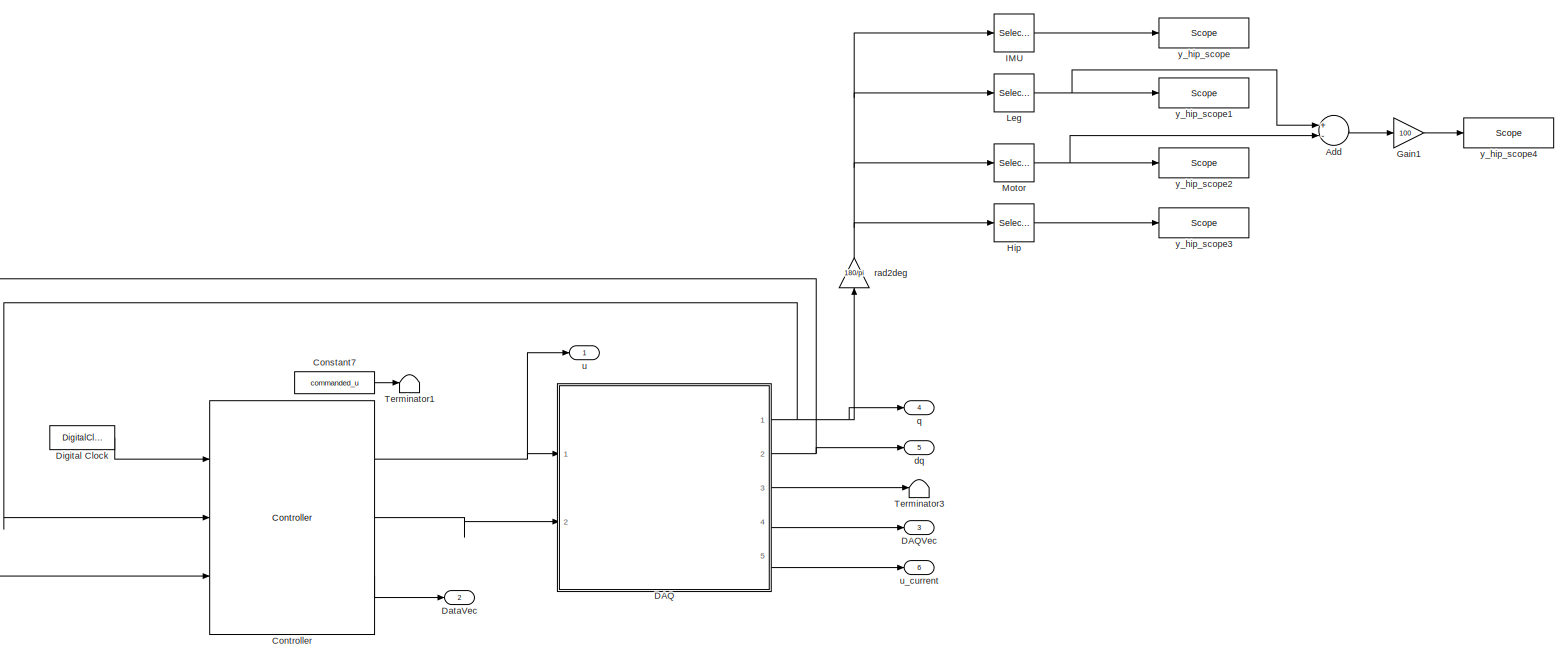
[diagram: root canvas - part 1/1, most of the canvas]
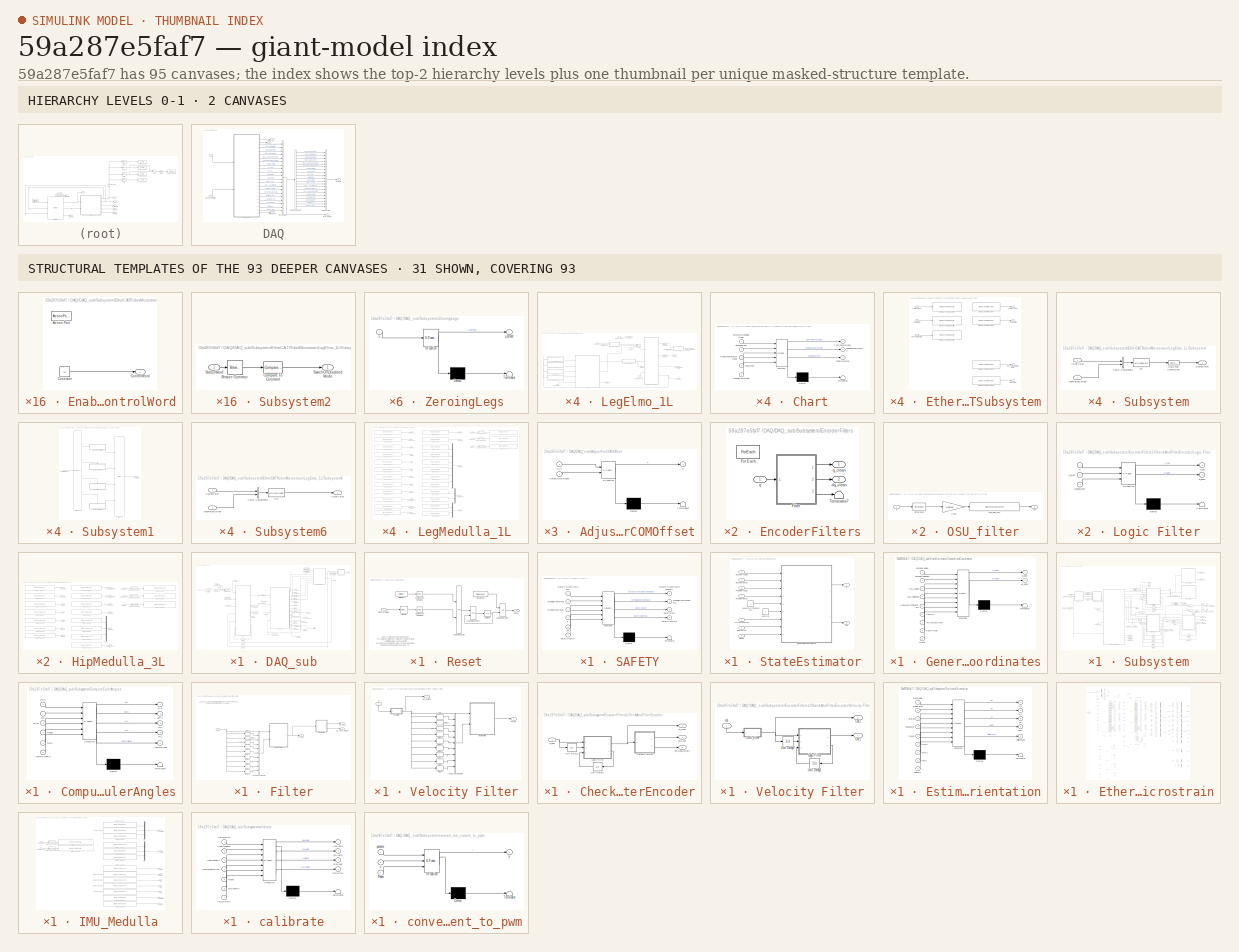
[diagram: thumbnail index - top-2 hierarchy levels (2 canvases) + 31 structural-template representatives of the remaining 93 canvases]
MODEL slx_59a287e5faf7
KIND model
CONFIG AbsTol = auto
CONFIG FixedStep = Ts
CONFIG MaxStep = auto
CONFIG MinStep = auto
CONFIG RelTol = 1e-3
CONFIG SampleTimeConstraint = Unconstrained
CONFIG Solver = ode4
CONFIG SolverMode = Auto
CONFIG SolverName = ode4
CONFIG StartTime = 0.0
CONFIG StopTime = Inf
BLOCK [Sum] Add
  InputSameDT = off
  Inputs = +-
  OutDataTypeStr = Inherit: Inherit via internal rule
  Ports = [2, 1]
  SaturateOnIntegerOverflow = off
BLOCK [Constant] Constant7
  Value = commanded_u
BLOCK [Reference] Controller  REF=ControllerLibrary/Controller
  Ports = [3, 3]
  SourceBlock = ControllerLibrary/Controller
  SourceType = SubSystem
BLOCK [SubSystem] DAQ
  Ports = [2, 5]
  RequestExecContextInheritance = off
  Variant = off
BLOCK [BusCreator] DAQ/Bus Creator1
  DisplayOption = bar
  InheritFromInputs = on
  Inputs = 'EncoderAngles','EncoderDerivs','MotorCurrentSafe','IMU_EulerAngles','IMU_EulerAnglesDerivs','MedullaCommandSafe','RotationMatrix','AbsTick','IncTick','ValidStates','SafetyState','IMU_Accel','IMU_AngularRate','EtherCATStatus','EncoderAnglesDirty','CurrentActual','FaultDetected','MedullaState','ErrorFlags','ElmoPosition'
  OutDataTypeStr = Bus: DAQ_bus
  Ports = [20, 1]
BLOCK [Outport] DAQ/DAQVec
  IconDisplay = Port number
  Port = 4
BLOCK [Outport] DAQ/DAQ_Output
  IconDisplay = Port number
  Port = 3
BLOCK [SubSystem] DAQ/DAQ_sub
  Ports = [2, 23]
  RequestExecContextInheritance = off
  Variant = off
BLOCK [Outport] DAQ/DAQ_sub/AbsTick
  IconDisplay = Port number
  Port = 10
BLOCK [SubSystem] DAQ/DAQ_sub/AdjustForCOMOffset
  ErrorFcn = Stateflow.Translate.translate
  PermitHierarchicalResolution = ExplicitOnly
  Ports = [2, 1]
  RequestExecContextInheritance = off
  SFBlockType = MATLAB Function
  TreatAsAtomicUnit = on
  Variant = off
BLOCK [Demux] DAQ/DAQ_sub/AdjustForCOMOffset/ Demux 
  Outputs = 1
  Ports = [1, 1]
BLOCK [S-Function] DAQ/DAQ_sub/AdjustForCOMOffset/ SFunction 
  EnableBusSupport = on
  FunctionName = sf_sfun
  PortCounts = [2 2]
  Ports = [2, 2]
  SFunctionDeploymentMode = off
  Tag = Stateflow S-Function Controller_Exp 31
BLOCK [Terminator] DAQ/DAQ_sub/AdjustForCOMOffset/ Terminator 
BLOCK [Inport] DAQ/DAQ_sub/AdjustForCOMOffset/TorsoCOMOffsets
  IconDisplay = Port number
  Port = 2
BLOCK [Outport] DAQ/DAQ_sub/AdjustForCOMOffset/q
  IconDisplay = Port number
BLOCK [Inport] DAQ/DAQ_sub/AdjustForCOMOffset/q_in
  IconDisplay = Port number
BLOCK [Constant] DAQ/DAQ_sub/Constant2
  Value = 0
BLOCK [Outport] DAQ/DAQ_sub/CurrentActual
  IconDisplay = Port number
  Port = 18
BLOCK [Constant] DAQ/DAQ_sub/CurrentSaturation
  Value = 50
BLOCK [Outport] DAQ/DAQ_sub/ElmoPosition
  IconDisplay = Port number
  Port = 22
BLOCK [Outport] DAQ/DAQ_sub/EncoderAnglesClean
  IconDisplay = Port number
  Port = 3
BLOCK [Outport] DAQ/DAQ_sub/EncoderAnglesDirty
  IconDisplay = Port number
  Port = 17
BLOCK [Outport] DAQ/DAQ_sub/EncoderDerivsClean
  IconDisplay = Port number
  Port = 4
BLOCK [Outport] DAQ/DAQ_sub/ErrorFlags
  IconDisplay = Port number
  Port = 21
BLOCK [Outport] DAQ/DAQ_sub/EtherCATStatus
  IconDisplay = Port number
  Port = 16
BLOCK [Outport] DAQ/DAQ_sub/EulerAnglesClean
  IconDisplay = Port number
  Port = 6
BLOCK [Outport] DAQ/DAQ_sub/EulerDerivsClean
  IconDisplay = Port number
  Port = 7
BLOCK [Outport] DAQ/DAQ_sub/FaultDetected
  IconDisplay = Port number
  Port = 19
BLOCK [Gain] DAQ/DAQ_sub/Gain
  Gain = -1
  OutDataTypeStr = Inherit: Inherit via internal rule
  ParamDataTypeStr = Inherit: Inherit via internal rule
  SaturateOnIntegerOverflow = off
BLOCK [Constant] DAQ/DAQ_sub/GearOffset
  Value = GearOffsets
BLOCK [Constant] DAQ/DAQ_sub/IMUTorsoOffset
  Value = IMUTorsoOffsets
BLOCK [Outport] DAQ/DAQ_sub/IMU_Accel
  IconDisplay = Port number
  Port = 14
BLOCK [Outport] DAQ/DAQ_sub/IMU_AngularRate
  IconDisplay = Port number
  Port = 15
BLOCK [Outport] DAQ/DAQ_sub/IncTick
  IconDisplay = Port number
  Port = 11
BLOCK [Constant] DAQ/DAQ_sub/MedullaCommand
  Value = MedullaCommand
BLOCK [Outport] DAQ/DAQ_sub/MedullaCommandSafe
  IconDisplay = Port number
  Port = 8
BLOCK [Outport] DAQ/DAQ_sub/MedullaState
  IconDisplay = Port number
  Port = 20
BLOCK [Outport] DAQ/DAQ_sub/MotorCurrentSafe
  IconDisplay = Port number
  Port = 5
BLOCK [Inport] DAQ/DAQ_sub/RequestSoftStop
  IconDisplay = Port number
  Port = 2
BLOCK [SubSystem] DAQ/DAQ_sub/Reset
  Ports = [1, 1]
  RequestExecContextInheritance = off
  Variant = off
BLOCK [Reference] DAQ/DAQ_sub/Reset/Compare To Constant  REF=simulink/Logic and Bit
Operations/Compare
To Constant
  Ports = [1, 1]
  SourceBlock = simulink/Logic and Bit\nOperations/Compare\nTo Constant
  SourceType = Compare To Constant
BLOCK [Reference] DAQ/DAQ_sub/Reset/Compare To Constant1  REF=simulink/Logic and Bit
Operations/Compare
To Constant
  Ports = [1, 1]
  SourceBlock = simulink/Logic and Bit\nOperations/Compare\nTo Constant
  SourceType = Compare To Constant
BLOCK [DigitalClock] DAQ/DAQ_sub/Reset/Digital Clock
  SampleTime = Ts
BLOCK [Inport] DAQ/DAQ_sub/Reset/EtherCATStatus
  IconDisplay = Port number
BLOCK [Logic] DAQ/DAQ_sub/Reset/Logical Operator
  Operator = OR
  OutDataTypeStr = boolean
  Ports = [2, 1]
BLOCK [Logic] DAQ/DAQ_sub/Reset/Logical Operator1
  Operator = OR
  OutDataTypeStr = boolean
  Ports = [2, 1]
BLOCK [Logic] DAQ/DAQ_sub/Reset/Logical Operator2
  OutDataTypeStr = boolean
  Ports = [2, 1]
BLOCK [Outport] DAQ/DAQ_sub/Reset/Reset
  IconDisplay = Port number
BLOCK [Constant] DAQ/DAQ_sub/Reset/ResetDAQ1
  OutDataTypeStr = boolean
  Value = ResetDAQ
BLOCK [Selector] DAQ/DAQ_sub/Reset/Selector
  IndexMode = Zero-based
  IndexOptions = Index vector (dialog)
  Indices = 1
  InputPortWidth = 6
  OutputSizes = 1
  Ports = [1, 1]
BLOCK [UnitDelay] DAQ/DAQ_sub/Reset/Unit Delay
  InitialCondition = 1
  InputProcessing = Elements as channels (sample based)
  SampleTime = -1
BLOCK [Outport] DAQ/DAQ_sub/RotationMatrix
  IconDisplay = Port number
  Port = 9
BLOCK [SubSystem] DAQ/DAQ_sub/SAFETY
  ErrorFcn = Stateflow.Translate.translate
  PermitHierarchicalResolution = ExplicitOnly
  Ports = [6, 4]
  RequestExecContextInheritance = off
  SFBlockType = MATLAB Function
  TreatAsAtomicUnit = on
  Variant = off
BLOCK [Demux] DAQ/DAQ_sub/SAFETY/ Demux 
  Outputs = 1
  Ports = [1, 1]
BLOCK [S-Function] DAQ/DAQ_sub/SAFETY/ SFunction 
  EnableBusSupport = on
  FunctionName = sf_sfun
  PortCounts = [6 5]
  Ports = [6, 5]
  SFunctionDeploymentMode = off
  Tag = Stateflow S-Function Controller_Exp 60
BLOCK [Terminator] DAQ/DAQ_sub/SAFETY/ Terminator 
BLOCK [Inport] DAQ/DAQ_sub/SAFETY/MedullaCommand
  IconDisplay = Port number
  Port = 2
BLOCK [Outport] DAQ/DAQ_sub/SAFETY/MedullaCommandSafe
  IconDisplay = Port number
  Port = 2
BLOCK [Inport] DAQ/DAQ_sub/SAFETY/MotorCurrentCommand
  IconDisplay = Port number
BLOCK [Outport] DAQ/DAQ_sub/SAFETY/MotorCurrentCommandSafe
  IconDisplay = Port number
BLOCK [Inport] DAQ/DAQ_sub/SAFETY/RequestSoftStop
  IconDisplay = Port number
  Port = 3
BLOCK [Inport] DAQ/DAQ_sub/SAFETY/SafetyCountIn
  IconDisplay = Port number
  Port = 6
BLOCK [Outport] DAQ/DAQ_sub/SAFETY/SafetyCountOut
  IconDisplay = Port number
  Port = 4
BLOCK [Outport] DAQ/DAQ_sub/SAFETY/SafetyState
  IconDisplay = Port number
  Port = 3
BLOCK [Inport] DAQ/DAQ_sub/SAFETY/dq
  IconDisplay = Port number
  Port = 5
BLOCK [Inport] DAQ/DAQ_sub/SAFETY/q
  IconDisplay = Port number
  Port = 4
BLOCK [Outport] DAQ/DAQ_sub/SafetyState
  IconDisplay = Port number
  Port = 13
BLOCK [Reference] DAQ/DAQ_sub/Saturation  REF=ControllerLibrary/Controller/Saturation
  Ports = [1, 1]
  SourceBlock = ControllerLibrary/Controller/Saturation
  SourceType = SubSystem
BLOCK [Reference] DAQ/DAQ_sub/Saturation Dynamic  REF=simulink/Discontinuities/Saturation
Dynamic
  Ports = [3, 1]
  SourceBlock = simulink/Discontinuities/Saturation\nDynamic
  SourceType = Saturation Dynamic
BLOCK [SubSystem] DAQ/DAQ_sub/StateEstimator
  Ports = [7, 2]
  RequestExecContextInheritance = off
  Variant = off
BLOCK [Inport] DAQ/DAQ_sub/StateEstimator/EncoderAngles
  IconDisplay = Port number
  Port = 3
BLOCK [Inport] DAQ/DAQ_sub/StateEstimator/EncoderDerivs
  IconDisplay = Port number
  Port = 4
BLOCK [Inport] DAQ/DAQ_sub/StateEstimator/GearOffset
  IconDisplay = Port number
  Port = 2
BLOCK [SubSystem] DAQ/DAQ_sub/StateEstimator/GeneralizedCoordinates
  ErrorFcn = Stateflow.Translate.translate
  PermitHierarchicalResolution = ExplicitOnly
  Ports = [9, 2]
  RequestExecContextInheritance = off
  SFBlockType = MATLAB Function
  TreatAsAtomicUnit = on
  Variant = off
BLOCK [Demux] DAQ/DAQ_sub/StateEstimator/GeneralizedCoordinates/ Demux 
  Outputs = 1
  Ports = [1, 1]
BLOCK [S-Function] DAQ/DAQ_sub/StateEstimator/GeneralizedCoordinates/ SFunction 
  EnableBusSupport = on
  FunctionName = sf_sfun
  PortCounts = [9 3]
  Ports = [9, 3]
  SFunctionDeploymentMode = off
  Tag = Stateflow S-Function Controller_Exp 59
BLOCK [Terminator] DAQ/DAQ_sub/StateEstimator/GeneralizedCoordinates/ Terminator 
BLOCK [Inport] DAQ/DAQ_sub/StateEstimator/GeneralizedCoordinates/EncoderAngles
  IconDisplay = Port number
BLOCK [Inport] DAQ/DAQ_sub/StateEstimator/GeneralizedCoordinates/EncoderVelocities
  IconDisplay = Port number
  Port = 2
BLOCK [Inport] DAQ/DAQ_sub/StateEstimator/GeneralizedCoordinates/GearOffset
  IconDisplay = Port number
  Port = 8
BLOCK [Inport] DAQ/DAQ_sub/StateEstimator/GeneralizedCoordinates/IMUAngles
  IconDisplay = Port number
  Port = 3
BLOCK [Inport] DAQ/DAQ_sub/StateEstimator/GeneralizedCoordinates/IMUTorsoOffset
  IconDisplay = Port number
  Port = 7
BLOCK [Inport] DAQ/DAQ_sub/StateEstimator/GeneralizedCoordinates/IMUVelocities
  IconDisplay = Port number
  Port = 4
BLOCK [Inport] DAQ/DAQ_sub/StateEstimator/GeneralizedCoordinates/Reset
  IconDisplay = Port number
  Port = 9
BLOCK [Inport] DAQ/DAQ_sub/StateEstimator/GeneralizedCoordinates/UseIMU
  IconDisplay = Port number
  Port = 6
BLOCK [Inport] DAQ/DAQ_sub/StateEstimator/GeneralizedCoordinates/UseMotorIncEncoders
  IconDisplay = Port number
  Port = 5
BLOCK [Outport] DAQ/DAQ_sub/StateEstimator/GeneralizedCoordinates/dq_clean
  IconDisplay = Port number
  Port = 2
BLOCK [Outport] DAQ/DAQ_sub/StateEstimator/GeneralizedCoordinates/q_clean
  IconDisplay = Port number
BLOCK [Inport] DAQ/DAQ_sub/StateEstimator/IMUTorsoOffset
  IconDisplay = Port number
BLOCK [Inport] DAQ/DAQ_sub/StateEstimator/KVHEulerAngles
  IconDisplay = Port number
  Port = 6
BLOCK [Inport] DAQ/DAQ_sub/StateEstimator/KVHEulerDerivs
  IconDisplay = Port number
  Port = 7
BLOCK [Inport] DAQ/DAQ_sub/StateEstimator/Reset
  IconDisplay = Port number
  Port = 5
BLOCK [Constant] DAQ/DAQ_sub/StateEstimator/UseIMU
BLOCK [Constant] DAQ/DAQ_sub/StateEstimator/UseMotorIncEncoders
  Value = 0
BLOCK [Outport] DAQ/DAQ_sub/StateEstimator/dq
  IconDisplay = Port number
  Port = 2
BLOCK [Outport] DAQ/DAQ_sub/StateEstimator/q
  IconDisplay = Port number
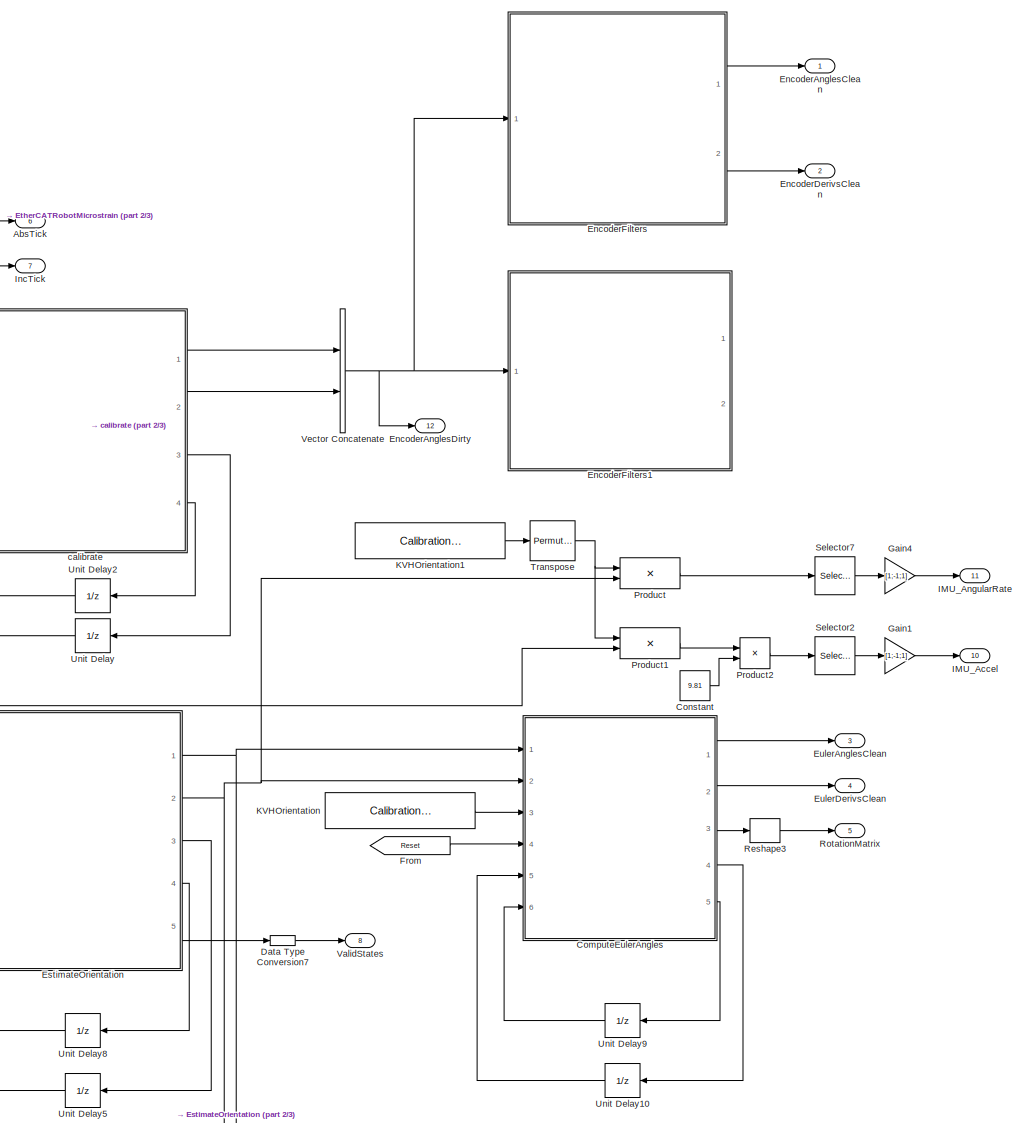
[diagram: DAQ/DAQ_sub/Subsystem - part 1/3, right side, full height]
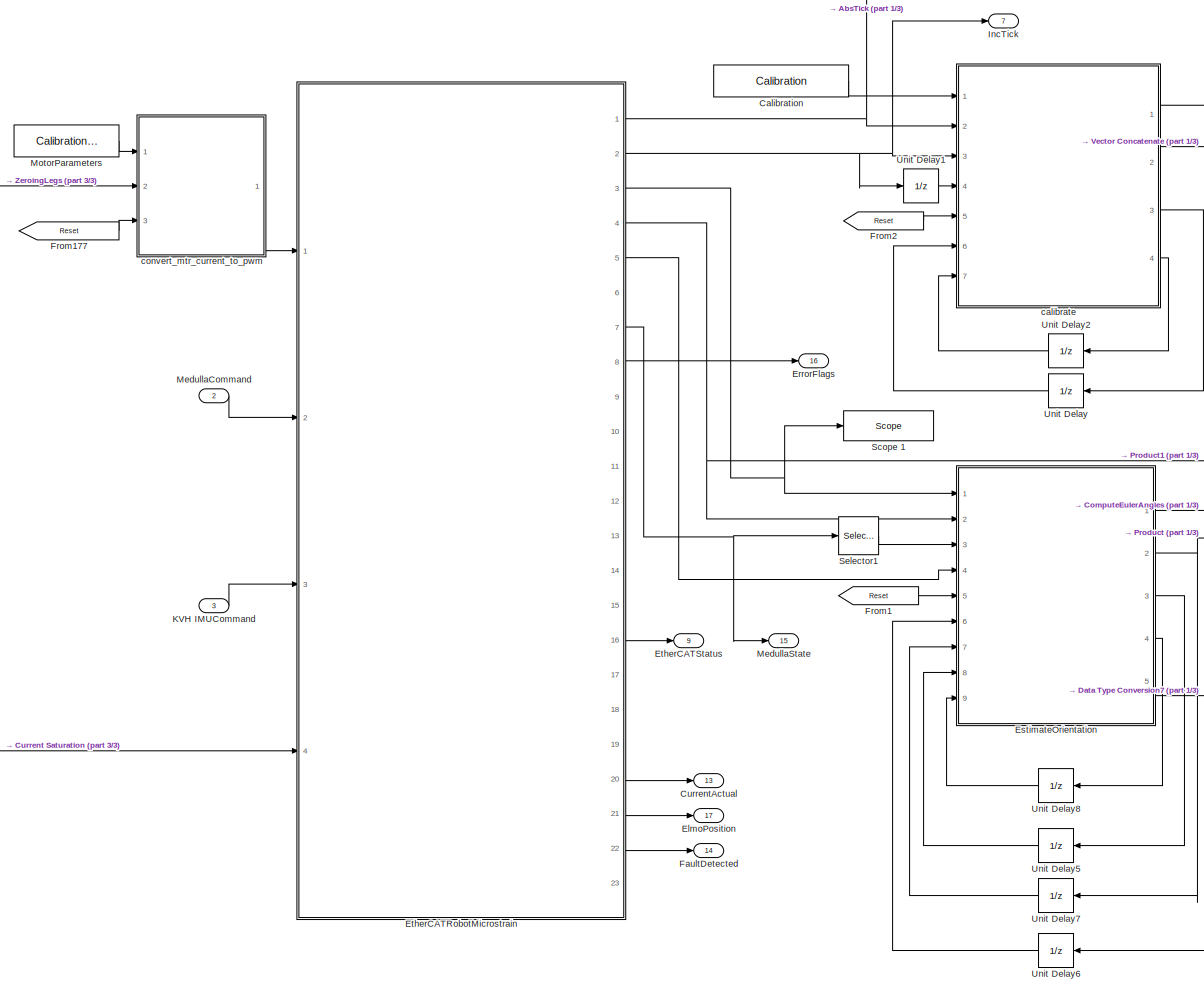
[diagram: DAQ/DAQ_sub/Subsystem - part 2/3, center side, full height]
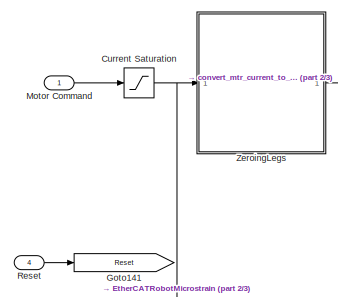
[diagram: DAQ/DAQ_sub/Subsystem - part 3/3, middle left region]
BLOCK [SubSystem] DAQ/DAQ_sub/Subsystem
  Ports = [4, 17]
  RequestExecContextInheritance = off
  Variant = off
BLOCK [Outport] DAQ/DAQ_sub/Subsystem/AbsTick
  IconDisplay = Port number
  Port = 6
BLOCK [Constant] DAQ/DAQ_sub/Subsystem/Calibration
  OutDataTypeStr = Bus: RobotCalibrationBus
  Value = Calibration
BLOCK [SubSystem] DAQ/DAQ_sub/Subsystem/ComputeEulerAngles
  ErrorFcn = Stateflow.Translate.translate
  PermitHierarchicalResolution = ExplicitOnly
  Ports = [6, 5]
  RequestExecContextInheritance = off
  SFBlockType = MATLAB Function
  TreatAsAtomicUnit = on
  Variant = off
BLOCK [Demux] DAQ/DAQ_sub/Subsystem/ComputeEulerAngles/ Demux 
  Outputs = 1
  Ports = [1, 1]
BLOCK [S-Function] DAQ/DAQ_sub/Subsystem/ComputeEulerAngles/ SFunction 
  EnableBusSupport = on
  FunctionName = sf_sfun
  PortCounts = [6 6]
  Ports = [6, 6]
  SFunctionDeploymentMode = off
  Tag = Stateflow S-Function Controller_Exp 2
BLOCK [Terminator] DAQ/DAQ_sub/Subsystem/ComputeEulerAngles/ Terminator 
BLOCK [Outport] DAQ/DAQ_sub/Subsystem/ComputeEulerAngles/R0
  IconDisplay = Port number
  Port = 4
BLOCK [Inport] DAQ/DAQ_sub/Subsystem/ComputeEulerAngles/R0In
  IconDisplay = Port number
  Port = 5
BLOCK [Inport] DAQ/DAQ_sub/Subsystem/ComputeEulerAngles/RCal
  IconDisplay = Port number
  Port = 3
BLOCK [Inport] DAQ/DAQ_sub/Subsystem/ComputeEulerAngles/Reset
  IconDisplay = Port number
  Port = 4
BLOCK [Outport] DAQ/DAQ_sub/Subsystem/ComputeEulerAngles/Rk
  IconDisplay = Port number
  Port = 3
BLOCK [Inport] DAQ/DAQ_sub/Subsystem/ComputeEulerAngles/RkIn
  IconDisplay = Port number
BLOCK [Outport] DAQ/DAQ_sub/Subsystem/ComputeEulerAngles/YawRollover
  IconDisplay = Port number
  Port = 5
BLOCK [Inport] DAQ/DAQ_sub/Subsystem/ComputeEulerAngles/YawRolloverIn
  IconDisplay = Port number
  Port = 6
BLOCK [Outport] DAQ/DAQ_sub/Subsystem/ComputeEulerAngles/ZYX
  IconDisplay = Port number
BLOCK [Outport] DAQ/DAQ_sub/Subsystem/ComputeEulerAngles/dZYX
  IconDisplay = Port number
  Port = 2
BLOCK [Inport] DAQ/DAQ_sub/Subsystem/ComputeEulerAngles/wk
  IconDisplay = Port number
  Port = 2
BLOCK [Constant] DAQ/DAQ_sub/Subsystem/Constant
  Value = 9.81
BLOCK [Saturate] DAQ/DAQ_sub/Subsystem/Current Saturation
  InputPortMap = u0
  LowerLimit = -50
  Ports = [1, 1]
  UpperLimit = 50
BLOCK [Outport] DAQ/DAQ_sub/Subsystem/CurrentActual
  IconDisplay = Port number
  Port = 13
BLOCK [DataTypeConversion] DAQ/DAQ_sub/Subsystem/Data Type Conversion7
  OutDataTypeStr = double
  RndMeth = Floor
  SaturateOnIntegerOverflow = off
BLOCK [Outport] DAQ/DAQ_sub/Subsystem/ElmoPosition
  IconDisplay = Port number
  Port = 17
BLOCK [Outport] DAQ/DAQ_sub/Subsystem/EncoderAnglesClean
  IconDisplay = Port number
BLOCK [Outport] DAQ/DAQ_sub/Subsystem/EncoderAnglesDirty
  IconDisplay = Port number
  Port = 12
BLOCK [Outport] DAQ/DAQ_sub/Subsystem/EncoderDerivsClean
  IconDisplay = Port number
  Port = 2
BLOCK [SubSystem] DAQ/DAQ_sub/Subsystem/EncoderFilters
  Ports = [1, 2]
  RequestExecContextInheritance = off
  Variant = off
BLOCK [SubSystem] DAQ/DAQ_sub/Subsystem/EncoderFilters/Filter
  Ports = [1, 3]
  RequestExecContextInheritance = off
  Variant = off
BLOCK [Delay] DAQ/DAQ_sub/Subsystem/EncoderFilters/Filter/Delay
  DelayLength = 1
  InputPortMap = u0
  Ports = [1, 1]
BLOCK [Delay] DAQ/DAQ_sub/Subsystem/EncoderFilters/Filter/Delay1
  InputPortMap = u0
  Ports = [1, 1]
BLOCK [Delay] DAQ/DAQ_sub/Subsystem/EncoderFilters/Filter/Delay2
  DelayLength = 3
  InputPortMap = u0
  Ports = [1, 1]
BLOCK [Delay] DAQ/DAQ_sub/Subsystem/EncoderFilters/Filter/Delay3
  DelayLength = 4
  InputPortMap = u0
  Ports = [1, 1]
BLOCK [Delay] DAQ/DAQ_sub/Subsystem/EncoderFilters/Filter/Delay4
  DelayLength = 5
  InputPortMap = u0
  Ports = [1, 1]
BLOCK [Delay] DAQ/DAQ_sub/Subsystem/EncoderFilters/Filter/Delay5
  DelayLength = 6
  InputPortMap = u0
  Ports = [1, 1]
BLOCK [Delay] DAQ/DAQ_sub/Subsystem/EncoderFilters/Filter/Delay6
  DelayLength = 7
  InputPortMap = u0
  Ports = [1, 1]
BLOCK [Delay] DAQ/DAQ_sub/Subsystem/EncoderFilters/Filter/Delay7
  DelayLength = 8
  InputPortMap = u0
  Ports = [1, 1]
BLOCK [Delay] DAQ/DAQ_sub/Subsystem/EncoderFilters/Filter/Delay8
  DelayLength = 9
  InputPortMap = u0
  Ports = [1, 1]
BLOCK [SubSystem] DAQ/DAQ_sub/Subsystem/EncoderFilters/Filter/Median Filter
  ErrorFcn = Stateflow.Translate.translate
  PermitHierarchicalResolution = ExplicitOnly
  Ports = [2, 1]
  RequestExecContextInheritance = off
  SFBlockType = MATLAB Function
  TreatAsAtomicUnit = on
  Variant = off
BLOCK [Demux] DAQ/DAQ_sub/Subsystem/EncoderFilters/Filter/Median Filter/ Demux 
  Outputs = 1
  Ports = [1, 1]
BLOCK [S-Function] DAQ/DAQ_sub/Subsystem/EncoderFilters/Filter/Median Filter/ SFunction 
  EnableBusSupport = on
  FunctionName = sf_sfun
  PortCounts = [2 2]
  Ports = [2, 2]
  SFunctionDeploymentMode = off
  Tag = Stateflow S-Function Controller_Exp 6
BLOCK [Terminator] DAQ/DAQ_sub/Subsystem/EncoderFilters/Filter/Median Filter/ Terminator 
BLOCK [Inport] DAQ/DAQ_sub/Subsystem/EncoderFilters/Filter/Median Filter/q
  IconDisplay = Port number
BLOCK [Outport] DAQ/DAQ_sub/Subsystem/EncoderFilters/Filter/Median Filter/q_out
  IconDisplay = Port number
BLOCK [Inport] DAQ/DAQ_sub/Subsystem/EncoderFilters/Filter/Median Filter/q_past
  IconDisplay = Port number
  Port = 2
BLOCK [Concatenate] DAQ/DAQ_sub/Subsystem/EncoderFilters/Filter/Vector Concatenate
  ConcatenateDimension = 2
  Mode = Multidimensional array
  NumInputs = 9
  Ports = [9, 1]
BLOCK [SubSystem] DAQ/DAQ_sub/Subsystem/EncoderFilters/Filter/Velocity Filter
  Ports = [1, 2]
  RequestExecContextInheritance = off
  Variant = off
BLOCK [Delay] DAQ/DAQ_sub/Subsystem/EncoderFilters/Filter/Velocity Filter/Delay
  DelayLength = 1
  InputPortMap = u0
  Ports = [1, 1]
BLOCK [Delay] DAQ/DAQ_sub/Subsystem/EncoderFilters/Filter/Velocity Filter/Delay1
  InputPortMap = u0
  Ports = [1, 1]
BLOCK [Delay] DAQ/DAQ_sub/Subsystem/EncoderFilters/Filter/Velocity Filter/Delay2
  DelayLength = 3
  InputPortMap = u0
  Ports = [1, 1]
BLOCK [Delay] DAQ/DAQ_sub/Subsystem/EncoderFilters/Filter/Velocity Filter/Delay3
  DelayLength = 4
  InputPortMap = u0
  Ports = [1, 1]
BLOCK [Delay] DAQ/DAQ_sub/Subsystem/EncoderFilters/Filter/Velocity Filter/Delay4
  DelayLength = 5
  InputPortMap = u0
  Ports = [1, 1]
BLOCK [Delay] DAQ/DAQ_sub/Subsystem/EncoderFilters/Filter/Velocity Filter/Delay5
  DelayLength = 6
  InputPortMap = u0
  Ports = [1, 1]
BLOCK [Delay] DAQ/DAQ_sub/Subsystem/EncoderFilters/Filter/Velocity Filter/Delay6
  DelayLength = 7
  InputPortMap = u0
  Ports = [1, 1]
BLOCK [Delay] DAQ/DAQ_sub/Subsystem/EncoderFilters/Filter/Velocity Filter/Delay7
  DelayLength = 8
  InputPortMap = u0
  Ports = [1, 1]
BLOCK [Delay] DAQ/DAQ_sub/Subsystem/EncoderFilters/Filter/Velocity Filter/Delay8
  DelayLength = 9
  InputPortMap = u0
  Ports = [1, 1]
BLOCK [SubSystem] DAQ/DAQ_sub/Subsystem/EncoderFilters/Filter/Velocity Filter/Median Filter
  ErrorFcn = Stateflow.Translate.translate
  PermitHierarchicalResolution = ExplicitOnly
  Ports = [2, 1]
  RequestExecContextInheritance = off
  SFBlockType = MATLAB Function
  TreatAsAtomicUnit = on
  Variant = off
BLOCK [Demux] DAQ/DAQ_sub/Subsystem/EncoderFilters/Filter/Velocity Filter/Median Filter/ Demux 
  Outputs = 1
  Ports = [1, 1]
BLOCK [S-Function] DAQ/DAQ_sub/Subsystem/EncoderFilters/Filter/Velocity Filter/Median Filter/ SFunction 
  EnableBusSupport = on
  FunctionName = sf_sfun
  PortCounts = [2 2]
  Ports = [2, 2]
  SFunctionDeploymentMode = off
  Tag = Stateflow S-Function Controller_Exp 9
BLOCK [Terminator] DAQ/DAQ_sub/Subsystem/EncoderFilters/Filter/Velocity Filter/Median Filter/ Terminator 
BLOCK [Inport] DAQ/DAQ_sub/Subsystem/EncoderFilters/Filter/Velocity Filter/Median Filter/dq
  IconDisplay = Port number
BLOCK [Outport] DAQ/DAQ_sub/Subsystem/EncoderFilters/Filter/Velocity Filter/Median Filter/dq_out
  IconDisplay = Port number
BLOCK [Inport] DAQ/DAQ_sub/Subsystem/EncoderFilters/Filter/Velocity Filter/Median Filter/dq_past
  IconDisplay = Port number
  Port = 2
BLOCK [SubSystem] DAQ/DAQ_sub/Subsystem/EncoderFilters/Filter/Velocity Filter/OSU_filter
  Ports = [1, 1]
  RequestExecContextInheritance = off
  Variant = off
BLOCK [Gain] DAQ/DAQ_sub/Subsystem/EncoderFilters/Filter/Velocity Filter/OSU_filter/Gain1
  Gain = 1/sample_time
  OutDataTypeStr = Inherit: Inherit via internal rule
  ParamDataTypeStr = Inherit: Inherit via internal rule
  SaturateOnIntegerOverflow = off
BLOCK [Reference] DAQ/DAQ_sub/Subsystem/EncoderFilters/Filter/Velocity Filter/OSU_filter/difference  REF=simulink/Discrete/Difference
  Ports = [1, 1]
  SourceBlock = simulink/Discrete/Difference
  SourceType = Difference
BLOCK [Outport] DAQ/DAQ_sub/Subsystem/EncoderFilters/Filter/Velocity Filter/OSU_filter/dq
  IconDisplay = Port number
BLOCK [Inport] DAQ/DAQ_sub/Subsystem/EncoderFilters/Filter/Velocity Filter/OSU_filter/q
  IconDisplay = Port number
BLOCK [DiscreteTransferFcn] DAQ/DAQ_sub/Subsystem/EncoderFilters/Filter/Velocity Filter/OSU_filter/two_pole_filter
  Denominator = [1 B1_lpf_velocity B2_lpf_velocity]
  InputPortMap = u0
  Numerator = [A_lpf_velocity 0 0]
  Ports = [1, 1]
  SampleTime = sample_time
BLOCK [Concatenate] DAQ/DAQ_sub/Subsystem/EncoderFilters/Filter/Velocity Filter/Vector Concatenate
  ConcatenateDimension = 2
  Mode = Multidimensional array
  NumInputs = 9
  Ports = [9, 1]
BLOCK [Outport] DAQ/DAQ_sub/Subsystem/EncoderFilters/Filter/Velocity Filter/dq_original
  IconDisplay = Port number
  Port = 2
BLOCK [Outport] DAQ/DAQ_sub/Subsystem/EncoderFilters/Filter/Velocity Filter/dq_out
  IconDisplay = Port number
BLOCK [Inport] DAQ/DAQ_sub/Subsystem/EncoderFilters/Filter/Velocity Filter/q
  IconDisplay = Port number
BLOCK [Outport] DAQ/DAQ_sub/Subsystem/EncoderFilters/Filter/dq_clean
  IconDisplay = Port number
  Port = 2
BLOCK [Outport] DAQ/DAQ_sub/Subsystem/EncoderFilters/Filter/dq_clean_original
  IconDisplay = Port number
  Port = 3
BLOCK [Inport] DAQ/DAQ_sub/Subsystem/EncoderFilters/Filter/q
  IconDisplay = Port number
BLOCK [Outport] DAQ/DAQ_sub/Subsystem/EncoderFilters/Filter/q_clean
  IconDisplay = Port number
BLOCK [ForEach] DAQ/DAQ_sub/Subsystem/EncoderFilters/For Each
  DisableCoverage = on
  IndexMode = One-based
  Ports = []
BLOCK [Terminator] DAQ/DAQ_sub/Subsystem/EncoderFilters/Terminator7
BLOCK [Outport] DAQ/DAQ_sub/Subsystem/EncoderFilters/dq_clean
  ConcatenationDimension = 1
  IconDisplay = Port number
  Port = 2
BLOCK [Inport] DAQ/DAQ_sub/Subsystem/EncoderFilters/q
  IconDisplay = Port number
  Partition = on
  PartitionDimension = 1
  PartitionWidth = 1
BLOCK [Outport] DAQ/DAQ_sub/Subsystem/EncoderFilters/q_clean
  ConcatenationDimension = 1
  IconDisplay = Port number
BLOCK [SubSystem] DAQ/DAQ_sub/Subsystem/EncoderFilters1
  Commented = on
  Ports = [1, 2]
  RequestExecContextInheritance = off
  TreatAsAtomicUnit = on
  Variant = off
BLOCK [SubSystem] DAQ/DAQ_sub/Subsystem/EncoderFilters1/CheckAndFilterEncoder
  Ports = [1, 3]
  RequestExecContextInheritance = off
  Variant = off
BLOCK [SubSystem] DAQ/DAQ_sub/Subsystem/EncoderFilters1/CheckAndFilterEncoder/Logic Filter
  ErrorFcn = Stateflow.Translate.translate
  PermitHierarchicalResolution = ExplicitOnly
  Ports = [3, 2]
  RequestExecContextInheritance = off
  SFBlockType = MATLAB Function
  TreatAsAtomicUnit = on
  Variant = off
BLOCK [Demux] DAQ/DAQ_sub/Subsystem/EncoderFilters1/CheckAndFilterEncoder/Logic Filter/ Demux 
  Outputs = 1
  Ports = [1, 1]
BLOCK [S-Function] DAQ/DAQ_sub/Subsystem/EncoderFilters1/CheckAndFilterEncoder/Logic Filter/ SFunction 
  EnableBusSupport = on
  FunctionName = sf_sfun
  PortCounts = [3 3]
  Ports = [3, 3]
  SFunctionDeploymentMode = off
  Tag = Stateflow S-Function Controller_Exp 3
BLOCK [Terminator] DAQ/DAQ_sub/Subsystem/EncoderFilters1/CheckAndFilterEncoder/Logic Filter/ Terminator 
BLOCK [Inport] DAQ/DAQ_sub/Subsystem/EncoderFilters1/CheckAndFilterEncoder/Logic Filter/q
  IconDisplay = Port number
BLOCK [Outport] DAQ/DAQ_sub/Subsystem/EncoderFilters1/CheckAndFilterEncoder/Logic Filter/q_good
  IconDisplay = Port number
  Port = 2
BLOCK [Inport] DAQ/DAQ_sub/Subsystem/EncoderFilters1/CheckAndFilterEncoder/Logic Filter/q_good_prev
  IconDisplay = Port number
  Port = 3
BLOCK [Outport] DAQ/DAQ_sub/Subsystem/EncoderFilters1/CheckAndFilterEncoder/Logic Filter/q_out
  IconDisplay = Port number
BLOCK [Inport] DAQ/DAQ_sub/Subsystem/EncoderFilters1/CheckAndFilterEncoder/Logic Filter/q_prev
  IconDisplay = Port number
  Port = 2
BLOCK [UnitDelay] DAQ/DAQ_sub/Subsystem/EncoderFilters1/CheckAndFilterEncoder/Unit Delay1
  InputProcessing = Elements as channels (sample based)
  SampleTime = -1
BLOCK [UnitDelay] DAQ/DAQ_sub/Subsystem/EncoderFilters1/CheckAndFilterEncoder/Unit Delay2
  InputProcessing = Elements as channels (sample based)
  SampleTime = -1
BLOCK [SubSystem] DAQ/DAQ_sub/Subsystem/EncoderFilters1/CheckAndFilterEncoder/Velocity Filter
  Ports = [1, 2]
  RequestExecContextInheritance = off
  Variant = off
BLOCK [Inport] DAQ/DAQ_sub/Subsystem/EncoderFilters1/CheckAndFilterEncoder/Velocity Filter/In1
  IconDisplay = Port number
BLOCK [SubSystem] DAQ/DAQ_sub/Subsystem/EncoderFilters1/CheckAndFilterEncoder/Velocity Filter/Logic Filter
  ErrorFcn = Stateflow.Translate.translate
  PermitHierarchicalResolution = ExplicitOnly
  Ports = [3, 2]
  RequestExecContextInheritance = off
  SFBlockType = MATLAB Function
  TreatAsAtomicUnit = on
  Variant = off
BLOCK [Demux] DAQ/DAQ_sub/Subsystem/EncoderFilters1/CheckAndFilterEncoder/Velocity Filter/Logic Filter/ Demux 
  Outputs = 1
  Ports = [1, 1]
BLOCK [S-Function] DAQ/DAQ_sub/Subsystem/EncoderFilters1/CheckAndFilterEncoder/Velocity Filter/Logic Filter/ SFunction 
  EnableBusSupport = on
  FunctionName = sf_sfun
  PortCounts = [3 3]
  Ports = [3, 3]
  SFunctionDeploymentMode = off
  Tag = Stateflow S-Function Controller_Exp 4
BLOCK [Terminator] DAQ/DAQ_sub/Subsystem/EncoderFilters1/CheckAndFilterEncoder/Velocity Filter/Logic Filter/ Terminator 
BLOCK [Inport] DAQ/DAQ_sub/Subsystem/EncoderFilters1/CheckAndFilterEncoder/Velocity Filter/Logic Filter/dq
  IconDisplay = Port number
BLOCK [Outport] DAQ/DAQ_sub/Subsystem/EncoderFilters1/CheckAndFilterEncoder/Velocity Filter/Logic Filter/dq_good
  IconDisplay = Port number
  Port = 2
BLOCK [Inport] DAQ/DAQ_sub/Subsystem/EncoderFilters1/CheckAndFilterEncoder/Velocity Filter/Logic Filter/dq_good_prev
  IconDisplay = Port number
  Port = 3
BLOCK [Outport] DAQ/DAQ_sub/Subsystem/EncoderFilters1/CheckAndFilterEncoder/Velocity Filter/Logic Filter/dq_out
  IconDisplay = Port number
BLOCK [Inport] DAQ/DAQ_sub/Subsystem/EncoderFilters1/CheckAndFilterEncoder/Velocity Filter/Logic Filter/dq_prev
  IconDisplay = Port number
  Port = 2
BLOCK [SubSystem] DAQ/DAQ_sub/Subsystem/EncoderFilters1/CheckAndFilterEncoder/Velocity Filter/OSU_filter
  Ports = [1, 1]
  RequestExecContextInheritance = off
  Variant = off
BLOCK [Gain] DAQ/DAQ_sub/Subsystem/EncoderFilters1/CheckAndFilterEncoder/Velocity Filter/OSU_filter/Gain1
  Gain = 1/sample_time
  OutDataTypeStr = Inherit: Inherit via internal rule
  ParamDataTypeStr = Inherit: Inherit via internal rule
  SaturateOnIntegerOverflow = off
BLOCK [Reference] DAQ/DAQ_sub/Subsystem/EncoderFilters1/CheckAndFilterEncoder/Velocity Filter/OSU_filter/difference  REF=simulink/Discrete/Difference
  Ports = [1, 1]
  SourceBlock = simulink/Discrete/Difference
  SourceType = Difference
BLOCK [Outport] DAQ/DAQ_sub/Subsystem/EncoderFilters1/CheckAndFilterEncoder/Velocity Filter/OSU_filter/dq
  IconDisplay = Port number
BLOCK [Inport] DAQ/DAQ_sub/Subsystem/EncoderFilters1/CheckAndFilterEncoder/Velocity Filter/OSU_filter/q
  IconDisplay = Port number
BLOCK [DiscreteTransferFcn] DAQ/DAQ_sub/Subsystem/EncoderFilters1/CheckAndFilterEncoder/Velocity Filter/OSU_filter/two_pole_filter
  Denominator = [1 B1_lpf_velocity B2_lpf_velocity]
  InputPortMap = u0
  Numerator = [A_lpf_velocity 0 0]
  Ports = [1, 1]
  SampleTime = sample_time
BLOCK [Outport] DAQ/DAQ_sub/Subsystem/EncoderFilters1/CheckAndFilterEncoder/Velocity Filter/Out1
  IconDisplay = Port number
BLOCK [Outport] DAQ/DAQ_sub/Subsystem/EncoderFilters1/CheckAndFilterEncoder/Velocity Filter/Out2
  IconDisplay = Port number
  Port = 2
BLOCK [UnitDelay] DAQ/DAQ_sub/Subsystem/EncoderFilters1/CheckAndFilterEncoder/Velocity Filter/Unit Delay1
  InputProcessing = Elements as channels (sample based)
  SampleTime = -1
BLOCK [UnitDelay] DAQ/DAQ_sub/Subsystem/EncoderFilters1/CheckAndFilterEncoder/Velocity Filter/Unit Delay2
  InputProcessing = Elements as channels (sample based)
  SampleTime = -1
BLOCK [Outport] DAQ/DAQ_sub/Subsystem/EncoderFilters1/CheckAndFilterEncoder/dq_clean
  IconDisplay = Port number
  Port = 2
BLOCK [Outport] DAQ/DAQ_sub/Subsystem/EncoderFilters1/CheckAndFilterEncoder/dq_clean_origin
  IconDisplay = Port number
  Port = 3
BLOCK [Outport] DAQ/DAQ_sub/Subsystem/EncoderFilters1/CheckAndFilterEncoder/q_clean
  IconDisplay = Port number
BLOCK [Inport] DAQ/DAQ_sub/Subsystem/EncoderFilters1/CheckAndFilterEncoder/q_daq
  IconDisplay = Port number
BLOCK [ForEach] DAQ/DAQ_sub/Subsystem/EncoderFilters1/For Each
  DisableCoverage = on
  IndexMode = One-based
  Ports = []
BLOCK [Terminator] DAQ/DAQ_sub/Subsystem/EncoderFilters1/Terminator7
BLOCK [Outport] DAQ/DAQ_sub/Subsystem/EncoderFilters1/dq_clean
  ConcatenationDimension = 1
  IconDisplay = Port number
  Port = 2
BLOCK [Inport] DAQ/DAQ_sub/Subsystem/EncoderFilters1/q
  IconDisplay = Port number
  Partition = on
  PartitionDimension = 1
  PartitionWidth = 1
BLOCK [Outport] DAQ/DAQ_sub/Subsystem/EncoderFilters1/q_clean
  ConcatenationDimension = 1
  IconDisplay = Port number
BLOCK [Outport] DAQ/DAQ_sub/Subsystem/ErrorFlags
  IconDisplay = Port number
  Port = 16
BLOCK [SubSystem] DAQ/DAQ_sub/Subsystem/EstimateOrientation
  ErrorFcn = Stateflow.Translate.translate
  PermitHierarchicalResolution = ExplicitOnly
  Ports = [9, 5]
  RequestExecContextInheritance = off
  SFBlockType = MATLAB Function
  TreatAsAtomicUnit = on
  Variant = off
BLOCK [Demux] DAQ/DAQ_sub/Subsystem/EstimateOrientation/ Demux 
  Outputs = 1
  Ports = [1, 1]
BLOCK [S-Function] DAQ/DAQ_sub/Subsystem/EstimateOrientation/ SFunction 
  EnableBusSupport = on
  FunctionName = sf_sfun
  PortCounts = [9 6]
  Ports = [9, 6]
  SFunctionDeploymentMode = off
  Tag = Stateflow S-Function Controller_Exp 1
BLOCK [Terminator] DAQ/DAQ_sub/Subsystem/EstimateOrientation/ Terminator 
BLOCK [Inport] DAQ/DAQ_sub/Subsystem/EstimateOrientation/Acceleration
  IconDisplay = Port number
  Port = 2
BLOCK [Outport] DAQ/DAQ_sub/Subsystem/EstimateOrientation/Ak
  IconDisplay = Port number
  Port = 3
BLOCK [Inport] DAQ/DAQ_sub/Subsystem/EstimateOrientation/Akm1
  IconDisplay = Port number
  Port = 8
BLOCK [Inport] DAQ/DAQ_sub/Subsystem/EstimateOrientation/DeltaAngle
  IconDisplay = Port number
BLOCK [Inport] DAQ/DAQ_sub/Subsystem/EstimateOrientation/Reset
  IconDisplay = Port number
  Port = 5
BLOCK [Outport] DAQ/DAQ_sub/Subsystem/EstimateOrientation/Rk
  IconDisplay = Port number
BLOCK [Inport] DAQ/DAQ_sub/Subsystem/EstimateOrientation/Rkm1
  IconDisplay = Port number
  Port = 6
BLOCK [Outport] DAQ/DAQ_sub/Subsystem/EstimateOrientation/Seqk
  IconDisplay = Port number
  Port = 4
BLOCK [Inport] DAQ/DAQ_sub/Subsystem/EstimateOrientation/Seqkm1
  IconDisplay = Port number
  Port = 9
BLOCK [Inport] DAQ/DAQ_sub/Subsystem/EstimateOrientation/Sequence
  IconDisplay = Port number
  Port = 4
BLOCK [Inport] DAQ/DAQ_sub/Subsystem/EstimateOrientation/Status
  IconDisplay = Port number
  Port = 3
BLOCK [Outport] DAQ/DAQ_sub/Subsystem/EstimateOrientation/ValidStates
  IconDisplay = Port number
  Port = 5
BLOCK [Outport] DAQ/DAQ_sub/Subsystem/EstimateOrientation/wk
  IconDisplay = Port number
  Port = 2
BLOCK [Inport] DAQ/DAQ_sub/Subsystem/EstimateOrientation/wkm1
  IconDisplay = Port number
  Port = 7
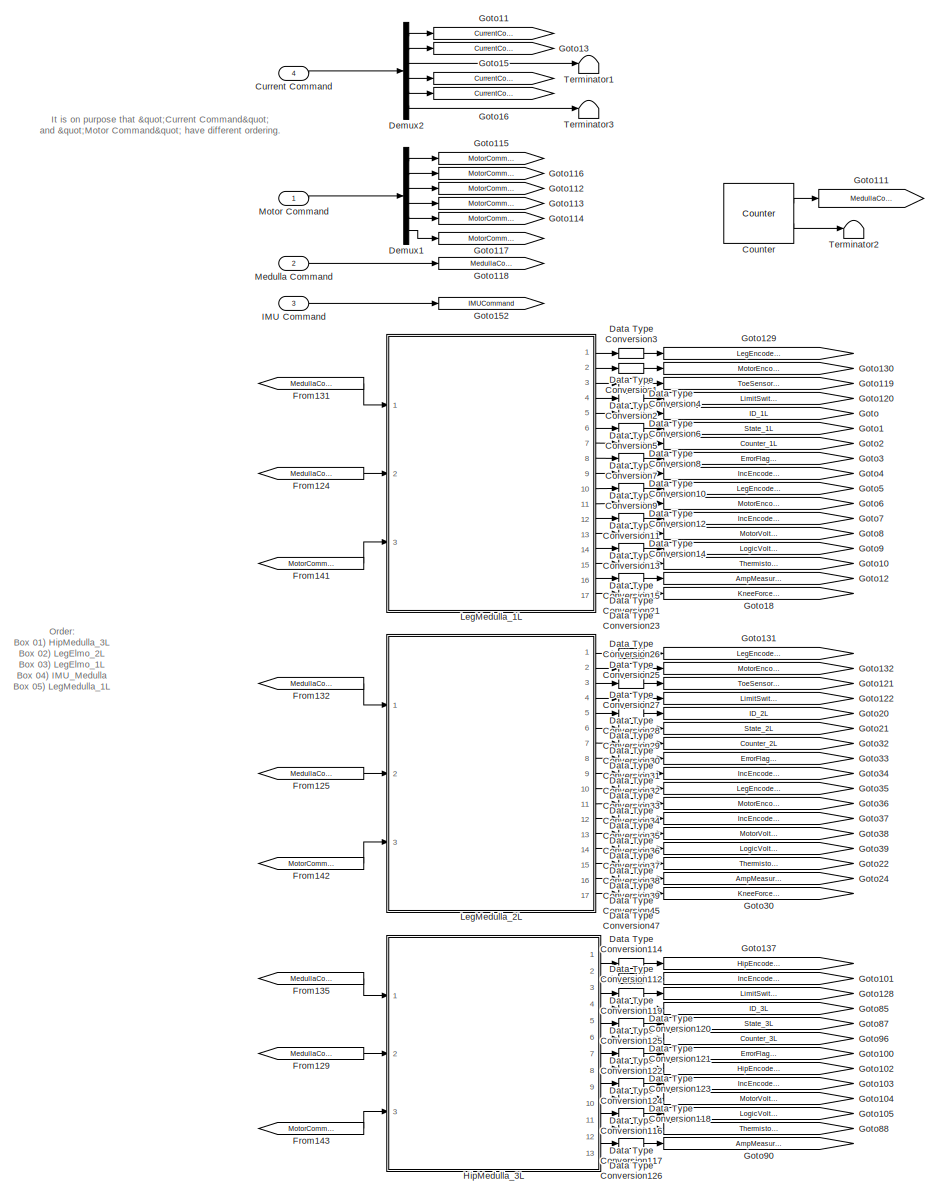
[diagram: DAQ/DAQ_sub/Subsystem/EtherCATRobotMicrostrain - part 1/5, top left region]
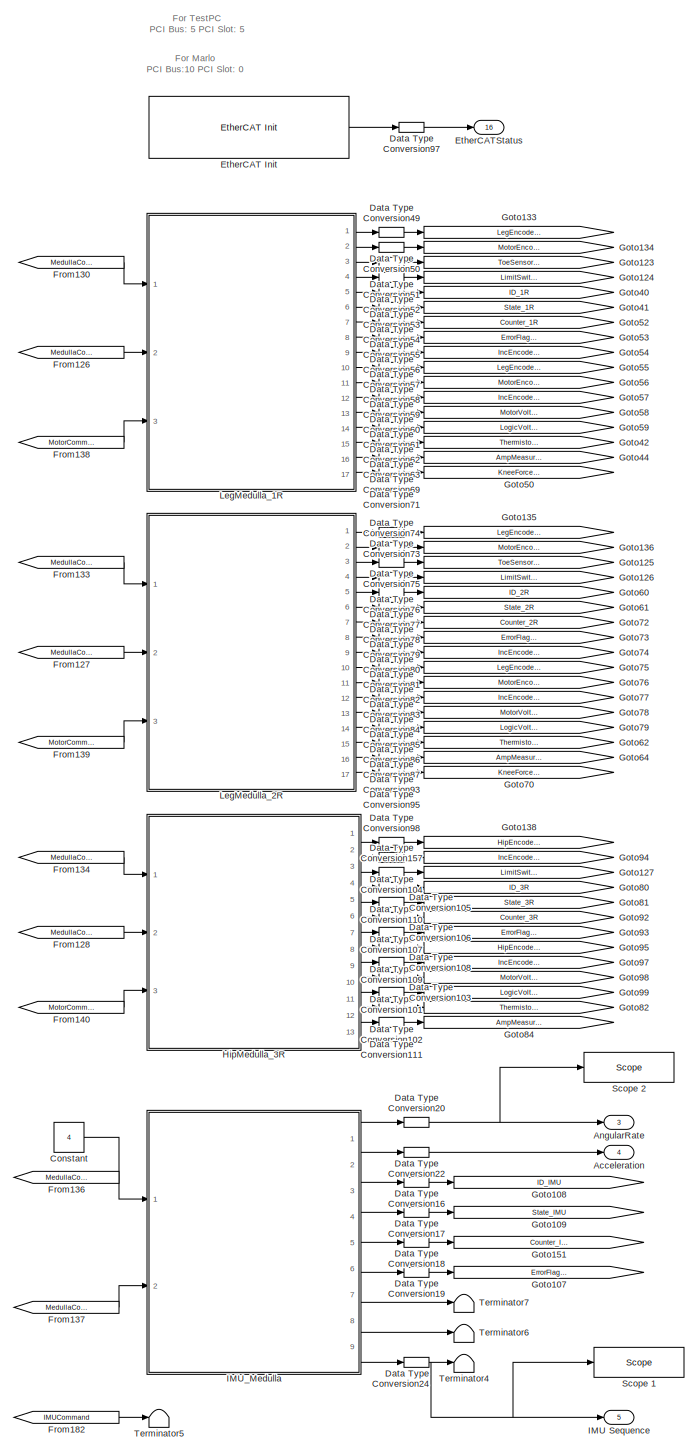
[diagram: DAQ/DAQ_sub/Subsystem/EtherCATRobotMicrostrain - part 2/5, central region]
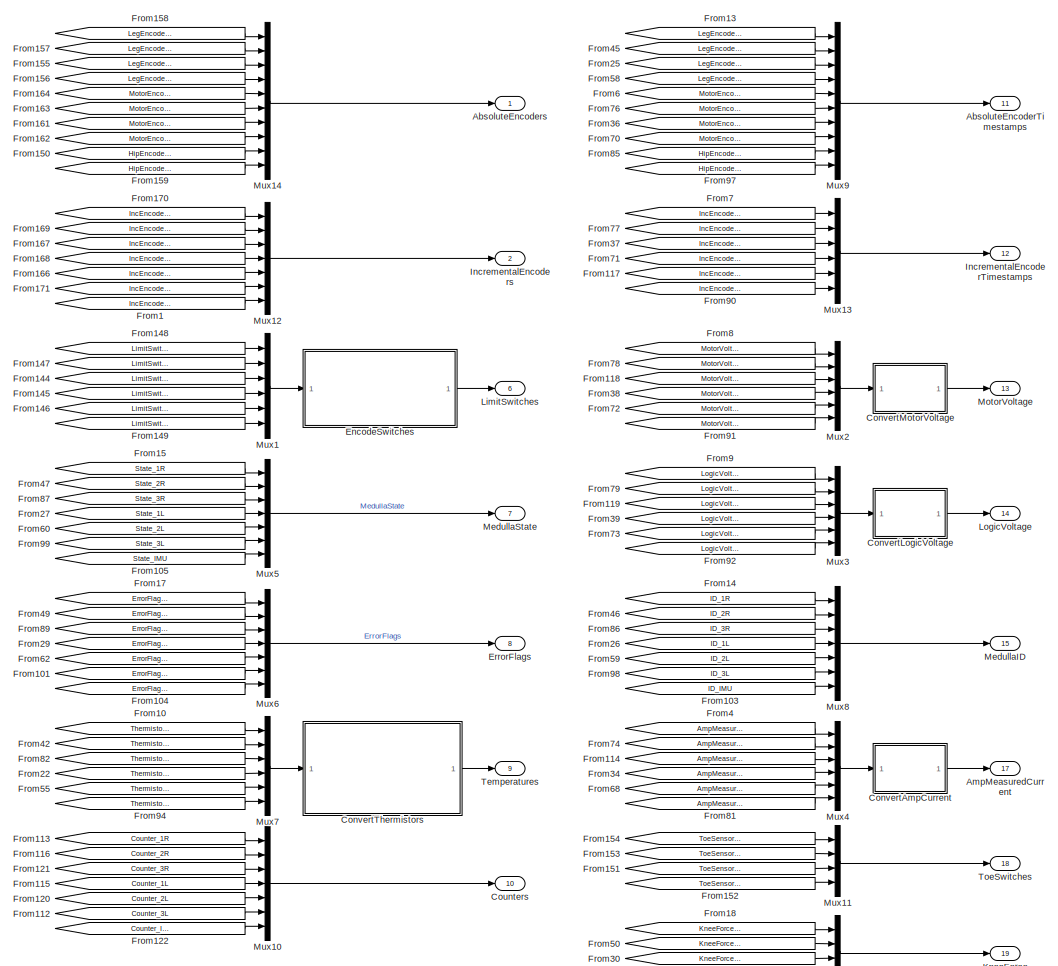
[diagram: DAQ/DAQ_sub/Subsystem/EtherCATRobotMicrostrain - part 3/5, middle right region]
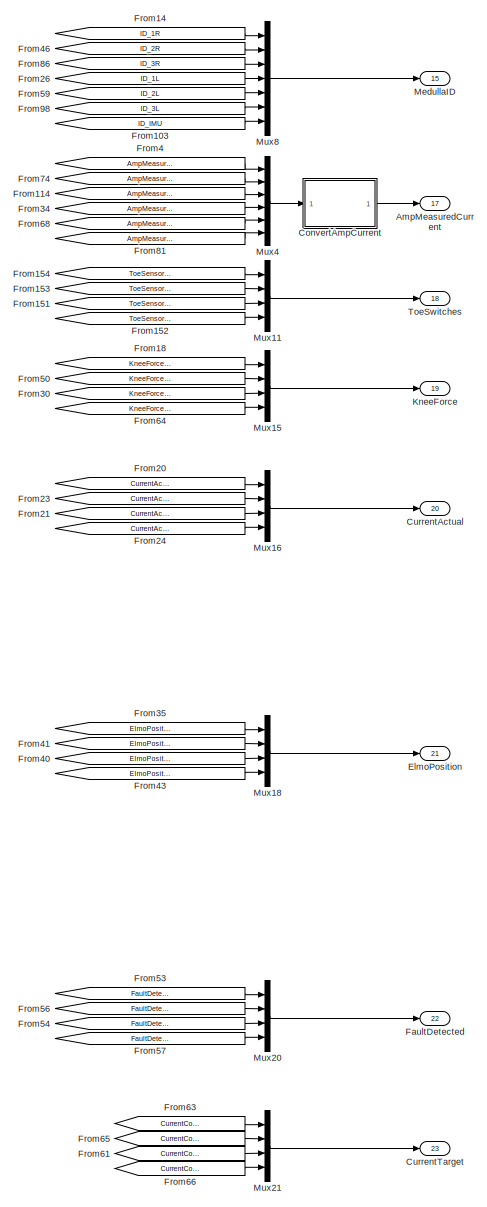
[diagram: DAQ/DAQ_sub/Subsystem/EtherCATRobotMicrostrain - part 4/5, middle right region]
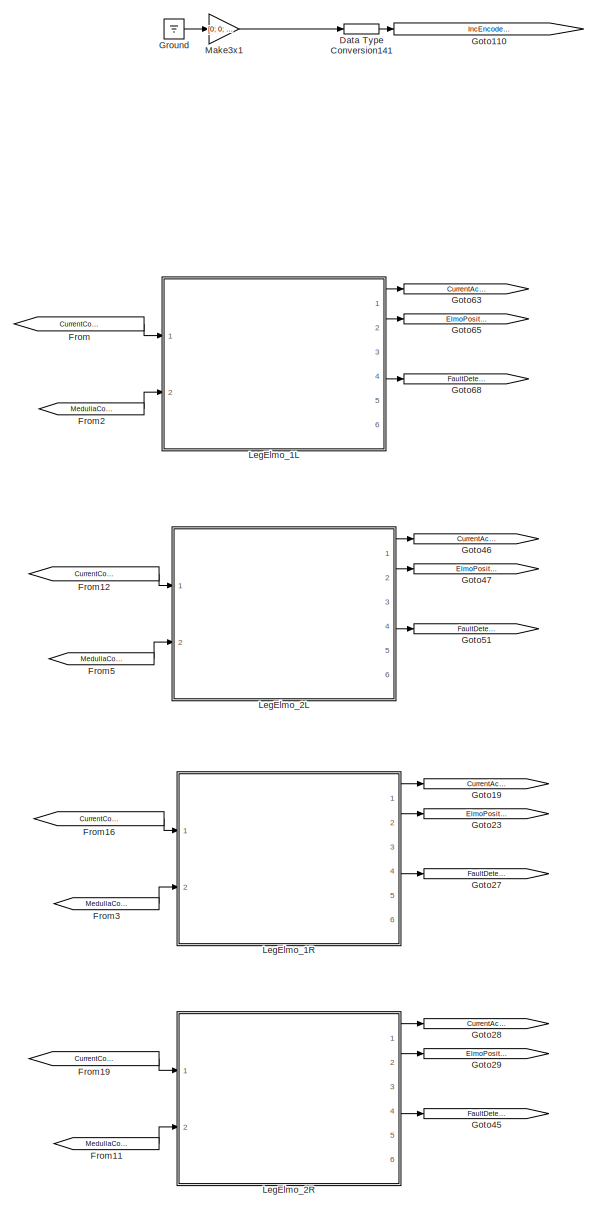
[diagram: DAQ/DAQ_sub/Subsystem/EtherCATRobotMicrostrain - part 5/5, bottom left region]
BLOCK [SubSystem] DAQ/DAQ_sub/Subsystem/EtherCATRobotMicrostrain
  Ports = [4, 23]
  RequestExecContextInheritance = off
  Variant = off
BLOCK [Outport] DAQ/DAQ_sub/Subsystem/EtherCATRobotMicrostrain/AbsoluteEncoderTimestamps
  IconDisplay = Port number
  Port = 11
BLOCK [Outport] DAQ/DAQ_sub/Subsystem/EtherCATRobotMicrostrain/AbsoluteEncoders
  IconDisplay = Port number
BLOCK [Outport] DAQ/DAQ_sub/Subsystem/EtherCATRobotMicrostrain/Acceleration
  IconDisplay = Port number
  Port = 4
BLOCK [Outport] DAQ/DAQ_sub/Subsystem/EtherCATRobotMicrostrain/AmpMeasuredCurrent
  IconDisplay = Port number
  Port = 17
BLOCK [Outport] DAQ/DAQ_sub/Subsystem/EtherCATRobotMicrostrain/AngularRate
  IconDisplay = Port number
  Port = 3
BLOCK [Constant] DAQ/DAQ_sub/Subsystem/EtherCATRobotMicrostrain/Constant
  Value = 4
BLOCK [SubSystem] DAQ/DAQ_sub/Subsystem/EtherCATRobotMicrostrain/ConvertAmpCurrent
  ErrorFcn = Stateflow.Translate.translate
  PermitHierarchicalResolution = ExplicitOnly
  Ports = [1, 1]
  RequestExecContextInheritance = off
  SFBlockType = MATLAB Function
  TreatAsAtomicUnit = on
  Variant = off
BLOCK [Demux] DAQ/DAQ_sub/Subsystem/EtherCATRobotMicrostrain/ConvertAmpCurrent/ Demux 
  Outputs = 1
  Ports = [1, 1]
BLOCK [S-Function] DAQ/DAQ_sub/Subsystem/EtherCATRobotMicrostrain/ConvertAmpCurrent/ SFunction 
  EnableBusSupport = on
  FunctionName = sf_sfun
  PortCounts = [1 2]
  Ports = [1, 2]
  SFunctionDeploymentMode = off
  Tag = Stateflow S-Function Controller_Exp 35
BLOCK [Terminator] DAQ/DAQ_sub/Subsystem/EtherCATRobotMicrostrain/ConvertAmpCurrent/ Terminator 
BLOCK [Inport] DAQ/DAQ_sub/Subsystem/EtherCATRobotMicrostrain/ConvertAmpCurrent/adc_value
  IconDisplay = Port number
BLOCK [Outport] DAQ/DAQ_sub/Subsystem/EtherCATRobotMicrostrain/ConvertAmpCurrent/measuredCurrent
  IconDisplay = Port number
BLOCK [SubSystem] DAQ/DAQ_sub/Subsystem/EtherCATRobotMicrostrain/ConvertLogicVoltage
  ErrorFcn = Stateflow.Translate.translate
  PermitHierarchicalResolution = ExplicitOnly
  Ports = [1, 1]
  RequestExecContextInheritance = off
  SFBlockType = MATLAB Function
  TreatAsAtomicUnit = on
  Variant = off
BLOCK [Demux] DAQ/DAQ_sub/Subsystem/EtherCATRobotMicrostrain/ConvertLogicVoltage/ Demux 
  Outputs = 1
  Ports = [1, 1]
BLOCK [S-Function] DAQ/DAQ_sub/Subsystem/EtherCATRobotMicrostrain/ConvertLogicVoltage/ SFunction 
  EnableBusSupport = on
  FunctionName = sf_sfun
  PortCounts = [1 2]
  Ports = [1, 2]
  SFunctionDeploymentMode = off
  Tag = Stateflow S-Function Controller_Exp 36
BLOCK [Terminator] DAQ/DAQ_sub/Subsystem/EtherCATRobotMicrostrain/ConvertLogicVoltage/ Terminator 
BLOCK [Inport] DAQ/DAQ_sub/Subsystem/EtherCATRobotMicrostrain/ConvertLogicVoltage/adc_value
  IconDisplay = Port number
BLOCK [Outport] DAQ/DAQ_sub/Subsystem/EtherCATRobotMicrostrain/ConvertLogicVoltage/logicVoltage
  IconDisplay = Port number
BLOCK [SubSystem] DAQ/DAQ_sub/Subsystem/EtherCATRobotMicrostrain/ConvertMotorVoltage
  ErrorFcn = Stateflow.Translate.translate
  PermitHierarchicalResolution = ExplicitOnly
  Ports = [1, 1]
  RequestExecContextInheritance = off
  SFBlockType = MATLAB Function
  TreatAsAtomicUnit = on
  Variant = off
BLOCK [Demux] DAQ/DAQ_sub/Subsystem/EtherCATRobotMicrostrain/ConvertMotorVoltage/ Demux 
  Outputs = 1
  Ports = [1, 1]
BLOCK [S-Function] DAQ/DAQ_sub/Subsystem/EtherCATRobotMicrostrain/ConvertMotorVoltage/ SFunction 
  EnableBusSupport = on
  FunctionName = sf_sfun
  PortCounts = [1 2]
  Ports = [1, 2]
  SFunctionDeploymentMode = off
  Tag = Stateflow S-Function Controller_Exp 37
BLOCK [Terminator] DAQ/DAQ_sub/Subsystem/EtherCATRobotMicrostrain/ConvertMotorVoltage/ Terminator 
BLOCK [Inport] DAQ/DAQ_sub/Subsystem/EtherCATRobotMicrostrain/ConvertMotorVoltage/adc_value
  IconDisplay = Port number
BLOCK [Outport] DAQ/DAQ_sub/Subsystem/EtherCATRobotMicrostrain/ConvertMotorVoltage/motorVoltage
  IconDisplay = Port number
BLOCK [SubSystem] DAQ/DAQ_sub/Subsystem/EtherCATRobotMicrostrain/ConvertThermistors
  ErrorFcn = Stateflow.Translate.translate
  PermitHierarchicalResolution = ExplicitOnly
  Ports = [1, 1]
  RequestExecContextInheritance = off
  SFBlockType = MATLAB Function
  TreatAsAtomicUnit = on
  Variant = off
BLOCK [Demux] DAQ/DAQ_sub/Subsystem/EtherCATRobotMicrostrain/ConvertThermistors/ Demux 
  Outputs = 1
  Ports = [1, 1]
BLOCK [S-Function] DAQ/DAQ_sub/Subsystem/EtherCATRobotMicrostrain/ConvertThermistors/ SFunction 
  EnableBusSupport = on
  FunctionName = sf_sfun
  PortCounts = [1 2]
  Ports = [1, 2]
  SFunctionDeploymentMode = off
  Tag = Stateflow S-Function Controller_Exp 38
BLOCK [Terminator] DAQ/DAQ_sub/Subsystem/EtherCATRobotMicrostrain/ConvertThermistors/ Terminator 
BLOCK [Outport] DAQ/DAQ_sub/Subsystem/EtherCATRobotMicrostrain/ConvertThermistors/Temperatures
  IconDisplay = Port number
BLOCK [Inport] DAQ/DAQ_sub/Subsystem/EtherCATRobotMicrostrain/ConvertThermistors/adc_value
  IconDisplay = Port number
BLOCK [Reference] DAQ/DAQ_sub/Subsystem/EtherCATRobotMicrostrain/Counter  REF=dspswit3/Counter
  Ports = [0, 2]
  SourceBlock = dspswit3/Counter
  SourceType = Counter
BLOCK [Outport] DAQ/DAQ_sub/Subsystem/EtherCATRobotMicrostrain/Counters
  IconDisplay = Port number
  Port = 10
BLOCK [Inport] DAQ/DAQ_sub/Subsystem/EtherCATRobotMicrostrain/Current Command
  IconDisplay = Port number
  Port = 4
BLOCK [Outport] DAQ/DAQ_sub/Subsystem/EtherCATRobotMicrostrain/CurrentActual
  IconDisplay = Port number
  Port = 20
BLOCK [Outport] DAQ/DAQ_sub/Subsystem/EtherCATRobotMicrostrain/CurrentTarget
  IconDisplay = Port number
  Port = 23
BLOCK [DataTypeConversion] DAQ/DAQ_sub/Subsystem/EtherCATRobotMicrostrain/Data Type Conversion1
  OutDataTypeStr = double
  RndMeth = Floor
  SaturateOnIntegerOverflow = off
BLOCK [DataTypeConversion] DAQ/DAQ_sub/Subsystem/EtherCATRobotMicrostrain/Data Type Conversion10
  OutDataTypeStr = double
  RndMeth = Floor
  SaturateOnIntegerOverflow = off
BLOCK [DataTypeConversion] DAQ/DAQ_sub/Subsystem/EtherCATRobotMicrostrain/Data Type Conversion101
  OutDataTypeStr = double
  RndMeth = Floor
  SaturateOnIntegerOverflow = off
BLOCK [DataTypeConversion] DAQ/DAQ_sub/Subsystem/EtherCATRobotMicrostrain/Data Type Conversion102
  OutDataTypeStr = double
  RndMeth = Floor
  SaturateOnIntegerOverflow = off
BLOCK [DataTypeConversion] DAQ/DAQ_sub/Subsystem/EtherCATRobotMicrostrain/Data Type Conversion103
  OutDataTypeStr = double
  RndMeth = Floor
  SaturateOnIntegerOverflow = off
BLOCK [DataTypeConversion] DAQ/DAQ_sub/Subsystem/EtherCATRobotMicrostrain/Data Type Conversion104
  OutDataTypeStr = double
  RndMeth = Floor
  SaturateOnIntegerOverflow = off
BLOCK [DataTypeConversion] DAQ/DAQ_sub/Subsystem/EtherCATRobotMicrostrain/Data Type Conversion105
  OutDataTypeStr = double
  RndMeth = Floor
  SaturateOnIntegerOverflow = off
BLOCK [DataTypeConversion] DAQ/DAQ_sub/Subsystem/EtherCATRobotMicrostrain/Data Type Conversion106
  OutDataTypeStr = double
  RndMeth = Floor
  SaturateOnIntegerOverflow = off
BLOCK [DataTypeConversion] DAQ/DAQ_sub/Subsystem/EtherCATRobotMicrostrain/Data Type Conversion107
  OutDataTypeStr = double
  RndMeth = Floor
  SaturateOnIntegerOverflow = off
BLOCK [DataTypeConversion] DAQ/DAQ_sub/Subsystem/EtherCATRobotMicrostrain/Data Type Conversion108
  OutDataTypeStr = double
  RndMeth = Floor
  SaturateOnIntegerOverflow = off
BLOCK [DataTypeConversion] DAQ/DAQ_sub/Subsystem/EtherCATRobotMicrostrain/Data Type Conversion109
  OutDataTypeStr = double
  RndMeth = Floor
  SaturateOnIntegerOverflow = off
BLOCK [DataTypeConversion] DAQ/DAQ_sub/Subsystem/EtherCATRobotMicrostrain/Data Type Conversion11
  OutDataTypeStr = double
  RndMeth = Floor
  SaturateOnIntegerOverflow = off
BLOCK [DataTypeConversion] DAQ/DAQ_sub/Subsystem/EtherCATRobotMicrostrain/Data Type Conversion110
  OutDataTypeStr = double
  RndMeth = Floor
  SaturateOnIntegerOverflow = off
BLOCK [DataTypeConversion] DAQ/DAQ_sub/Subsystem/EtherCATRobotMicrostrain/Data Type Conversion111
  OutDataTypeStr = double
  RndMeth = Floor
  SaturateOnIntegerOverflow = off
BLOCK [DataTypeConversion] DAQ/DAQ_sub/Subsystem/EtherCATRobotMicrostrain/Data Type Conversion112
  OutDataTypeStr = double
  RndMeth = Floor
  SaturateOnIntegerOverflow = off
BLOCK [DataTypeConversion] DAQ/DAQ_sub/Subsystem/EtherCATRobotMicrostrain/Data Type Conversion114
  OutDataTypeStr = double
  RndMeth = Floor
  SaturateOnIntegerOverflow = off
BLOCK [DataTypeConversion] DAQ/DAQ_sub/Subsystem/EtherCATRobotMicrostrain/Data Type Conversion116
  OutDataTypeStr = double
  RndMeth = Floor
  SaturateOnIntegerOverflow = off
BLOCK [DataTypeConversion] DAQ/DAQ_sub/Subsystem/EtherCATRobotMicrostrain/Data Type Conversion117
  OutDataTypeStr = double
  RndMeth = Floor
  SaturateOnIntegerOverflow = off
BLOCK [DataTypeConversion] DAQ/DAQ_sub/Subsystem/EtherCATRobotMicrostrain/Data Type Conversion118
  OutDataTypeStr = double
  RndMeth = Floor
  SaturateOnIntegerOverflow = off
BLOCK [DataTypeConversion] DAQ/DAQ_sub/Subsystem/EtherCATRobotMicrostrain/Data Type Conversion119
  OutDataTypeStr = double
  RndMeth = Floor
  SaturateOnIntegerOverflow = off
BLOCK [DataTypeConversion] DAQ/DAQ_sub/Subsystem/EtherCATRobotMicrostrain/Data Type Conversion12
  OutDataTypeStr = double
  RndMeth = Floor
  SaturateOnIntegerOverflow = off
BLOCK [DataTypeConversion] DAQ/DAQ_sub/Subsystem/EtherCATRobotMicrostrain/Data Type Conversion120
  OutDataTypeStr = double
  RndMeth = Floor
  SaturateOnIntegerOverflow = off
BLOCK [DataTypeConversion] DAQ/DAQ_sub/Subsystem/EtherCATRobotMicrostrain/Data Type Conversion121
  OutDataTypeStr = double
  RndMeth = Floor
  SaturateOnIntegerOverflow = off
BLOCK [DataTypeConversion] DAQ/DAQ_sub/Subsystem/EtherCATRobotMicrostrain/Data Type Conversion122
  OutDataTypeStr = double
  RndMeth = Floor
  SaturateOnIntegerOverflow = off
BLOCK [DataTypeConversion] DAQ/DAQ_sub/Subsystem/EtherCATRobotMicrostrain/Data Type Conversion123
  OutDataTypeStr = double
  RndMeth = Floor
  SaturateOnIntegerOverflow = off
BLOCK [DataTypeConversion] DAQ/DAQ_sub/Subsystem/EtherCATRobotMicrostrain/Data Type Conversion124
  OutDataTypeStr = double
  RndMeth = Floor
  SaturateOnIntegerOverflow = off
BLOCK [DataTypeConversion] DAQ/DAQ_sub/Subsystem/EtherCATRobotMicrostrain/Data Type Conversion125
  OutDataTypeStr = double
  RndMeth = Floor
  SaturateOnIntegerOverflow = off
BLOCK [DataTypeConversion] DAQ/DAQ_sub/Subsystem/EtherCATRobotMicrostrain/Data Type Conversion126
  OutDataTypeStr = double
  RndMeth = Floor
  SaturateOnIntegerOverflow = off
BLOCK [DataTypeConversion] DAQ/DAQ_sub/Subsystem/EtherCATRobotMicrostrain/Data Type Conversion13
  OutDataTypeStr = double
  RndMeth = Floor
  SaturateOnIntegerOverflow = off
BLOCK [DataTypeConversion] DAQ/DAQ_sub/Subsystem/EtherCATRobotMicrostrain/Data Type Conversion14
  OutDataTypeStr = double
  RndMeth = Floor
  SaturateOnIntegerOverflow = off
BLOCK [DataTypeConversion] DAQ/DAQ_sub/Subsystem/EtherCATRobotMicrostrain/Data Type Conversion141
  OutDataTypeStr = double
  RndMeth = Floor
  SaturateOnIntegerOverflow = off
BLOCK [DataTypeConversion] DAQ/DAQ_sub/Subsystem/EtherCATRobotMicrostrain/Data Type Conversion15
  OutDataTypeStr = double
  RndMeth = Floor
  SaturateOnIntegerOverflow = off
BLOCK [DataTypeConversion] DAQ/DAQ_sub/Subsystem/EtherCATRobotMicrostrain/Data Type Conversion157
  OutDataTypeStr = double
  RndMeth = Floor
  SaturateOnIntegerOverflow = off
BLOCK [DataTypeConversion] DAQ/DAQ_sub/Subsystem/EtherCATRobotMicrostrain/Data Type Conversion16
  OutDataTypeStr = double
  RndMeth = Floor
  SaturateOnIntegerOverflow = off
BLOCK [DataTypeConversion] DAQ/DAQ_sub/Subsystem/EtherCATRobotMicrostrain/Data Type Conversion17
  OutDataTypeStr = double
  RndMeth = Floor
  SaturateOnIntegerOverflow = off
BLOCK [DataTypeConversion] DAQ/DAQ_sub/Subsystem/EtherCATRobotMicrostrain/Data Type Conversion18
  OutDataTypeStr = double
  RndMeth = Floor
  SaturateOnIntegerOverflow = off
BLOCK [DataTypeConversion] DAQ/DAQ_sub/Subsystem/EtherCATRobotMicrostrain/Data Type Conversion19
  OutDataTypeStr = double
  RndMeth = Floor
  SaturateOnIntegerOverflow = off
BLOCK [DataTypeConversion] DAQ/DAQ_sub/Subsystem/EtherCATRobotMicrostrain/Data Type Conversion2
  OutDataTypeStr = double
  RndMeth = Floor
  SaturateOnIntegerOverflow = off
BLOCK [DataTypeConversion] DAQ/DAQ_sub/Subsystem/EtherCATRobotMicrostrain/Data Type Conversion20
  OutDataTypeStr = double
  RndMeth = Floor
  SaturateOnIntegerOverflow = off
BLOCK [DataTypeConversion] DAQ/DAQ_sub/Subsystem/EtherCATRobotMicrostrain/Data Type Conversion21
  OutDataTypeStr = double
  RndMeth = Floor
  SaturateOnIntegerOverflow = off
BLOCK [DataTypeConversion] DAQ/DAQ_sub/Subsystem/EtherCATRobotMicrostrain/Data Type Conversion22
  OutDataTypeStr = double
  RndMeth = Floor
  SaturateOnIntegerOverflow = off
BLOCK [DataTypeConversion] DAQ/DAQ_sub/Subsystem/EtherCATRobotMicrostrain/Data Type Conversion23
  OutDataTypeStr = double
  RndMeth = Floor
  SaturateOnIntegerOverflow = off
BLOCK [DataTypeConversion] DAQ/DAQ_sub/Subsystem/EtherCATRobotMicrostrain/Data Type Conversion24
  OutDataTypeStr = double
  RndMeth = Floor
  SaturateOnIntegerOverflow = off
BLOCK [DataTypeConversion] DAQ/DAQ_sub/Subsystem/EtherCATRobotMicrostrain/Data Type Conversion25
  OutDataTypeStr = double
  RndMeth = Floor
  SaturateOnIntegerOverflow = off
BLOCK [DataTypeConversion] DAQ/DAQ_sub/Subsystem/EtherCATRobotMicrostrain/Data Type Conversion26
  OutDataTypeStr = double
  RndMeth = Floor
  SaturateOnIntegerOverflow = off
BLOCK [DataTypeConversion] DAQ/DAQ_sub/Subsystem/EtherCATRobotMicrostrain/Data Type Conversion27
  OutDataTypeStr = double
  RndMeth = Floor
  SaturateOnIntegerOverflow = off
BLOCK [DataTypeConversion] DAQ/DAQ_sub/Subsystem/EtherCATRobotMicrostrain/Data Type Conversion28
  OutDataTypeStr = double
  RndMeth = Floor
  SaturateOnIntegerOverflow = off
BLOCK [DataTypeConversion] DAQ/DAQ_sub/Subsystem/EtherCATRobotMicrostrain/Data Type Conversion29
  OutDataTypeStr = double
  RndMeth = Floor
  SaturateOnIntegerOverflow = off
BLOCK [DataTypeConversion] DAQ/DAQ_sub/Subsystem/EtherCATRobotMicrostrain/Data Type Conversion3
  OutDataTypeStr = double
  RndMeth = Floor
  SaturateOnIntegerOverflow = off
BLOCK [DataTypeConversion] DAQ/DAQ_sub/Subsystem/EtherCATRobotMicrostrain/Data Type Conversion30
  OutDataTypeStr = double
  RndMeth = Floor
  SaturateOnIntegerOverflow = off
BLOCK [DataTypeConversion] DAQ/DAQ_sub/Subsystem/EtherCATRobotMicrostrain/Data Type Conversion31
  OutDataTypeStr = double
  RndMeth = Floor
  SaturateOnIntegerOverflow = off
BLOCK [DataTypeConversion] DAQ/DAQ_sub/Subsystem/EtherCATRobotMicrostrain/Data Type Conversion32
  OutDataTypeStr = double
  RndMeth = Floor
  SaturateOnIntegerOverflow = off
BLOCK [DataTypeConversion] DAQ/DAQ_sub/Subsystem/EtherCATRobotMicrostrain/Data Type Conversion33
  OutDataTypeStr = double
  RndMeth = Floor
  SaturateOnIntegerOverflow = off
BLOCK [DataTypeConversion] DAQ/DAQ_sub/Subsystem/EtherCATRobotMicrostrain/Data Type Conversion34
  OutDataTypeStr = double
  RndMeth = Floor
  SaturateOnIntegerOverflow = off
BLOCK [DataTypeConversion] DAQ/DAQ_sub/Subsystem/EtherCATRobotMicrostrain/Data Type Conversion35
  OutDataTypeStr = double
  RndMeth = Floor
  SaturateOnIntegerOverflow = off
BLOCK [DataTypeConversion] DAQ/DAQ_sub/Subsystem/EtherCATRobotMicrostrain/Data Type Conversion36
  OutDataTypeStr = double
  RndMeth = Floor
  SaturateOnIntegerOverflow = off
BLOCK [DataTypeConversion] DAQ/DAQ_sub/Subsystem/EtherCATRobotMicrostrain/Data Type Conversion37
  OutDataTypeStr = double
  RndMeth = Floor
  SaturateOnIntegerOverflow = off
BLOCK [DataTypeConversion] DAQ/DAQ_sub/Subsystem/EtherCATRobotMicrostrain/Data Type Conversion38
  OutDataTypeStr = double
  RndMeth = Floor
  SaturateOnIntegerOverflow = off
BLOCK [DataTypeConversion] DAQ/DAQ_sub/Subsystem/EtherCATRobotMicrostrain/Data Type Conversion39
  OutDataTypeStr = double
  RndMeth = Floor
  SaturateOnIntegerOverflow = off
BLOCK [DataTypeConversion] DAQ/DAQ_sub/Subsystem/EtherCATRobotMicrostrain/Data Type Conversion4
  OutDataTypeStr = double
  RndMeth = Floor
  SaturateOnIntegerOverflow = off
BLOCK [DataTypeConversion] DAQ/DAQ_sub/Subsystem/EtherCATRobotMicrostrain/Data Type Conversion45
  OutDataTypeStr = double
  RndMeth = Floor
  SaturateOnIntegerOverflow = off
BLOCK [DataTypeConversion] DAQ/DAQ_sub/Subsystem/EtherCATRobotMicrostrain/Data Type Conversion47
  OutDataTypeStr = double
  RndMeth = Floor
  SaturateOnIntegerOverflow = off
BLOCK [DataTypeConversion] DAQ/DAQ_sub/Subsystem/EtherCATRobotMicrostrain/Data Type Conversion49
  OutDataTypeStr = double
  RndMeth = Floor
  SaturateOnIntegerOverflow = off
BLOCK [DataTypeConversion] DAQ/DAQ_sub/Subsystem/EtherCATRobotMicrostrain/Data Type Conversion5
  OutDataTypeStr = double
  RndMeth = Floor
  SaturateOnIntegerOverflow = off
BLOCK [DataTypeConversion] DAQ/DAQ_sub/Subsystem/EtherCATRobotMicrostrain/Data Type Conversion50
  OutDataTypeStr = double
  RndMeth = Floor
  SaturateOnIntegerOverflow = off
BLOCK [DataTypeConversion] DAQ/DAQ_sub/Subsystem/EtherCATRobotMicrostrain/Data Type Conversion51
  OutDataTypeStr = double
  RndMeth = Floor
  SaturateOnIntegerOverflow = off
BLOCK [DataTypeConversion] DAQ/DAQ_sub/Subsystem/EtherCATRobotMicrostrain/Data Type Conversion52
  OutDataTypeStr = double
  RndMeth = Floor
  SaturateOnIntegerOverflow = off
BLOCK [DataTypeConversion] DAQ/DAQ_sub/Subsystem/EtherCATRobotMicrostrain/Data Type Conversion53
  OutDataTypeStr = double
  RndMeth = Floor
  SaturateOnIntegerOverflow = off
BLOCK [DataTypeConversion] DAQ/DAQ_sub/Subsystem/EtherCATRobotMicrostrain/Data Type Conversion54
  OutDataTypeStr = double
  RndMeth = Floor
  SaturateOnIntegerOverflow = off
BLOCK [DataTypeConversion] DAQ/DAQ_sub/Subsystem/EtherCATRobotMicrostrain/Data Type Conversion55
  OutDataTypeStr = double
  RndMeth = Floor
  SaturateOnIntegerOverflow = off
BLOCK [DataTypeConversion] DAQ/DAQ_sub/Subsystem/EtherCATRobotMicrostrain/Data Type Conversion56
  OutDataTypeStr = double
  RndMeth = Floor
  SaturateOnIntegerOverflow = off
BLOCK [DataTypeConversion] DAQ/DAQ_sub/Subsystem/EtherCATRobotMicrostrain/Data Type Conversion57
  OutDataTypeStr = double
  RndMeth = Floor
  SaturateOnIntegerOverflow = off
BLOCK [DataTypeConversion] DAQ/DAQ_sub/Subsystem/EtherCATRobotMicrostrain/Data Type Conversion58
  OutDataTypeStr = double
  RndMeth = Floor
  SaturateOnIntegerOverflow = off
BLOCK [DataTypeConversion] DAQ/DAQ_sub/Subsystem/EtherCATRobotMicrostrain/Data Type Conversion59
  OutDataTypeStr = double
  RndMeth = Floor
  SaturateOnIntegerOverflow = off
BLOCK [DataTypeConversion] DAQ/DAQ_sub/Subsystem/EtherCATRobotMicrostrain/Data Type Conversion6
  OutDataTypeStr = double
  RndMeth = Floor
  SaturateOnIntegerOverflow = off
BLOCK [DataTypeConversion] DAQ/DAQ_sub/Subsystem/EtherCATRobotMicrostrain/Data Type Conversion60
  OutDataTypeStr = double
  RndMeth = Floor
  SaturateOnIntegerOverflow = off
BLOCK [DataTypeConversion] DAQ/DAQ_sub/Subsystem/EtherCATRobotMicrostrain/Data Type Conversion61
  OutDataTypeStr = double
  RndMeth = Floor
  SaturateOnIntegerOverflow = off
BLOCK [DataTypeConversion] DAQ/DAQ_sub/Subsystem/EtherCATRobotMicrostrain/Data Type Conversion62
  OutDataTypeStr = double
  RndMeth = Floor
  SaturateOnIntegerOverflow = off
BLOCK [DataTypeConversion] DAQ/DAQ_sub/Subsystem/EtherCATRobotMicrostrain/Data Type Conversion63
  OutDataTypeStr = double
  RndMeth = Floor
  SaturateOnIntegerOverflow = off
BLOCK [DataTypeConversion] DAQ/DAQ_sub/Subsystem/EtherCATRobotMicrostrain/Data Type Conversion69
  OutDataTypeStr = double
  RndMeth = Floor
  SaturateOnIntegerOverflow = off
BLOCK [DataTypeConversion] DAQ/DAQ_sub/Subsystem/EtherCATRobotMicrostrain/Data Type Conversion7
  OutDataTypeStr = double
  RndMeth = Floor
  SaturateOnIntegerOverflow = off
BLOCK [DataTypeConversion] DAQ/DAQ_sub/Subsystem/EtherCATRobotMicrostrain/Data Type Conversion71
  OutDataTypeStr = double
  RndMeth = Floor
  SaturateOnIntegerOverflow = off
BLOCK [DataTypeConversion] DAQ/DAQ_sub/Subsystem/EtherCATRobotMicrostrain/Data Type Conversion73
  OutDataTypeStr = double
  RndMeth = Floor
  SaturateOnIntegerOverflow = off
BLOCK [DataTypeConversion] DAQ/DAQ_sub/Subsystem/EtherCATRobotMicrostrain/Data Type Conversion74
  OutDataTypeStr = double
  RndMeth = Floor
  SaturateOnIntegerOverflow = off
BLOCK [DataTypeConversion] DAQ/DAQ_sub/Subsystem/EtherCATRobotMicrostrain/Data Type Conversion75
  OutDataTypeStr = double
  RndMeth = Floor
  SaturateOnIntegerOverflow = off
BLOCK [DataTypeConversion] DAQ/DAQ_sub/Subsystem/EtherCATRobotMicrostrain/Data Type Conversion76
  OutDataTypeStr = double
  RndMeth = Floor
  SaturateOnIntegerOverflow = off
BLOCK [DataTypeConversion] DAQ/DAQ_sub/Subsystem/EtherCATRobotMicrostrain/Data Type Conversion77
  OutDataTypeStr = double
  RndMeth = Floor
  SaturateOnIntegerOverflow = off
BLOCK [DataTypeConversion] DAQ/DAQ_sub/Subsystem/EtherCATRobotMicrostrain/Data Type Conversion78
  OutDataTypeStr = double
  RndMeth = Floor
  SaturateOnIntegerOverflow = off
BLOCK [DataTypeConversion] DAQ/DAQ_sub/Subsystem/EtherCATRobotMicrostrain/Data Type Conversion79
  OutDataTypeStr = double
  RndMeth = Floor
  SaturateOnIntegerOverflow = off
BLOCK [DataTypeConversion] DAQ/DAQ_sub/Subsystem/EtherCATRobotMicrostrain/Data Type Conversion8
  OutDataTypeStr = double
  RndMeth = Floor
  SaturateOnIntegerOverflow = off
BLOCK [DataTypeConversion] DAQ/DAQ_sub/Subsystem/EtherCATRobotMicrostrain/Data Type Conversion80
  OutDataTypeStr = double
  RndMeth = Floor
  SaturateOnIntegerOverflow = off
BLOCK [DataTypeConversion] DAQ/DAQ_sub/Subsystem/EtherCATRobotMicrostrain/Data Type Conversion81
  OutDataTypeStr = double
  RndMeth = Floor
  SaturateOnIntegerOverflow = off
BLOCK [DataTypeConversion] DAQ/DAQ_sub/Subsystem/EtherCATRobotMicrostrain/Data Type Conversion82
  OutDataTypeStr = double
  RndMeth = Floor
  SaturateOnIntegerOverflow = off
BLOCK [DataTypeConversion] DAQ/DAQ_sub/Subsystem/EtherCATRobotMicrostrain/Data Type Conversion83
  OutDataTypeStr = double
  RndMeth = Floor
  SaturateOnIntegerOverflow = off
BLOCK [DataTypeConversion] DAQ/DAQ_sub/Subsystem/EtherCATRobotMicrostrain/Data Type Conversion84
  OutDataTypeStr = double
  RndMeth = Floor
  SaturateOnIntegerOverflow = off
BLOCK [DataTypeConversion] DAQ/DAQ_sub/Subsystem/EtherCATRobotMicrostrain/Data Type Conversion85
  OutDataTypeStr = double
  RndMeth = Floor
  SaturateOnIntegerOverflow = off
BLOCK [DataTypeConversion] DAQ/DAQ_sub/Subsystem/EtherCATRobotMicrostrain/Data Type Conversion86
  OutDataTypeStr = double
  RndMeth = Floor
  SaturateOnIntegerOverflow = off
BLOCK [DataTypeConversion] DAQ/DAQ_sub/Subsystem/EtherCATRobotMicrostrain/Data Type Conversion87
  OutDataTypeStr = double
  RndMeth = Floor
  SaturateOnIntegerOverflow = off
BLOCK [DataTypeConversion] DAQ/DAQ_sub/Subsystem/EtherCATRobotMicrostrain/Data Type Conversion9
  OutDataTypeStr = double
  RndMeth = Floor
  SaturateOnIntegerOverflow = off
BLOCK [DataTypeConversion] DAQ/DAQ_sub/Subsystem/EtherCATRobotMicrostrain/Data Type Conversion93
  OutDataTypeStr = double
  RndMeth = Floor
  SaturateOnIntegerOverflow = off
BLOCK [DataTypeConversion] DAQ/DAQ_sub/Subsystem/EtherCATRobotMicrostrain/Data Type Conversion95
  OutDataTypeStr = double
  RndMeth = Floor
  SaturateOnIntegerOverflow = off
BLOCK [DataTypeConversion] DAQ/DAQ_sub/Subsystem/EtherCATRobotMicrostrain/Data Type Conversion97
  OutDataTypeStr = double
  RndMeth = Floor
  SaturateOnIntegerOverflow = off
BLOCK [DataTypeConversion] DAQ/DAQ_sub/Subsystem/EtherCATRobotMicrostrain/Data Type Conversion98
  OutDataTypeStr = double
  RndMeth = Floor
  SaturateOnIntegerOverflow = off
BLOCK [Demux] DAQ/DAQ_sub/Subsystem/EtherCATRobotMicrostrain/Demux1
  DisplayOption = bar
  Outputs = 6
  Ports = [1, 6]
BLOCK [Demux] DAQ/DAQ_sub/Subsystem/EtherCATRobotMicrostrain/Demux2
  DisplayOption = bar
  Outputs = 6
  Ports = [1, 6]
BLOCK [Outport] DAQ/DAQ_sub/Subsystem/EtherCATRobotMicrostrain/ElmoPosition
  IconDisplay = Port number
  Port = 21
BLOCK [SubSystem] DAQ/DAQ_sub/Subsystem/EtherCATRobotMicrostrain/EncodeSwitches
  ErrorFcn = Stateflow.Translate.translate
  PermitHierarchicalResolution = ExplicitOnly
  Ports = [1, 1]
  RequestExecContextInheritance = off
  SFBlockType = MATLAB Function
  TreatAsAtomicUnit = on
  Variant = off
BLOCK [Demux] DAQ/DAQ_sub/Subsystem/EtherCATRobotMicrostrain/EncodeSwitches/ Demux 
  Outputs = 1
  Ports = [1, 1]
BLOCK [S-Function] DAQ/DAQ_sub/Subsystem/EtherCATRobotMicrostrain/EncodeSwitches/ SFunction 
  EnableBusSupport = on
  FunctionName = sf_sfun
  PortCounts = [1 2]
  Ports = [1, 2]
  SFunctionDeploymentMode = off
  Tag = Stateflow S-Function Controller_Exp 39
BLOCK [Terminator] DAQ/DAQ_sub/Subsystem/EtherCATRobotMicrostrain/EncodeSwitches/ Terminator 
BLOCK [Outport] DAQ/DAQ_sub/Subsystem/EtherCATRobotMicrostrain/EncodeSwitches/LimitSwitchesEncoded
  IconDisplay = Port number
BLOCK [Inport] DAQ/DAQ_sub/Subsystem/EtherCATRobotMicrostrain/EncodeSwitches/Switches
  IconDisplay = Port number
BLOCK [Outport] DAQ/DAQ_sub/Subsystem/EtherCATRobotMicrostrain/ErrorFlags
  IconDisplay = Port number
  Port = 8
BLOCK [Reference] DAQ/DAQ_sub/Subsystem/EtherCATRobotMicrostrain/EtherCAT Init   REF=xpcethercatlib/EtherCAT Init 
  Ports = [0, 1]
  Priority = 0
  SourceBlock = xpcethercatlib/EtherCAT Init
  SourceType = xpcethercatinit
BLOCK [Outport] DAQ/DAQ_sub/Subsystem/EtherCATRobotMicrostrain/EtherCATStatus
  IconDisplay = Port number
  Port = 16
BLOCK [Outport] DAQ/DAQ_sub/Subsystem/EtherCATRobotMicrostrain/FaultDetected
  IconDisplay = Port number
  Port = 22
BLOCK [From] DAQ/DAQ_sub/Subsystem/EtherCATRobotMicrostrain/From
  GotoTag = CurrentCommand_1L
BLOCK [From] DAQ/DAQ_sub/Subsystem/EtherCATRobotMicrostrain/From1
  GotoTag = IncEncoders_Boom
BLOCK [From] DAQ/DAQ_sub/Subsystem/EtherCATRobotMicrostrain/From10
  GotoTag = Thermistors_1R
BLOCK [From] DAQ/DAQ_sub/Subsystem/EtherCATRobotMicrostrain/From101
  GotoTag = ErrorFlags_3L
BLOCK [From] DAQ/DAQ_sub/Subsystem/EtherCATRobotMicrostrain/From103
  GotoTag = ID_IMU
BLOCK [From] DAQ/DAQ_sub/Subsystem/EtherCATRobotMicrostrain/From104
  GotoTag = ErrorFlags_IMU
BLOCK [From] DAQ/DAQ_sub/Subsystem/EtherCATRobotMicrostrain/From105
  GotoTag = State_IMU
BLOCK [From] DAQ/DAQ_sub/Subsystem/EtherCATRobotMicrostrain/From11
  GotoTag = MedullaCommand
BLOCK [From] DAQ/DAQ_sub/Subsystem/EtherCATRobotMicrostrain/From112
  GotoTag = Counter_3L
BLOCK [From] DAQ/DAQ_sub/Subsystem/EtherCATRobotMicrostrain/From113
  GotoTag = Counter_1R
BLOCK [From] DAQ/DAQ_sub/Subsystem/EtherCATRobotMicrostrain/From114
  GotoTag = AmpMeasuredCurrent_3R
BLOCK [From] DAQ/DAQ_sub/Subsystem/EtherCATRobotMicrostrain/From115
  GotoTag = Counter_1L
BLOCK [From] DAQ/DAQ_sub/Subsystem/EtherCATRobotMicrostrain/From116
  GotoTag = Counter_2R
BLOCK [From] DAQ/DAQ_sub/Subsystem/EtherCATRobotMicrostrain/From117
  GotoTag = IncEncoderTimestamp_3R
BLOCK [From] DAQ/DAQ_sub/Subsystem/EtherCATRobotMicrostrain/From118
  GotoTag = MotorVoltage_3R
BLOCK [From] DAQ/DAQ_sub/Subsystem/EtherCATRobotMicrostrain/From119
  GotoTag = LogicVoltage_3R
BLOCK [From] DAQ/DAQ_sub/Subsystem/EtherCATRobotMicrostrain/From12
  GotoTag = CurrentCommand_2L
BLOCK [From] DAQ/DAQ_sub/Subsystem/EtherCATRobotMicrostrain/From120
  GotoTag = Counter_2L
BLOCK [From] DAQ/DAQ_sub/Subsystem/EtherCATRobotMicrostrain/From121
  GotoTag = Counter_3R
BLOCK [From] DAQ/DAQ_sub/Subsystem/EtherCATRobotMicrostrain/From122
  GotoTag = Counter_IMU
BLOCK [From] DAQ/DAQ_sub/Subsystem/EtherCATRobotMicrostrain/From124
  GotoTag = MedullaCounter
BLOCK [From] DAQ/DAQ_sub/Subsystem/EtherCATRobotMicrostrain/From125
  GotoTag = MedullaCounter
BLOCK [From] DAQ/DAQ_sub/Subsystem/EtherCATRobotMicrostrain/From126
  GotoTag = MedullaCounter
BLOCK [From] DAQ/DAQ_sub/Subsystem/EtherCATRobotMicrostrain/From127
  GotoTag = MedullaCounter
BLOCK [From] DAQ/DAQ_sub/Subsystem/EtherCATRobotMicrostrain/From128
  GotoTag = MedullaCounter
BLOCK [From] DAQ/DAQ_sub/Subsystem/EtherCATRobotMicrostrain/From129
  GotoTag = MedullaCounter
BLOCK [From] DAQ/DAQ_sub/Subsystem/EtherCATRobotMicrostrain/From13
  GotoTag = LegEncoderTimestamp_1R
BLOCK [From] DAQ/DAQ_sub/Subsystem/EtherCATRobotMicrostrain/From130
  GotoTag = MedullaCommand
BLOCK [From] DAQ/DAQ_sub/Subsystem/EtherCATRobotMicrostrain/From131
  GotoTag = MedullaCommand
BLOCK [From] DAQ/DAQ_sub/Subsystem/EtherCATRobotMicrostrain/From132
  GotoTag = MedullaCommand
BLOCK [From] DAQ/DAQ_sub/Subsystem/EtherCATRobotMicrostrain/From133
  GotoTag = MedullaCommand
BLOCK [From] DAQ/DAQ_sub/Subsystem/EtherCATRobotMicrostrain/From134
  GotoTag = MedullaCommand
BLOCK [From] DAQ/DAQ_sub/Subsystem/EtherCATRobotMicrostrain/From135
  GotoTag = MedullaCommand
BLOCK [From] DAQ/DAQ_sub/Subsystem/EtherCATRobotMicrostrain/From136
  GotoTag = MedullaCommand
BLOCK [From] DAQ/DAQ_sub/Subsystem/EtherCATRobotMicrostrain/From137
  GotoTag = MedullaCounter
BLOCK [From] DAQ/DAQ_sub/Subsystem/EtherCATRobotMicrostrain/From138
  GotoTag = MotorCommand_1R
BLOCK [From] DAQ/DAQ_sub/Subsystem/EtherCATRobotMicrostrain/From139
  GotoTag = MotorCommand_2R
BLOCK [From] DAQ/DAQ_sub/Subsystem/EtherCATRobotMicrostrain/From14
  GotoTag = ID_1R
BLOCK [From] DAQ/DAQ_sub/Subsystem/EtherCATRobotMicrostrain/From140
  GotoTag = MotorCommand_3R
BLOCK [From] DAQ/DAQ_sub/Subsystem/EtherCATRobotMicrostrain/From141
  GotoTag = MotorCommand_1L
BLOCK [From] DAQ/DAQ_sub/Subsystem/EtherCATRobotMicrostrain/From142
  GotoTag = MotorCommand_2L
BLOCK [From] DAQ/DAQ_sub/Subsystem/EtherCATRobotMicrostrain/From143
  GotoTag = MotorCommand_3L
BLOCK [From] DAQ/DAQ_sub/Subsystem/EtherCATRobotMicrostrain/From144
  GotoTag = LimitSwitch_3R
BLOCK [From] DAQ/DAQ_sub/Subsystem/EtherCATRobotMicrostrain/From145
  GotoTag = LimitSwitch_1L
BLOCK [From] DAQ/DAQ_sub/Subsystem/EtherCATRobotMicrostrain/From146
  GotoTag = LimitSwitch_2L
BLOCK [From] DAQ/DAQ_sub/Subsystem/EtherCATRobotMicrostrain/From147
  GotoTag = LimitSwitch_2R
BLOCK [From] DAQ/DAQ_sub/Subsystem/EtherCATRobotMicrostrain/From148
  GotoTag = LimitSwitch_1R
BLOCK [From] DAQ/DAQ_sub/Subsystem/EtherCATRobotMicrostrain/From149
  GotoTag = LimitSwitch_3L
BLOCK [From] DAQ/DAQ_sub/Subsystem/EtherCATRobotMicrostrain/From15
  GotoTag = State_1R
BLOCK [From] DAQ/DAQ_sub/Subsystem/EtherCATRobotMicrostrain/From150
  GotoTag = HipEncoder_3R
BLOCK [From] DAQ/DAQ_sub/Subsystem/EtherCATRobotMicrostrain/From151
  GotoTag = ToeSensor_1L
BLOCK [From] DAQ/DAQ_sub/Subsystem/EtherCATRobotMicrostrain/From152
  GotoTag = ToeSensor_2L
BLOCK [From] DAQ/DAQ_sub/Subsystem/EtherCATRobotMicrostrain/From153
  GotoTag = ToeSensor_2R
BLOCK [From] DAQ/DAQ_sub/Subsystem/EtherCATRobotMicrostrain/From154
  GotoTag = ToeSensor_1R
BLOCK [From] DAQ/DAQ_sub/Subsystem/EtherCATRobotMicrostrain/From155
  GotoTag = LegEncoder_1L
BLOCK [From] DAQ/DAQ_sub/Subsystem/EtherCATRobotMicrostrain/From156
  GotoTag = LegEncoder_2L
BLOCK [From] DAQ/DAQ_sub/Subsystem/EtherCATRobotMicrostrain/From157
  GotoTag = LegEncoder_2R
BLOCK [From] DAQ/DAQ_sub/Subsystem/EtherCATRobotMicrostrain/From158
  GotoTag = LegEncoder_1R
BLOCK [From] DAQ/DAQ_sub/Subsystem/EtherCATRobotMicrostrain/From159
  GotoTag = HipEncoder_3L
BLOCK [From] DAQ/DAQ_sub/Subsystem/EtherCATRobotMicrostrain/From16
  GotoTag = CurrentCommand_1R
BLOCK [From] DAQ/DAQ_sub/Subsystem/EtherCATRobotMicrostrain/From161
  GotoTag = MotorEncoder_1L
BLOCK [From] DAQ/DAQ_sub/Subsystem/EtherCATRobotMicrostrain/From162
  GotoTag = MotorEncoder_2L
BLOCK [From] DAQ/DAQ_sub/Subsystem/EtherCATRobotMicrostrain/From163
  GotoTag = MotorEncoder_2R
BLOCK [From] DAQ/DAQ_sub/Subsystem/EtherCATRobotMicrostrain/From164
  GotoTag = MotorEncoder_1R
BLOCK [From] DAQ/DAQ_sub/Subsystem/EtherCATRobotMicrostrain/From166
  GotoTag = IncEncoder_3R
BLOCK [From] DAQ/DAQ_sub/Subsystem/EtherCATRobotMicrostrain/From167
  GotoTag = IncEncoder_1L
BLOCK [From] DAQ/DAQ_sub/Subsystem/EtherCATRobotMicrostrain/From168
  GotoTag = IncEncoder_2L
BLOCK [From] DAQ/DAQ_sub/Subsystem/EtherCATRobotMicrostrain/From169
  GotoTag = IncEncoder_2R
BLOCK [From] DAQ/DAQ_sub/Subsystem/EtherCATRobotMicrostrain/From17
  GotoTag = ErrorFlags_1R
BLOCK [From] DAQ/DAQ_sub/Subsystem/EtherCATRobotMicrostrain/From170
  GotoTag = IncEncoder_1R
BLOCK [From] DAQ/DAQ_sub/Subsystem/EtherCATRobotMicrostrain/From171
  GotoTag = IncEncoder_3L
BLOCK [From] DAQ/DAQ_sub/Subsystem/EtherCATRobotMicrostrain/From18
  GotoTag = KneeForce_1R
BLOCK [From] DAQ/DAQ_sub/Subsystem/EtherCATRobotMicrostrain/From182
  GotoTag = IMUCommand
BLOCK [From] DAQ/DAQ_sub/Subsystem/EtherCATRobotMicrostrain/From19
  GotoTag = CurrentCommand_2R
BLOCK [From] DAQ/DAQ_sub/Subsystem/EtherCATRobotMicrostrain/From2
  GotoTag = MedullaCommand
BLOCK [From] DAQ/DAQ_sub/Subsystem/EtherCATRobotMicrostrain/From20
  GotoTag = CurrentActual_1R
BLOCK [From] DAQ/DAQ_sub/Subsystem/EtherCATRobotMicrostrain/From21
  GotoTag = CurrentActual_1L
BLOCK [From] DAQ/DAQ_sub/Subsystem/EtherCATRobotMicrostrain/From22
  GotoTag = Thermistors_1L
BLOCK [From] DAQ/DAQ_sub/Subsystem/EtherCATRobotMicrostrain/From23
  GotoTag = CurrentActual_2R
BLOCK [From] DAQ/DAQ_sub/Subsystem/EtherCATRobotMicrostrain/From24
  GotoTag = CurrentActual_2L
BLOCK [From] DAQ/DAQ_sub/Subsystem/EtherCATRobotMicrostrain/From25
  GotoTag = LegEncoderTimestamp_1L
BLOCK [From] DAQ/DAQ_sub/Subsystem/EtherCATRobotMicrostrain/From26
  GotoTag = ID_1L
BLOCK [From] DAQ/DAQ_sub/Subsystem/EtherCATRobotMicrostrain/From27
  GotoTag = State_1L
BLOCK [From] DAQ/DAQ_sub/Subsystem/EtherCATRobotMicrostrain/From29
  GotoTag = ErrorFlags_1L
BLOCK [From] DAQ/DAQ_sub/Subsystem/EtherCATRobotMicrostrain/From3
  GotoTag = MedullaCommand
BLOCK [From] DAQ/DAQ_sub/Subsystem/EtherCATRobotMicrostrain/From30
  GotoTag = KneeForce_1L
BLOCK [From] DAQ/DAQ_sub/Subsystem/EtherCATRobotMicrostrain/From34
  GotoTag = AmpMeasuredCurrent_1L
BLOCK [From] DAQ/DAQ_sub/Subsystem/EtherCATRobotMicrostrain/From35
  GotoTag = ElmoPosition_1R
BLOCK [From] DAQ/DAQ_sub/Subsystem/EtherCATRobotMicrostrain/From36
  GotoTag = MotorEncoderTimestamp_1L
BLOCK [From] DAQ/DAQ_sub/Subsystem/EtherCATRobotMicrostrain/From37
  GotoTag = IncEncoderTimestamp_1L
BLOCK [From] DAQ/DAQ_sub/Subsystem/EtherCATRobotMicrostrain/From38
  GotoTag = MotorVoltage_1L
BLOCK [From] DAQ/DAQ_sub/Subsystem/EtherCATRobotMicrostrain/From39
  GotoTag = LogicVoltage_1L
BLOCK [From] DAQ/DAQ_sub/Subsystem/EtherCATRobotMicrostrain/From4
  GotoTag = AmpMeasuredCurrent_1R
BLOCK [From] DAQ/DAQ_sub/Subsystem/EtherCATRobotMicrostrain/From40
  GotoTag = ElmoPosition_1L
BLOCK [From] DAQ/DAQ_sub/Subsystem/EtherCATRobotMicrostrain/From41
  GotoTag = ElmoPosition_2R
BLOCK [From] DAQ/DAQ_sub/Subsystem/EtherCATRobotMicrostrain/From42
  GotoTag = Thermistors_2R
BLOCK [From] DAQ/DAQ_sub/Subsystem/EtherCATRobotMicrostrain/From43
  GotoTag = ElmoPosition_2L
BLOCK [From] DAQ/DAQ_sub/Subsystem/EtherCATRobotMicrostrain/From45
  GotoTag = LegEncoderTimestamp_2R
BLOCK [From] DAQ/DAQ_sub/Subsystem/EtherCATRobotMicrostrain/From46
  GotoTag = ID_2R
BLOCK [From] DAQ/DAQ_sub/Subsystem/EtherCATRobotMicrostrain/From47
  GotoTag = State_2R
BLOCK [From] DAQ/DAQ_sub/Subsystem/EtherCATRobotMicrostrain/From49
  GotoTag = ErrorFlags_2R
BLOCK [From] DAQ/DAQ_sub/Subsystem/EtherCATRobotMicrostrain/From5
  GotoTag = MedullaCommand
BLOCK [From] DAQ/DAQ_sub/Subsystem/EtherCATRobotMicrostrain/From50
  GotoTag = KneeForce_2R
BLOCK [From] DAQ/DAQ_sub/Subsystem/EtherCATRobotMicrostrain/From53
  GotoTag = FaultDetected_1R
BLOCK [From] DAQ/DAQ_sub/Subsystem/EtherCATRobotMicrostrain/From54
  GotoTag = FaultDetected_1L
BLOCK [From] DAQ/DAQ_sub/Subsystem/EtherCATRobotMicrostrain/From55
  GotoTag = Thermistors_2L
BLOCK [From] DAQ/DAQ_sub/Subsystem/EtherCATRobotMicrostrain/From56
  GotoTag = FaultDetected_2R
BLOCK [From] DAQ/DAQ_sub/Subsystem/EtherCATRobotMicrostrain/From57
  GotoTag = FaultDetected_2L
BLOCK [From] DAQ/DAQ_sub/Subsystem/EtherCATRobotMicrostrain/From58
  GotoTag = LegEncoderTimestamp_2L
BLOCK [From] DAQ/DAQ_sub/Subsystem/EtherCATRobotMicrostrain/From59
  GotoTag = ID_2L
BLOCK [From] DAQ/DAQ_sub/Subsystem/EtherCATRobotMicrostrain/From6
  GotoTag = MotorEncoderTimestamp_1R
BLOCK [From] DAQ/DAQ_sub/Subsystem/EtherCATRobotMicrostrain/From60
  GotoTag = State_2L
BLOCK [From] DAQ/DAQ_sub/Subsystem/EtherCATRobotMicrostrain/From61
  GotoTag = CurrentCommand_1L
BLOCK [From] DAQ/DAQ_sub/Subsystem/EtherCATRobotMicrostrain/From62
  GotoTag = ErrorFlags_2L
BLOCK [From] DAQ/DAQ_sub/Subsystem/EtherCATRobotMicrostrain/From63
  GotoTag = CurrentCommand_1R
BLOCK [From] DAQ/DAQ_sub/Subsystem/EtherCATRobotMicrostrain/From64
  GotoTag = KneeForce_2L
BLOCK [From] DAQ/DAQ_sub/Subsystem/EtherCATRobotMicrostrain/From65
  GotoTag = CurrentCommand_2R
BLOCK [From] DAQ/DAQ_sub/Subsystem/EtherCATRobotMicrostrain/From66
  GotoTag = CurrentCommand_2L
BLOCK [From] DAQ/DAQ_sub/Subsystem/EtherCATRobotMicrostrain/From68
  GotoTag = AmpMeasuredCurrent_2L
BLOCK [From] DAQ/DAQ_sub/Subsystem/EtherCATRobotMicrostrain/From7
  GotoTag = IncEncoderTimestamp_1R
BLOCK [From] DAQ/DAQ_sub/Subsystem/EtherCATRobotMicrostrain/From70
  GotoTag = MotorEncoderTimestamp_2L
BLOCK [From] DAQ/DAQ_sub/Subsystem/EtherCATRobotMicrostrain/From71
  GotoTag = IncEncoderTimestamp_2L
BLOCK [From] DAQ/DAQ_sub/Subsystem/EtherCATRobotMicrostrain/From72
  GotoTag = MotorVoltage_2L
BLOCK [From] DAQ/DAQ_sub/Subsystem/EtherCATRobotMicrostrain/From73
  GotoTag = LogicVoltage_2L
BLOCK [From] DAQ/DAQ_sub/Subsystem/EtherCATRobotMicrostrain/From74
  GotoTag = AmpMeasuredCurrent_2R
BLOCK [From] DAQ/DAQ_sub/Subsystem/EtherCATRobotMicrostrain/From76
  GotoTag = MotorEncoderTimestamp_2R
BLOCK [From] DAQ/DAQ_sub/Subsystem/EtherCATRobotMicrostrain/From77
  GotoTag = IncEncoderTimestamp_2R
BLOCK [From] DAQ/DAQ_sub/Subsystem/EtherCATRobotMicrostrain/From78
  GotoTag = MotorVoltage_2R
BLOCK [From] DAQ/DAQ_sub/Subsystem/EtherCATRobotMicrostrain/From79
  GotoTag = LogicVoltage_2R
BLOCK [From] DAQ/DAQ_sub/Subsystem/EtherCATRobotMicrostrain/From8
  GotoTag = MotorVoltage_1R
BLOCK [From] DAQ/DAQ_sub/Subsystem/EtherCATRobotMicrostrain/From81
  GotoTag = AmpMeasuredCurrent_3L
BLOCK [From] DAQ/DAQ_sub/Subsystem/EtherCATRobotMicrostrain/From82
  GotoTag = Thermistors_3R
BLOCK [From] DAQ/DAQ_sub/Subsystem/EtherCATRobotMicrostrain/From85
  GotoTag = HipEncoderTimestamp_3R
BLOCK [From] DAQ/DAQ_sub/Subsystem/EtherCATRobotMicrostrain/From86
  GotoTag = ID_3R
BLOCK [From] DAQ/DAQ_sub/Subsystem/EtherCATRobotMicrostrain/From87
  GotoTag = State_3R
BLOCK [From] DAQ/DAQ_sub/Subsystem/EtherCATRobotMicrostrain/From89
  GotoTag = ErrorFlags_3R
BLOCK [From] DAQ/DAQ_sub/Subsystem/EtherCATRobotMicrostrain/From9
  GotoTag = LogicVoltage_1R
BLOCK [From] DAQ/DAQ_sub/Subsystem/EtherCATRobotMicrostrain/From90
  GotoTag = IncEncoderTimestamp_3L
BLOCK [From] DAQ/DAQ_sub/Subsystem/EtherCATRobotMicrostrain/From91
  GotoTag = MotorVoltage_3L
BLOCK [From] DAQ/DAQ_sub/Subsystem/EtherCATRobotMicrostrain/From92
  GotoTag = LogicVoltage_3L
BLOCK [From] DAQ/DAQ_sub/Subsystem/EtherCATRobotMicrostrain/From94
  GotoTag = Thermistors_3L
BLOCK [From] DAQ/DAQ_sub/Subsystem/EtherCATRobotMicrostrain/From97
  GotoTag = HipEncoderTimestamp_3L
BLOCK [From] DAQ/DAQ_sub/Subsystem/EtherCATRobotMicrostrain/From98
  GotoTag = ID_3L
BLOCK [From] DAQ/DAQ_sub/Subsystem/EtherCATRobotMicrostrain/From99
  GotoTag = State_3L
BLOCK [Goto] DAQ/DAQ_sub/Subsystem/EtherCATRobotMicrostrain/Goto
  GotoTag = ID_1L
BLOCK [Goto] DAQ/DAQ_sub/Subsystem/EtherCATRobotMicrostrain/Goto1
  GotoTag = State_1L
BLOCK [Goto] DAQ/DAQ_sub/Subsystem/EtherCATRobotMicrostrain/Goto10
  GotoTag = Thermistors_1L
BLOCK [Goto] DAQ/DAQ_sub/Subsystem/EtherCATRobotMicrostrain/Goto100
  GotoTag = ErrorFlags_3L
BLOCK [Goto] DAQ/DAQ_sub/Subsystem/EtherCATRobotMicrostrain/Goto101
  GotoTag = IncEncoder_3L
BLOCK [Goto] DAQ/DAQ_sub/Subsystem/EtherCATRobotMicrostrain/Goto102
  GotoTag = HipEncoderTimestamp_3L
BLOCK [Goto] DAQ/DAQ_sub/Subsystem/EtherCATRobotMicrostrain/Goto103
  GotoTag = IncEncoderTimestamp_3L
BLOCK [Goto] DAQ/DAQ_sub/Subsystem/EtherCATRobotMicrostrain/Goto104
  GotoTag = MotorVoltage_3L
BLOCK [Goto] DAQ/DAQ_sub/Subsystem/EtherCATRobotMicrostrain/Goto105
  GotoTag = LogicVoltage_3L
BLOCK [Goto] DAQ/DAQ_sub/Subsystem/EtherCATRobotMicrostrain/Goto107
  GotoTag = ErrorFlags_IMU
BLOCK [Goto] DAQ/DAQ_sub/Subsystem/EtherCATRobotMicrostrain/Goto108
  GotoTag = ID_IMU
BLOCK [Goto] DAQ/DAQ_sub/Subsystem/EtherCATRobotMicrostrain/Goto109
  GotoTag = State_IMU
BLOCK [Goto] DAQ/DAQ_sub/Subsystem/EtherCATRobotMicrostrain/Goto11
  GotoTag = CurrentCommand_1R
BLOCK [Goto] DAQ/DAQ_sub/Subsystem/EtherCATRobotMicrostrain/Goto110
  GotoTag = IncEncoders_Boom
BLOCK [Goto] DAQ/DAQ_sub/Subsystem/EtherCATRobotMicrostrain/Goto111
  GotoTag = MedullaCounter
BLOCK [Goto] DAQ/DAQ_sub/Subsystem/EtherCATRobotMicrostrain/Goto112
  GotoTag = MotorCommand_1R
BLOCK [Goto] DAQ/DAQ_sub/Subsystem/EtherCATRobotMicrostrain/Goto113
  GotoTag = MotorCommand_2R
BLOCK [Goto] DAQ/DAQ_sub/Subsystem/EtherCATRobotMicrostrain/Goto114
  GotoTag = MotorCommand_3R
BLOCK [Goto] DAQ/DAQ_sub/Subsystem/EtherCATRobotMicrostrain/Goto115
  GotoTag = MotorCommand_1L
BLOCK [Goto] DAQ/DAQ_sub/Subsystem/EtherCATRobotMicrostrain/Goto116
  GotoTag = MotorCommand_2L
BLOCK [Goto] DAQ/DAQ_sub/Subsystem/EtherCATRobotMicrostrain/Goto117
  GotoTag = MotorCommand_3L
BLOCK [Goto] DAQ/DAQ_sub/Subsystem/EtherCATRobotMicrostrain/Goto118
  GotoTag = MedullaCommand
BLOCK [Goto] DAQ/DAQ_sub/Subsystem/EtherCATRobotMicrostrain/Goto119
  GotoTag = ToeSensor_1L
BLOCK [Goto] DAQ/DAQ_sub/Subsystem/EtherCATRobotMicrostrain/Goto12
  GotoTag = AmpMeasuredCurrent_1L
BLOCK [Goto] DAQ/DAQ_sub/Subsystem/EtherCATRobotMicrostrain/Goto120
  GotoTag = LimitSwitch_1L
BLOCK [Goto] DAQ/DAQ_sub/Subsystem/EtherCATRobotMicrostrain/Goto121
  GotoTag = ToeSensor_2L
BLOCK [Goto] DAQ/DAQ_sub/Subsystem/EtherCATRobotMicrostrain/Goto122
  GotoTag = LimitSwitch_2L
BLOCK [Goto] DAQ/DAQ_sub/Subsystem/EtherCATRobotMicrostrain/Goto123
  GotoTag = ToeSensor_1R
BLOCK [Goto] DAQ/DAQ_sub/Subsystem/EtherCATRobotMicrostrain/Goto124
  GotoTag = LimitSwitch_1R
BLOCK [Goto] DAQ/DAQ_sub/Subsystem/EtherCATRobotMicrostrain/Goto125
  GotoTag = ToeSensor_2R
BLOCK [Goto] DAQ/DAQ_sub/Subsystem/EtherCATRobotMicrostrain/Goto126
  GotoTag = LimitSwitch_2R
BLOCK [Goto] DAQ/DAQ_sub/Subsystem/EtherCATRobotMicrostrain/Goto127
  GotoTag = LimitSwitch_3R
BLOCK [Goto] DAQ/DAQ_sub/Subsystem/EtherCATRobotMicrostrain/Goto128
  GotoTag = LimitSwitch_3L
BLOCK [Goto] DAQ/DAQ_sub/Subsystem/EtherCATRobotMicrostrain/Goto129
  GotoTag = LegEncoder_1L
BLOCK [Goto] DAQ/DAQ_sub/Subsystem/EtherCATRobotMicrostrain/Goto13
  GotoTag = CurrentCommand_2R
BLOCK [Goto] DAQ/DAQ_sub/Subsystem/EtherCATRobotMicrostrain/Goto130
  GotoTag = MotorEncoder_1L
BLOCK [Goto] DAQ/DAQ_sub/Subsystem/EtherCATRobotMicrostrain/Goto131
  GotoTag = LegEncoder_2L
BLOCK [Goto] DAQ/DAQ_sub/Subsystem/EtherCATRobotMicrostrain/Goto132
  GotoTag = MotorEncoder_2L
BLOCK [Goto] DAQ/DAQ_sub/Subsystem/EtherCATRobotMicrostrain/Goto133
  GotoTag = LegEncoder_1R
BLOCK [Goto] DAQ/DAQ_sub/Subsystem/EtherCATRobotMicrostrain/Goto134
  GotoTag = MotorEncoder_1R
BLOCK [Goto] DAQ/DAQ_sub/Subsystem/EtherCATRobotMicrostrain/Goto135
  GotoTag = LegEncoder_2R
BLOCK [Goto] DAQ/DAQ_sub/Subsystem/EtherCATRobotMicrostrain/Goto136
  GotoTag = MotorEncoder_2R
BLOCK [Goto] DAQ/DAQ_sub/Subsystem/EtherCATRobotMicrostrain/Goto137
  GotoTag = HipEncoder_3L
BLOCK [Goto] DAQ/DAQ_sub/Subsystem/EtherCATRobotMicrostrain/Goto138
  GotoTag = HipEncoder_3R
BLOCK [Goto] DAQ/DAQ_sub/Subsystem/EtherCATRobotMicrostrain/Goto15
  GotoTag = CurrentCommand_1L
BLOCK [Goto] DAQ/DAQ_sub/Subsystem/EtherCATRobotMicrostrain/Goto151
  GotoTag = Counter_IMU
BLOCK [Goto] DAQ/DAQ_sub/Subsystem/EtherCATRobotMicrostrain/Goto152
  GotoTag = IMUCommand
BLOCK [Goto] DAQ/DAQ_sub/Subsystem/EtherCATRobotMicrostrain/Goto16
  GotoTag = CurrentCommand_2L
BLOCK [Goto] DAQ/DAQ_sub/Subsystem/EtherCATRobotMicrostrain/Goto18
  GotoTag = KneeForce_1L
BLOCK [Goto] DAQ/DAQ_sub/Subsystem/EtherCATRobotMicrostrain/Goto19
  GotoTag = CurrentActual_1R
BLOCK [Goto] DAQ/DAQ_sub/Subsystem/EtherCATRobotMicrostrain/Goto2
  GotoTag = Counter_1L
BLOCK [Goto] DAQ/DAQ_sub/Subsystem/EtherCATRobotMicrostrain/Goto20
  GotoTag = ID_2L
BLOCK [Goto] DAQ/DAQ_sub/Subsystem/EtherCATRobotMicrostrain/Goto21
  GotoTag = State_2L
BLOCK [Goto] DAQ/DAQ_sub/Subsystem/EtherCATRobotMicrostrain/Goto22
  GotoTag = Thermistors_2L
BLOCK [Goto] DAQ/DAQ_sub/Subsystem/EtherCATRobotMicrostrain/Goto23
  GotoTag = ElmoPosition_1R
BLOCK [Goto] DAQ/DAQ_sub/Subsystem/EtherCATRobotMicrostrain/Goto24
  GotoTag = AmpMeasuredCurrent_2L
BLOCK [Goto] DAQ/DAQ_sub/Subsystem/EtherCATRobotMicrostrain/Goto27
  GotoTag = FaultDetected_1R
BLOCK [Goto] DAQ/DAQ_sub/Subsystem/EtherCATRobotMicrostrain/Goto28
  GotoTag = CurrentActual_2R
BLOCK [Goto] DAQ/DAQ_sub/Subsystem/EtherCATRobotMicrostrain/Goto29
  GotoTag = ElmoPosition_2R
BLOCK [Goto] DAQ/DAQ_sub/Subsystem/EtherCATRobotMicrostrain/Goto3
  GotoTag = ErrorFlags_1L
BLOCK [Goto] DAQ/DAQ_sub/Subsystem/EtherCATRobotMicrostrain/Goto30
  GotoTag = KneeForce_2L
BLOCK [Goto] DAQ/DAQ_sub/Subsystem/EtherCATRobotMicrostrain/Goto32
  GotoTag = Counter_2L
BLOCK [Goto] DAQ/DAQ_sub/Subsystem/EtherCATRobotMicrostrain/Goto33
  GotoTag = ErrorFlags_2L
BLOCK [Goto] DAQ/DAQ_sub/Subsystem/EtherCATRobotMicrostrain/Goto34
  GotoTag = IncEncoder_2L
BLOCK [Goto] DAQ/DAQ_sub/Subsystem/EtherCATRobotMicrostrain/Goto35
  GotoTag = LegEncoderTimestamp_2L
BLOCK [Goto] DAQ/DAQ_sub/Subsystem/EtherCATRobotMicrostrain/Goto36
  GotoTag = MotorEncoderTimestamp_2L
BLOCK [Goto] DAQ/DAQ_sub/Subsystem/EtherCATRobotMicrostrain/Goto37
  GotoTag = IncEncoderTimestamp_2L
BLOCK [Goto] DAQ/DAQ_sub/Subsystem/EtherCATRobotMicrostrain/Goto38
  GotoTag = MotorVoltage_2L
BLOCK [Goto] DAQ/DAQ_sub/Subsystem/EtherCATRobotMicrostrain/Goto39
  GotoTag = LogicVoltage_2L
BLOCK [Goto] DAQ/DAQ_sub/Subsystem/EtherCATRobotMicrostrain/Goto4
  GotoTag = IncEncoder_1L
BLOCK [Goto] DAQ/DAQ_sub/Subsystem/EtherCATRobotMicrostrain/Goto40
  GotoTag = ID_1R
BLOCK [Goto] DAQ/DAQ_sub/Subsystem/EtherCATRobotMicrostrain/Goto41
  GotoTag = State_1R
BLOCK [Goto] DAQ/DAQ_sub/Subsystem/EtherCATRobotMicrostrain/Goto42
  GotoTag = Thermistors_1R
BLOCK [Goto] DAQ/DAQ_sub/Subsystem/EtherCATRobotMicrostrain/Goto44
  GotoTag = AmpMeasuredCurrent_1R
BLOCK [Goto] DAQ/DAQ_sub/Subsystem/EtherCATRobotMicrostrain/Goto45
  GotoTag = FaultDetected_2R
BLOCK [Goto] DAQ/DAQ_sub/Subsystem/EtherCATRobotMicrostrain/Goto46
  GotoTag = CurrentActual_2L
BLOCK [Goto] DAQ/DAQ_sub/Subsystem/EtherCATRobotMicrostrain/Goto47
  GotoTag = ElmoPosition_2L
BLOCK [Goto] DAQ/DAQ_sub/Subsystem/EtherCATRobotMicrostrain/Goto5
  GotoTag = LegEncoderTimestamp_1L
BLOCK [Goto] DAQ/DAQ_sub/Subsystem/EtherCATRobotMicrostrain/Goto50
  GotoTag = KneeForce_1R
BLOCK [Goto] DAQ/DAQ_sub/Subsystem/EtherCATRobotMicrostrain/Goto51
  GotoTag = FaultDetected_2L
BLOCK [Goto] DAQ/DAQ_sub/Subsystem/EtherCATRobotMicrostrain/Goto52
  GotoTag = Counter_1R
BLOCK [Goto] DAQ/DAQ_sub/Subsystem/EtherCATRobotMicrostrain/Goto53
  GotoTag = ErrorFlags_1R
BLOCK [Goto] DAQ/DAQ_sub/Subsystem/EtherCATRobotMicrostrain/Goto54
  GotoTag = IncEncoder_1R
BLOCK [Goto] DAQ/DAQ_sub/Subsystem/EtherCATRobotMicrostrain/Goto55
  GotoTag = LegEncoderTimestamp_1R
BLOCK [Goto] DAQ/DAQ_sub/Subsystem/EtherCATRobotMicrostrain/Goto56
  GotoTag = MotorEncoderTimestamp_1R
BLOCK [Goto] DAQ/DAQ_sub/Subsystem/EtherCATRobotMicrostrain/Goto57
  GotoTag = IncEncoderTimestamp_1R
BLOCK [Goto] DAQ/DAQ_sub/Subsystem/EtherCATRobotMicrostrain/Goto58
  GotoTag = MotorVoltage_1R
BLOCK [Goto] DAQ/DAQ_sub/Subsystem/EtherCATRobotMicrostrain/Goto59
  GotoTag = LogicVoltage_1R
BLOCK [Goto] DAQ/DAQ_sub/Subsystem/EtherCATRobotMicrostrain/Goto6
  GotoTag = MotorEncoderTimestamp_1L
BLOCK [Goto] DAQ/DAQ_sub/Subsystem/EtherCATRobotMicrostrain/Goto60
  GotoTag = ID_2R
BLOCK [Goto] DAQ/DAQ_sub/Subsystem/EtherCATRobotMicrostrain/Goto61
  GotoTag = State_2R
BLOCK [Goto] DAQ/DAQ_sub/Subsystem/EtherCATRobotMicrostrain/Goto62
  GotoTag = Thermistors_2R
BLOCK [Goto] DAQ/DAQ_sub/Subsystem/EtherCATRobotMicrostrain/Goto63
  GotoTag = CurrentActual_1L
BLOCK [Goto] DAQ/DAQ_sub/Subsystem/EtherCATRobotMicrostrain/Goto64
  GotoTag = AmpMeasuredCurrent_2R
BLOCK [Goto] DAQ/DAQ_sub/Subsystem/EtherCATRobotMicrostrain/Goto65
  GotoTag = ElmoPosition_1L
BLOCK [Goto] DAQ/DAQ_sub/Subsystem/EtherCATRobotMicrostrain/Goto68
  GotoTag = FaultDetected_1L
BLOCK [Goto] DAQ/DAQ_sub/Subsystem/EtherCATRobotMicrostrain/Goto7
  GotoTag = IncEncoderTimestamp_1L
BLOCK [Goto] DAQ/DAQ_sub/Subsystem/EtherCATRobotMicrostrain/Goto70
  GotoTag = KneeForce_2R
BLOCK [Goto] DAQ/DAQ_sub/Subsystem/EtherCATRobotMicrostrain/Goto72
  GotoTag = Counter_2R
BLOCK [Goto] DAQ/DAQ_sub/Subsystem/EtherCATRobotMicrostrain/Goto73
  GotoTag = ErrorFlags_2R
BLOCK [Goto] DAQ/DAQ_sub/Subsystem/EtherCATRobotMicrostrain/Goto74
  GotoTag = IncEncoder_2R
BLOCK [Goto] DAQ/DAQ_sub/Subsystem/EtherCATRobotMicrostrain/Goto75
  GotoTag = LegEncoderTimestamp_2R
BLOCK [Goto] DAQ/DAQ_sub/Subsystem/EtherCATRobotMicrostrain/Goto76
  GotoTag = MotorEncoderTimestamp_2R
BLOCK [Goto] DAQ/DAQ_sub/Subsystem/EtherCATRobotMicrostrain/Goto77
  GotoTag = IncEncoderTimestamp_2R
BLOCK [Goto] DAQ/DAQ_sub/Subsystem/EtherCATRobotMicrostrain/Goto78
  GotoTag = MotorVoltage_2R
BLOCK [Goto] DAQ/DAQ_sub/Subsystem/EtherCATRobotMicrostrain/Goto79
  GotoTag = LogicVoltage_2R
BLOCK [Goto] DAQ/DAQ_sub/Subsystem/EtherCATRobotMicrostrain/Goto8
  GotoTag = MotorVoltage_1L
BLOCK [Goto] DAQ/DAQ_sub/Subsystem/EtherCATRobotMicrostrain/Goto80
  GotoTag = ID_3R
BLOCK [Goto] DAQ/DAQ_sub/Subsystem/EtherCATRobotMicrostrain/Goto81
  GotoTag = State_3R
BLOCK [Goto] DAQ/DAQ_sub/Subsystem/EtherCATRobotMicrostrain/Goto82
  GotoTag = Thermistors_3R
BLOCK [Goto] DAQ/DAQ_sub/Subsystem/EtherCATRobotMicrostrain/Goto84
  GotoTag = AmpMeasuredCurrent_3R
BLOCK [Goto] DAQ/DAQ_sub/Subsystem/EtherCATRobotMicrostrain/Goto85
  GotoTag = ID_3L
BLOCK [Goto] DAQ/DAQ_sub/Subsystem/EtherCATRobotMicrostrain/Goto87
  GotoTag = State_3L
BLOCK [Goto] DAQ/DAQ_sub/Subsystem/EtherCATRobotMicrostrain/Goto88
  GotoTag = Thermistors_3L
BLOCK [Goto] DAQ/DAQ_sub/Subsystem/EtherCATRobotMicrostrain/Goto9
  GotoTag = LogicVoltage_1L
BLOCK [Goto] DAQ/DAQ_sub/Subsystem/EtherCATRobotMicrostrain/Goto90
  GotoTag = AmpMeasuredCurrent_3L
BLOCK [Goto] DAQ/DAQ_sub/Subsystem/EtherCATRobotMicrostrain/Goto92
  GotoTag = Counter_3R
BLOCK [Goto] DAQ/DAQ_sub/Subsystem/EtherCATRobotMicrostrain/Goto93
  GotoTag = ErrorFlags_3R
BLOCK [Goto] DAQ/DAQ_sub/Subsystem/EtherCATRobotMicrostrain/Goto94
  GotoTag = IncEncoder_3R
BLOCK [Goto] DAQ/DAQ_sub/Subsystem/EtherCATRobotMicrostrain/Goto95
  GotoTag = HipEncoderTimestamp_3R
BLOCK [Goto] DAQ/DAQ_sub/Subsystem/EtherCATRobotMicrostrain/Goto96
  GotoTag = Counter_3L
BLOCK [Goto] DAQ/DAQ_sub/Subsystem/EtherCATRobotMicrostrain/Goto97
  GotoTag = IncEncoderTimestamp_3R
BLOCK [Goto] DAQ/DAQ_sub/Subsystem/EtherCATRobotMicrostrain/Goto98
  GotoTag = MotorVoltage_3R
BLOCK [Goto] DAQ/DAQ_sub/Subsystem/EtherCATRobotMicrostrain/Goto99
  GotoTag = LogicVoltage_3R
BLOCK [Ground] DAQ/DAQ_sub/Subsystem/EtherCATRobotMicrostrain/Ground
BLOCK [SubSystem] DAQ/DAQ_sub/Subsystem/EtherCATRobotMicrostrain/HipMedulla_3L
  Ports = [3, 13]
  RequestExecContextInheritance = off
  Variant = off
BLOCK [Outport] DAQ/DAQ_sub/Subsystem/EtherCATRobotMicrostrain/HipMedulla_3L/AmpMeasuredCurrent
  IconDisplay = Port number
  Port = 13
BLOCK [Outport] DAQ/DAQ_sub/Subsystem/EtherCATRobotMicrostrain/HipMedulla_3L/Counter
  IconDisplay = Port number
  Port = 6
BLOCK [DataTypeConversion] DAQ/DAQ_sub/Subsystem/EtherCATRobotMicrostrain/HipMedulla_3L/Data Type Conversion3
  OutDataTypeStr = uint8
  RndMeth = Simplest
  SaturateOnIntegerOverflow = off
BLOCK [DataTypeConversion] DAQ/DAQ_sub/Subsystem/EtherCATRobotMicrostrain/HipMedulla_3L/Data Type Conversion4
  OutDataTypeStr = uint16
  RndMeth = Simplest
  SaturateOnIntegerOverflow = off
BLOCK [DataTypeConversion] DAQ/DAQ_sub/Subsystem/EtherCATRobotMicrostrain/HipMedulla_3L/Data Type Conversion5
  OutDataTypeStr = int32
  RndMeth = Simplest
  SaturateOnIntegerOverflow = off
BLOCK [Outport] DAQ/DAQ_sub/Subsystem/EtherCATRobotMicrostrain/HipMedulla_3L/ErrorFlags
  IconDisplay = Port number
  Port = 7
BLOCK [Reference] DAQ/DAQ_sub/Subsystem/EtherCATRobotMicrostrain/HipMedulla_3L/EtherCAT Rx Var   REF=xpcethercatlib/EtherCAT PDO Receive
  Ports = [0, 1]
  Priority = 2
  SourceBlock = xpcethercatlib/EtherCAT PDO Receive
  SourceType = xpcethercat_rx_var
BLOCK [Reference] DAQ/DAQ_sub/Subsystem/EtherCATRobotMicrostrain/HipMedulla_3L/EtherCAT Rx Var 1  REF=xpcethercatlib/EtherCAT PDO Receive
  Ports = [0, 1]
  Priority = 2
  SourceBlock = xpcethercatlib/EtherCAT PDO Receive
  SourceType = xpcethercat_rx_var
BLOCK [Reference] DAQ/DAQ_sub/Subsystem/EtherCATRobotMicrostrain/HipMedulla_3L/EtherCAT Rx Var 12  REF=xpcethercatlib/EtherCAT PDO Receive
  Ports = [0, 1]
  Priority = 2
  SourceBlock = xpcethercatlib/EtherCAT PDO Receive
  SourceType = xpcethercat_rx_var
BLOCK [Reference] DAQ/DAQ_sub/Subsystem/EtherCATRobotMicrostrain/HipMedulla_3L/EtherCAT Rx Var 13  REF=xpcethercatlib/EtherCAT PDO Receive
  Ports = [0, 1]
  Priority = 2
  SourceBlock = xpcethercatlib/EtherCAT PDO Receive
  SourceType = xpcethercat_rx_var
BLOCK [Reference] DAQ/DAQ_sub/Subsystem/EtherCATRobotMicrostrain/HipMedulla_3L/EtherCAT Rx Var 14  REF=xpcethercatlib/EtherCAT PDO Receive
  Ports = [0, 1]
  Priority = 2
  SourceBlock = xpcethercatlib/EtherCAT PDO Receive
  SourceType = xpcethercat_rx_var
BLOCK [Reference] DAQ/DAQ_sub/Subsystem/EtherCATRobotMicrostrain/HipMedulla_3L/EtherCAT Rx Var 15  REF=xpcethercatlib/EtherCAT PDO Receive
  Ports = [0, 1]
  Priority = 2
  SourceBlock = xpcethercatlib/EtherCAT PDO Receive
  SourceType = xpcethercat_rx_var
BLOCK [Reference] DAQ/DAQ_sub/Subsystem/EtherCATRobotMicrostrain/HipMedulla_3L/EtherCAT Rx Var 16  REF=xpcethercatlib/EtherCAT PDO Receive
  Ports = [0, 1]
  Priority = 2
  SourceBlock = xpcethercatlib/EtherCAT PDO Receive
  SourceType = xpcethercat_rx_var
BLOCK [Reference] DAQ/DAQ_sub/Subsystem/EtherCATRobotMicrostrain/HipMedulla_3L/EtherCAT Rx Var 17  REF=xpcethercatlib/EtherCAT PDO Receive
  Ports = [0, 1]
  Priority = 2
  SourceBlock = xpcethercatlib/EtherCAT PDO Receive
  SourceType = xpcethercat_rx_var
BLOCK [Reference] DAQ/DAQ_sub/Subsystem/EtherCATRobotMicrostrain/HipMedulla_3L/EtherCAT Rx Var 18  REF=xpcethercatlib/EtherCAT PDO Receive
  Ports = [0, 1]
  Priority = 2
  SourceBlock = xpcethercatlib/EtherCAT PDO Receive
  SourceType = xpcethercat_rx_var
BLOCK [Reference] DAQ/DAQ_sub/Subsystem/EtherCATRobotMicrostrain/HipMedulla_3L/EtherCAT Rx Var 19  REF=xpcethercatlib/EtherCAT PDO Receive
  Ports = [0, 1]
  Priority = 2
  SourceBlock = xpcethercatlib/EtherCAT PDO Receive
  SourceType = xpcethercat_rx_var
BLOCK [Reference] DAQ/DAQ_sub/Subsystem/EtherCATRobotMicrostrain/HipMedulla_3L/EtherCAT Rx Var 2  REF=xpcethercatlib/EtherCAT PDO Receive
  Ports = [0, 1]
  Priority = 2
  SourceBlock = xpcethercatlib/EtherCAT PDO Receive
  SourceType = xpcethercat_rx_var
BLOCK [Reference] DAQ/DAQ_sub/Subsystem/EtherCATRobotMicrostrain/HipMedulla_3L/EtherCAT Rx Var 3  REF=xpcethercatlib/EtherCAT PDO Receive
  Ports = [0, 1]
  Priority = 2
  SourceBlock = xpcethercatlib/EtherCAT PDO Receive
  SourceType = xpcethercat_rx_var
BLOCK [Reference] DAQ/DAQ_sub/Subsystem/EtherCATRobotMicrostrain/HipMedulla_3L/EtherCAT Rx Var 4  REF=xpcethercatlib/EtherCAT PDO Receive
  Ports = [0, 1]
  Priority = 2
  SourceBlock = xpcethercatlib/EtherCAT PDO Receive
  SourceType = xpcethercat_rx_var
BLOCK [Reference] DAQ/DAQ_sub/Subsystem/EtherCATRobotMicrostrain/HipMedulla_3L/EtherCAT Rx Var 5  REF=xpcethercatlib/EtherCAT PDO Receive
  Ports = [0, 1]
  Priority = 2
  SourceBlock = xpcethercatlib/EtherCAT PDO Receive
  SourceType = xpcethercat_rx_var
BLOCK [Reference] DAQ/DAQ_sub/Subsystem/EtherCATRobotMicrostrain/HipMedulla_3L/EtherCAT Rx Var 6  REF=xpcethercatlib/EtherCAT PDO Receive
  Ports = [0, 1]
  Priority = 2
  SourceBlock = xpcethercatlib/EtherCAT PDO Receive
  SourceType = xpcethercat_rx_var
BLOCK [Reference] DAQ/DAQ_sub/Subsystem/EtherCATRobotMicrostrain/HipMedulla_3L/EtherCAT Tx Var 3  REF=xpcethercatlib/EtherCAT PDO Transmit 
  Ports = [1]
  Priority = 3
  SourceBlock = xpcethercatlib/EtherCAT PDO Transmit
  SourceType = xpcethercat_tx_var
BLOCK [Reference] DAQ/DAQ_sub/Subsystem/EtherCATRobotMicrostrain/HipMedulla_3L/EtherCAT Tx Var 4  REF=xpcethercatlib/EtherCAT PDO Transmit 
  Ports = [1]
  Priority = 3
  SourceBlock = xpcethercatlib/EtherCAT PDO Transmit
  SourceType = xpcethercat_tx_var
BLOCK [Reference] DAQ/DAQ_sub/Subsystem/EtherCATRobotMicrostrain/HipMedulla_3L/EtherCAT Tx Var 5  REF=xpcethercatlib/EtherCAT PDO Transmit 
  Ports = [1]
  Priority = 3
  SourceBlock = xpcethercatlib/EtherCAT PDO Transmit
  SourceType = xpcethercat_tx_var
BLOCK [Outport] DAQ/DAQ_sub/Subsystem/EtherCATRobotMicrostrain/HipMedulla_3L/HipEncoder
  IconDisplay = Port number
BLOCK [Outport] DAQ/DAQ_sub/Subsystem/EtherCATRobotMicrostrain/HipMedulla_3L/HipEncoderTimestamp
  IconDisplay = Port number
  Port = 8
BLOCK [Outport] DAQ/DAQ_sub/Subsystem/EtherCATRobotMicrostrain/HipMedulla_3L/ID
  IconDisplay = Port number
  Port = 4
BLOCK [Outport] DAQ/DAQ_sub/Subsystem/EtherCATRobotMicrostrain/HipMedulla_3L/IncEncoder
  IconDisplay = Port number
  Port = 2
BLOCK [Outport] DAQ/DAQ_sub/Subsystem/EtherCATRobotMicrostrain/HipMedulla_3L/IncEncoderTimestamp
  IconDisplay = Port number
  Port = 9
BLOCK [Outport] DAQ/DAQ_sub/Subsystem/EtherCATRobotMicrostrain/HipMedulla_3L/LimitSwitch
  IconDisplay = Port number
  Port = 3
BLOCK [Outport] DAQ/DAQ_sub/Subsystem/EtherCATRobotMicrostrain/HipMedulla_3L/LogicVoltage
  IconDisplay = Port number
  Port = 11
BLOCK [Inport] DAQ/DAQ_sub/Subsystem/EtherCATRobotMicrostrain/HipMedulla_3L/MedullaCmd
  IconDisplay = Port number
BLOCK [Inport] DAQ/DAQ_sub/Subsystem/EtherCATRobotMicrostrain/HipMedulla_3L/MedullaCounter
  IconDisplay = Port number
  Port = 2
BLOCK [Inport] DAQ/DAQ_sub/Subsystem/EtherCATRobotMicrostrain/HipMedulla_3L/MotorCmd
  IconDisplay = Port number
  Port = 3
BLOCK [Outport] DAQ/DAQ_sub/Subsystem/EtherCATRobotMicrostrain/HipMedulla_3L/MotorVoltage
  IconDisplay = Port number
  Port = 10
BLOCK [Mux] DAQ/DAQ_sub/Subsystem/EtherCATRobotMicrostrain/HipMedulla_3L/Mux5
  DisplayOption = bar
  Inputs = 3
  Ports = [3, 1]
BLOCK [Outport] DAQ/DAQ_sub/Subsystem/EtherCATRobotMicrostrain/HipMedulla_3L/State
  IconDisplay = Port number
  Port = 5
BLOCK [Outport] DAQ/DAQ_sub/Subsystem/EtherCATRobotMicrostrain/HipMedulla_3L/Thermistors
  IconDisplay = Port number
  Port = 12
BLOCK [SubSystem] DAQ/DAQ_sub/Subsystem/EtherCATRobotMicrostrain/HipMedulla_3R
  Ports = [3, 13]
  RequestExecContextInheritance = off
  Variant = off
BLOCK [Outport] DAQ/DAQ_sub/Subsystem/EtherCATRobotMicrostrain/HipMedulla_3R/AmpMeasuredCurrent
  IconDisplay = Port number
  Port = 13
BLOCK [Outport] DAQ/DAQ_sub/Subsystem/EtherCATRobotMicrostrain/HipMedulla_3R/Counter
  IconDisplay = Port number
  Port = 6
BLOCK [DataTypeConversion] DAQ/DAQ_sub/Subsystem/EtherCATRobotMicrostrain/HipMedulla_3R/Data Type Conversion3
  OutDataTypeStr = uint8
  RndMeth = Simplest
  SaturateOnIntegerOverflow = off
BLOCK [DataTypeConversion] DAQ/DAQ_sub/Subsystem/EtherCATRobotMicrostrain/HipMedulla_3R/Data Type Conversion4
  OutDataTypeStr = uint16
  RndMeth = Simplest
  SaturateOnIntegerOverflow = off
BLOCK [DataTypeConversion] DAQ/DAQ_sub/Subsystem/EtherCATRobotMicrostrain/HipMedulla_3R/Data Type Conversion5
  OutDataTypeStr = int32
  RndMeth = Simplest
  SaturateOnIntegerOverflow = off
BLOCK [Outport] DAQ/DAQ_sub/Subsystem/EtherCATRobotMicrostrain/HipMedulla_3R/ErrorFlags
  IconDisplay = Port number
  Port = 7
BLOCK [Reference] DAQ/DAQ_sub/Subsystem/EtherCATRobotMicrostrain/HipMedulla_3R/EtherCAT Rx Var   REF=xpcethercatlib/EtherCAT PDO Receive
  Ports = [0, 1]
  Priority = 2
  SourceBlock = xpcethercatlib/EtherCAT PDO Receive
  SourceType = xpcethercat_rx_var
BLOCK [Reference] DAQ/DAQ_sub/Subsystem/EtherCATRobotMicrostrain/HipMedulla_3R/EtherCAT Rx Var 1  REF=xpcethercatlib/EtherCAT PDO Receive
  Ports = [0, 1]
  Priority = 2
  SourceBlock = xpcethercatlib/EtherCAT PDO Receive
  SourceType = xpcethercat_rx_var
BLOCK [Reference] DAQ/DAQ_sub/Subsystem/EtherCATRobotMicrostrain/HipMedulla_3R/EtherCAT Rx Var 12  REF=xpcethercatlib/EtherCAT PDO Receive
  Ports = [0, 1]
  Priority = 2
  SourceBlock = xpcethercatlib/EtherCAT PDO Receive
  SourceType = xpcethercat_rx_var
BLOCK [Reference] DAQ/DAQ_sub/Subsystem/EtherCATRobotMicrostrain/HipMedulla_3R/EtherCAT Rx Var 13  REF=xpcethercatlib/EtherCAT PDO Receive
  Ports = [0, 1]
  Priority = 2
  SourceBlock = xpcethercatlib/EtherCAT PDO Receive
  SourceType = xpcethercat_rx_var
BLOCK [Reference] DAQ/DAQ_sub/Subsystem/EtherCATRobotMicrostrain/HipMedulla_3R/EtherCAT Rx Var 14  REF=xpcethercatlib/EtherCAT PDO Receive
  Ports = [0, 1]
  Priority = 2
  SourceBlock = xpcethercatlib/EtherCAT PDO Receive
  SourceType = xpcethercat_rx_var
BLOCK [Reference] DAQ/DAQ_sub/Subsystem/EtherCATRobotMicrostrain/HipMedulla_3R/EtherCAT Rx Var 15  REF=xpcethercatlib/EtherCAT PDO Receive
  Ports = [0, 1]
  Priority = 2
  SourceBlock = xpcethercatlib/EtherCAT PDO Receive
  SourceType = xpcethercat_rx_var
BLOCK [Reference] DAQ/DAQ_sub/Subsystem/EtherCATRobotMicrostrain/HipMedulla_3R/EtherCAT Rx Var 16  REF=xpcethercatlib/EtherCAT PDO Receive
  Ports = [0, 1]
  Priority = 2
  SourceBlock = xpcethercatlib/EtherCAT PDO Receive
  SourceType = xpcethercat_rx_var
BLOCK [Reference] DAQ/DAQ_sub/Subsystem/EtherCATRobotMicrostrain/HipMedulla_3R/EtherCAT Rx Var 17  REF=xpcethercatlib/EtherCAT PDO Receive
  Ports = [0, 1]
  Priority = 2
  SourceBlock = xpcethercatlib/EtherCAT PDO Receive
  SourceType = xpcethercat_rx_var
BLOCK [Reference] DAQ/DAQ_sub/Subsystem/EtherCATRobotMicrostrain/HipMedulla_3R/EtherCAT Rx Var 18  REF=xpcethercatlib/EtherCAT PDO Receive
  Ports = [0, 1]
  Priority = 2
  SourceBlock = xpcethercatlib/EtherCAT PDO Receive
  SourceType = xpcethercat_rx_var
BLOCK [Reference] DAQ/DAQ_sub/Subsystem/EtherCATRobotMicrostrain/HipMedulla_3R/EtherCAT Rx Var 19  REF=xpcethercatlib/EtherCAT PDO Receive
  Ports = [0, 1]
  Priority = 2
  SourceBlock = xpcethercatlib/EtherCAT PDO Receive
  SourceType = xpcethercat_rx_var
BLOCK [Reference] DAQ/DAQ_sub/Subsystem/EtherCATRobotMicrostrain/HipMedulla_3R/EtherCAT Rx Var 2  REF=xpcethercatlib/EtherCAT PDO Receive
  Ports = [0, 1]
  Priority = 2
  SourceBlock = xpcethercatlib/EtherCAT PDO Receive
  SourceType = xpcethercat_rx_var
BLOCK [Reference] DAQ/DAQ_sub/Subsystem/EtherCATRobotMicrostrain/HipMedulla_3R/EtherCAT Rx Var 3  REF=xpcethercatlib/EtherCAT PDO Receive
  Ports = [0, 1]
  Priority = 2
  SourceBlock = xpcethercatlib/EtherCAT PDO Receive
  SourceType = xpcethercat_rx_var
BLOCK [Reference] DAQ/DAQ_sub/Subsystem/EtherCATRobotMicrostrain/HipMedulla_3R/EtherCAT Rx Var 4  REF=xpcethercatlib/EtherCAT PDO Receive
  Ports = [0, 1]
  Priority = 2
  SourceBlock = xpcethercatlib/EtherCAT PDO Receive
  SourceType = xpcethercat_rx_var
BLOCK [Reference] DAQ/DAQ_sub/Subsystem/EtherCATRobotMicrostrain/HipMedulla_3R/EtherCAT Rx Var 5  REF=xpcethercatlib/EtherCAT PDO Receive
  Ports = [0, 1]
  Priority = 2
  SourceBlock = xpcethercatlib/EtherCAT PDO Receive
  SourceType = xpcethercat_rx_var
BLOCK [Reference] DAQ/DAQ_sub/Subsystem/EtherCATRobotMicrostrain/HipMedulla_3R/EtherCAT Rx Var 6  REF=xpcethercatlib/EtherCAT PDO Receive
  Ports = [0, 1]
  Priority = 2
  SourceBlock = xpcethercatlib/EtherCAT PDO Receive
  SourceType = xpcethercat_rx_var
BLOCK [Reference] DAQ/DAQ_sub/Subsystem/EtherCATRobotMicrostrain/HipMedulla_3R/EtherCAT Tx Var 3  REF=xpcethercatlib/EtherCAT PDO Transmit 
  Ports = [1]
  Priority = 3
  SourceBlock = xpcethercatlib/EtherCAT PDO Transmit
  SourceType = xpcethercat_tx_var
BLOCK [Reference] DAQ/DAQ_sub/Subsystem/EtherCATRobotMicrostrain/HipMedulla_3R/EtherCAT Tx Var 4  REF=xpcethercatlib/EtherCAT PDO Transmit 
  Ports = [1]
  Priority = 3
  SourceBlock = xpcethercatlib/EtherCAT PDO Transmit
  SourceType = xpcethercat_tx_var
BLOCK [Reference] DAQ/DAQ_sub/Subsystem/EtherCATRobotMicrostrain/HipMedulla_3R/EtherCAT Tx Var 5  REF=xpcethercatlib/EtherCAT PDO Transmit 
  Ports = [1]
  Priority = 3
  SourceBlock = xpcethercatlib/EtherCAT PDO Transmit
  SourceType = xpcethercat_tx_var
BLOCK [Outport] DAQ/DAQ_sub/Subsystem/EtherCATRobotMicrostrain/HipMedulla_3R/HipEncoder
  IconDisplay = Port number
BLOCK [Outport] DAQ/DAQ_sub/Subsystem/EtherCATRobotMicrostrain/HipMedulla_3R/HipEncoderTimestamp
  IconDisplay = Port number
  Port = 8
BLOCK [Outport] DAQ/DAQ_sub/Subsystem/EtherCATRobotMicrostrain/HipMedulla_3R/ID
  IconDisplay = Port number
  Port = 4
BLOCK [Outport] DAQ/DAQ_sub/Subsystem/EtherCATRobotMicrostrain/HipMedulla_3R/IncEncoder
  IconDisplay = Port number
  Port = 2
BLOCK [Outport] DAQ/DAQ_sub/Subsystem/EtherCATRobotMicrostrain/HipMedulla_3R/IncEncoderTimestamp
  IconDisplay = Port number
  Port = 9
BLOCK [Outport] DAQ/DAQ_sub/Subsystem/EtherCATRobotMicrostrain/HipMedulla_3R/LimitSwitch
  IconDisplay = Port number
  Port = 3
BLOCK [Outport] DAQ/DAQ_sub/Subsystem/EtherCATRobotMicrostrain/HipMedulla_3R/LogicVoltage
  IconDisplay = Port number
  Port = 11
BLOCK [Inport] DAQ/DAQ_sub/Subsystem/EtherCATRobotMicrostrain/HipMedulla_3R/MedullaCmd
  IconDisplay = Port number
BLOCK [Inport] DAQ/DAQ_sub/Subsystem/EtherCATRobotMicrostrain/HipMedulla_3R/MedullaCounter
  IconDisplay = Port number
  Port = 2
BLOCK [Inport] DAQ/DAQ_sub/Subsystem/EtherCATRobotMicrostrain/HipMedulla_3R/MotorCmd
  IconDisplay = Port number
  Port = 3
BLOCK [Outport] DAQ/DAQ_sub/Subsystem/EtherCATRobotMicrostrain/HipMedulla_3R/MotorVoltage
  IconDisplay = Port number
  Port = 10
BLOCK [Mux] DAQ/DAQ_sub/Subsystem/EtherCATRobotMicrostrain/HipMedulla_3R/Mux5
  DisplayOption = bar
  Inputs = 3
  Ports = [3, 1]
BLOCK [Outport] DAQ/DAQ_sub/Subsystem/EtherCATRobotMicrostrain/HipMedulla_3R/State
  IconDisplay = Port number
  Port = 5
BLOCK [Outport] DAQ/DAQ_sub/Subsystem/EtherCATRobotMicrostrain/HipMedulla_3R/Thermistors
  IconDisplay = Port number
  Port = 12
BLOCK [Inport] DAQ/DAQ_sub/Subsystem/EtherCATRobotMicrostrain/IMU Command
  IconDisplay = Port number
  Port = 3
BLOCK [Outport] DAQ/DAQ_sub/Subsystem/EtherCATRobotMicrostrain/IMU Sequence
  IconDisplay = Port number
  Port = 5
BLOCK [SubSystem] DAQ/DAQ_sub/Subsystem/EtherCATRobotMicrostrain/IMU_Medulla
  Ports = [2, 9]
  RequestExecContextInheritance = off
  Variant = off
BLOCK [Outport] DAQ/DAQ_sub/Subsystem/EtherCATRobotMicrostrain/IMU_Medulla/Acceleration
  IconDisplay = Port number
  Port = 2
BLOCK [Outport] DAQ/DAQ_sub/Subsystem/EtherCATRobotMicrostrain/IMU_Medulla/AngularRate
  IconDisplay = Port number
BLOCK [Outport] DAQ/DAQ_sub/Subsystem/EtherCATRobotMicrostrain/IMU_Medulla/CRC
  IconDisplay = Port number
  Port = 7
BLOCK [Outport] DAQ/DAQ_sub/Subsystem/EtherCATRobotMicrostrain/IMU_Medulla/Counter
  IconDisplay = Port number
  Port = 5
BLOCK [DataTypeConversion] DAQ/DAQ_sub/Subsystem/EtherCATRobotMicrostrain/IMU_Medulla/Data Type Conversion3
  OutDataTypeStr = uint8
  RndMeth = Simplest
  SaturateOnIntegerOverflow = off
BLOCK [DataTypeConversion] DAQ/DAQ_sub/Subsystem/EtherCATRobotMicrostrain/IMU_Medulla/Data Type Conversion4
  OutDataTypeStr = uint16
  RndMeth = Simplest
  SaturateOnIntegerOverflow = off
BLOCK [Outport] DAQ/DAQ_sub/Subsystem/EtherCATRobotMicrostrain/IMU_Medulla/ErrorFlags
  IconDisplay = Port number
  Port = 6
BLOCK [Reference] DAQ/DAQ_sub/Subsystem/EtherCATRobotMicrostrain/IMU_Medulla/EtherCAT Rx Var 1  REF=xpcethercatlib/EtherCAT PDO Receive
  Ports = [0, 1]
  Priority = 2
  SourceBlock = xpcethercatlib/EtherCAT PDO Receive
  SourceType = xpcethercat_rx_var
BLOCK [Reference] DAQ/DAQ_sub/Subsystem/EtherCATRobotMicrostrain/IMU_Medulla/EtherCAT Rx Var 11  REF=xpcethercatlib/EtherCAT PDO Receive
  Ports = [0, 1]
  Priority = 2
  SourceBlock = xpcethercatlib/EtherCAT PDO Receive
  SourceType = xpcethercat_rx_var
BLOCK [Reference] DAQ/DAQ_sub/Subsystem/EtherCATRobotMicrostrain/IMU_Medulla/EtherCAT Rx Var 12  REF=xpcethercatlib/EtherCAT PDO Receive
  Ports = [0, 1]
  Priority = 2
  SourceBlock = xpcethercatlib/EtherCAT PDO Receive
  SourceType = xpcethercat_rx_var
BLOCK [Reference] DAQ/DAQ_sub/Subsystem/EtherCATRobotMicrostrain/IMU_Medulla/EtherCAT Rx Var 15  REF=xpcethercatlib/EtherCAT PDO Receive
  Ports = [0, 1]
  Priority = 2
  SourceBlock = xpcethercatlib/EtherCAT PDO Receive
  SourceType = xpcethercat_rx_var
BLOCK [Reference] DAQ/DAQ_sub/Subsystem/EtherCATRobotMicrostrain/IMU_Medulla/EtherCAT Rx Var 16  REF=xpcethercatlib/EtherCAT PDO Receive
  Ports = [0, 1]
  Priority = 2
  SourceBlock = xpcethercatlib/EtherCAT PDO Receive
  SourceType = xpcethercat_rx_var
BLOCK [Reference] DAQ/DAQ_sub/Subsystem/EtherCATRobotMicrostrain/IMU_Medulla/EtherCAT Rx Var 17  REF=xpcethercatlib/EtherCAT PDO Receive
  Ports = [0, 1]
  Priority = 2
  SourceBlock = xpcethercatlib/EtherCAT PDO Receive
  SourceType = xpcethercat_rx_var
BLOCK [Reference] DAQ/DAQ_sub/Subsystem/EtherCATRobotMicrostrain/IMU_Medulla/EtherCAT Rx Var 18  REF=xpcethercatlib/EtherCAT PDO Receive
  Ports = [0, 1]
  Priority = 2
  SourceBlock = xpcethercatlib/EtherCAT PDO Receive
  SourceType = xpcethercat_rx_var
BLOCK [Reference] DAQ/DAQ_sub/Subsystem/EtherCATRobotMicrostrain/IMU_Medulla/EtherCAT Rx Var 2  REF=xpcethercatlib/EtherCAT PDO Receive
  Ports = [0, 1]
  Priority = 2
  SourceBlock = xpcethercatlib/EtherCAT PDO Receive
  SourceType = xpcethercat_rx_var
BLOCK [Reference] DAQ/DAQ_sub/Subsystem/EtherCATRobotMicrostrain/IMU_Medulla/EtherCAT Rx Var 3  REF=xpcethercatlib/EtherCAT PDO Receive
  Ports = [0, 1]
  Priority = 2
  SourceBlock = xpcethercatlib/EtherCAT PDO Receive
  SourceType = xpcethercat_rx_var
BLOCK [Reference] DAQ/DAQ_sub/Subsystem/EtherCATRobotMicrostrain/IMU_Medulla/EtherCAT Rx Var 4  REF=xpcethercatlib/EtherCAT PDO Receive
  Ports = [0, 1]
  Priority = 2
  SourceBlock = xpcethercatlib/EtherCAT PDO Receive
  SourceType = xpcethercat_rx_var
BLOCK [Reference] DAQ/DAQ_sub/Subsystem/EtherCATRobotMicrostrain/IMU_Medulla/EtherCAT Rx Var 5  REF=xpcethercatlib/EtherCAT PDO Receive
  Ports = [0, 1]
  Priority = 2
  SourceBlock = xpcethercatlib/EtherCAT PDO Receive
  SourceType = xpcethercat_rx_var
BLOCK [Reference] DAQ/DAQ_sub/Subsystem/EtherCATRobotMicrostrain/IMU_Medulla/EtherCAT Rx Var 6  REF=xpcethercatlib/EtherCAT PDO Receive
  Ports = [0, 1]
  Priority = 2
  SourceBlock = xpcethercatlib/EtherCAT PDO Receive
  SourceType = xpcethercat_rx_var
BLOCK [Reference] DAQ/DAQ_sub/Subsystem/EtherCATRobotMicrostrain/IMU_Medulla/EtherCAT Rx Var 9  REF=xpcethercatlib/EtherCAT PDO Receive
  Ports = [0, 1]
  Priority = 2
  SourceBlock = xpcethercatlib/EtherCAT PDO Receive
  SourceType = xpcethercat_rx_var
BLOCK [Reference] DAQ/DAQ_sub/Subsystem/EtherCATRobotMicrostrain/IMU_Medulla/EtherCAT Tx Var   REF=xpcethercatlib/EtherCAT PDO Transmit 
  Ports = [1]
  Priority = 3
  SourceBlock = xpcethercatlib/EtherCAT PDO Transmit
  SourceType = xpcethercat_tx_var
BLOCK [Reference] DAQ/DAQ_sub/Subsystem/EtherCATRobotMicrostrain/IMU_Medulla/EtherCAT Tx Var 1  REF=xpcethercatlib/EtherCAT PDO Transmit 
  Ports = [1]
  Priority = 3
  SourceBlock = xpcethercatlib/EtherCAT PDO Transmit
  SourceType = xpcethercat_tx_var
BLOCK [Outport] DAQ/DAQ_sub/Subsystem/EtherCATRobotMicrostrain/IMU_Medulla/ID
  IconDisplay = Port number
  Port = 3
BLOCK [Inport] DAQ/DAQ_sub/Subsystem/EtherCATRobotMicrostrain/IMU_Medulla/MedullaCmd
  IconDisplay = Port number
BLOCK [Inport] DAQ/DAQ_sub/Subsystem/EtherCATRobotMicrostrain/IMU_Medulla/MedullaCounter
  IconDisplay = Port number
  Port = 2
BLOCK [Mux] DAQ/DAQ_sub/Subsystem/EtherCATRobotMicrostrain/IMU_Medulla/Mux1
  DisplayOption = bar
  Inputs = 3
  Ports = [3, 1]
BLOCK [Mux] DAQ/DAQ_sub/Subsystem/EtherCATRobotMicrostrain/IMU_Medulla/Mux2
  DisplayOption = bar
  Inputs = 3
  Ports = [3, 1]
BLOCK [Outport] DAQ/DAQ_sub/Subsystem/EtherCATRobotMicrostrain/IMU_Medulla/Sequence
  IconDisplay = Port number
  Port = 9
BLOCK [Outport] DAQ/DAQ_sub/Subsystem/EtherCATRobotMicrostrain/IMU_Medulla/State
  IconDisplay = Port number
  Port = 4
BLOCK [Outport] DAQ/DAQ_sub/Subsystem/EtherCATRobotMicrostrain/IMU_Medulla/Temperature
  IconDisplay = Port number
  Port = 8
BLOCK [Outport] DAQ/DAQ_sub/Subsystem/EtherCATRobotMicrostrain/IncrementalEncoderTimestamps
  IconDisplay = Port number
  Port = 12
BLOCK [Outport] DAQ/DAQ_sub/Subsystem/EtherCATRobotMicrostrain/IncrementalEncoders
  IconDisplay = Port number
  Port = 2
BLOCK [Outport] DAQ/DAQ_sub/Subsystem/EtherCATRobotMicrostrain/KneeForce
  IconDisplay = Port number
  Port = 19
BLOCK [SubSystem] DAQ/DAQ_sub/Subsystem/EtherCATRobotMicrostrain/LegElmo_1L
  Ports = [2, 6]
  RequestExecContextInheritance = off
  Variant = off
BLOCK [SubSystem] DAQ/DAQ_sub/Subsystem/EtherCATRobotMicrostrain/LegElmo_1L/Chart
  ErrorFcn = Stateflow.Translate.translate
  PermitHierarchicalResolution = ExplicitOnly
  Ports = [5, 3]
  RequestExecContextInheritance = off
  SFBlockType = Chart
  TreatAsAtomicUnit = on
  Variant = off
BLOCK [Demux] DAQ/DAQ_sub/Subsystem/EtherCATRobotMicrostrain/LegElmo_1L/Chart/ Demux 
  Outputs = 1
  Ports = [1, 1]
BLOCK [S-Function] DAQ/DAQ_sub/Subsystem/EtherCATRobotMicrostrain/LegElmo_1L/Chart/ SFunction 
  EnableBusSupport = on
  FunctionName = sf_sfun
  PortCounts = [5 4]
  Ports = [5, 4]
  SFunctionDeploymentMode = off
  Tag = Stateflow S-Function Controller_Exp 43
BLOCK [Terminator] DAQ/DAQ_sub/Subsystem/EtherCATRobotMicrostrain/LegElmo_1L/Chart/ Terminator 
BLOCK [Outport] DAQ/DAQ_sub/Subsystem/EtherCATRobotMicrostrain/LegElmo_1L/Chart/ControlWordIndex
  IconDisplay = Port number
BLOCK [Outport] DAQ/DAQ_sub/Subsystem/EtherCATRobotMicrostrain/LegElmo_1L/Chart/EnableTargetTorque
  IconDisplay = Port number
  Port = 2
BLOCK [Inport] DAQ/DAQ_sub/Subsystem/EtherCATRobotMicrostrain/LegElmo_1L/Chart/EnabledMode
  IconDisplay = Port number
  Port = 2
BLOCK [Outport] DAQ/DAQ_sub/Subsystem/EtherCATRobotMicrostrain/LegElmo_1L/Chart/FaultDetected
  IconDisplay = Port number
  Port = 3
BLOCK [Inport] DAQ/DAQ_sub/Subsystem/EtherCATRobotMicrostrain/LegElmo_1L/Chart/FaultMode
  IconDisplay = Port number
  Port = 4
BLOCK [Inport] DAQ/DAQ_sub/Subsystem/EtherCATRobotMicrostrain/LegElmo_1L/Chart/MedullaCommand
  IconDisplay = Port number
  Port = 5
BLOCK [Inport] DAQ/DAQ_sub/Subsystem/EtherCATRobotMicrostrain/LegElmo_1L/Chart/ReadyToSwitchOnMode
  IconDisplay = Port number
  Port = 3
BLOCK [Inport] DAQ/DAQ_sub/Subsystem/EtherCATRobotMicrostrain/LegElmo_1L/Chart/SwitchOnDisabledMode
  IconDisplay = Port number
BLOCK [Constant] DAQ/DAQ_sub/Subsystem/EtherCATRobotMicrostrain/LegElmo_1L/Constant1
  OutDataTypeStr = int16
  Value = 0
BLOCK [Outport] DAQ/DAQ_sub/Subsystem/EtherCATRobotMicrostrain/LegElmo_1L/ControlWord
  IconDisplay = Port number
  Port = 6
BLOCK [Outport] DAQ/DAQ_sub/Subsystem/EtherCATRobotMicrostrain/LegElmo_1L/CurrentActual
  IconDisplay = Port number
BLOCK [DataTypeConversion] DAQ/DAQ_sub/Subsystem/EtherCATRobotMicrostrain/LegElmo_1L/Data Type Conversion2
  OutDataTypeStr = double
  RndMeth = Floor
  SaturateOnIntegerOverflow = off
BLOCK [DataTypeConversion] DAQ/DAQ_sub/Subsystem/EtherCATRobotMicrostrain/LegElmo_1L/Data Type Conversion20
  OutDataTypeStr = double
  RndMeth = Floor
  SaturateOnIntegerOverflow = off
BLOCK [DataTypeConversion] DAQ/DAQ_sub/Subsystem/EtherCATRobotMicrostrain/LegElmo_1L/Data Type Conversion42
  OutDataTypeStr = double
  RndMeth = Floor
  SaturateOnIntegerOverflow = off
BLOCK [Inport] DAQ/DAQ_sub/Subsystem/EtherCATRobotMicrostrain/LegElmo_1L/Desired Current
  IconDisplay = Port number
BLOCK [SubSystem] DAQ/DAQ_sub/Subsystem/EtherCATRobotMicrostrain/LegElmo_1L/EtherCATSubsystem
  Ports = [3, 4]
  RequestExecContextInheritance = off
  Variant = off
BLOCK [Outport] DAQ/DAQ_sub/Subsystem/EtherCATRobotMicrostrain/LegElmo_1L/EtherCATSubsystem/ActualPosition
  IconDisplay = Port number
  Port = 2
BLOCK [Inport] DAQ/DAQ_sub/Subsystem/EtherCATRobotMicrostrain/LegElmo_1L/EtherCATSubsystem/ControlWord
  IconDisplay = Port number
  Port = 2
BLOCK [Reference] DAQ/DAQ_sub/Subsystem/EtherCATRobotMicrostrain/LegElmo_1L/EtherCATSubsystem/EtherCAT PDO Receive  REF=xpcethercatlib/EtherCAT PDO Receive
  Ports = [0, 1]
  Priority = 2
  SourceBlock = xpcethercatlib/EtherCAT PDO Receive
  SourceType = xpcethercat_rx_var
BLOCK [Reference] DAQ/DAQ_sub/Subsystem/EtherCATRobotMicrostrain/LegElmo_1L/EtherCATSubsystem/EtherCAT PDO Receive1  REF=xpcethercatlib/EtherCAT PDO Receive
  Ports = [0, 1]
  Priority = 2
  SourceBlock = xpcethercatlib/EtherCAT PDO Receive
  SourceType = xpcethercat_rx_var
BLOCK [Reference] DAQ/DAQ_sub/Subsystem/EtherCATRobotMicrostrain/LegElmo_1L/EtherCATSubsystem/EtherCAT PDO Receive2  REF=xpcethercatlib/EtherCAT PDO Receive
  Ports = [0, 1]
  Priority = 2
  SourceBlock = xpcethercatlib/EtherCAT PDO Receive
  SourceType = xpcethercat_rx_var
BLOCK [Reference] DAQ/DAQ_sub/Subsystem/EtherCATRobotMicrostrain/LegElmo_1L/EtherCATSubsystem/EtherCAT PDO Receive5  REF=xpcethercatlib/EtherCAT PDO Receive
  Ports = [0, 1]
  Priority = 2
  SourceBlock = xpcethercatlib/EtherCAT PDO Receive
  SourceType = xpcethercat_rx_var
BLOCK [Reference] DAQ/DAQ_sub/Subsystem/EtherCATRobotMicrostrain/LegElmo_1L/EtherCATSubsystem/EtherCAT PDO Transmit  REF=xpcethercatlib/EtherCAT PDO Transmit 
  Ports = [1]
  Priority = 3
  SourceBlock = xpcethercatlib/EtherCAT PDO Transmit
  SourceType = xpcethercat_tx_var
BLOCK [Reference] DAQ/DAQ_sub/Subsystem/EtherCATRobotMicrostrain/LegElmo_1L/EtherCATSubsystem/EtherCAT PDO Transmit1  REF=xpcethercatlib/EtherCAT PDO Transmit 
  Ports = [1]
  Priority = 3
  SourceBlock = xpcethercatlib/EtherCAT PDO Transmit
  SourceType = xpcethercat_tx_var
BLOCK [Reference] DAQ/DAQ_sub/Subsystem/EtherCATRobotMicrostrain/LegElmo_1L/EtherCATSubsystem/EtherCAT PDO Transmit2  REF=xpcethercatlib/EtherCAT PDO Transmit 
  Ports = [1]
  Priority = 3
  SourceBlock = xpcethercatlib/EtherCAT PDO Transmit
  SourceType = xpcethercat_tx_var
BLOCK [Inport] DAQ/DAQ_sub/Subsystem/EtherCATRobotMicrostrain/LegElmo_1L/EtherCATSubsystem/ModeOfOperation
  IconDisplay = Port number
  Port = 3
BLOCK [Outport] DAQ/DAQ_sub/Subsystem/EtherCATRobotMicrostrain/LegElmo_1L/EtherCATSubsystem/ModeOfOperationDisplay
  IconDisplay = Port number
  Port = 3
BLOCK [Outport] DAQ/DAQ_sub/Subsystem/EtherCATRobotMicrostrain/LegElmo_1L/EtherCATSubsystem/StatusWord
  IconDisplay = Port number
  Port = 4
BLOCK [Inport] DAQ/DAQ_sub/Subsystem/EtherCATRobotMicrostrain/LegElmo_1L/EtherCATSubsystem/TargetTorque
  IconDisplay = Port number
BLOCK [Outport] DAQ/DAQ_sub/Subsystem/EtherCATRobotMicrostrain/LegElmo_1L/EtherCATSubsystem/TorqueActual
  IconDisplay = Port number
BLOCK [Outport] DAQ/DAQ_sub/Subsystem/EtherCATRobotMicrostrain/LegElmo_1L/FaultDetected
  IconDisplay = Port number
  Port = 4
BLOCK [From] DAQ/DAQ_sub/Subsystem/EtherCATRobotMicrostrain/LegElmo_1L/From127
  GotoTag = MaxRatedCurrent
BLOCK [From] DAQ/DAQ_sub/Subsystem/EtherCATRobotMicrostrain/LegElmo_1L/From2
  GotoTag = MaxRatedCurrent
BLOCK [Goto] DAQ/DAQ_sub/Subsystem/EtherCATRobotMicrostrain/LegElmo_1L/Goto111
  GotoTag = MaxRatedCurrent
BLOCK [Outport] DAQ/DAQ_sub/Subsystem/EtherCATRobotMicrostrain/LegElmo_1L/HallPosition
  IconDisplay = Port number
  Port = 2
BLOCK [Constant] DAQ/DAQ_sub/Subsystem/EtherCATRobotMicrostrain/LegElmo_1L/MaxRatedCurrent
  OutDataTypeStr = double
  Value = 80
BLOCK [Inport] DAQ/DAQ_sub/Subsystem/EtherCATRobotMicrostrain/LegElmo_1L/MedullaCommand
  IconDisplay = Port number
  Port = 2
BLOCK [Constant] DAQ/DAQ_sub/Subsystem/EtherCATRobotMicrostrain/LegElmo_1L/ModeOfOperation
  OutDataTypeStr = int8
  Value = 4
BLOCK [Outport] DAQ/DAQ_sub/Subsystem/EtherCATRobotMicrostrain/LegElmo_1L/ModeOfOperationDisplay
  IconDisplay = Port number
  Port = 3
BLOCK [Outport] DAQ/DAQ_sub/Subsystem/EtherCATRobotMicrostrain/LegElmo_1L/StatusWord
  IconDisplay = Port number
  Port = 5
BLOCK [SubSystem] DAQ/DAQ_sub/Subsystem/EtherCATRobotMicrostrain/LegElmo_1L/Subsystem
  Ports = [2, 1]
  RequestExecContextInheritance = off
  Variant = off
BLOCK [Inport] DAQ/DAQ_sub/Subsystem/EtherCATRobotMicrostrain/LegElmo_1L/Subsystem/ActualValue
  IconDisplay = Port number
BLOCK [DataTypeConversion] DAQ/DAQ_sub/Subsystem/EtherCATRobotMicrostrain/LegElmo_1L/Subsystem/Data Type Conversion6
  OutDataTypeStr = int16
  RndMeth = Floor
  SaturateOnIntegerOverflow = off
BLOCK [Fcn] DAQ/DAQ_sub/Subsystem/EtherCATRobotMicrostrain/LegElmo_1L/Subsystem/Fcn
  Expr = u(1)*1000/u(2)
BLOCK [Inport] DAQ/DAQ_sub/Subsystem/EtherCATRobotMicrostrain/LegElmo_1L/Subsystem/MaxRatedCurrent
  IconDisplay = Port number
  Port = 2
BLOCK [Outport] DAQ/DAQ_sub/Subsystem/EtherCATRobotMicrostrain/LegElmo_1L/Subsystem/ScaledValue
  IconDisplay = Port number
BLOCK [Concatenate] DAQ/DAQ_sub/Subsystem/EtherCATRobotMicrostrain/LegElmo_1L/Subsystem/Vector Concatenate
  Ports = [2, 1]
BLOCK [SubSystem] DAQ/DAQ_sub/Subsystem/EtherCATRobotMicrostrain/LegElmo_1L/Subsystem1
  Ports = [1, 1]
  RequestExecContextInheritance = off
  Variant = off
BLOCK [Outport] DAQ/DAQ_sub/Subsystem/EtherCATRobotMicrostrain/LegElmo_1L/Subsystem1/ControlWord
  IconDisplay = Port number
BLOCK [Inport] DAQ/DAQ_sub/Subsystem/EtherCATRobotMicrostrain/LegElmo_1L/Subsystem1/ControlWordIndex
  IconDisplay = Port number
BLOCK [SubSystem] DAQ/DAQ_sub/Subsystem/EtherCATRobotMicrostrain/LegElmo_1L/Subsystem1/EnableControlWord
  Ports = [0, 1, 0, 0, 0, 0, 0, 1]
  RequestExecContextInheritance = off
  Variant = off
BLOCK [ActionPort] DAQ/DAQ_sub/Subsystem/EtherCATRobotMicrostrain/LegElmo_1L/Subsystem1/EnableControlWord/Action Port
  ActionType = case
BLOCK [Constant] DAQ/DAQ_sub/Subsystem/EtherCATRobotMicrostrain/LegElmo_1L/Subsystem1/EnableControlWord/Constant
  OutDataTypeStr = uint16
  Value = 15
BLOCK [Outport] DAQ/DAQ_sub/Subsystem/EtherCATRobotMicrostrain/LegElmo_1L/Subsystem1/EnableControlWord/ControlWord
  IconDisplay = Port number
BLOCK [SubSystem] DAQ/DAQ_sub/Subsystem/EtherCATRobotMicrostrain/LegElmo_1L/Subsystem1/FaultReset
  Ports = [0, 1, 0, 0, 0, 0, 0, 1]
  RequestExecContextInheritance = off
  Variant = off
BLOCK [ActionPort] DAQ/DAQ_sub/Subsystem/EtherCATRobotMicrostrain/LegElmo_1L/Subsystem1/FaultReset/Action Port
  ActionType = case
BLOCK [Constant] DAQ/DAQ_sub/Subsystem/EtherCATRobotMicrostrain/LegElmo_1L/Subsystem1/FaultReset/Constant
  OutDataTypeStr = uint16
  Value = 128
BLOCK [Outport] DAQ/DAQ_sub/Subsystem/EtherCATRobotMicrostrain/LegElmo_1L/Subsystem1/FaultReset/ControlWord
  IconDisplay = Port number
BLOCK [Merge] DAQ/DAQ_sub/Subsystem/EtherCATRobotMicrostrain/LegElmo_1L/Subsystem1/Merge
  Inputs = 4
  Ports = [4, 1]
BLOCK [SubSystem] DAQ/DAQ_sub/Subsystem/EtherCATRobotMicrostrain/LegElmo_1L/Subsystem1/NothingControlWord
  Ports = [0, 1, 0, 0, 0, 0, 0, 1]
  RequestExecContextInheritance = off
  Variant = off
BLOCK [ActionPort] DAQ/DAQ_sub/Subsystem/EtherCATRobotMicrostrain/LegElmo_1L/Subsystem1/NothingControlWord/Action Port
  ActionType = default
BLOCK [Constant] DAQ/DAQ_sub/Subsystem/EtherCATRobotMicrostrain/LegElmo_1L/Subsystem1/NothingControlWord/Constant
  OutDataTypeStr = uint16
  Value = 0
BLOCK [Outport] DAQ/DAQ_sub/Subsystem/EtherCATRobotMicrostrain/LegElmo_1L/Subsystem1/NothingControlWord/ControlWord
  IconDisplay = Port number
BLOCK [SubSystem] DAQ/DAQ_sub/Subsystem/EtherCATRobotMicrostrain/LegElmo_1L/Subsystem1/ShutdownControlWord
  Ports = [0, 1, 0, 0, 0, 0, 0, 1]
  RequestExecContextInheritance = off
  Variant = off
BLOCK [ActionPort] DAQ/DAQ_sub/Subsystem/EtherCATRobotMicrostrain/LegElmo_1L/Subsystem1/ShutdownControlWord/Action Port
  ActionType = case
BLOCK [Constant] DAQ/DAQ_sub/Subsystem/EtherCATRobotMicrostrain/LegElmo_1L/Subsystem1/ShutdownControlWord/Constant
  OutDataTypeStr = uint16
  Value = 6
BLOCK [Outport] DAQ/DAQ_sub/Subsystem/EtherCATRobotMicrostrain/LegElmo_1L/Subsystem1/ShutdownControlWord/ControlWord
  IconDisplay = Port number
BLOCK [SwitchCase] DAQ/DAQ_sub/Subsystem/EtherCATRobotMicrostrain/LegElmo_1L/Subsystem1/Switch Case
  CaseConditions = {1,2,3}
  Ports = [1, 4]
BLOCK [SubSystem] DAQ/DAQ_sub/Subsystem/EtherCATRobotMicrostrain/LegElmo_1L/Subsystem2
  Ports = [1, 1]
  RequestExecContextInheritance = off
  Variant = off
BLOCK [Reference] DAQ/DAQ_sub/Subsystem/EtherCATRobotMicrostrain/LegElmo_1L/Subsystem2/Bitwise Operator  REF=simulink/Logic and Bit
Operations/Bitwise
Operator
  Ports = [1, 1]
  SourceBlock = simulink/Logic and Bit\nOperations/Bitwise\nOperator
  SourceType = Bitwise Operator
BLOCK [Reference] DAQ/DAQ_sub/Subsystem/EtherCATRobotMicrostrain/LegElmo_1L/Subsystem2/Compare To Constant  REF=simulink/Logic and Bit
Operations/Compare
To Constant
  Ports = [1, 1]
  SourceBlock = simulink/Logic and Bit\nOperations/Compare\nTo Constant
  SourceType = Compare To Constant
BLOCK [Inport] DAQ/DAQ_sub/Subsystem/EtherCATRobotMicrostrain/LegElmo_1L/Subsystem2/StatusWord
  IconDisplay = Port number
BLOCK [Outport] DAQ/DAQ_sub/Subsystem/EtherCATRobotMicrostrain/LegElmo_1L/Subsystem2/SwitchOnDisabledMode
  IconDisplay = Port number
BLOCK [SubSystem] DAQ/DAQ_sub/Subsystem/EtherCATRobotMicrostrain/LegElmo_1L/Subsystem3
  Ports = [1, 1]
  RequestExecContextInheritance = off
  Variant = off
BLOCK [Reference] DAQ/DAQ_sub/Subsystem/EtherCATRobotMicrostrain/LegElmo_1L/Subsystem3/Bitwise Operator  REF=simulink/Logic and Bit
Operations/Bitwise
Operator
  Ports = [1, 1]
  SourceBlock = simulink/Logic and Bit\nOperations/Bitwise\nOperator
  SourceType = Bitwise Operator
BLOCK [Reference] DAQ/DAQ_sub/Subsystem/EtherCATRobotMicrostrain/LegElmo_1L/Subsystem3/Compare To Constant  REF=simulink/Logic and Bit
Operations/Compare
To Constant
  Ports = [1, 1]
  SourceBlock = simulink/Logic and Bit\nOperations/Compare\nTo Constant
  SourceType = Compare To Constant
BLOCK [Outport] DAQ/DAQ_sub/Subsystem/EtherCATRobotMicrostrain/LegElmo_1L/Subsystem3/EnabledMode
  IconDisplay = Port number
BLOCK [Inport] DAQ/DAQ_sub/Subsystem/EtherCATRobotMicrostrain/LegElmo_1L/Subsystem3/StatusWord
  IconDisplay = Port number
BLOCK [SubSystem] DAQ/DAQ_sub/Subsystem/EtherCATRobotMicrostrain/LegElmo_1L/Subsystem4
  Ports = [1, 1]
  RequestExecContextInheritance = off
  Variant = off
BLOCK [Reference] DAQ/DAQ_sub/Subsystem/EtherCATRobotMicrostrain/LegElmo_1L/Subsystem4/Bitwise Operator  REF=simulink/Logic and Bit
Operations/Bitwise
Operator
  Ports = [1, 1]
  SourceBlock = simulink/Logic and Bit\nOperations/Bitwise\nOperator
  SourceType = Bitwise Operator
BLOCK [Reference] DAQ/DAQ_sub/Subsystem/EtherCATRobotMicrostrain/LegElmo_1L/Subsystem4/Compare To Constant  REF=simulink/Logic and Bit
Operations/Compare
To Constant
  Ports = [1, 1]
  SourceBlock = simulink/Logic and Bit\nOperations/Compare\nTo Constant
  SourceType = Compare To Constant
BLOCK [Outport] DAQ/DAQ_sub/Subsystem/EtherCATRobotMicrostrain/LegElmo_1L/Subsystem4/ReadyToSwitchOnMode
  IconDisplay = Port number
BLOCK [Inport] DAQ/DAQ_sub/Subsystem/EtherCATRobotMicrostrain/LegElmo_1L/Subsystem4/StatusWord
  IconDisplay = Port number
BLOCK [SubSystem] DAQ/DAQ_sub/Subsystem/EtherCATRobotMicrostrain/LegElmo_1L/Subsystem5
  Ports = [1, 1]
  RequestExecContextInheritance = off
  Variant = off
BLOCK [Reference] DAQ/DAQ_sub/Subsystem/EtherCATRobotMicrostrain/LegElmo_1L/Subsystem5/Bitwise Operator  REF=simulink/Logic and Bit
Operations/Bitwise
Operator
  Ports = [1, 1]
  SourceBlock = simulink/Logic and Bit\nOperations/Bitwise\nOperator
  SourceType = Bitwise Operator
BLOCK [Reference] DAQ/DAQ_sub/Subsystem/EtherCATRobotMicrostrain/LegElmo_1L/Subsystem5/Compare To Constant  REF=simulink/Logic and Bit
Operations/Compare
To Constant
  Ports = [1, 1]
  SourceBlock = simulink/Logic and Bit\nOperations/Compare\nTo Constant
  SourceType = Compare To Constant
BLOCK [Outport] DAQ/DAQ_sub/Subsystem/EtherCATRobotMicrostrain/LegElmo_1L/Subsystem5/FaultMode
  IconDisplay = Port number
BLOCK [Inport] DAQ/DAQ_sub/Subsystem/EtherCATRobotMicrostrain/LegElmo_1L/Subsystem5/StatusWord
  IconDisplay = Port number
BLOCK [SubSystem] DAQ/DAQ_sub/Subsystem/EtherCATRobotMicrostrain/LegElmo_1L/Subsystem6
  Ports = [2, 1]
  RequestExecContextInheritance = off
  Variant = off
BLOCK [Outport] DAQ/DAQ_sub/Subsystem/EtherCATRobotMicrostrain/LegElmo_1L/Subsystem6/ActualValue
  IconDisplay = Port number
BLOCK [Fcn] DAQ/DAQ_sub/Subsystem/EtherCATRobotMicrostrain/LegElmo_1L/Subsystem6/Fcn
  Expr = u(1)*u(2)/1000
BLOCK [Inport] DAQ/DAQ_sub/Subsystem/EtherCATRobotMicrostrain/LegElmo_1L/Subsystem6/MaxRatedCurrent
  IconDisplay = Port number
  Port = 2
BLOCK [Inport] DAQ/DAQ_sub/Subsystem/EtherCATRobotMicrostrain/LegElmo_1L/Subsystem6/ScaledValue
  IconDisplay = Port number
BLOCK [Concatenate] DAQ/DAQ_sub/Subsystem/EtherCATRobotMicrostrain/LegElmo_1L/Subsystem6/Vector Concatenate
  Ports = [2, 1]
BLOCK [Switch] DAQ/DAQ_sub/Subsystem/EtherCATRobotMicrostrain/LegElmo_1L/Switch
  Criteria = u2 > Threshold
  InputSameDT = off
  SaturateOnIntegerOverflow = off
BLOCK [SubSystem] DAQ/DAQ_sub/Subsystem/EtherCATRobotMicrostrain/LegElmo_1R
  Ports = [2, 6]
  RequestExecContextInheritance = off
  Variant = off
BLOCK [SubSystem] DAQ/DAQ_sub/Subsystem/EtherCATRobotMicrostrain/LegElmo_1R/Chart
  ErrorFcn = Stateflow.Translate.translate
  PermitHierarchicalResolution = ExplicitOnly
  Ports = [5, 3]
  RequestExecContextInheritance = off
  SFBlockType = Chart
  TreatAsAtomicUnit = on
  Variant = off
BLOCK [Demux] DAQ/DAQ_sub/Subsystem/EtherCATRobotMicrostrain/LegElmo_1R/Chart/ Demux 
  Outputs = 1
  Ports = [1, 1]
BLOCK [S-Function] DAQ/DAQ_sub/Subsystem/EtherCATRobotMicrostrain/LegElmo_1R/Chart/ SFunction 
  EnableBusSupport = on
  FunctionName = sf_sfun
  PortCounts = [5 4]
  Ports = [5, 4]
  SFunctionDeploymentMode = off
  Tag = Stateflow S-Function Controller_Exp 44
BLOCK [Terminator] DAQ/DAQ_sub/Subsystem/EtherCATRobotMicrostrain/LegElmo_1R/Chart/ Terminator 
BLOCK [Outport] DAQ/DAQ_sub/Subsystem/EtherCATRobotMicrostrain/LegElmo_1R/Chart/ControlWordIndex
  IconDisplay = Port number
BLOCK [Outport] DAQ/DAQ_sub/Subsystem/EtherCATRobotMicrostrain/LegElmo_1R/Chart/EnableTargetTorque
  IconDisplay = Port number
  Port = 2
BLOCK [Inport] DAQ/DAQ_sub/Subsystem/EtherCATRobotMicrostrain/LegElmo_1R/Chart/EnabledMode
  IconDisplay = Port number
  Port = 2
BLOCK [Outport] DAQ/DAQ_sub/Subsystem/EtherCATRobotMicrostrain/LegElmo_1R/Chart/FaultDetected
  IconDisplay = Port number
  Port = 3
BLOCK [Inport] DAQ/DAQ_sub/Subsystem/EtherCATRobotMicrostrain/LegElmo_1R/Chart/FaultMode
  IconDisplay = Port number
  Port = 4
BLOCK [Inport] DAQ/DAQ_sub/Subsystem/EtherCATRobotMicrostrain/LegElmo_1R/Chart/MedullaCommand
  IconDisplay = Port number
  Port = 5
BLOCK [Inport] DAQ/DAQ_sub/Subsystem/EtherCATRobotMicrostrain/LegElmo_1R/Chart/ReadyToSwitchOnMode
  IconDisplay = Port number
  Port = 3
BLOCK [Inport] DAQ/DAQ_sub/Subsystem/EtherCATRobotMicrostrain/LegElmo_1R/Chart/SwitchOnDisabledMode
  IconDisplay = Port number
BLOCK [Constant] DAQ/DAQ_sub/Subsystem/EtherCATRobotMicrostrain/LegElmo_1R/Constant1
  OutDataTypeStr = int16
  Value = 0
BLOCK [Outport] DAQ/DAQ_sub/Subsystem/EtherCATRobotMicrostrain/LegElmo_1R/ControlWord
  IconDisplay = Port number
  Port = 6
BLOCK [Outport] DAQ/DAQ_sub/Subsystem/EtherCATRobotMicrostrain/LegElmo_1R/CurrentActual
  IconDisplay = Port number
BLOCK [DataTypeConversion] DAQ/DAQ_sub/Subsystem/EtherCATRobotMicrostrain/LegElmo_1R/Data Type Conversion20
  OutDataTypeStr = double
  RndMeth = Floor
  SaturateOnIntegerOverflow = off
BLOCK [DataTypeConversion] DAQ/DAQ_sub/Subsystem/EtherCATRobotMicrostrain/LegElmo_1R/Data Type Conversion3
  OutDataTypeStr = double
  RndMeth = Floor
  SaturateOnIntegerOverflow = off
BLOCK [DataTypeConversion] DAQ/DAQ_sub/Subsystem/EtherCATRobotMicrostrain/LegElmo_1R/Data Type Conversion42
  OutDataTypeStr = double
  RndMeth = Floor
  SaturateOnIntegerOverflow = off
BLOCK [Inport] DAQ/DAQ_sub/Subsystem/EtherCATRobotMicrostrain/LegElmo_1R/Desired Current
  IconDisplay = Port number
BLOCK [SubSystem] DAQ/DAQ_sub/Subsystem/EtherCATRobotMicrostrain/LegElmo_1R/EtherCATSubsystem
  Ports = [3, 4]
  RequestExecContextInheritance = off
  Variant = off
BLOCK [Outport] DAQ/DAQ_sub/Subsystem/EtherCATRobotMicrostrain/LegElmo_1R/EtherCATSubsystem/ActualPosition
  IconDisplay = Port number
  Port = 2
BLOCK [Inport] DAQ/DAQ_sub/Subsystem/EtherCATRobotMicrostrain/LegElmo_1R/EtherCATSubsystem/ControlWord
  IconDisplay = Port number
  Port = 2
BLOCK [Reference] DAQ/DAQ_sub/Subsystem/EtherCATRobotMicrostrain/LegElmo_1R/EtherCATSubsystem/EtherCAT PDO Receive  REF=xpcethercatlib/EtherCAT PDO Receive
  Ports = [0, 1]
  Priority = 2
  SourceBlock = xpcethercatlib/EtherCAT PDO Receive
  SourceType = xpcethercat_rx_var
BLOCK [Reference] DAQ/DAQ_sub/Subsystem/EtherCATRobotMicrostrain/LegElmo_1R/EtherCATSubsystem/EtherCAT PDO Receive1  REF=xpcethercatlib/EtherCAT PDO Receive
  Ports = [0, 1]
  Priority = 2
  SourceBlock = xpcethercatlib/EtherCAT PDO Receive
  SourceType = xpcethercat_rx_var
BLOCK [Reference] DAQ/DAQ_sub/Subsystem/EtherCATRobotMicrostrain/LegElmo_1R/EtherCATSubsystem/EtherCAT PDO Receive2  REF=xpcethercatlib/EtherCAT PDO Receive
  Ports = [0, 1]
  Priority = 2
  SourceBlock = xpcethercatlib/EtherCAT PDO Receive
  SourceType = xpcethercat_rx_var
BLOCK [Reference] DAQ/DAQ_sub/Subsystem/EtherCATRobotMicrostrain/LegElmo_1R/EtherCATSubsystem/EtherCAT PDO Receive5  REF=xpcethercatlib/EtherCAT PDO Receive
  Ports = [0, 1]
  Priority = 2
  SourceBlock = xpcethercatlib/EtherCAT PDO Receive
  SourceType = xpcethercat_rx_var
BLOCK [Reference] DAQ/DAQ_sub/Subsystem/EtherCATRobotMicrostrain/LegElmo_1R/EtherCATSubsystem/EtherCAT PDO Transmit  REF=xpcethercatlib/EtherCAT PDO Transmit 
  Ports = [1]
  Priority = 3
  SourceBlock = xpcethercatlib/EtherCAT PDO Transmit
  SourceType = xpcethercat_tx_var
BLOCK [Reference] DAQ/DAQ_sub/Subsystem/EtherCATRobotMicrostrain/LegElmo_1R/EtherCATSubsystem/EtherCAT PDO Transmit1  REF=xpcethercatlib/EtherCAT PDO Transmit 
  Ports = [1]
  Priority = 3
  SourceBlock = xpcethercatlib/EtherCAT PDO Transmit
  SourceType = xpcethercat_tx_var
BLOCK [Reference] DAQ/DAQ_sub/Subsystem/EtherCATRobotMicrostrain/LegElmo_1R/EtherCATSubsystem/EtherCAT PDO Transmit2  REF=xpcethercatlib/EtherCAT PDO Transmit 
  Ports = [1]
  Priority = 3
  SourceBlock = xpcethercatlib/EtherCAT PDO Transmit
  SourceType = xpcethercat_tx_var
BLOCK [Inport] DAQ/DAQ_sub/Subsystem/EtherCATRobotMicrostrain/LegElmo_1R/EtherCATSubsystem/ModeOfOperation
  IconDisplay = Port number
  Port = 3
BLOCK [Outport] DAQ/DAQ_sub/Subsystem/EtherCATRobotMicrostrain/LegElmo_1R/EtherCATSubsystem/ModeOfOperationDisplay
  IconDisplay = Port number
  Port = 3
BLOCK [Outport] DAQ/DAQ_sub/Subsystem/EtherCATRobotMicrostrain/LegElmo_1R/EtherCATSubsystem/StatusWord
  IconDisplay = Port number
  Port = 4
BLOCK [Inport] DAQ/DAQ_sub/Subsystem/EtherCATRobotMicrostrain/LegElmo_1R/EtherCATSubsystem/TargetTorque
  IconDisplay = Port number
BLOCK [Outport] DAQ/DAQ_sub/Subsystem/EtherCATRobotMicrostrain/LegElmo_1R/EtherCATSubsystem/TorqueActual
  IconDisplay = Port number
BLOCK [Outport] DAQ/DAQ_sub/Subsystem/EtherCATRobotMicrostrain/LegElmo_1R/FaultDetected
  IconDisplay = Port number
  Port = 4
BLOCK [From] DAQ/DAQ_sub/Subsystem/EtherCATRobotMicrostrain/LegElmo_1R/From127
  GotoTag = MaxRatedCurrent
BLOCK [From] DAQ/DAQ_sub/Subsystem/EtherCATRobotMicrostrain/LegElmo_1R/From2
  GotoTag = MaxRatedCurrent
BLOCK [Goto] DAQ/DAQ_sub/Subsystem/EtherCATRobotMicrostrain/LegElmo_1R/Goto111
  GotoTag = MaxRatedCurrent
BLOCK [Outport] DAQ/DAQ_sub/Subsystem/EtherCATRobotMicrostrain/LegElmo_1R/HallPosition
  IconDisplay = Port number
  Port = 2
BLOCK [Constant] DAQ/DAQ_sub/Subsystem/EtherCATRobotMicrostrain/LegElmo_1R/MaxRatedCurrent
  OutDataTypeStr = double
  Value = 80
BLOCK [Inport] DAQ/DAQ_sub/Subsystem/EtherCATRobotMicrostrain/LegElmo_1R/MedullaCommand
  IconDisplay = Port number
  Port = 2
BLOCK [Constant] DAQ/DAQ_sub/Subsystem/EtherCATRobotMicrostrain/LegElmo_1R/ModeOfOperation
  OutDataTypeStr = int8
  Value = 4
BLOCK [Outport] DAQ/DAQ_sub/Subsystem/EtherCATRobotMicrostrain/LegElmo_1R/ModeOfOperationDisplay
  IconDisplay = Port number
  Port = 3
BLOCK [Outport] DAQ/DAQ_sub/Subsystem/EtherCATRobotMicrostrain/LegElmo_1R/StatusWord
  IconDisplay = Port number
  Port = 5
BLOCK [SubSystem] DAQ/DAQ_sub/Subsystem/EtherCATRobotMicrostrain/LegElmo_1R/Subsystem
  Ports = [2, 1]
  RequestExecContextInheritance = off
  Variant = off
BLOCK [Inport] DAQ/DAQ_sub/Subsystem/EtherCATRobotMicrostrain/LegElmo_1R/Subsystem/ActualValue
  IconDisplay = Port number
BLOCK [DataTypeConversion] DAQ/DAQ_sub/Subsystem/EtherCATRobotMicrostrain/LegElmo_1R/Subsystem/Data Type Conversion6
  OutDataTypeStr = int16
  RndMeth = Floor
  SaturateOnIntegerOverflow = off
BLOCK [Fcn] DAQ/DAQ_sub/Subsystem/EtherCATRobotMicrostrain/LegElmo_1R/Subsystem/Fcn
  Expr = u(1)*1000/u(2)
BLOCK [Inport] DAQ/DAQ_sub/Subsystem/EtherCATRobotMicrostrain/LegElmo_1R/Subsystem/MaxRatedCurrent
  IconDisplay = Port number
  Port = 2
BLOCK [Outport] DAQ/DAQ_sub/Subsystem/EtherCATRobotMicrostrain/LegElmo_1R/Subsystem/ScaledValue
  IconDisplay = Port number
BLOCK [Concatenate] DAQ/DAQ_sub/Subsystem/EtherCATRobotMicrostrain/LegElmo_1R/Subsystem/Vector Concatenate
  Ports = [2, 1]
BLOCK [SubSystem] DAQ/DAQ_sub/Subsystem/EtherCATRobotMicrostrain/LegElmo_1R/Subsystem1
  Ports = [1, 1]
  RequestExecContextInheritance = off
  Variant = off
BLOCK [Outport] DAQ/DAQ_sub/Subsystem/EtherCATRobotMicrostrain/LegElmo_1R/Subsystem1/ControlWord
  IconDisplay = Port number
BLOCK [Inport] DAQ/DAQ_sub/Subsystem/EtherCATRobotMicrostrain/LegElmo_1R/Subsystem1/ControlWordIndex
  IconDisplay = Port number
BLOCK [SubSystem] DAQ/DAQ_sub/Subsystem/EtherCATRobotMicrostrain/LegElmo_1R/Subsystem1/EnableControlWord
  Ports = [0, 1, 0, 0, 0, 0, 0, 1]
  RequestExecContextInheritance = off
  Variant = off
BLOCK [ActionPort] DAQ/DAQ_sub/Subsystem/EtherCATRobotMicrostrain/LegElmo_1R/Subsystem1/EnableControlWord/Action Port
  ActionType = case
BLOCK [Constant] DAQ/DAQ_sub/Subsystem/EtherCATRobotMicrostrain/LegElmo_1R/Subsystem1/EnableControlWord/Constant
  OutDataTypeStr = uint16
  Value = 15
BLOCK [Outport] DAQ/DAQ_sub/Subsystem/EtherCATRobotMicrostrain/LegElmo_1R/Subsystem1/EnableControlWord/ControlWord
  IconDisplay = Port number
BLOCK [SubSystem] DAQ/DAQ_sub/Subsystem/EtherCATRobotMicrostrain/LegElmo_1R/Subsystem1/FaultReset
  Ports = [0, 1, 0, 0, 0, 0, 0, 1]
  RequestExecContextInheritance = off
  Variant = off
BLOCK [ActionPort] DAQ/DAQ_sub/Subsystem/EtherCATRobotMicrostrain/LegElmo_1R/Subsystem1/FaultReset/Action Port
  ActionType = case
BLOCK [Constant] DAQ/DAQ_sub/Subsystem/EtherCATRobotMicrostrain/LegElmo_1R/Subsystem1/FaultReset/Constant
  OutDataTypeStr = uint16
  Value = 128
BLOCK [Outport] DAQ/DAQ_sub/Subsystem/EtherCATRobotMicrostrain/LegElmo_1R/Subsystem1/FaultReset/ControlWord
  IconDisplay = Port number
BLOCK [Merge] DAQ/DAQ_sub/Subsystem/EtherCATRobotMicrostrain/LegElmo_1R/Subsystem1/Merge
  Inputs = 4
  Ports = [4, 1]
BLOCK [SubSystem] DAQ/DAQ_sub/Subsystem/EtherCATRobotMicrostrain/LegElmo_1R/Subsystem1/NothingControlWord
  Ports = [0, 1, 0, 0, 0, 0, 0, 1]
  RequestExecContextInheritance = off
  Variant = off
BLOCK [ActionPort] DAQ/DAQ_sub/Subsystem/EtherCATRobotMicrostrain/LegElmo_1R/Subsystem1/NothingControlWord/Action Port
  ActionType = default
BLOCK [Constant] DAQ/DAQ_sub/Subsystem/EtherCATRobotMicrostrain/LegElmo_1R/Subsystem1/NothingControlWord/Constant
  OutDataTypeStr = uint16
  Value = 0
BLOCK [Outport] DAQ/DAQ_sub/Subsystem/EtherCATRobotMicrostrain/LegElmo_1R/Subsystem1/NothingControlWord/ControlWord
  IconDisplay = Port number
BLOCK [SubSystem] DAQ/DAQ_sub/Subsystem/EtherCATRobotMicrostrain/LegElmo_1R/Subsystem1/ShutdownControlWord
  Ports = [0, 1, 0, 0, 0, 0, 0, 1]
  RequestExecContextInheritance = off
  Variant = off
BLOCK [ActionPort] DAQ/DAQ_sub/Subsystem/EtherCATRobotMicrostrain/LegElmo_1R/Subsystem1/ShutdownControlWord/Action Port
  ActionType = case
BLOCK [Constant] DAQ/DAQ_sub/Subsystem/EtherCATRobotMicrostrain/LegElmo_1R/Subsystem1/ShutdownControlWord/Constant
  OutDataTypeStr = uint16
  Value = 6
BLOCK [Outport] DAQ/DAQ_sub/Subsystem/EtherCATRobotMicrostrain/LegElmo_1R/Subsystem1/ShutdownControlWord/ControlWord
  IconDisplay = Port number
BLOCK [SwitchCase] DAQ/DAQ_sub/Subsystem/EtherCATRobotMicrostrain/LegElmo_1R/Subsystem1/Switch Case
  CaseConditions = {1,2,3}
  Ports = [1, 4]
BLOCK [SubSystem] DAQ/DAQ_sub/Subsystem/EtherCATRobotMicrostrain/LegElmo_1R/Subsystem2
  Ports = [1, 1]
  RequestExecContextInheritance = off
  Variant = off
BLOCK [Reference] DAQ/DAQ_sub/Subsystem/EtherCATRobotMicrostrain/LegElmo_1R/Subsystem2/Bitwise Operator  REF=simulink/Logic and Bit
Operations/Bitwise
Operator
  Ports = [1, 1]
  SourceBlock = simulink/Logic and Bit\nOperations/Bitwise\nOperator
  SourceType = Bitwise Operator
BLOCK [Reference] DAQ/DAQ_sub/Subsystem/EtherCATRobotMicrostrain/LegElmo_1R/Subsystem2/Compare To Constant  REF=simulink/Logic and Bit
Operations/Compare
To Constant
  Ports = [1, 1]
  SourceBlock = simulink/Logic and Bit\nOperations/Compare\nTo Constant
  SourceType = Compare To Constant
BLOCK [Inport] DAQ/DAQ_sub/Subsystem/EtherCATRobotMicrostrain/LegElmo_1R/Subsystem2/StatusWord
  IconDisplay = Port number
BLOCK [Outport] DAQ/DAQ_sub/Subsystem/EtherCATRobotMicrostrain/LegElmo_1R/Subsystem2/SwitchOnDisabledMode
  IconDisplay = Port number
BLOCK [SubSystem] DAQ/DAQ_sub/Subsystem/EtherCATRobotMicrostrain/LegElmo_1R/Subsystem3
  Ports = [1, 1]
  RequestExecContextInheritance = off
  Variant = off
BLOCK [Reference] DAQ/DAQ_sub/Subsystem/EtherCATRobotMicrostrain/LegElmo_1R/Subsystem3/Bitwise Operator  REF=simulink/Logic and Bit
Operations/Bitwise
Operator
  Ports = [1, 1]
  SourceBlock = simulink/Logic and Bit\nOperations/Bitwise\nOperator
  SourceType = Bitwise Operator
BLOCK [Reference] DAQ/DAQ_sub/Subsystem/EtherCATRobotMicrostrain/LegElmo_1R/Subsystem3/Compare To Constant  REF=simulink/Logic and Bit
Operations/Compare
To Constant
  Ports = [1, 1]
  SourceBlock = simulink/Logic and Bit\nOperations/Compare\nTo Constant
  SourceType = Compare To Constant
BLOCK [Outport] DAQ/DAQ_sub/Subsystem/EtherCATRobotMicrostrain/LegElmo_1R/Subsystem3/EnabledMode
  IconDisplay = Port number
BLOCK [Inport] DAQ/DAQ_sub/Subsystem/EtherCATRobotMicrostrain/LegElmo_1R/Subsystem3/StatusWord
  IconDisplay = Port number
BLOCK [SubSystem] DAQ/DAQ_sub/Subsystem/EtherCATRobotMicrostrain/LegElmo_1R/Subsystem4
  Ports = [1, 1]
  RequestExecContextInheritance = off
  Variant = off
BLOCK [Reference] DAQ/DAQ_sub/Subsystem/EtherCATRobotMicrostrain/LegElmo_1R/Subsystem4/Bitwise Operator  REF=simulink/Logic and Bit
Operations/Bitwise
Operator
  Ports = [1, 1]
  SourceBlock = simulink/Logic and Bit\nOperations/Bitwise\nOperator
  SourceType = Bitwise Operator
BLOCK [Reference] DAQ/DAQ_sub/Subsystem/EtherCATRobotMicrostrain/LegElmo_1R/Subsystem4/Compare To Constant  REF=simulink/Logic and Bit
Operations/Compare
To Constant
  Ports = [1, 1]
  SourceBlock = simulink/Logic and Bit\nOperations/Compare\nTo Constant
  SourceType = Compare To Constant
BLOCK [Outport] DAQ/DAQ_sub/Subsystem/EtherCATRobotMicrostrain/LegElmo_1R/Subsystem4/ReadyToSwitchOnMode
  IconDisplay = Port number
BLOCK [Inport] DAQ/DAQ_sub/Subsystem/EtherCATRobotMicrostrain/LegElmo_1R/Subsystem4/StatusWord
  IconDisplay = Port number
BLOCK [SubSystem] DAQ/DAQ_sub/Subsystem/EtherCATRobotMicrostrain/LegElmo_1R/Subsystem5
  Ports = [1, 1]
  RequestExecContextInheritance = off
  Variant = off
BLOCK [Reference] DAQ/DAQ_sub/Subsystem/EtherCATRobotMicrostrain/LegElmo_1R/Subsystem5/Bitwise Operator  REF=simulink/Logic and Bit
Operations/Bitwise
Operator
  Ports = [1, 1]
  SourceBlock = simulink/Logic and Bit\nOperations/Bitwise\nOperator
  SourceType = Bitwise Operator
BLOCK [Reference] DAQ/DAQ_sub/Subsystem/EtherCATRobotMicrostrain/LegElmo_1R/Subsystem5/Compare To Constant  REF=simulink/Logic and Bit
Operations/Compare
To Constant
  Ports = [1, 1]
  SourceBlock = simulink/Logic and Bit\nOperations/Compare\nTo Constant
  SourceType = Compare To Constant
BLOCK [Outport] DAQ/DAQ_sub/Subsystem/EtherCATRobotMicrostrain/LegElmo_1R/Subsystem5/FaultMode
  IconDisplay = Port number
BLOCK [Inport] DAQ/DAQ_sub/Subsystem/EtherCATRobotMicrostrain/LegElmo_1R/Subsystem5/StatusWord
  IconDisplay = Port number
BLOCK [SubSystem] DAQ/DAQ_sub/Subsystem/EtherCATRobotMicrostrain/LegElmo_1R/Subsystem6
  Ports = [2, 1]
  RequestExecContextInheritance = off
  Variant = off
BLOCK [Outport] DAQ/DAQ_sub/Subsystem/EtherCATRobotMicrostrain/LegElmo_1R/Subsystem6/ActualValue
  IconDisplay = Port number
BLOCK [Fcn] DAQ/DAQ_sub/Subsystem/EtherCATRobotMicrostrain/LegElmo_1R/Subsystem6/Fcn
  Expr = u(1)*u(2)/1000
BLOCK [Inport] DAQ/DAQ_sub/Subsystem/EtherCATRobotMicrostrain/LegElmo_1R/Subsystem6/MaxRatedCurrent
  IconDisplay = Port number
  Port = 2
BLOCK [Inport] DAQ/DAQ_sub/Subsystem/EtherCATRobotMicrostrain/LegElmo_1R/Subsystem6/ScaledValue
  IconDisplay = Port number
BLOCK [Concatenate] DAQ/DAQ_sub/Subsystem/EtherCATRobotMicrostrain/LegElmo_1R/Subsystem6/Vector Concatenate
  Ports = [2, 1]
BLOCK [Switch] DAQ/DAQ_sub/Subsystem/EtherCATRobotMicrostrain/LegElmo_1R/Switch
  Criteria = u2 > Threshold
  InputSameDT = off
  SaturateOnIntegerOverflow = off
BLOCK [SubSystem] DAQ/DAQ_sub/Subsystem/EtherCATRobotMicrostrain/LegElmo_2L
  Ports = [2, 6]
  RequestExecContextInheritance = off
  Variant = off
BLOCK [SubSystem] DAQ/DAQ_sub/Subsystem/EtherCATRobotMicrostrain/LegElmo_2L/Chart
  ErrorFcn = Stateflow.Translate.translate
  PermitHierarchicalResolution = ExplicitOnly
  Ports = [5, 3]
  RequestExecContextInheritance = off
  SFBlockType = Chart
  TreatAsAtomicUnit = on
  Variant = off
BLOCK [Demux] DAQ/DAQ_sub/Subsystem/EtherCATRobotMicrostrain/LegElmo_2L/Chart/ Demux 
  Outputs = 1
  Ports = [1, 1]
BLOCK [S-Function] DAQ/DAQ_sub/Subsystem/EtherCATRobotMicrostrain/LegElmo_2L/Chart/ SFunction 
  EnableBusSupport = on
  FunctionName = sf_sfun
  PortCounts = [5 4]
  Ports = [5, 4]
  SFunctionDeploymentMode = off
  Tag = Stateflow S-Function Controller_Exp 45
BLOCK [Terminator] DAQ/DAQ_sub/Subsystem/EtherCATRobotMicrostrain/LegElmo_2L/Chart/ Terminator 
BLOCK [Outport] DAQ/DAQ_sub/Subsystem/EtherCATRobotMicrostrain/LegElmo_2L/Chart/ControlWordIndex
  IconDisplay = Port number
BLOCK [Outport] DAQ/DAQ_sub/Subsystem/EtherCATRobotMicrostrain/LegElmo_2L/Chart/EnableTargetTorque
  IconDisplay = Port number
  Port = 2
BLOCK [Inport] DAQ/DAQ_sub/Subsystem/EtherCATRobotMicrostrain/LegElmo_2L/Chart/EnabledMode
  IconDisplay = Port number
  Port = 2
BLOCK [Outport] DAQ/DAQ_sub/Subsystem/EtherCATRobotMicrostrain/LegElmo_2L/Chart/FaultDetected
  IconDisplay = Port number
  Port = 3
BLOCK [Inport] DAQ/DAQ_sub/Subsystem/EtherCATRobotMicrostrain/LegElmo_2L/Chart/FaultMode
  IconDisplay = Port number
  Port = 4
BLOCK [Inport] DAQ/DAQ_sub/Subsystem/EtherCATRobotMicrostrain/LegElmo_2L/Chart/MedullaCommand
  IconDisplay = Port number
  Port = 5
BLOCK [Inport] DAQ/DAQ_sub/Subsystem/EtherCATRobotMicrostrain/LegElmo_2L/Chart/ReadyToSwitchOnMode
  IconDisplay = Port number
  Port = 3
BLOCK [Inport] DAQ/DAQ_sub/Subsystem/EtherCATRobotMicrostrain/LegElmo_2L/Chart/SwitchOnDisabledMode
  IconDisplay = Port number
BLOCK [Constant] DAQ/DAQ_sub/Subsystem/EtherCATRobotMicrostrain/LegElmo_2L/Constant1
  OutDataTypeStr = int16
  Value = 0
BLOCK [Outport] DAQ/DAQ_sub/Subsystem/EtherCATRobotMicrostrain/LegElmo_2L/ControlWord
  IconDisplay = Port number
  Port = 6
BLOCK [Outport] DAQ/DAQ_sub/Subsystem/EtherCATRobotMicrostrain/LegElmo_2L/CurrentActual
  IconDisplay = Port number
BLOCK [DataTypeConversion] DAQ/DAQ_sub/Subsystem/EtherCATRobotMicrostrain/LegElmo_2L/Data Type Conversion2
  OutDataTypeStr = double
  RndMeth = Floor
  SaturateOnIntegerOverflow = off
BLOCK [DataTypeConversion] DAQ/DAQ_sub/Subsystem/EtherCATRobotMicrostrain/LegElmo_2L/Data Type Conversion20
  OutDataTypeStr = double
  RndMeth = Floor
  SaturateOnIntegerOverflow = off
BLOCK [DataTypeConversion] DAQ/DAQ_sub/Subsystem/EtherCATRobotMicrostrain/LegElmo_2L/Data Type Conversion42
  OutDataTypeStr = double
  RndMeth = Floor
  SaturateOnIntegerOverflow = off
BLOCK [Inport] DAQ/DAQ_sub/Subsystem/EtherCATRobotMicrostrain/LegElmo_2L/Desired Current
  IconDisplay = Port number
BLOCK [Outport] DAQ/DAQ_sub/Subsystem/EtherCATRobotMicrostrain/LegElmo_2L/ElmoPosition
  IconDisplay = Port number
  Port = 2
BLOCK [SubSystem] DAQ/DAQ_sub/Subsystem/EtherCATRobotMicrostrain/LegElmo_2L/EtherCATSubsystem
  Ports = [3, 4]
  RequestExecContextInheritance = off
  Variant = off
BLOCK [Outport] DAQ/DAQ_sub/Subsystem/EtherCATRobotMicrostrain/LegElmo_2L/EtherCATSubsystem/ActualPosition
  IconDisplay = Port number
  Port = 2
BLOCK [Inport] DAQ/DAQ_sub/Subsystem/EtherCATRobotMicrostrain/LegElmo_2L/EtherCATSubsystem/ControlWord
  IconDisplay = Port number
  Port = 2
BLOCK [Reference] DAQ/DAQ_sub/Subsystem/EtherCATRobotMicrostrain/LegElmo_2L/EtherCATSubsystem/EtherCAT PDO Receive  REF=xpcethercatlib/EtherCAT PDO Receive
  Ports = [0, 1]
  Priority = 2
  SourceBlock = xpcethercatlib/EtherCAT PDO Receive
  SourceType = xpcethercat_rx_var
BLOCK [Reference] DAQ/DAQ_sub/Subsystem/EtherCATRobotMicrostrain/LegElmo_2L/EtherCATSubsystem/EtherCAT PDO Receive1  REF=xpcethercatlib/EtherCAT PDO Receive
  Ports = [0, 1]
  Priority = 2
  SourceBlock = xpcethercatlib/EtherCAT PDO Receive
  SourceType = xpcethercat_rx_var
BLOCK [Reference] DAQ/DAQ_sub/Subsystem/EtherCATRobotMicrostrain/LegElmo_2L/EtherCATSubsystem/EtherCAT PDO Receive2  REF=xpcethercatlib/EtherCAT PDO Receive
  Ports = [0, 1]
  Priority = 2
  SourceBlock = xpcethercatlib/EtherCAT PDO Receive
  SourceType = xpcethercat_rx_var
BLOCK [Reference] DAQ/DAQ_sub/Subsystem/EtherCATRobotMicrostrain/LegElmo_2L/EtherCATSubsystem/EtherCAT PDO Receive5  REF=xpcethercatlib/EtherCAT PDO Receive
  Ports = [0, 1]
  Priority = 2
  SourceBlock = xpcethercatlib/EtherCAT PDO Receive
  SourceType = xpcethercat_rx_var
BLOCK [Reference] DAQ/DAQ_sub/Subsystem/EtherCATRobotMicrostrain/LegElmo_2L/EtherCATSubsystem/EtherCAT PDO Transmit  REF=xpcethercatlib/EtherCAT PDO Transmit 
  Ports = [1]
  Priority = 3
  SourceBlock = xpcethercatlib/EtherCAT PDO Transmit
  SourceType = xpcethercat_tx_var
BLOCK [Reference] DAQ/DAQ_sub/Subsystem/EtherCATRobotMicrostrain/LegElmo_2L/EtherCATSubsystem/EtherCAT PDO Transmit1  REF=xpcethercatlib/EtherCAT PDO Transmit 
  Ports = [1]
  Priority = 3
  SourceBlock = xpcethercatlib/EtherCAT PDO Transmit
  SourceType = xpcethercat_tx_var
BLOCK [Reference] DAQ/DAQ_sub/Subsystem/EtherCATRobotMicrostrain/LegElmo_2L/EtherCATSubsystem/EtherCAT PDO Transmit2  REF=xpcethercatlib/EtherCAT PDO Transmit 
  Ports = [1]
  Priority = 3
  SourceBlock = xpcethercatlib/EtherCAT PDO Transmit
  SourceType = xpcethercat_tx_var
BLOCK [Inport] DAQ/DAQ_sub/Subsystem/EtherCATRobotMicrostrain/LegElmo_2L/EtherCATSubsystem/ModeOfOperation
  IconDisplay = Port number
  Port = 3
BLOCK [Outport] DAQ/DAQ_sub/Subsystem/EtherCATRobotMicrostrain/LegElmo_2L/EtherCATSubsystem/ModeOfOperationDisplay
  IconDisplay = Port number
  Port = 3
BLOCK [Outport] DAQ/DAQ_sub/Subsystem/EtherCATRobotMicrostrain/LegElmo_2L/EtherCATSubsystem/StatusWord
  IconDisplay = Port number
  Port = 4
BLOCK [Inport] DAQ/DAQ_sub/Subsystem/EtherCATRobotMicrostrain/LegElmo_2L/EtherCATSubsystem/TargetTorque
  IconDisplay = Port number
BLOCK [Outport] DAQ/DAQ_sub/Subsystem/EtherCATRobotMicrostrain/LegElmo_2L/EtherCATSubsystem/TorqueActual
  IconDisplay = Port number
BLOCK [Outport] DAQ/DAQ_sub/Subsystem/EtherCATRobotMicrostrain/LegElmo_2L/FaultDetected
  IconDisplay = Port number
  Port = 4
BLOCK [From] DAQ/DAQ_sub/Subsystem/EtherCATRobotMicrostrain/LegElmo_2L/From127
  GotoTag = MaxRatedCurrent
BLOCK [From] DAQ/DAQ_sub/Subsystem/EtherCATRobotMicrostrain/LegElmo_2L/From2
  GotoTag = MaxRatedCurrent
BLOCK [Goto] DAQ/DAQ_sub/Subsystem/EtherCATRobotMicrostrain/LegElmo_2L/Goto111
  GotoTag = MaxRatedCurrent
BLOCK [Constant] DAQ/DAQ_sub/Subsystem/EtherCATRobotMicrostrain/LegElmo_2L/MaxRatedCurrent
  OutDataTypeStr = double
  Value = 80
BLOCK [Inport] DAQ/DAQ_sub/Subsystem/EtherCATRobotMicrostrain/LegElmo_2L/MedullaCommand
  IconDisplay = Port number
  Port = 2
BLOCK [Constant] DAQ/DAQ_sub/Subsystem/EtherCATRobotMicrostrain/LegElmo_2L/ModeOfOperation
  OutDataTypeStr = int8
  Value = 4
BLOCK [Outport] DAQ/DAQ_sub/Subsystem/EtherCATRobotMicrostrain/LegElmo_2L/ModeOfOperationDisplay
  IconDisplay = Port number
  Port = 3
BLOCK [Outport] DAQ/DAQ_sub/Subsystem/EtherCATRobotMicrostrain/LegElmo_2L/StatusWord
  IconDisplay = Port number
  Port = 5
BLOCK [SubSystem] DAQ/DAQ_sub/Subsystem/EtherCATRobotMicrostrain/LegElmo_2L/Subsystem
  Ports = [2, 1]
  RequestExecContextInheritance = off
  Variant = off
BLOCK [Inport] DAQ/DAQ_sub/Subsystem/EtherCATRobotMicrostrain/LegElmo_2L/Subsystem/ActualValue
  IconDisplay = Port number
BLOCK [DataTypeConversion] DAQ/DAQ_sub/Subsystem/EtherCATRobotMicrostrain/LegElmo_2L/Subsystem/Data Type Conversion6
  OutDataTypeStr = int16
  RndMeth = Floor
  SaturateOnIntegerOverflow = off
BLOCK [Fcn] DAQ/DAQ_sub/Subsystem/EtherCATRobotMicrostrain/LegElmo_2L/Subsystem/Fcn
  Expr = u(1)*1000/u(2)
BLOCK [Inport] DAQ/DAQ_sub/Subsystem/EtherCATRobotMicrostrain/LegElmo_2L/Subsystem/MaxRatedCurrent
  IconDisplay = Port number
  Port = 2
BLOCK [Outport] DAQ/DAQ_sub/Subsystem/EtherCATRobotMicrostrain/LegElmo_2L/Subsystem/ScaledValue
  IconDisplay = Port number
BLOCK [Concatenate] DAQ/DAQ_sub/Subsystem/EtherCATRobotMicrostrain/LegElmo_2L/Subsystem/Vector Concatenate
  Ports = [2, 1]
BLOCK [SubSystem] DAQ/DAQ_sub/Subsystem/EtherCATRobotMicrostrain/LegElmo_2L/Subsystem1
  Ports = [1, 1]
  RequestExecContextInheritance = off
  Variant = off
BLOCK [Outport] DAQ/DAQ_sub/Subsystem/EtherCATRobotMicrostrain/LegElmo_2L/Subsystem1/ControlWord
  IconDisplay = Port number
BLOCK [Inport] DAQ/DAQ_sub/Subsystem/EtherCATRobotMicrostrain/LegElmo_2L/Subsystem1/ControlWordIndex
  IconDisplay = Port number
BLOCK [SubSystem] DAQ/DAQ_sub/Subsystem/EtherCATRobotMicrostrain/LegElmo_2L/Subsystem1/EnableControlWord
  Ports = [0, 1, 0, 0, 0, 0, 0, 1]
  RequestExecContextInheritance = off
  Variant = off
BLOCK [ActionPort] DAQ/DAQ_sub/Subsystem/EtherCATRobotMicrostrain/LegElmo_2L/Subsystem1/EnableControlWord/Action Port
  ActionType = case
BLOCK [Constant] DAQ/DAQ_sub/Subsystem/EtherCATRobotMicrostrain/LegElmo_2L/Subsystem1/EnableControlWord/Constant
  OutDataTypeStr = uint16
  Value = 15
BLOCK [Outport] DAQ/DAQ_sub/Subsystem/EtherCATRobotMicrostrain/LegElmo_2L/Subsystem1/EnableControlWord/ControlWord
  IconDisplay = Port number
BLOCK [SubSystem] DAQ/DAQ_sub/Subsystem/EtherCATRobotMicrostrain/LegElmo_2L/Subsystem1/FaultReset
  Ports = [0, 1, 0, 0, 0, 0, 0, 1]
  RequestExecContextInheritance = off
  Variant = off
BLOCK [ActionPort] DAQ/DAQ_sub/Subsystem/EtherCATRobotMicrostrain/LegElmo_2L/Subsystem1/FaultReset/Action Port
  ActionType = case
BLOCK [Constant] DAQ/DAQ_sub/Subsystem/EtherCATRobotMicrostrain/LegElmo_2L/Subsystem1/FaultReset/Constant
  OutDataTypeStr = uint16
  Value = 128
BLOCK [Outport] DAQ/DAQ_sub/Subsystem/EtherCATRobotMicrostrain/LegElmo_2L/Subsystem1/FaultReset/ControlWord
  IconDisplay = Port number
BLOCK [Merge] DAQ/DAQ_sub/Subsystem/EtherCATRobotMicrostrain/LegElmo_2L/Subsystem1/Merge
  Inputs = 4
  Ports = [4, 1]
BLOCK [SubSystem] DAQ/DAQ_sub/Subsystem/EtherCATRobotMicrostrain/LegElmo_2L/Subsystem1/NothingControlWord
  Ports = [0, 1, 0, 0, 0, 0, 0, 1]
  RequestExecContextInheritance = off
  Variant = off
BLOCK [ActionPort] DAQ/DAQ_sub/Subsystem/EtherCATRobotMicrostrain/LegElmo_2L/Subsystem1/NothingControlWord/Action Port
  ActionType = default
BLOCK [Constant] DAQ/DAQ_sub/Subsystem/EtherCATRobotMicrostrain/LegElmo_2L/Subsystem1/NothingControlWord/Constant
  OutDataTypeStr = uint16
  Value = 0
BLOCK [Outport] DAQ/DAQ_sub/Subsystem/EtherCATRobotMicrostrain/LegElmo_2L/Subsystem1/NothingControlWord/ControlWord
  IconDisplay = Port number
BLOCK [SubSystem] DAQ/DAQ_sub/Subsystem/EtherCATRobotMicrostrain/LegElmo_2L/Subsystem1/ShutdownControlWord
  Ports = [0, 1, 0, 0, 0, 0, 0, 1]
  RequestExecContextInheritance = off
  Variant = off
BLOCK [ActionPort] DAQ/DAQ_sub/Subsystem/EtherCATRobotMicrostrain/LegElmo_2L/Subsystem1/ShutdownControlWord/Action Port
  ActionType = case
BLOCK [Constant] DAQ/DAQ_sub/Subsystem/EtherCATRobotMicrostrain/LegElmo_2L/Subsystem1/ShutdownControlWord/Constant
  OutDataTypeStr = uint16
  Value = 6
BLOCK [Outport] DAQ/DAQ_sub/Subsystem/EtherCATRobotMicrostrain/LegElmo_2L/Subsystem1/ShutdownControlWord/ControlWord
  IconDisplay = Port number
BLOCK [SwitchCase] DAQ/DAQ_sub/Subsystem/EtherCATRobotMicrostrain/LegElmo_2L/Subsystem1/Switch Case
  CaseConditions = {1,2,3}
  Ports = [1, 4]
BLOCK [SubSystem] DAQ/DAQ_sub/Subsystem/EtherCATRobotMicrostrain/LegElmo_2L/Subsystem2
  Ports = [1, 1]
  RequestExecContextInheritance = off
  Variant = off
BLOCK [Reference] DAQ/DAQ_sub/Subsystem/EtherCATRobotMicrostrain/LegElmo_2L/Subsystem2/Bitwise Operator  REF=simulink/Logic and Bit
Operations/Bitwise
Operator
  Ports = [1, 1]
  SourceBlock = simulink/Logic and Bit\nOperations/Bitwise\nOperator
  SourceType = Bitwise Operator
BLOCK [Reference] DAQ/DAQ_sub/Subsystem/EtherCATRobotMicrostrain/LegElmo_2L/Subsystem2/Compare To Constant  REF=simulink/Logic and Bit
Operations/Compare
To Constant
  Ports = [1, 1]
  SourceBlock = simulink/Logic and Bit\nOperations/Compare\nTo Constant
  SourceType = Compare To Constant
BLOCK [Inport] DAQ/DAQ_sub/Subsystem/EtherCATRobotMicrostrain/LegElmo_2L/Subsystem2/StatusWord
  IconDisplay = Port number
BLOCK [Outport] DAQ/DAQ_sub/Subsystem/EtherCATRobotMicrostrain/LegElmo_2L/Subsystem2/SwitchOnDisabledMode
  IconDisplay = Port number
BLOCK [SubSystem] DAQ/DAQ_sub/Subsystem/EtherCATRobotMicrostrain/LegElmo_2L/Subsystem3
  Ports = [1, 1]
  RequestExecContextInheritance = off
  Variant = off
BLOCK [Reference] DAQ/DAQ_sub/Subsystem/EtherCATRobotMicrostrain/LegElmo_2L/Subsystem3/Bitwise Operator  REF=simulink/Logic and Bit
Operations/Bitwise
Operator
  Ports = [1, 1]
  SourceBlock = simulink/Logic and Bit\nOperations/Bitwise\nOperator
  SourceType = Bitwise Operator
BLOCK [Reference] DAQ/DAQ_sub/Subsystem/EtherCATRobotMicrostrain/LegElmo_2L/Subsystem3/Compare To Constant  REF=simulink/Logic and Bit
Operations/Compare
To Constant
  Ports = [1, 1]
  SourceBlock = simulink/Logic and Bit\nOperations/Compare\nTo Constant
  SourceType = Compare To Constant
BLOCK [Outport] DAQ/DAQ_sub/Subsystem/EtherCATRobotMicrostrain/LegElmo_2L/Subsystem3/EnabledMode
  IconDisplay = Port number
BLOCK [Inport] DAQ/DAQ_sub/Subsystem/EtherCATRobotMicrostrain/LegElmo_2L/Subsystem3/StatusWord
  IconDisplay = Port number
BLOCK [SubSystem] DAQ/DAQ_sub/Subsystem/EtherCATRobotMicrostrain/LegElmo_2L/Subsystem4
  Ports = [1, 1]
  RequestExecContextInheritance = off
  Variant = off
BLOCK [Reference] DAQ/DAQ_sub/Subsystem/EtherCATRobotMicrostrain/LegElmo_2L/Subsystem4/Bitwise Operator  REF=simulink/Logic and Bit
Operations/Bitwise
Operator
  Ports = [1, 1]
  SourceBlock = simulink/Logic and Bit\nOperations/Bitwise\nOperator
  SourceType = Bitwise Operator
BLOCK [Reference] DAQ/DAQ_sub/Subsystem/EtherCATRobotMicrostrain/LegElmo_2L/Subsystem4/Compare To Constant  REF=simulink/Logic and Bit
Operations/Compare
To Constant
  Ports = [1, 1]
  SourceBlock = simulink/Logic and Bit\nOperations/Compare\nTo Constant
  SourceType = Compare To Constant
BLOCK [Outport] DAQ/DAQ_sub/Subsystem/EtherCATRobotMicrostrain/LegElmo_2L/Subsystem4/ReadyToSwitchOnMode
  IconDisplay = Port number
BLOCK [Inport] DAQ/DAQ_sub/Subsystem/EtherCATRobotMicrostrain/LegElmo_2L/Subsystem4/StatusWord
  IconDisplay = Port number
BLOCK [SubSystem] DAQ/DAQ_sub/Subsystem/EtherCATRobotMicrostrain/LegElmo_2L/Subsystem5
  Ports = [1, 1]
  RequestExecContextInheritance = off
  Variant = off
BLOCK [Reference] DAQ/DAQ_sub/Subsystem/EtherCATRobotMicrostrain/LegElmo_2L/Subsystem5/Bitwise Operator  REF=simulink/Logic and Bit
Operations/Bitwise
Operator
  Ports = [1, 1]
  SourceBlock = simulink/Logic and Bit\nOperations/Bitwise\nOperator
  SourceType = Bitwise Operator
BLOCK [Reference] DAQ/DAQ_sub/Subsystem/EtherCATRobotMicrostrain/LegElmo_2L/Subsystem5/Compare To Constant  REF=simulink/Logic and Bit
Operations/Compare
To Constant
  Ports = [1, 1]
  SourceBlock = simulink/Logic and Bit\nOperations/Compare\nTo Constant
  SourceType = Compare To Constant
BLOCK [Outport] DAQ/DAQ_sub/Subsystem/EtherCATRobotMicrostrain/LegElmo_2L/Subsystem5/FaultMode
  IconDisplay = Port number
BLOCK [Inport] DAQ/DAQ_sub/Subsystem/EtherCATRobotMicrostrain/LegElmo_2L/Subsystem5/StatusWord
  IconDisplay = Port number
BLOCK [SubSystem] DAQ/DAQ_sub/Subsystem/EtherCATRobotMicrostrain/LegElmo_2L/Subsystem6
  Ports = [2, 1]
  RequestExecContextInheritance = off
  Variant = off
BLOCK [Outport] DAQ/DAQ_sub/Subsystem/EtherCATRobotMicrostrain/LegElmo_2L/Subsystem6/ActualValue
  IconDisplay = Port number
BLOCK [Fcn] DAQ/DAQ_sub/Subsystem/EtherCATRobotMicrostrain/LegElmo_2L/Subsystem6/Fcn
  Expr = u(1)*u(2)/1000
BLOCK [Inport] DAQ/DAQ_sub/Subsystem/EtherCATRobotMicrostrain/LegElmo_2L/Subsystem6/MaxRatedCurrent
  IconDisplay = Port number
  Port = 2
BLOCK [Inport] DAQ/DAQ_sub/Subsystem/EtherCATRobotMicrostrain/LegElmo_2L/Subsystem6/ScaledValue
  IconDisplay = Port number
BLOCK [Concatenate] DAQ/DAQ_sub/Subsystem/EtherCATRobotMicrostrain/LegElmo_2L/Subsystem6/Vector Concatenate
  Ports = [2, 1]
BLOCK [Switch] DAQ/DAQ_sub/Subsystem/EtherCATRobotMicrostrain/LegElmo_2L/Switch
  Criteria = u2 > Threshold
  InputSameDT = off
  SaturateOnIntegerOverflow = off
BLOCK [SubSystem] DAQ/DAQ_sub/Subsystem/EtherCATRobotMicrostrain/LegElmo_2R
  Ports = [2, 6]
  RequestExecContextInheritance = off
  Variant = off
BLOCK [SubSystem] DAQ/DAQ_sub/Subsystem/EtherCATRobotMicrostrain/LegElmo_2R/Chart
  ErrorFcn = Stateflow.Translate.translate
  PermitHierarchicalResolution = ExplicitOnly
  Ports = [5, 3]
  RequestExecContextInheritance = off
  SFBlockType = Chart
  TreatAsAtomicUnit = on
  Variant = off
BLOCK [Demux] DAQ/DAQ_sub/Subsystem/EtherCATRobotMicrostrain/LegElmo_2R/Chart/ Demux 
  Outputs = 1
  Ports = [1, 1]
BLOCK [S-Function] DAQ/DAQ_sub/Subsystem/EtherCATRobotMicrostrain/LegElmo_2R/Chart/ SFunction 
  EnableBusSupport = on
  FunctionName = sf_sfun
  PortCounts = [5 4]
  Ports = [5, 4]
  SFunctionDeploymentMode = off
  Tag = Stateflow S-Function Controller_Exp 46
BLOCK [Terminator] DAQ/DAQ_sub/Subsystem/EtherCATRobotMicrostrain/LegElmo_2R/Chart/ Terminator 
BLOCK [Outport] DAQ/DAQ_sub/Subsystem/EtherCATRobotMicrostrain/LegElmo_2R/Chart/ControlWordIndex
  IconDisplay = Port number
BLOCK [Outport] DAQ/DAQ_sub/Subsystem/EtherCATRobotMicrostrain/LegElmo_2R/Chart/EnableTargetTorque
  IconDisplay = Port number
  Port = 2
BLOCK [Inport] DAQ/DAQ_sub/Subsystem/EtherCATRobotMicrostrain/LegElmo_2R/Chart/EnabledMode
  IconDisplay = Port number
  Port = 2
BLOCK [Outport] DAQ/DAQ_sub/Subsystem/EtherCATRobotMicrostrain/LegElmo_2R/Chart/FaultDetected
  IconDisplay = Port number
  Port = 3
BLOCK [Inport] DAQ/DAQ_sub/Subsystem/EtherCATRobotMicrostrain/LegElmo_2R/Chart/FaultMode
  IconDisplay = Port number
  Port = 4
BLOCK [Inport] DAQ/DAQ_sub/Subsystem/EtherCATRobotMicrostrain/LegElmo_2R/Chart/MedullaCommand
  IconDisplay = Port number
  Port = 5
BLOCK [Inport] DAQ/DAQ_sub/Subsystem/EtherCATRobotMicrostrain/LegElmo_2R/Chart/ReadyToSwitchOnMode
  IconDisplay = Port number
  Port = 3
BLOCK [Inport] DAQ/DAQ_sub/Subsystem/EtherCATRobotMicrostrain/LegElmo_2R/Chart/SwitchOnDisabledMode
  IconDisplay = Port number
BLOCK [Constant] DAQ/DAQ_sub/Subsystem/EtherCATRobotMicrostrain/LegElmo_2R/Constant1
  OutDataTypeStr = int16
  Value = 0
BLOCK [Outport] DAQ/DAQ_sub/Subsystem/EtherCATRobotMicrostrain/LegElmo_2R/ControlWord
  IconDisplay = Port number
  Port = 6
BLOCK [Outport] DAQ/DAQ_sub/Subsystem/EtherCATRobotMicrostrain/LegElmo_2R/CurrentActual
  IconDisplay = Port number
BLOCK [DataTypeConversion] DAQ/DAQ_sub/Subsystem/EtherCATRobotMicrostrain/LegElmo_2R/Data Type Conversion2
  OutDataTypeStr = double
  RndMeth = Floor
  SaturateOnIntegerOverflow = off
BLOCK [DataTypeConversion] DAQ/DAQ_sub/Subsystem/EtherCATRobotMicrostrain/LegElmo_2R/Data Type Conversion20
  OutDataTypeStr = double
  RndMeth = Floor
  SaturateOnIntegerOverflow = off
BLOCK [DataTypeConversion] DAQ/DAQ_sub/Subsystem/EtherCATRobotMicrostrain/LegElmo_2R/Data Type Conversion42
  OutDataTypeStr = double
  RndMeth = Floor
  SaturateOnIntegerOverflow = off
BLOCK [Inport] DAQ/DAQ_sub/Subsystem/EtherCATRobotMicrostrain/LegElmo_2R/Desired Current
  IconDisplay = Port number
BLOCK [SubSystem] DAQ/DAQ_sub/Subsystem/EtherCATRobotMicrostrain/LegElmo_2R/EtherCATSubsystem
  Ports = [3, 4]
  RequestExecContextInheritance = off
  Variant = off
BLOCK [Outport] DAQ/DAQ_sub/Subsystem/EtherCATRobotMicrostrain/LegElmo_2R/EtherCATSubsystem/ActualPosition
  IconDisplay = Port number
  Port = 2
BLOCK [Inport] DAQ/DAQ_sub/Subsystem/EtherCATRobotMicrostrain/LegElmo_2R/EtherCATSubsystem/ControlWord
  IconDisplay = Port number
  Port = 2
BLOCK [Reference] DAQ/DAQ_sub/Subsystem/EtherCATRobotMicrostrain/LegElmo_2R/EtherCATSubsystem/EtherCAT PDO Receive  REF=xpcethercatlib/EtherCAT PDO Receive
  Ports = [0, 1]
  Priority = 2
  SourceBlock = xpcethercatlib/EtherCAT PDO Receive
  SourceType = xpcethercat_rx_var
BLOCK [Reference] DAQ/DAQ_sub/Subsystem/EtherCATRobotMicrostrain/LegElmo_2R/EtherCATSubsystem/EtherCAT PDO Receive1  REF=xpcethercatlib/EtherCAT PDO Receive
  Ports = [0, 1]
  Priority = 2
  SourceBlock = xpcethercatlib/EtherCAT PDO Receive
  SourceType = xpcethercat_rx_var
BLOCK [Reference] DAQ/DAQ_sub/Subsystem/EtherCATRobotMicrostrain/LegElmo_2R/EtherCATSubsystem/EtherCAT PDO Receive3  REF=xpcethercatlib/EtherCAT PDO Receive
  Ports = [0, 1]
  Priority = 2
  SourceBlock = xpcethercatlib/EtherCAT PDO Receive
  SourceType = xpcethercat_rx_var
BLOCK [Reference] DAQ/DAQ_sub/Subsystem/EtherCATRobotMicrostrain/LegElmo_2R/EtherCATSubsystem/EtherCAT PDO Receive5  REF=xpcethercatlib/EtherCAT PDO Receive
  Ports = [0, 1]
  Priority = 2
  SourceBlock = xpcethercatlib/EtherCAT PDO Receive
  SourceType = xpcethercat_rx_var
BLOCK [Reference] DAQ/DAQ_sub/Subsystem/EtherCATRobotMicrostrain/LegElmo_2R/EtherCATSubsystem/EtherCAT PDO Transmit  REF=xpcethercatlib/EtherCAT PDO Transmit 
  Ports = [1]
  Priority = 3
  SourceBlock = xpcethercatlib/EtherCAT PDO Transmit
  SourceType = xpcethercat_tx_var
BLOCK [Reference] DAQ/DAQ_sub/Subsystem/EtherCATRobotMicrostrain/LegElmo_2R/EtherCATSubsystem/EtherCAT PDO Transmit1  REF=xpcethercatlib/EtherCAT PDO Transmit 
  Ports = [1]
  Priority = 3
  SourceBlock = xpcethercatlib/EtherCAT PDO Transmit
  SourceType = xpcethercat_tx_var
BLOCK [Reference] DAQ/DAQ_sub/Subsystem/EtherCATRobotMicrostrain/LegElmo_2R/EtherCATSubsystem/EtherCAT PDO Transmit2  REF=xpcethercatlib/EtherCAT PDO Transmit 
  Ports = [1]
  Priority = 3
  SourceBlock = xpcethercatlib/EtherCAT PDO Transmit
  SourceType = xpcethercat_tx_var
BLOCK [Inport] DAQ/DAQ_sub/Subsystem/EtherCATRobotMicrostrain/LegElmo_2R/EtherCATSubsystem/ModeOfOperation
  IconDisplay = Port number
  Port = 3
BLOCK [Outport] DAQ/DAQ_sub/Subsystem/EtherCATRobotMicrostrain/LegElmo_2R/EtherCATSubsystem/ModeOfOperationDisplay
  IconDisplay = Port number
  Port = 3
BLOCK [Outport] DAQ/DAQ_sub/Subsystem/EtherCATRobotMicrostrain/LegElmo_2R/EtherCATSubsystem/StatusWord
  IconDisplay = Port number
  Port = 4
BLOCK [Inport] DAQ/DAQ_sub/Subsystem/EtherCATRobotMicrostrain/LegElmo_2R/EtherCATSubsystem/TargetTorque
  IconDisplay = Port number
BLOCK [Outport] DAQ/DAQ_sub/Subsystem/EtherCATRobotMicrostrain/LegElmo_2R/EtherCATSubsystem/TorqueActual
  IconDisplay = Port number
BLOCK [Outport] DAQ/DAQ_sub/Subsystem/EtherCATRobotMicrostrain/LegElmo_2R/FaultDetected
  IconDisplay = Port number
  Port = 4
BLOCK [From] DAQ/DAQ_sub/Subsystem/EtherCATRobotMicrostrain/LegElmo_2R/From127
  GotoTag = MaxRatedCurrent
BLOCK [From] DAQ/DAQ_sub/Subsystem/EtherCATRobotMicrostrain/LegElmo_2R/From2
  GotoTag = MaxRatedCurrent
BLOCK [Goto] DAQ/DAQ_sub/Subsystem/EtherCATRobotMicrostrain/LegElmo_2R/Goto111
  GotoTag = MaxRatedCurrent
BLOCK [Outport] DAQ/DAQ_sub/Subsystem/EtherCATRobotMicrostrain/LegElmo_2R/HallPosition
  IconDisplay = Port number
  Port = 2
BLOCK [Constant] DAQ/DAQ_sub/Subsystem/EtherCATRobotMicrostrain/LegElmo_2R/MaxRatedCurrent
  OutDataTypeStr = double
  Value = 80
BLOCK [Inport] DAQ/DAQ_sub/Subsystem/EtherCATRobotMicrostrain/LegElmo_2R/MedullaCommand
  IconDisplay = Port number
  Port = 2
BLOCK [Constant] DAQ/DAQ_sub/Subsystem/EtherCATRobotMicrostrain/LegElmo_2R/ModeOfOperation
  OutDataTypeStr = int8
  Value = 4
BLOCK [Outport] DAQ/DAQ_sub/Subsystem/EtherCATRobotMicrostrain/LegElmo_2R/ModeOfOperationDisplay
  IconDisplay = Port number
  Port = 3
BLOCK [Outport] DAQ/DAQ_sub/Subsystem/EtherCATRobotMicrostrain/LegElmo_2R/StatusWord
  IconDisplay = Port number
  Port = 5
BLOCK [SubSystem] DAQ/DAQ_sub/Subsystem/EtherCATRobotMicrostrain/LegElmo_2R/Subsystem
  Ports = [2, 1]
  RequestExecContextInheritance = off
  Variant = off
BLOCK [Inport] DAQ/DAQ_sub/Subsystem/EtherCATRobotMicrostrain/LegElmo_2R/Subsystem/ActualValue
  IconDisplay = Port number
BLOCK [DataTypeConversion] DAQ/DAQ_sub/Subsystem/EtherCATRobotMicrostrain/LegElmo_2R/Subsystem/Data Type Conversion6
  OutDataTypeStr = int16
  RndMeth = Floor
  SaturateOnIntegerOverflow = off
BLOCK [Fcn] DAQ/DAQ_sub/Subsystem/EtherCATRobotMicrostrain/LegElmo_2R/Subsystem/Fcn
  Expr = u(1)*1000/u(2)
BLOCK [Inport] DAQ/DAQ_sub/Subsystem/EtherCATRobotMicrostrain/LegElmo_2R/Subsystem/MaxRatedCurrent
  IconDisplay = Port number
  Port = 2
BLOCK [Outport] DAQ/DAQ_sub/Subsystem/EtherCATRobotMicrostrain/LegElmo_2R/Subsystem/ScaledValue
  IconDisplay = Port number
BLOCK [Concatenate] DAQ/DAQ_sub/Subsystem/EtherCATRobotMicrostrain/LegElmo_2R/Subsystem/Vector Concatenate
  Ports = [2, 1]
BLOCK [SubSystem] DAQ/DAQ_sub/Subsystem/EtherCATRobotMicrostrain/LegElmo_2R/Subsystem1
  Ports = [1, 1]
  RequestExecContextInheritance = off
  Variant = off
BLOCK [Outport] DAQ/DAQ_sub/Subsystem/EtherCATRobotMicrostrain/LegElmo_2R/Subsystem1/ControlWord
  IconDisplay = Port number
BLOCK [Inport] DAQ/DAQ_sub/Subsystem/EtherCATRobotMicrostrain/LegElmo_2R/Subsystem1/ControlWordIndex
  IconDisplay = Port number
BLOCK [SubSystem] DAQ/DAQ_sub/Subsystem/EtherCATRobotMicrostrain/LegElmo_2R/Subsystem1/EnableControlWord
  Ports = [0, 1, 0, 0, 0, 0, 0, 1]
  RequestExecContextInheritance = off
  Variant = off
BLOCK [ActionPort] DAQ/DAQ_sub/Subsystem/EtherCATRobotMicrostrain/LegElmo_2R/Subsystem1/EnableControlWord/Action Port
  ActionType = case
BLOCK [Constant] DAQ/DAQ_sub/Subsystem/EtherCATRobotMicrostrain/LegElmo_2R/Subsystem1/EnableControlWord/Constant
  OutDataTypeStr = uint16
  Value = 15
BLOCK [Outport] DAQ/DAQ_sub/Subsystem/EtherCATRobotMicrostrain/LegElmo_2R/Subsystem1/EnableControlWord/ControlWord
  IconDisplay = Port number
BLOCK [SubSystem] DAQ/DAQ_sub/Subsystem/EtherCATRobotMicrostrain/LegElmo_2R/Subsystem1/FaultReset
  Ports = [0, 1, 0, 0, 0, 0, 0, 1]
  RequestExecContextInheritance = off
  Variant = off
BLOCK [ActionPort] DAQ/DAQ_sub/Subsystem/EtherCATRobotMicrostrain/LegElmo_2R/Subsystem1/FaultReset/Action Port
  ActionType = case
BLOCK [Constant] DAQ/DAQ_sub/Subsystem/EtherCATRobotMicrostrain/LegElmo_2R/Subsystem1/FaultReset/Constant
  OutDataTypeStr = uint16
  Value = 128
BLOCK [Outport] DAQ/DAQ_sub/Subsystem/EtherCATRobotMicrostrain/LegElmo_2R/Subsystem1/FaultReset/ControlWord
  IconDisplay = Port number
BLOCK [Merge] DAQ/DAQ_sub/Subsystem/EtherCATRobotMicrostrain/LegElmo_2R/Subsystem1/Merge
  Inputs = 4
  Ports = [4, 1]
BLOCK [SubSystem] DAQ/DAQ_sub/Subsystem/EtherCATRobotMicrostrain/LegElmo_2R/Subsystem1/NothingControlWord
  Ports = [0, 1, 0, 0, 0, 0, 0, 1]
  RequestExecContextInheritance = off
  Variant = off
BLOCK [ActionPort] DAQ/DAQ_sub/Subsystem/EtherCATRobotMicrostrain/LegElmo_2R/Subsystem1/NothingControlWord/Action Port
  ActionType = default
BLOCK [Constant] DAQ/DAQ_sub/Subsystem/EtherCATRobotMicrostrain/LegElmo_2R/Subsystem1/NothingControlWord/Constant
  OutDataTypeStr = uint16
  Value = 0
BLOCK [Outport] DAQ/DAQ_sub/Subsystem/EtherCATRobotMicrostrain/LegElmo_2R/Subsystem1/NothingControlWord/ControlWord
  IconDisplay = Port number
BLOCK [SubSystem] DAQ/DAQ_sub/Subsystem/EtherCATRobotMicrostrain/LegElmo_2R/Subsystem1/ShutdownControlWord
  Ports = [0, 1, 0, 0, 0, 0, 0, 1]
  RequestExecContextInheritance = off
  Variant = off
BLOCK [ActionPort] DAQ/DAQ_sub/Subsystem/EtherCATRobotMicrostrain/LegElmo_2R/Subsystem1/ShutdownControlWord/Action Port
  ActionType = case
BLOCK [Constant] DAQ/DAQ_sub/Subsystem/EtherCATRobotMicrostrain/LegElmo_2R/Subsystem1/ShutdownControlWord/Constant
  OutDataTypeStr = uint16
  Value = 6
BLOCK [Outport] DAQ/DAQ_sub/Subsystem/EtherCATRobotMicrostrain/LegElmo_2R/Subsystem1/ShutdownControlWord/ControlWord
  IconDisplay = Port number
BLOCK [SwitchCase] DAQ/DAQ_sub/Subsystem/EtherCATRobotMicrostrain/LegElmo_2R/Subsystem1/Switch Case
  CaseConditions = {1,2,3}
  Ports = [1, 4]
BLOCK [SubSystem] DAQ/DAQ_sub/Subsystem/EtherCATRobotMicrostrain/LegElmo_2R/Subsystem2
  Ports = [1, 1]
  RequestExecContextInheritance = off
  Variant = off
BLOCK [Reference] DAQ/DAQ_sub/Subsystem/EtherCATRobotMicrostrain/LegElmo_2R/Subsystem2/Bitwise Operator  REF=simulink/Logic and Bit
Operations/Bitwise
Operator
  Ports = [1, 1]
  SourceBlock = simulink/Logic and Bit\nOperations/Bitwise\nOperator
  SourceType = Bitwise Operator
BLOCK [Reference] DAQ/DAQ_sub/Subsystem/EtherCATRobotMicrostrain/LegElmo_2R/Subsystem2/Compare To Constant  REF=simulink/Logic and Bit
Operations/Compare
To Constant
  Ports = [1, 1]
  SourceBlock = simulink/Logic and Bit\nOperations/Compare\nTo Constant
  SourceType = Compare To Constant
BLOCK [Inport] DAQ/DAQ_sub/Subsystem/EtherCATRobotMicrostrain/LegElmo_2R/Subsystem2/StatusWord
  IconDisplay = Port number
BLOCK [Outport] DAQ/DAQ_sub/Subsystem/EtherCATRobotMicrostrain/LegElmo_2R/Subsystem2/SwitchOnDisabledMode
  IconDisplay = Port number
BLOCK [SubSystem] DAQ/DAQ_sub/Subsystem/EtherCATRobotMicrostrain/LegElmo_2R/Subsystem3
  Ports = [1, 1]
  RequestExecContextInheritance = off
  Variant = off
BLOCK [Reference] DAQ/DAQ_sub/Subsystem/EtherCATRobotMicrostrain/LegElmo_2R/Subsystem3/Bitwise Operator  REF=simulink/Logic and Bit
Operations/Bitwise
Operator
  Ports = [1, 1]
  SourceBlock = simulink/Logic and Bit\nOperations/Bitwise\nOperator
  SourceType = Bitwise Operator
BLOCK [Reference] DAQ/DAQ_sub/Subsystem/EtherCATRobotMicrostrain/LegElmo_2R/Subsystem3/Compare To Constant  REF=simulink/Logic and Bit
Operations/Compare
To Constant
  Ports = [1, 1]
  SourceBlock = simulink/Logic and Bit\nOperations/Compare\nTo Constant
  SourceType = Compare To Constant
BLOCK [Outport] DAQ/DAQ_sub/Subsystem/EtherCATRobotMicrostrain/LegElmo_2R/Subsystem3/EnabledMode
  IconDisplay = Port number
BLOCK [Inport] DAQ/DAQ_sub/Subsystem/EtherCATRobotMicrostrain/LegElmo_2R/Subsystem3/StatusWord
  IconDisplay = Port number
BLOCK [SubSystem] DAQ/DAQ_sub/Subsystem/EtherCATRobotMicrostrain/LegElmo_2R/Subsystem4
  Ports = [1, 1]
  RequestExecContextInheritance = off
  Variant = off
BLOCK [Reference] DAQ/DAQ_sub/Subsystem/EtherCATRobotMicrostrain/LegElmo_2R/Subsystem4/Bitwise Operator  REF=simulink/Logic and Bit
Operations/Bitwise
Operator
  Ports = [1, 1]
  SourceBlock = simulink/Logic and Bit\nOperations/Bitwise\nOperator
  SourceType = Bitwise Operator
BLOCK [Reference] DAQ/DAQ_sub/Subsystem/EtherCATRobotMicrostrain/LegElmo_2R/Subsystem4/Compare To Constant  REF=simulink/Logic and Bit
Operations/Compare
To Constant
  Ports = [1, 1]
  SourceBlock = simulink/Logic and Bit\nOperations/Compare\nTo Constant
  SourceType = Compare To Constant
BLOCK [Outport] DAQ/DAQ_sub/Subsystem/EtherCATRobotMicrostrain/LegElmo_2R/Subsystem4/ReadyToSwitchOnMode
  IconDisplay = Port number
BLOCK [Inport] DAQ/DAQ_sub/Subsystem/EtherCATRobotMicrostrain/LegElmo_2R/Subsystem4/StatusWord
  IconDisplay = Port number
BLOCK [SubSystem] DAQ/DAQ_sub/Subsystem/EtherCATRobotMicrostrain/LegElmo_2R/Subsystem5
  Ports = [1, 1]
  RequestExecContextInheritance = off
  Variant = off
BLOCK [Reference] DAQ/DAQ_sub/Subsystem/EtherCATRobotMicrostrain/LegElmo_2R/Subsystem5/Bitwise Operator  REF=simulink/Logic and Bit
Operations/Bitwise
Operator
  Ports = [1, 1]
  SourceBlock = simulink/Logic and Bit\nOperations/Bitwise\nOperator
  SourceType = Bitwise Operator
BLOCK [Reference] DAQ/DAQ_sub/Subsystem/EtherCATRobotMicrostrain/LegElmo_2R/Subsystem5/Compare To Constant  REF=simulink/Logic and Bit
Operations/Compare
To Constant
  Ports = [1, 1]
  SourceBlock = simulink/Logic and Bit\nOperations/Compare\nTo Constant
  SourceType = Compare To Constant
BLOCK [Outport] DAQ/DAQ_sub/Subsystem/EtherCATRobotMicrostrain/LegElmo_2R/Subsystem5/FaultMode
  IconDisplay = Port number
BLOCK [Inport] DAQ/DAQ_sub/Subsystem/EtherCATRobotMicrostrain/LegElmo_2R/Subsystem5/StatusWord
  IconDisplay = Port number
BLOCK [SubSystem] DAQ/DAQ_sub/Subsystem/EtherCATRobotMicrostrain/LegElmo_2R/Subsystem6
  Ports = [2, 1]
  RequestExecContextInheritance = off
  Variant = off
BLOCK [Outport] DAQ/DAQ_sub/Subsystem/EtherCATRobotMicrostrain/LegElmo_2R/Subsystem6/ActualValue
  IconDisplay = Port number
BLOCK [Fcn] DAQ/DAQ_sub/Subsystem/EtherCATRobotMicrostrain/LegElmo_2R/Subsystem6/Fcn
  Expr = u(1)*u(2)/1000
BLOCK [Inport] DAQ/DAQ_sub/Subsystem/EtherCATRobotMicrostrain/LegElmo_2R/Subsystem6/MaxRatedCurrent
  IconDisplay = Port number
  Port = 2
BLOCK [Inport] DAQ/DAQ_sub/Subsystem/EtherCATRobotMicrostrain/LegElmo_2R/Subsystem6/ScaledValue
  IconDisplay = Port number
BLOCK [Concatenate] DAQ/DAQ_sub/Subsystem/EtherCATRobotMicrostrain/LegElmo_2R/Subsystem6/Vector Concatenate
  Ports = [2, 1]
BLOCK [Switch] DAQ/DAQ_sub/Subsystem/EtherCATRobotMicrostrain/LegElmo_2R/Switch
  Criteria = u2 > Threshold
  InputSameDT = off
  SaturateOnIntegerOverflow = off
BLOCK [SubSystem] DAQ/DAQ_sub/Subsystem/EtherCATRobotMicrostrain/LegMedulla_1L
  Ports = [3, 17]
  RequestExecContextInheritance = off
  Variant = off
BLOCK [Outport] DAQ/DAQ_sub/Subsystem/EtherCATRobotMicrostrain/LegMedulla_1L/AmpMeasuredCurrent
  IconDisplay = Port number
  Port = 16
BLOCK [Outport] DAQ/DAQ_sub/Subsystem/EtherCATRobotMicrostrain/LegMedulla_1L/Counter
  IconDisplay = Port number
  Port = 7
BLOCK [DataTypeConversion] DAQ/DAQ_sub/Subsystem/EtherCATRobotMicrostrain/LegMedulla_1L/Data Type Conversion3
  OutDataTypeStr = uint8
  RndMeth = Simplest
  SaturateOnIntegerOverflow = off
BLOCK [DataTypeConversion] DAQ/DAQ_sub/Subsystem/EtherCATRobotMicrostrain/LegMedulla_1L/Data Type Conversion4
  OutDataTypeStr = uint16
  RndMeth = Simplest
  SaturateOnIntegerOverflow = off
BLOCK [DataTypeConversion] DAQ/DAQ_sub/Subsystem/EtherCATRobotMicrostrain/LegMedulla_1L/Data Type Conversion5
  OutDataTypeStr = int32
  RndMeth = Simplest
  SaturateOnIntegerOverflow = off
BLOCK [Outport] DAQ/DAQ_sub/Subsystem/EtherCATRobotMicrostrain/LegMedulla_1L/ErrorFlags
  IconDisplay = Port number
  Port = 8
BLOCK [Reference] DAQ/DAQ_sub/Subsystem/EtherCATRobotMicrostrain/LegMedulla_1L/EtherCAT Rx Var   REF=xpcethercatlib/EtherCAT PDO Receive
  Ports = [0, 1]
  Priority = 2
  SourceBlock = xpcethercatlib/EtherCAT PDO Receive
  SourceType = xpcethercat_rx_var
BLOCK [Reference] DAQ/DAQ_sub/Subsystem/EtherCATRobotMicrostrain/LegMedulla_1L/EtherCAT Rx Var 1  REF=xpcethercatlib/EtherCAT PDO Receive
  Ports = [0, 1]
  Priority = 2
  SourceBlock = xpcethercatlib/EtherCAT PDO Receive
  SourceType = xpcethercat_rx_var
BLOCK [Reference] DAQ/DAQ_sub/Subsystem/EtherCATRobotMicrostrain/LegMedulla_1L/EtherCAT Rx Var 10  REF=xpcethercatlib/EtherCAT PDO Receive
  Ports = [0, 1]
  Priority = 2
  SourceBlock = xpcethercatlib/EtherCAT PDO Receive
  SourceType = xpcethercat_rx_var
BLOCK [Reference] DAQ/DAQ_sub/Subsystem/EtherCATRobotMicrostrain/LegMedulla_1L/EtherCAT Rx Var 11  REF=xpcethercatlib/EtherCAT PDO Receive
  Ports = [0, 1]
  Priority = 2
  SourceBlock = xpcethercatlib/EtherCAT PDO Receive
  SourceType = xpcethercat_rx_var
BLOCK [Reference] DAQ/DAQ_sub/Subsystem/EtherCATRobotMicrostrain/LegMedulla_1L/EtherCAT Rx Var 12  REF=xpcethercatlib/EtherCAT PDO Receive
  Ports = [0, 1]
  Priority = 2
  SourceBlock = xpcethercatlib/EtherCAT PDO Receive
  SourceType = xpcethercat_rx_var
BLOCK [Reference] DAQ/DAQ_sub/Subsystem/EtherCATRobotMicrostrain/LegMedulla_1L/EtherCAT Rx Var 13  REF=xpcethercatlib/EtherCAT PDO Receive
  Ports = [0, 1]
  Priority = 2
  SourceBlock = xpcethercatlib/EtherCAT PDO Receive
  SourceType = xpcethercat_rx_var
BLOCK [Reference] DAQ/DAQ_sub/Subsystem/EtherCATRobotMicrostrain/LegMedulla_1L/EtherCAT Rx Var 14  REF=xpcethercatlib/EtherCAT PDO Receive
  Ports = [0, 1]
  Priority = 2
  SourceBlock = xpcethercatlib/EtherCAT PDO Receive
  SourceType = xpcethercat_rx_var
BLOCK [Reference] DAQ/DAQ_sub/Subsystem/EtherCATRobotMicrostrain/LegMedulla_1L/EtherCAT Rx Var 15  REF=xpcethercatlib/EtherCAT PDO Receive
  Ports = [0, 1]
  Priority = 2
  SourceBlock = xpcethercatlib/EtherCAT PDO Receive
  SourceType = xpcethercat_rx_var
BLOCK [Reference] DAQ/DAQ_sub/Subsystem/EtherCATRobotMicrostrain/LegMedulla_1L/EtherCAT Rx Var 16  REF=xpcethercatlib/EtherCAT PDO Receive
  Ports = [0, 1]
  Priority = 2
  SourceBlock = xpcethercatlib/EtherCAT PDO Receive
  SourceType = xpcethercat_rx_var
BLOCK [Reference] DAQ/DAQ_sub/Subsystem/EtherCATRobotMicrostrain/LegMedulla_1L/EtherCAT Rx Var 17  REF=xpcethercatlib/EtherCAT PDO Receive
  Ports = [0, 1]
  Priority = 2
  SourceBlock = xpcethercatlib/EtherCAT PDO Receive
  SourceType = xpcethercat_rx_var
BLOCK [Reference] DAQ/DAQ_sub/Subsystem/EtherCATRobotMicrostrain/LegMedulla_1L/EtherCAT Rx Var 18  REF=xpcethercatlib/EtherCAT PDO Receive
  Ports = [0, 1]
  Priority = 2
  SourceBlock = xpcethercatlib/EtherCAT PDO Receive
  SourceType = xpcethercat_rx_var
BLOCK [Reference] DAQ/DAQ_sub/Subsystem/EtherCATRobotMicrostrain/LegMedulla_1L/EtherCAT Rx Var 19  REF=xpcethercatlib/EtherCAT PDO Receive
  Ports = [0, 1]
  Priority = 2
  SourceBlock = xpcethercatlib/EtherCAT PDO Receive
  SourceType = xpcethercat_rx_var
BLOCK [Reference] DAQ/DAQ_sub/Subsystem/EtherCATRobotMicrostrain/LegMedulla_1L/EtherCAT Rx Var 2  REF=xpcethercatlib/EtherCAT PDO Receive
  Ports = [0, 1]
  Priority = 2
  SourceBlock = xpcethercatlib/EtherCAT PDO Receive
  SourceType = xpcethercat_rx_var
BLOCK [Reference] DAQ/DAQ_sub/Subsystem/EtherCATRobotMicrostrain/LegMedulla_1L/EtherCAT Rx Var 20  REF=xpcethercatlib/EtherCAT PDO Receive
  Ports = [0, 1]
  Priority = 2
  SourceBlock = xpcethercatlib/EtherCAT PDO Receive
  SourceType = xpcethercat_rx_var
BLOCK [Reference] DAQ/DAQ_sub/Subsystem/EtherCATRobotMicrostrain/LegMedulla_1L/EtherCAT Rx Var 21  REF=xpcethercatlib/EtherCAT PDO Receive
  Ports = [0, 1]
  Priority = 2
  SourceBlock = xpcethercatlib/EtherCAT PDO Receive
  SourceType = xpcethercat_rx_var
BLOCK [Reference] DAQ/DAQ_sub/Subsystem/EtherCATRobotMicrostrain/LegMedulla_1L/EtherCAT Rx Var 22  REF=xpcethercatlib/EtherCAT PDO Receive
  Ports = [0, 1]
  Priority = 2
  SourceBlock = xpcethercatlib/EtherCAT PDO Receive
  SourceType = xpcethercat_rx_var
BLOCK [Reference] DAQ/DAQ_sub/Subsystem/EtherCATRobotMicrostrain/LegMedulla_1L/EtherCAT Rx Var 23  REF=xpcethercatlib/EtherCAT PDO Receive
  Ports = [0, 1]
  Priority = 2
  SourceBlock = xpcethercatlib/EtherCAT PDO Receive
  SourceType = xpcethercat_rx_var
BLOCK [Reference] DAQ/DAQ_sub/Subsystem/EtherCATRobotMicrostrain/LegMedulla_1L/EtherCAT Rx Var 3  REF=xpcethercatlib/EtherCAT PDO Receive
  Ports = [0, 1]
  Priority = 2
  SourceBlock = xpcethercatlib/EtherCAT PDO Receive
  SourceType = xpcethercat_rx_var
BLOCK [Reference] DAQ/DAQ_sub/Subsystem/EtherCATRobotMicrostrain/LegMedulla_1L/EtherCAT Rx Var 4  REF=xpcethercatlib/EtherCAT PDO Receive
  Ports = [0, 1]
  Priority = 2
  SourceBlock = xpcethercatlib/EtherCAT PDO Receive
  SourceType = xpcethercat_rx_var
BLOCK [Reference] DAQ/DAQ_sub/Subsystem/EtherCATRobotMicrostrain/LegMedulla_1L/EtherCAT Rx Var 5  REF=xpcethercatlib/EtherCAT PDO Receive
  Ports = [0, 1]
  Priority = 2
  SourceBlock = xpcethercatlib/EtherCAT PDO Receive
  SourceType = xpcethercat_rx_var
BLOCK [Reference] DAQ/DAQ_sub/Subsystem/EtherCATRobotMicrostrain/LegMedulla_1L/EtherCAT Rx Var 6  REF=xpcethercatlib/EtherCAT PDO Receive
  Ports = [0, 1]
  Priority = 2
  SourceBlock = xpcethercatlib/EtherCAT PDO Receive
  SourceType = xpcethercat_rx_var
BLOCK [Reference] DAQ/DAQ_sub/Subsystem/EtherCATRobotMicrostrain/LegMedulla_1L/EtherCAT Rx Var 7  REF=xpcethercatlib/EtherCAT PDO Receive
  Ports = [0, 1]
  Priority = 2
  SourceBlock = xpcethercatlib/EtherCAT PDO Receive
  SourceType = xpcethercat_rx_var
BLOCK [Reference] DAQ/DAQ_sub/Subsystem/EtherCATRobotMicrostrain/LegMedulla_1L/EtherCAT Rx Var 8  REF=xpcethercatlib/EtherCAT PDO Receive
  Ports = [0, 1]
  Priority = 2
  SourceBlock = xpcethercatlib/EtherCAT PDO Receive
  SourceType = xpcethercat_rx_var
BLOCK [Reference] DAQ/DAQ_sub/Subsystem/EtherCATRobotMicrostrain/LegMedulla_1L/EtherCAT Rx Var 9  REF=xpcethercatlib/EtherCAT PDO Receive
  Ports = [0, 1]
  Priority = 2
  SourceBlock = xpcethercatlib/EtherCAT PDO Receive
  SourceType = xpcethercat_rx_var
BLOCK [Reference] DAQ/DAQ_sub/Subsystem/EtherCATRobotMicrostrain/LegMedulla_1L/EtherCAT Tx Var 3  REF=xpcethercatlib/EtherCAT PDO Transmit 
  Ports = [1]
  Priority = 3
  SourceBlock = xpcethercatlib/EtherCAT PDO Transmit
  SourceType = xpcethercat_tx_var
BLOCK [Reference] DAQ/DAQ_sub/Subsystem/EtherCATRobotMicrostrain/LegMedulla_1L/EtherCAT Tx Var 4  REF=xpcethercatlib/EtherCAT PDO Transmit 
  Ports = [1]
  Priority = 3
  SourceBlock = xpcethercatlib/EtherCAT PDO Transmit
  SourceType = xpcethercat_tx_var
BLOCK [Reference] DAQ/DAQ_sub/Subsystem/EtherCATRobotMicrostrain/LegMedulla_1L/EtherCAT Tx Var 5  REF=xpcethercatlib/EtherCAT PDO Transmit 
  Ports = [1]
  Priority = 3
  SourceBlock = xpcethercatlib/EtherCAT PDO Transmit
  SourceType = xpcethercat_tx_var
BLOCK [Outport] DAQ/DAQ_sub/Subsystem/EtherCATRobotMicrostrain/LegMedulla_1L/ID
  IconDisplay = Port number
  Port = 5
BLOCK [Outport] DAQ/DAQ_sub/Subsystem/EtherCATRobotMicrostrain/LegMedulla_1L/IncEncoder
  IconDisplay = Port number
  Port = 9
BLOCK [Outport] DAQ/DAQ_sub/Subsystem/EtherCATRobotMicrostrain/LegMedulla_1L/IncEncoderTimestamp
  IconDisplay = Port number
  Port = 12
BLOCK [Outport] DAQ/DAQ_sub/Subsystem/EtherCATRobotMicrostrain/LegMedulla_1L/KneeForce
  IconDisplay = Port number
  Port = 17
BLOCK [Outport] DAQ/DAQ_sub/Subsystem/EtherCATRobotMicrostrain/LegMedulla_1L/LegEncoder
  IconDisplay = Port number
BLOCK [Outport] DAQ/DAQ_sub/Subsystem/EtherCATRobotMicrostrain/LegMedulla_1L/LegEncoderTimestamp
  IconDisplay = Port number
  Port = 10
BLOCK [Outport] DAQ/DAQ_sub/Subsystem/EtherCATRobotMicrostrain/LegMedulla_1L/LimitSwitch
  IconDisplay = Port number
  Port = 4
BLOCK [Outport] DAQ/DAQ_sub/Subsystem/EtherCATRobotMicrostrain/LegMedulla_1L/LogicVoltage
  IconDisplay = Port number
  Port = 14
BLOCK [Inport] DAQ/DAQ_sub/Subsystem/EtherCATRobotMicrostrain/LegMedulla_1L/MedullaCmd
  IconDisplay = Port number
BLOCK [Inport] DAQ/DAQ_sub/Subsystem/EtherCATRobotMicrostrain/LegMedulla_1L/MedullaCounter
  IconDisplay = Port number
  Port = 2
BLOCK [Inport] DAQ/DAQ_sub/Subsystem/EtherCATRobotMicrostrain/LegMedulla_1L/MotorCmd
  IconDisplay = Port number
  Port = 3
BLOCK [Outport] DAQ/DAQ_sub/Subsystem/EtherCATRobotMicrostrain/LegMedulla_1L/MotorEncoder
  IconDisplay = Port number
  Port = 2
BLOCK [Outport] DAQ/DAQ_sub/Subsystem/EtherCATRobotMicrostrain/LegMedulla_1L/MotorEncoderTimestamp
  IconDisplay = Port number
  Port = 11
BLOCK [Outport] DAQ/DAQ_sub/Subsystem/EtherCATRobotMicrostrain/LegMedulla_1L/MotorVoltage
  IconDisplay = Port number
  Port = 13
BLOCK [Mux] DAQ/DAQ_sub/Subsystem/EtherCATRobotMicrostrain/LegMedulla_1L/Mux1
  DisplayOption = bar
  Inputs = 2
  Ports = [2, 1]
BLOCK [Mux] DAQ/DAQ_sub/Subsystem/EtherCATRobotMicrostrain/LegMedulla_1L/Mux2
  DisplayOption = bar
  Inputs = 2
  Ports = [2, 1]
BLOCK [Mux] DAQ/DAQ_sub/Subsystem/EtherCATRobotMicrostrain/LegMedulla_1L/Mux5
  DisplayOption = bar
  Inputs = 6
  Ports = [6, 1]
BLOCK [Outport] DAQ/DAQ_sub/Subsystem/EtherCATRobotMicrostrain/LegMedulla_1L/State
  IconDisplay = Port number
  Port = 6
BLOCK [Outport] DAQ/DAQ_sub/Subsystem/EtherCATRobotMicrostrain/LegMedulla_1L/Thermistors
  IconDisplay = Port number
  Port = 15
BLOCK [Outport] DAQ/DAQ_sub/Subsystem/EtherCATRobotMicrostrain/LegMedulla_1L/ToeSensor
  IconDisplay = Port number
  Port = 3
BLOCK [SubSystem] DAQ/DAQ_sub/Subsystem/EtherCATRobotMicrostrain/LegMedulla_1R
  Ports = [3, 17]
  RequestExecContextInheritance = off
  Variant = off
BLOCK [Outport] DAQ/DAQ_sub/Subsystem/EtherCATRobotMicrostrain/LegMedulla_1R/AmpMeasuredCurrent
  IconDisplay = Port number
  Port = 16
BLOCK [Outport] DAQ/DAQ_sub/Subsystem/EtherCATRobotMicrostrain/LegMedulla_1R/Counter
  IconDisplay = Port number
  Port = 7
BLOCK [DataTypeConversion] DAQ/DAQ_sub/Subsystem/EtherCATRobotMicrostrain/LegMedulla_1R/Data Type Conversion3
  OutDataTypeStr = uint8
  RndMeth = Simplest
  SaturateOnIntegerOverflow = off
BLOCK [DataTypeConversion] DAQ/DAQ_sub/Subsystem/EtherCATRobotMicrostrain/LegMedulla_1R/Data Type Conversion4
  OutDataTypeStr = uint16
  RndMeth = Simplest
  SaturateOnIntegerOverflow = off
BLOCK [DataTypeConversion] DAQ/DAQ_sub/Subsystem/EtherCATRobotMicrostrain/LegMedulla_1R/Data Type Conversion5
  OutDataTypeStr = int32
  RndMeth = Simplest
  SaturateOnIntegerOverflow = off
BLOCK [Outport] DAQ/DAQ_sub/Subsystem/EtherCATRobotMicrostrain/LegMedulla_1R/ErrorFlags
  IconDisplay = Port number
  Port = 8
BLOCK [Reference] DAQ/DAQ_sub/Subsystem/EtherCATRobotMicrostrain/LegMedulla_1R/EtherCAT Rx Var   REF=xpcethercatlib/EtherCAT PDO Receive
  Ports = [0, 1]
  Priority = 2
  SourceBlock = xpcethercatlib/EtherCAT PDO Receive
  SourceType = xpcethercat_rx_var
BLOCK [Reference] DAQ/DAQ_sub/Subsystem/EtherCATRobotMicrostrain/LegMedulla_1R/EtherCAT Rx Var 1  REF=xpcethercatlib/EtherCAT PDO Receive
  Ports = [0, 1]
  Priority = 2
  SourceBlock = xpcethercatlib/EtherCAT PDO Receive
  SourceType = xpcethercat_rx_var
BLOCK [Reference] DAQ/DAQ_sub/Subsystem/EtherCATRobotMicrostrain/LegMedulla_1R/EtherCAT Rx Var 10  REF=xpcethercatlib/EtherCAT PDO Receive
  Ports = [0, 1]
  Priority = 2
  SourceBlock = xpcethercatlib/EtherCAT PDO Receive
  SourceType = xpcethercat_rx_var
BLOCK [Reference] DAQ/DAQ_sub/Subsystem/EtherCATRobotMicrostrain/LegMedulla_1R/EtherCAT Rx Var 11  REF=xpcethercatlib/EtherCAT PDO Receive
  Ports = [0, 1]
  Priority = 2
  SourceBlock = xpcethercatlib/EtherCAT PDO Receive
  SourceType = xpcethercat_rx_var
BLOCK [Reference] DAQ/DAQ_sub/Subsystem/EtherCATRobotMicrostrain/LegMedulla_1R/EtherCAT Rx Var 12  REF=xpcethercatlib/EtherCAT PDO Receive
  Ports = [0, 1]
  Priority = 2
  SourceBlock = xpcethercatlib/EtherCAT PDO Receive
  SourceType = xpcethercat_rx_var
BLOCK [Reference] DAQ/DAQ_sub/Subsystem/EtherCATRobotMicrostrain/LegMedulla_1R/EtherCAT Rx Var 13  REF=xpcethercatlib/EtherCAT PDO Receive
  Ports = [0, 1]
  Priority = 2
  SourceBlock = xpcethercatlib/EtherCAT PDO Receive
  SourceType = xpcethercat_rx_var
BLOCK [Reference] DAQ/DAQ_sub/Subsystem/EtherCATRobotMicrostrain/LegMedulla_1R/EtherCAT Rx Var 14  REF=xpcethercatlib/EtherCAT PDO Receive
  Ports = [0, 1]
  Priority = 2
  SourceBlock = xpcethercatlib/EtherCAT PDO Receive
  SourceType = xpcethercat_rx_var
BLOCK [Reference] DAQ/DAQ_sub/Subsystem/EtherCATRobotMicrostrain/LegMedulla_1R/EtherCAT Rx Var 15  REF=xpcethercatlib/EtherCAT PDO Receive
  Ports = [0, 1]
  Priority = 2
  SourceBlock = xpcethercatlib/EtherCAT PDO Receive
  SourceType = xpcethercat_rx_var
BLOCK [Reference] DAQ/DAQ_sub/Subsystem/EtherCATRobotMicrostrain/LegMedulla_1R/EtherCAT Rx Var 16  REF=xpcethercatlib/EtherCAT PDO Receive
  Ports = [0, 1]
  Priority = 2
  SourceBlock = xpcethercatlib/EtherCAT PDO Receive
  SourceType = xpcethercat_rx_var
BLOCK [Reference] DAQ/DAQ_sub/Subsystem/EtherCATRobotMicrostrain/LegMedulla_1R/EtherCAT Rx Var 17  REF=xpcethercatlib/EtherCAT PDO Receive
  Ports = [0, 1]
  Priority = 2
  SourceBlock = xpcethercatlib/EtherCAT PDO Receive
  SourceType = xpcethercat_rx_var
BLOCK [Reference] DAQ/DAQ_sub/Subsystem/EtherCATRobotMicrostrain/LegMedulla_1R/EtherCAT Rx Var 18  REF=xpcethercatlib/EtherCAT PDO Receive
  Ports = [0, 1]
  Priority = 2
  SourceBlock = xpcethercatlib/EtherCAT PDO Receive
  SourceType = xpcethercat_rx_var
BLOCK [Reference] DAQ/DAQ_sub/Subsystem/EtherCATRobotMicrostrain/LegMedulla_1R/EtherCAT Rx Var 19  REF=xpcethercatlib/EtherCAT PDO Receive
  Ports = [0, 1]
  Priority = 2
  SourceBlock = xpcethercatlib/EtherCAT PDO Receive
  SourceType = xpcethercat_rx_var
BLOCK [Reference] DAQ/DAQ_sub/Subsystem/EtherCATRobotMicrostrain/LegMedulla_1R/EtherCAT Rx Var 2  REF=xpcethercatlib/EtherCAT PDO Receive
  Ports = [0, 1]
  Priority = 2
  SourceBlock = xpcethercatlib/EtherCAT PDO Receive
  SourceType = xpcethercat_rx_var
BLOCK [Reference] DAQ/DAQ_sub/Subsystem/EtherCATRobotMicrostrain/LegMedulla_1R/EtherCAT Rx Var 20  REF=xpcethercatlib/EtherCAT PDO Receive
  Ports = [0, 1]
  Priority = 2
  SourceBlock = xpcethercatlib/EtherCAT PDO Receive
  SourceType = xpcethercat_rx_var
BLOCK [Reference] DAQ/DAQ_sub/Subsystem/EtherCATRobotMicrostrain/LegMedulla_1R/EtherCAT Rx Var 21  REF=xpcethercatlib/EtherCAT PDO Receive
  Ports = [0, 1]
  Priority = 2
  SourceBlock = xpcethercatlib/EtherCAT PDO Receive
  SourceType = xpcethercat_rx_var
BLOCK [Reference] DAQ/DAQ_sub/Subsystem/EtherCATRobotMicrostrain/LegMedulla_1R/EtherCAT Rx Var 22  REF=xpcethercatlib/EtherCAT PDO Receive
  Ports = [0, 1]
  Priority = 2
  SourceBlock = xpcethercatlib/EtherCAT PDO Receive
  SourceType = xpcethercat_rx_var
BLOCK [Reference] DAQ/DAQ_sub/Subsystem/EtherCATRobotMicrostrain/LegMedulla_1R/EtherCAT Rx Var 23  REF=xpcethercatlib/EtherCAT PDO Receive
  Ports = [0, 1]
  Priority = 2
  SourceBlock = xpcethercatlib/EtherCAT PDO Receive
  SourceType = xpcethercat_rx_var
BLOCK [Reference] DAQ/DAQ_sub/Subsystem/EtherCATRobotMicrostrain/LegMedulla_1R/EtherCAT Rx Var 3  REF=xpcethercatlib/EtherCAT PDO Receive
  Ports = [0, 1]
  Priority = 2
  SourceBlock = xpcethercatlib/EtherCAT PDO Receive
  SourceType = xpcethercat_rx_var
BLOCK [Reference] DAQ/DAQ_sub/Subsystem/EtherCATRobotMicrostrain/LegMedulla_1R/EtherCAT Rx Var 4  REF=xpcethercatlib/EtherCAT PDO Receive
  Ports = [0, 1]
  Priority = 2
  SourceBlock = xpcethercatlib/EtherCAT PDO Receive
  SourceType = xpcethercat_rx_var
BLOCK [Reference] DAQ/DAQ_sub/Subsystem/EtherCATRobotMicrostrain/LegMedulla_1R/EtherCAT Rx Var 5  REF=xpcethercatlib/EtherCAT PDO Receive
  Ports = [0, 1]
  Priority = 2
  SourceBlock = xpcethercatlib/EtherCAT PDO Receive
  SourceType = xpcethercat_rx_var
BLOCK [Reference] DAQ/DAQ_sub/Subsystem/EtherCATRobotMicrostrain/LegMedulla_1R/EtherCAT Rx Var 6  REF=xpcethercatlib/EtherCAT PDO Receive
  Ports = [0, 1]
  Priority = 2
  SourceBlock = xpcethercatlib/EtherCAT PDO Receive
  SourceType = xpcethercat_rx_var
BLOCK [Reference] DAQ/DAQ_sub/Subsystem/EtherCATRobotMicrostrain/LegMedulla_1R/EtherCAT Rx Var 7  REF=xpcethercatlib/EtherCAT PDO Receive
  Ports = [0, 1]
  Priority = 2
  SourceBlock = xpcethercatlib/EtherCAT PDO Receive
  SourceType = xpcethercat_rx_var
BLOCK [Reference] DAQ/DAQ_sub/Subsystem/EtherCATRobotMicrostrain/LegMedulla_1R/EtherCAT Rx Var 8  REF=xpcethercatlib/EtherCAT PDO Receive
  Ports = [0, 1]
  Priority = 2
  SourceBlock = xpcethercatlib/EtherCAT PDO Receive
  SourceType = xpcethercat_rx_var
BLOCK [Reference] DAQ/DAQ_sub/Subsystem/EtherCATRobotMicrostrain/LegMedulla_1R/EtherCAT Rx Var 9  REF=xpcethercatlib/EtherCAT PDO Receive
  Ports = [0, 1]
  Priority = 2
  SourceBlock = xpcethercatlib/EtherCAT PDO Receive
  SourceType = xpcethercat_rx_var
BLOCK [Reference] DAQ/DAQ_sub/Subsystem/EtherCATRobotMicrostrain/LegMedulla_1R/EtherCAT Tx Var 3  REF=xpcethercatlib/EtherCAT PDO Transmit 
  Ports = [1]
  Priority = 3
  SourceBlock = xpcethercatlib/EtherCAT PDO Transmit
  SourceType = xpcethercat_tx_var
BLOCK [Reference] DAQ/DAQ_sub/Subsystem/EtherCATRobotMicrostrain/LegMedulla_1R/EtherCAT Tx Var 4  REF=xpcethercatlib/EtherCAT PDO Transmit 
  Ports = [1]
  Priority = 3
  SourceBlock = xpcethercatlib/EtherCAT PDO Transmit
  SourceType = xpcethercat_tx_var
BLOCK [Reference] DAQ/DAQ_sub/Subsystem/EtherCATRobotMicrostrain/LegMedulla_1R/EtherCAT Tx Var 5  REF=xpcethercatlib/EtherCAT PDO Transmit 
  Ports = [1]
  Priority = 3
  SourceBlock = xpcethercatlib/EtherCAT PDO Transmit
  SourceType = xpcethercat_tx_var
BLOCK [Outport] DAQ/DAQ_sub/Subsystem/EtherCATRobotMicrostrain/LegMedulla_1R/ID
  IconDisplay = Port number
  Port = 5
BLOCK [Outport] DAQ/DAQ_sub/Subsystem/EtherCATRobotMicrostrain/LegMedulla_1R/IncEncoder
  IconDisplay = Port number
  Port = 9
BLOCK [Outport] DAQ/DAQ_sub/Subsystem/EtherCATRobotMicrostrain/LegMedulla_1R/IncEncoderTimestamp
  IconDisplay = Port number
  Port = 12
BLOCK [Outport] DAQ/DAQ_sub/Subsystem/EtherCATRobotMicrostrain/LegMedulla_1R/KneeForce
  IconDisplay = Port number
  Port = 17
BLOCK [Outport] DAQ/DAQ_sub/Subsystem/EtherCATRobotMicrostrain/LegMedulla_1R/LegEncoder
  IconDisplay = Port number
BLOCK [Outport] DAQ/DAQ_sub/Subsystem/EtherCATRobotMicrostrain/LegMedulla_1R/LegEncoderTimestamp
  IconDisplay = Port number
  Port = 10
BLOCK [Outport] DAQ/DAQ_sub/Subsystem/EtherCATRobotMicrostrain/LegMedulla_1R/LimitSwitch
  IconDisplay = Port number
  Port = 4
BLOCK [Outport] DAQ/DAQ_sub/Subsystem/EtherCATRobotMicrostrain/LegMedulla_1R/LogicVoltage
  IconDisplay = Port number
  Port = 14
BLOCK [Inport] DAQ/DAQ_sub/Subsystem/EtherCATRobotMicrostrain/LegMedulla_1R/MedullaCmd
  IconDisplay = Port number
BLOCK [Inport] DAQ/DAQ_sub/Subsystem/EtherCATRobotMicrostrain/LegMedulla_1R/MedullaCounter
  IconDisplay = Port number
  Port = 2
BLOCK [Inport] DAQ/DAQ_sub/Subsystem/EtherCATRobotMicrostrain/LegMedulla_1R/MotorCmd
  IconDisplay = Port number
  Port = 3
BLOCK [Outport] DAQ/DAQ_sub/Subsystem/EtherCATRobotMicrostrain/LegMedulla_1R/MotorEncoder
  IconDisplay = Port number
  Port = 2
BLOCK [Outport] DAQ/DAQ_sub/Subsystem/EtherCATRobotMicrostrain/LegMedulla_1R/MotorEncoderTimestamp
  IconDisplay = Port number
  Port = 11
BLOCK [Outport] DAQ/DAQ_sub/Subsystem/EtherCATRobotMicrostrain/LegMedulla_1R/MotorVoltage
  IconDisplay = Port number
  Port = 13
BLOCK [Mux] DAQ/DAQ_sub/Subsystem/EtherCATRobotMicrostrain/LegMedulla_1R/Mux1
  DisplayOption = bar
  Inputs = 2
  Ports = [2, 1]
BLOCK [Mux] DAQ/DAQ_sub/Subsystem/EtherCATRobotMicrostrain/LegMedulla_1R/Mux2
  DisplayOption = bar
  Inputs = 2
  Ports = [2, 1]
BLOCK [Mux] DAQ/DAQ_sub/Subsystem/EtherCATRobotMicrostrain/LegMedulla_1R/Mux5
  DisplayOption = bar
  Inputs = 6
  Ports = [6, 1]
BLOCK [Outport] DAQ/DAQ_sub/Subsystem/EtherCATRobotMicrostrain/LegMedulla_1R/State
  IconDisplay = Port number
  Port = 6
BLOCK [Outport] DAQ/DAQ_sub/Subsystem/EtherCATRobotMicrostrain/LegMedulla_1R/Thermistors
  IconDisplay = Port number
  Port = 15
BLOCK [Outport] DAQ/DAQ_sub/Subsystem/EtherCATRobotMicrostrain/LegMedulla_1R/ToeSensor
  IconDisplay = Port number
  Port = 3
BLOCK [SubSystem] DAQ/DAQ_sub/Subsystem/EtherCATRobotMicrostrain/LegMedulla_2L
  Ports = [3, 17]
  RequestExecContextInheritance = off
  Variant = off
BLOCK [Outport] DAQ/DAQ_sub/Subsystem/EtherCATRobotMicrostrain/LegMedulla_2L/AmpMeasuredCurrent
  IconDisplay = Port number
  Port = 16
BLOCK [Outport] DAQ/DAQ_sub/Subsystem/EtherCATRobotMicrostrain/LegMedulla_2L/Counter
  IconDisplay = Port number
  Port = 7
BLOCK [DataTypeConversion] DAQ/DAQ_sub/Subsystem/EtherCATRobotMicrostrain/LegMedulla_2L/Data Type Conversion3
  OutDataTypeStr = uint8
  RndMeth = Simplest
  SaturateOnIntegerOverflow = off
BLOCK [DataTypeConversion] DAQ/DAQ_sub/Subsystem/EtherCATRobotMicrostrain/LegMedulla_2L/Data Type Conversion4
  OutDataTypeStr = uint16
  RndMeth = Simplest
  SaturateOnIntegerOverflow = off
BLOCK [DataTypeConversion] DAQ/DAQ_sub/Subsystem/EtherCATRobotMicrostrain/LegMedulla_2L/Data Type Conversion5
  OutDataTypeStr = int32
  RndMeth = Simplest
  SaturateOnIntegerOverflow = off
BLOCK [Outport] DAQ/DAQ_sub/Subsystem/EtherCATRobotMicrostrain/LegMedulla_2L/ErrorFlags
  IconDisplay = Port number
  Port = 8
BLOCK [Reference] DAQ/DAQ_sub/Subsystem/EtherCATRobotMicrostrain/LegMedulla_2L/EtherCAT Rx Var   REF=xpcethercatlib/EtherCAT PDO Receive
  Ports = [0, 1]
  Priority = 2
  SourceBlock = xpcethercatlib/EtherCAT PDO Receive
  SourceType = xpcethercat_rx_var
BLOCK [Reference] DAQ/DAQ_sub/Subsystem/EtherCATRobotMicrostrain/LegMedulla_2L/EtherCAT Rx Var 1  REF=xpcethercatlib/EtherCAT PDO Receive
  Ports = [0, 1]
  Priority = 2
  SourceBlock = xpcethercatlib/EtherCAT PDO Receive
  SourceType = xpcethercat_rx_var
BLOCK [Reference] DAQ/DAQ_sub/Subsystem/EtherCATRobotMicrostrain/LegMedulla_2L/EtherCAT Rx Var 10  REF=xpcethercatlib/EtherCAT PDO Receive
  Ports = [0, 1]
  Priority = 2
  SourceBlock = xpcethercatlib/EtherCAT PDO Receive
  SourceType = xpcethercat_rx_var
BLOCK [Reference] DAQ/DAQ_sub/Subsystem/EtherCATRobotMicrostrain/LegMedulla_2L/EtherCAT Rx Var 11  REF=xpcethercatlib/EtherCAT PDO Receive
  Ports = [0, 1]
  Priority = 2
  SourceBlock = xpcethercatlib/EtherCAT PDO Receive
  SourceType = xpcethercat_rx_var
BLOCK [Reference] DAQ/DAQ_sub/Subsystem/EtherCATRobotMicrostrain/LegMedulla_2L/EtherCAT Rx Var 12  REF=xpcethercatlib/EtherCAT PDO Receive
  Ports = [0, 1]
  Priority = 2
  SourceBlock = xpcethercatlib/EtherCAT PDO Receive
  SourceType = xpcethercat_rx_var
BLOCK [Reference] DAQ/DAQ_sub/Subsystem/EtherCATRobotMicrostrain/LegMedulla_2L/EtherCAT Rx Var 13  REF=xpcethercatlib/EtherCAT PDO Receive
  Ports = [0, 1]
  Priority = 2
  SourceBlock = xpcethercatlib/EtherCAT PDO Receive
  SourceType = xpcethercat_rx_var
BLOCK [Reference] DAQ/DAQ_sub/Subsystem/EtherCATRobotMicrostrain/LegMedulla_2L/EtherCAT Rx Var 14  REF=xpcethercatlib/EtherCAT PDO Receive
  Ports = [0, 1]
  Priority = 2
  SourceBlock = xpcethercatlib/EtherCAT PDO Receive
  SourceType = xpcethercat_rx_var
BLOCK [Reference] DAQ/DAQ_sub/Subsystem/EtherCATRobotMicrostrain/LegMedulla_2L/EtherCAT Rx Var 15  REF=xpcethercatlib/EtherCAT PDO Receive
  Ports = [0, 1]
  Priority = 2
  SourceBlock = xpcethercatlib/EtherCAT PDO Receive
  SourceType = xpcethercat_rx_var
BLOCK [Reference] DAQ/DAQ_sub/Subsystem/EtherCATRobotMicrostrain/LegMedulla_2L/EtherCAT Rx Var 16  REF=xpcethercatlib/EtherCAT PDO Receive
  Ports = [0, 1]
  Priority = 2
  SourceBlock = xpcethercatlib/EtherCAT PDO Receive
  SourceType = xpcethercat_rx_var
BLOCK [Reference] DAQ/DAQ_sub/Subsystem/EtherCATRobotMicrostrain/LegMedulla_2L/EtherCAT Rx Var 17  REF=xpcethercatlib/EtherCAT PDO Receive
  Ports = [0, 1]
  Priority = 2
  SourceBlock = xpcethercatlib/EtherCAT PDO Receive
  SourceType = xpcethercat_rx_var
BLOCK [Reference] DAQ/DAQ_sub/Subsystem/EtherCATRobotMicrostrain/LegMedulla_2L/EtherCAT Rx Var 18  REF=xpcethercatlib/EtherCAT PDO Receive
  Ports = [0, 1]
  Priority = 2
  SourceBlock = xpcethercatlib/EtherCAT PDO Receive
  SourceType = xpcethercat_rx_var
BLOCK [Reference] DAQ/DAQ_sub/Subsystem/EtherCATRobotMicrostrain/LegMedulla_2L/EtherCAT Rx Var 19  REF=xpcethercatlib/EtherCAT PDO Receive
  Ports = [0, 1]
  Priority = 2
  SourceBlock = xpcethercatlib/EtherCAT PDO Receive
  SourceType = xpcethercat_rx_var
BLOCK [Reference] DAQ/DAQ_sub/Subsystem/EtherCATRobotMicrostrain/LegMedulla_2L/EtherCAT Rx Var 2  REF=xpcethercatlib/EtherCAT PDO Receive
  Ports = [0, 1]
  Priority = 2
  SourceBlock = xpcethercatlib/EtherCAT PDO Receive
  SourceType = xpcethercat_rx_var
BLOCK [Reference] DAQ/DAQ_sub/Subsystem/EtherCATRobotMicrostrain/LegMedulla_2L/EtherCAT Rx Var 20  REF=xpcethercatlib/EtherCAT PDO Receive
  Ports = [0, 1]
  Priority = 2
  SourceBlock = xpcethercatlib/EtherCAT PDO Receive
  SourceType = xpcethercat_rx_var
BLOCK [Reference] DAQ/DAQ_sub/Subsystem/EtherCATRobotMicrostrain/LegMedulla_2L/EtherCAT Rx Var 21  REF=xpcethercatlib/EtherCAT PDO Receive
  Ports = [0, 1]
  Priority = 2
  SourceBlock = xpcethercatlib/EtherCAT PDO Receive
  SourceType = xpcethercat_rx_var
BLOCK [Reference] DAQ/DAQ_sub/Subsystem/EtherCATRobotMicrostrain/LegMedulla_2L/EtherCAT Rx Var 22  REF=xpcethercatlib/EtherCAT PDO Receive
  Ports = [0, 1]
  Priority = 2
  SourceBlock = xpcethercatlib/EtherCAT PDO Receive
  SourceType = xpcethercat_rx_var
BLOCK [Reference] DAQ/DAQ_sub/Subsystem/EtherCATRobotMicrostrain/LegMedulla_2L/EtherCAT Rx Var 23  REF=xpcethercatlib/EtherCAT PDO Receive
  Ports = [0, 1]
  Priority = 2
  SourceBlock = xpcethercatlib/EtherCAT PDO Receive
  SourceType = xpcethercat_rx_var
BLOCK [Reference] DAQ/DAQ_sub/Subsystem/EtherCATRobotMicrostrain/LegMedulla_2L/EtherCAT Rx Var 3  REF=xpcethercatlib/EtherCAT PDO Receive
  Ports = [0, 1]
  Priority = 2
  SourceBlock = xpcethercatlib/EtherCAT PDO Receive
  SourceType = xpcethercat_rx_var
BLOCK [Reference] DAQ/DAQ_sub/Subsystem/EtherCATRobotMicrostrain/LegMedulla_2L/EtherCAT Rx Var 4  REF=xpcethercatlib/EtherCAT PDO Receive
  Ports = [0, 1]
  Priority = 2
  SourceBlock = xpcethercatlib/EtherCAT PDO Receive
  SourceType = xpcethercat_rx_var
BLOCK [Reference] DAQ/DAQ_sub/Subsystem/EtherCATRobotMicrostrain/LegMedulla_2L/EtherCAT Rx Var 5  REF=xpcethercatlib/EtherCAT PDO Receive
  Ports = [0, 1]
  Priority = 2
  SourceBlock = xpcethercatlib/EtherCAT PDO Receive
  SourceType = xpcethercat_rx_var
BLOCK [Reference] DAQ/DAQ_sub/Subsystem/EtherCATRobotMicrostrain/LegMedulla_2L/EtherCAT Rx Var 6  REF=xpcethercatlib/EtherCAT PDO Receive
  Ports = [0, 1]
  Priority = 2
  SourceBlock = xpcethercatlib/EtherCAT PDO Receive
  SourceType = xpcethercat_rx_var
BLOCK [Reference] DAQ/DAQ_sub/Subsystem/EtherCATRobotMicrostrain/LegMedulla_2L/EtherCAT Rx Var 7  REF=xpcethercatlib/EtherCAT PDO Receive
  Ports = [0, 1]
  Priority = 2
  SourceBlock = xpcethercatlib/EtherCAT PDO Receive
  SourceType = xpcethercat_rx_var
BLOCK [Reference] DAQ/DAQ_sub/Subsystem/EtherCATRobotMicrostrain/LegMedulla_2L/EtherCAT Rx Var 8  REF=xpcethercatlib/EtherCAT PDO Receive
  Ports = [0, 1]
  Priority = 2
  SourceBlock = xpcethercatlib/EtherCAT PDO Receive
  SourceType = xpcethercat_rx_var
BLOCK [Reference] DAQ/DAQ_sub/Subsystem/EtherCATRobotMicrostrain/LegMedulla_2L/EtherCAT Rx Var 9  REF=xpcethercatlib/EtherCAT PDO Receive
  Ports = [0, 1]
  Priority = 2
  SourceBlock = xpcethercatlib/EtherCAT PDO Receive
  SourceType = xpcethercat_rx_var
BLOCK [Reference] DAQ/DAQ_sub/Subsystem/EtherCATRobotMicrostrain/LegMedulla_2L/EtherCAT Tx Var 3  REF=xpcethercatlib/EtherCAT PDO Transmit 
  Ports = [1]
  Priority = 3
  SourceBlock = xpcethercatlib/EtherCAT PDO Transmit
  SourceType = xpcethercat_tx_var
BLOCK [Reference] DAQ/DAQ_sub/Subsystem/EtherCATRobotMicrostrain/LegMedulla_2L/EtherCAT Tx Var 4  REF=xpcethercatlib/EtherCAT PDO Transmit 
  Ports = [1]
  Priority = 3
  SourceBlock = xpcethercatlib/EtherCAT PDO Transmit
  SourceType = xpcethercat_tx_var
BLOCK [Reference] DAQ/DAQ_sub/Subsystem/EtherCATRobotMicrostrain/LegMedulla_2L/EtherCAT Tx Var 5  REF=xpcethercatlib/EtherCAT PDO Transmit 
  Ports = [1]
  Priority = 3
  SourceBlock = xpcethercatlib/EtherCAT PDO Transmit
  SourceType = xpcethercat_tx_var
BLOCK [Outport] DAQ/DAQ_sub/Subsystem/EtherCATRobotMicrostrain/LegMedulla_2L/ID
  IconDisplay = Port number
  Port = 5
BLOCK [Outport] DAQ/DAQ_sub/Subsystem/EtherCATRobotMicrostrain/LegMedulla_2L/IncEncoder
  IconDisplay = Port number
  Port = 9
BLOCK [Outport] DAQ/DAQ_sub/Subsystem/EtherCATRobotMicrostrain/LegMedulla_2L/IncEncoderTimestamp
  IconDisplay = Port number
  Port = 12
BLOCK [Outport] DAQ/DAQ_sub/Subsystem/EtherCATRobotMicrostrain/LegMedulla_2L/KneeForce
  IconDisplay = Port number
  Port = 17
BLOCK [Outport] DAQ/DAQ_sub/Subsystem/EtherCATRobotMicrostrain/LegMedulla_2L/LegEncoder
  IconDisplay = Port number
BLOCK [Outport] DAQ/DAQ_sub/Subsystem/EtherCATRobotMicrostrain/LegMedulla_2L/LegEncoderTimestamp
  IconDisplay = Port number
  Port = 10
BLOCK [Outport] DAQ/DAQ_sub/Subsystem/EtherCATRobotMicrostrain/LegMedulla_2L/LimitSwitch
  IconDisplay = Port number
  Port = 4
BLOCK [Outport] DAQ/DAQ_sub/Subsystem/EtherCATRobotMicrostrain/LegMedulla_2L/LogicVoltage
  IconDisplay = Port number
  Port = 14
BLOCK [Inport] DAQ/DAQ_sub/Subsystem/EtherCATRobotMicrostrain/LegMedulla_2L/MedullaCmd
  IconDisplay = Port number
BLOCK [Inport] DAQ/DAQ_sub/Subsystem/EtherCATRobotMicrostrain/LegMedulla_2L/MedullaCounter
  IconDisplay = Port number
  Port = 2
BLOCK [Inport] DAQ/DAQ_sub/Subsystem/EtherCATRobotMicrostrain/LegMedulla_2L/MotorCmd
  IconDisplay = Port number
  Port = 3
BLOCK [Outport] DAQ/DAQ_sub/Subsystem/EtherCATRobotMicrostrain/LegMedulla_2L/MotorEncoder
  IconDisplay = Port number
  Port = 2
BLOCK [Outport] DAQ/DAQ_sub/Subsystem/EtherCATRobotMicrostrain/LegMedulla_2L/MotorEncoderTimestamp
  IconDisplay = Port number
  Port = 11
BLOCK [Outport] DAQ/DAQ_sub/Subsystem/EtherCATRobotMicrostrain/LegMedulla_2L/MotorVoltage
  IconDisplay = Port number
  Port = 13
BLOCK [Mux] DAQ/DAQ_sub/Subsystem/EtherCATRobotMicrostrain/LegMedulla_2L/Mux1
  DisplayOption = bar
  Inputs = 2
  Ports = [2, 1]
BLOCK [Mux] DAQ/DAQ_sub/Subsystem/EtherCATRobotMicrostrain/LegMedulla_2L/Mux2
  DisplayOption = bar
  Inputs = 2
  Ports = [2, 1]
BLOCK [Mux] DAQ/DAQ_sub/Subsystem/EtherCATRobotMicrostrain/LegMedulla_2L/Mux5
  DisplayOption = bar
  Inputs = 6
  Ports = [6, 1]
BLOCK [Outport] DAQ/DAQ_sub/Subsystem/EtherCATRobotMicrostrain/LegMedulla_2L/State
  IconDisplay = Port number
  Port = 6
BLOCK [Outport] DAQ/DAQ_sub/Subsystem/EtherCATRobotMicrostrain/LegMedulla_2L/Thermistors
  IconDisplay = Port number
  Port = 15
BLOCK [Outport] DAQ/DAQ_sub/Subsystem/EtherCATRobotMicrostrain/LegMedulla_2L/ToeSensor
  IconDisplay = Port number
  Port = 3
BLOCK [SubSystem] DAQ/DAQ_sub/Subsystem/EtherCATRobotMicrostrain/LegMedulla_2R
  Ports = [3, 17]
  RequestExecContextInheritance = off
  Variant = off
BLOCK [Outport] DAQ/DAQ_sub/Subsystem/EtherCATRobotMicrostrain/LegMedulla_2R/AmpMeasuredCurrent
  IconDisplay = Port number
  Port = 16
BLOCK [Outport] DAQ/DAQ_sub/Subsystem/EtherCATRobotMicrostrain/LegMedulla_2R/Counter
  IconDisplay = Port number
  Port = 7
BLOCK [DataTypeConversion] DAQ/DAQ_sub/Subsystem/EtherCATRobotMicrostrain/LegMedulla_2R/Data Type Conversion3
  OutDataTypeStr = uint8
  RndMeth = Simplest
  SaturateOnIntegerOverflow = off
BLOCK [DataTypeConversion] DAQ/DAQ_sub/Subsystem/EtherCATRobotMicrostrain/LegMedulla_2R/Data Type Conversion4
  OutDataTypeStr = uint16
  RndMeth = Simplest
  SaturateOnIntegerOverflow = off
BLOCK [DataTypeConversion] DAQ/DAQ_sub/Subsystem/EtherCATRobotMicrostrain/LegMedulla_2R/Data Type Conversion5
  OutDataTypeStr = int32
  RndMeth = Simplest
  SaturateOnIntegerOverflow = off
BLOCK [Outport] DAQ/DAQ_sub/Subsystem/EtherCATRobotMicrostrain/LegMedulla_2R/ErrorFlags
  IconDisplay = Port number
  Port = 8
BLOCK [Reference] DAQ/DAQ_sub/Subsystem/EtherCATRobotMicrostrain/LegMedulla_2R/EtherCAT Rx Var   REF=xpcethercatlib/EtherCAT PDO Receive
  Ports = [0, 1]
  Priority = 2
  SourceBlock = xpcethercatlib/EtherCAT PDO Receive
  SourceType = xpcethercat_rx_var
BLOCK [Reference] DAQ/DAQ_sub/Subsystem/EtherCATRobotMicrostrain/LegMedulla_2R/EtherCAT Rx Var 1  REF=xpcethercatlib/EtherCAT PDO Receive
  Ports = [0, 1]
  Priority = 2
  SourceBlock = xpcethercatlib/EtherCAT PDO Receive
  SourceType = xpcethercat_rx_var
BLOCK [Reference] DAQ/DAQ_sub/Subsystem/EtherCATRobotMicrostrain/LegMedulla_2R/EtherCAT Rx Var 10  REF=xpcethercatlib/EtherCAT PDO Receive
  Ports = [0, 1]
  Priority = 2
  SourceBlock = xpcethercatlib/EtherCAT PDO Receive
  SourceType = xpcethercat_rx_var
BLOCK [Reference] DAQ/DAQ_sub/Subsystem/EtherCATRobotMicrostrain/LegMedulla_2R/EtherCAT Rx Var 11  REF=xpcethercatlib/EtherCAT PDO Receive
  Ports = [0, 1]
  Priority = 2
  SourceBlock = xpcethercatlib/EtherCAT PDO Receive
  SourceType = xpcethercat_rx_var
BLOCK [Reference] DAQ/DAQ_sub/Subsystem/EtherCATRobotMicrostrain/LegMedulla_2R/EtherCAT Rx Var 12  REF=xpcethercatlib/EtherCAT PDO Receive
  Ports = [0, 1]
  Priority = 2
  SourceBlock = xpcethercatlib/EtherCAT PDO Receive
  SourceType = xpcethercat_rx_var
BLOCK [Reference] DAQ/DAQ_sub/Subsystem/EtherCATRobotMicrostrain/LegMedulla_2R/EtherCAT Rx Var 13  REF=xpcethercatlib/EtherCAT PDO Receive
  Ports = [0, 1]
  Priority = 2
  SourceBlock = xpcethercatlib/EtherCAT PDO Receive
  SourceType = xpcethercat_rx_var
BLOCK [Reference] DAQ/DAQ_sub/Subsystem/EtherCATRobotMicrostrain/LegMedulla_2R/EtherCAT Rx Var 14  REF=xpcethercatlib/EtherCAT PDO Receive
  Ports = [0, 1]
  Priority = 2
  SourceBlock = xpcethercatlib/EtherCAT PDO Receive
  SourceType = xpcethercat_rx_var
BLOCK [Reference] DAQ/DAQ_sub/Subsystem/EtherCATRobotMicrostrain/LegMedulla_2R/EtherCAT Rx Var 15  REF=xpcethercatlib/EtherCAT PDO Receive
  Ports = [0, 1]
  Priority = 2
  SourceBlock = xpcethercatlib/EtherCAT PDO Receive
  SourceType = xpcethercat_rx_var
BLOCK [Reference] DAQ/DAQ_sub/Subsystem/EtherCATRobotMicrostrain/LegMedulla_2R/EtherCAT Rx Var 16  REF=xpcethercatlib/EtherCAT PDO Receive
  Ports = [0, 1]
  Priority = 2
  SourceBlock = xpcethercatlib/EtherCAT PDO Receive
  SourceType = xpcethercat_rx_var
BLOCK [Reference] DAQ/DAQ_sub/Subsystem/EtherCATRobotMicrostrain/LegMedulla_2R/EtherCAT Rx Var 17  REF=xpcethercatlib/EtherCAT PDO Receive
  Ports = [0, 1]
  Priority = 2
  SourceBlock = xpcethercatlib/EtherCAT PDO Receive
  SourceType = xpcethercat_rx_var
BLOCK [Reference] DAQ/DAQ_sub/Subsystem/EtherCATRobotMicrostrain/LegMedulla_2R/EtherCAT Rx Var 18  REF=xpcethercatlib/EtherCAT PDO Receive
  Ports = [0, 1]
  Priority = 2
  SourceBlock = xpcethercatlib/EtherCAT PDO Receive
  SourceType = xpcethercat_rx_var
BLOCK [Reference] DAQ/DAQ_sub/Subsystem/EtherCATRobotMicrostrain/LegMedulla_2R/EtherCAT Rx Var 19  REF=xpcethercatlib/EtherCAT PDO Receive
  Ports = [0, 1]
  Priority = 2
  SourceBlock = xpcethercatlib/EtherCAT PDO Receive
  SourceType = xpcethercat_rx_var
BLOCK [Reference] DAQ/DAQ_sub/Subsystem/EtherCATRobotMicrostrain/LegMedulla_2R/EtherCAT Rx Var 2  REF=xpcethercatlib/EtherCAT PDO Receive
  Ports = [0, 1]
  Priority = 2
  SourceBlock = xpcethercatlib/EtherCAT PDO Receive
  SourceType = xpcethercat_rx_var
BLOCK [Reference] DAQ/DAQ_sub/Subsystem/EtherCATRobotMicrostrain/LegMedulla_2R/EtherCAT Rx Var 20  REF=xpcethercatlib/EtherCAT PDO Receive
  Ports = [0, 1]
  Priority = 2
  SourceBlock = xpcethercatlib/EtherCAT PDO Receive
  SourceType = xpcethercat_rx_var
BLOCK [Reference] DAQ/DAQ_sub/Subsystem/EtherCATRobotMicrostrain/LegMedulla_2R/EtherCAT Rx Var 21  REF=xpcethercatlib/EtherCAT PDO Receive
  Ports = [0, 1]
  Priority = 2
  SourceBlock = xpcethercatlib/EtherCAT PDO Receive
  SourceType = xpcethercat_rx_var
BLOCK [Reference] DAQ/DAQ_sub/Subsystem/EtherCATRobotMicrostrain/LegMedulla_2R/EtherCAT Rx Var 22  REF=xpcethercatlib/EtherCAT PDO Receive
  Ports = [0, 1]
  Priority = 2
  SourceBlock = xpcethercatlib/EtherCAT PDO Receive
  SourceType = xpcethercat_rx_var
BLOCK [Reference] DAQ/DAQ_sub/Subsystem/EtherCATRobotMicrostrain/LegMedulla_2R/EtherCAT Rx Var 23  REF=xpcethercatlib/EtherCAT PDO Receive
  Ports = [0, 1]
  Priority = 2
  SourceBlock = xpcethercatlib/EtherCAT PDO Receive
  SourceType = xpcethercat_rx_var
BLOCK [Reference] DAQ/DAQ_sub/Subsystem/EtherCATRobotMicrostrain/LegMedulla_2R/EtherCAT Rx Var 3  REF=xpcethercatlib/EtherCAT PDO Receive
  Ports = [0, 1]
  Priority = 2
  SourceBlock = xpcethercatlib/EtherCAT PDO Receive
  SourceType = xpcethercat_rx_var
BLOCK [Reference] DAQ/DAQ_sub/Subsystem/EtherCATRobotMicrostrain/LegMedulla_2R/EtherCAT Rx Var 4  REF=xpcethercatlib/EtherCAT PDO Receive
  Ports = [0, 1]
  Priority = 2
  SourceBlock = xpcethercatlib/EtherCAT PDO Receive
  SourceType = xpcethercat_rx_var
BLOCK [Reference] DAQ/DAQ_sub/Subsystem/EtherCATRobotMicrostrain/LegMedulla_2R/EtherCAT Rx Var 5  REF=xpcethercatlib/EtherCAT PDO Receive
  Ports = [0, 1]
  Priority = 2
  SourceBlock = xpcethercatlib/EtherCAT PDO Receive
  SourceType = xpcethercat_rx_var
BLOCK [Reference] DAQ/DAQ_sub/Subsystem/EtherCATRobotMicrostrain/LegMedulla_2R/EtherCAT Rx Var 6  REF=xpcethercatlib/EtherCAT PDO Receive
  Ports = [0, 1]
  Priority = 2
  SourceBlock = xpcethercatlib/EtherCAT PDO Receive
  SourceType = xpcethercat_rx_var
BLOCK [Reference] DAQ/DAQ_sub/Subsystem/EtherCATRobotMicrostrain/LegMedulla_2R/EtherCAT Rx Var 7  REF=xpcethercatlib/EtherCAT PDO Receive
  Ports = [0, 1]
  Priority = 2
  SourceBlock = xpcethercatlib/EtherCAT PDO Receive
  SourceType = xpcethercat_rx_var
BLOCK [Reference] DAQ/DAQ_sub/Subsystem/EtherCATRobotMicrostrain/LegMedulla_2R/EtherCAT Rx Var 8  REF=xpcethercatlib/EtherCAT PDO Receive
  Ports = [0, 1]
  Priority = 2
  SourceBlock = xpcethercatlib/EtherCAT PDO Receive
  SourceType = xpcethercat_rx_var
BLOCK [Reference] DAQ/DAQ_sub/Subsystem/EtherCATRobotMicrostrain/LegMedulla_2R/EtherCAT Rx Var 9  REF=xpcethercatlib/EtherCAT PDO Receive
  Ports = [0, 1]
  Priority = 2
  SourceBlock = xpcethercatlib/EtherCAT PDO Receive
  SourceType = xpcethercat_rx_var
BLOCK [Reference] DAQ/DAQ_sub/Subsystem/EtherCATRobotMicrostrain/LegMedulla_2R/EtherCAT Tx Var 3  REF=xpcethercatlib/EtherCAT PDO Transmit 
  Ports = [1]
  Priority = 3
  SourceBlock = xpcethercatlib/EtherCAT PDO Transmit
  SourceType = xpcethercat_tx_var
BLOCK [Reference] DAQ/DAQ_sub/Subsystem/EtherCATRobotMicrostrain/LegMedulla_2R/EtherCAT Tx Var 4  REF=xpcethercatlib/EtherCAT PDO Transmit 
  Ports = [1]
  Priority = 3
  SourceBlock = xpcethercatlib/EtherCAT PDO Transmit
  SourceType = xpcethercat_tx_var
BLOCK [Reference] DAQ/DAQ_sub/Subsystem/EtherCATRobotMicrostrain/LegMedulla_2R/EtherCAT Tx Var 5  REF=xpcethercatlib/EtherCAT PDO Transmit 
  Ports = [1]
  Priority = 3
  SourceBlock = xpcethercatlib/EtherCAT PDO Transmit
  SourceType = xpcethercat_tx_var
BLOCK [Outport] DAQ/DAQ_sub/Subsystem/EtherCATRobotMicrostrain/LegMedulla_2R/ID
  IconDisplay = Port number
  Port = 5
BLOCK [Outport] DAQ/DAQ_sub/Subsystem/EtherCATRobotMicrostrain/LegMedulla_2R/IncEncoder
  IconDisplay = Port number
  Port = 9
BLOCK [Outport] DAQ/DAQ_sub/Subsystem/EtherCATRobotMicrostrain/LegMedulla_2R/IncEncoderTimestamp
  IconDisplay = Port number
  Port = 12
BLOCK [Outport] DAQ/DAQ_sub/Subsystem/EtherCATRobotMicrostrain/LegMedulla_2R/KneeForce
  IconDisplay = Port number
  Port = 17
BLOCK [Outport] DAQ/DAQ_sub/Subsystem/EtherCATRobotMicrostrain/LegMedulla_2R/LegEncoder
  IconDisplay = Port number
BLOCK [Outport] DAQ/DAQ_sub/Subsystem/EtherCATRobotMicrostrain/LegMedulla_2R/LegEncoderTimestamp
  IconDisplay = Port number
  Port = 10
BLOCK [Outport] DAQ/DAQ_sub/Subsystem/EtherCATRobotMicrostrain/LegMedulla_2R/LimitSwitch
  IconDisplay = Port number
  Port = 4
BLOCK [Outport] DAQ/DAQ_sub/Subsystem/EtherCATRobotMicrostrain/LegMedulla_2R/LogicVoltage
  IconDisplay = Port number
  Port = 14
BLOCK [Inport] DAQ/DAQ_sub/Subsystem/EtherCATRobotMicrostrain/LegMedulla_2R/MedullaCmd
  IconDisplay = Port number
BLOCK [Inport] DAQ/DAQ_sub/Subsystem/EtherCATRobotMicrostrain/LegMedulla_2R/MedullaCounter
  IconDisplay = Port number
  Port = 2
BLOCK [Inport] DAQ/DAQ_sub/Subsystem/EtherCATRobotMicrostrain/LegMedulla_2R/MotorCmd
  IconDisplay = Port number
  Port = 3
BLOCK [Outport] DAQ/DAQ_sub/Subsystem/EtherCATRobotMicrostrain/LegMedulla_2R/MotorEncoder
  IconDisplay = Port number
  Port = 2
BLOCK [Outport] DAQ/DAQ_sub/Subsystem/EtherCATRobotMicrostrain/LegMedulla_2R/MotorEncoderTimestamp
  IconDisplay = Port number
  Port = 11
BLOCK [Outport] DAQ/DAQ_sub/Subsystem/EtherCATRobotMicrostrain/LegMedulla_2R/MotorVoltage
  IconDisplay = Port number
  Port = 13
BLOCK [Mux] DAQ/DAQ_sub/Subsystem/EtherCATRobotMicrostrain/LegMedulla_2R/Mux1
  DisplayOption = bar
  Inputs = 2
  Ports = [2, 1]
BLOCK [Mux] DAQ/DAQ_sub/Subsystem/EtherCATRobotMicrostrain/LegMedulla_2R/Mux2
  DisplayOption = bar
  Inputs = 2
  Ports = [2, 1]
BLOCK [Mux] DAQ/DAQ_sub/Subsystem/EtherCATRobotMicrostrain/LegMedulla_2R/Mux5
  DisplayOption = bar
  Inputs = 6
  Ports = [6, 1]
BLOCK [Outport] DAQ/DAQ_sub/Subsystem/EtherCATRobotMicrostrain/LegMedulla_2R/State
  IconDisplay = Port number
  Port = 6
BLOCK [Outport] DAQ/DAQ_sub/Subsystem/EtherCATRobotMicrostrain/LegMedulla_2R/Thermistor0
  IconDisplay = Port number
  Port = 15
BLOCK [Outport] DAQ/DAQ_sub/Subsystem/EtherCATRobotMicrostrain/LegMedulla_2R/ToeSensor
  IconDisplay = Port number
  Port = 3
BLOCK [Outport] DAQ/DAQ_sub/Subsystem/EtherCATRobotMicrostrain/LimitSwitches
  IconDisplay = Port number
  Port = 6
BLOCK [Outport] DAQ/DAQ_sub/Subsystem/EtherCATRobotMicrostrain/LogicVoltage
  IconDisplay = Port number
  Port = 14
BLOCK [Gain] DAQ/DAQ_sub/Subsystem/EtherCATRobotMicrostrain/Make3x1
  Gain = [0; 0; 0]
  OutDataTypeStr = Inherit: Inherit via internal rule
  ParamDataTypeStr = Inherit: Inherit via internal rule
  SaturateOnIntegerOverflow = off
BLOCK [Inport] DAQ/DAQ_sub/Subsystem/EtherCATRobotMicrostrain/Medulla Command
  IconDisplay = Port number
  Port = 2
BLOCK [Outport] DAQ/DAQ_sub/Subsystem/EtherCATRobotMicrostrain/MedullaID
  IconDisplay = Port number
  Port = 15
BLOCK [Outport] DAQ/DAQ_sub/Subsystem/EtherCATRobotMicrostrain/MedullaState
  IconDisplay = Port number
  Port = 7
BLOCK [Inport] DAQ/DAQ_sub/Subsystem/EtherCATRobotMicrostrain/Motor Command
  IconDisplay = Port number
BLOCK [Outport] DAQ/DAQ_sub/Subsystem/EtherCATRobotMicrostrain/MotorVoltage
  IconDisplay = Port number
  Port = 13
BLOCK [Mux] DAQ/DAQ_sub/Subsystem/EtherCATRobotMicrostrain/Mux1
  DisplayOption = bar
  Inputs = 6
  Ports = [6, 1]
BLOCK [Mux] DAQ/DAQ_sub/Subsystem/EtherCATRobotMicrostrain/Mux10
  DisplayOption = bar
  Inputs = 7
  Ports = [7, 1]
BLOCK [Mux] DAQ/DAQ_sub/Subsystem/EtherCATRobotMicrostrain/Mux11
  DisplayOption = bar
  Ports = [4, 1]
BLOCK [Mux] DAQ/DAQ_sub/Subsystem/EtherCATRobotMicrostrain/Mux12
  DisplayOption = bar
  Inputs = 7
  Ports = [7, 1]
BLOCK [Mux] DAQ/DAQ_sub/Subsystem/EtherCATRobotMicrostrain/Mux13
  DisplayOption = bar
  Inputs = 6
  Ports = [6, 1]
BLOCK [Mux] DAQ/DAQ_sub/Subsystem/EtherCATRobotMicrostrain/Mux14
  DisplayOption = bar
  Inputs = 10
  Ports = [10, 1]
BLOCK [Mux] DAQ/DAQ_sub/Subsystem/EtherCATRobotMicrostrain/Mux15
  DisplayOption = bar
  Ports = [4, 1]
BLOCK [Mux] DAQ/DAQ_sub/Subsystem/EtherCATRobotMicrostrain/Mux16
  DisplayOption = bar
  Ports = [4, 1]
BLOCK [Mux] DAQ/DAQ_sub/Subsystem/EtherCATRobotMicrostrain/Mux18
  DisplayOption = bar
  Ports = [4, 1]
BLOCK [Mux] DAQ/DAQ_sub/Subsystem/EtherCATRobotMicrostrain/Mux2
  DisplayOption = bar
  Inputs = 6
  Ports = [6, 1]
BLOCK [Mux] DAQ/DAQ_sub/Subsystem/EtherCATRobotMicrostrain/Mux20
  DisplayOption = bar
  Ports = [4, 1]
BLOCK [Mux] DAQ/DAQ_sub/Subsystem/EtherCATRobotMicrostrain/Mux21
  DisplayOption = bar
  Ports = [4, 1]
BLOCK [Mux] DAQ/DAQ_sub/Subsystem/EtherCATRobotMicrostrain/Mux3
  DisplayOption = bar
  Inputs = 6
  Ports = [6, 1]
BLOCK [Mux] DAQ/DAQ_sub/Subsystem/EtherCATRobotMicrostrain/Mux4
  DisplayOption = bar
  Inputs = 6
  Ports = [6, 1]
BLOCK [Mux] DAQ/DAQ_sub/Subsystem/EtherCATRobotMicrostrain/Mux5
  DisplayOption = bar
  Inputs = 7
  Ports = [7, 1]
BLOCK [Mux] DAQ/DAQ_sub/Subsystem/EtherCATRobotMicrostrain/Mux6
  DisplayOption = bar
  Inputs = 7
  Ports = [7, 1]
BLOCK [Mux] DAQ/DAQ_sub/Subsystem/EtherCATRobotMicrostrain/Mux7
  DisplayOption = bar
  Inputs = 6
  Ports = [6, 1]
BLOCK [Mux] DAQ/DAQ_sub/Subsystem/EtherCATRobotMicrostrain/Mux8
  DisplayOption = bar
  Inputs = 7
  Ports = [7, 1]
BLOCK [Mux] DAQ/DAQ_sub/Subsystem/EtherCATRobotMicrostrain/Mux9
  DisplayOption = bar
  Inputs = 10
  Ports = [10, 1]
BLOCK [Reference] DAQ/DAQ_sub/Subsystem/EtherCATRobotMicrostrain/Scope 1  REF=slrtlib/Displays and
Logging/Scope 
  Ports = [1]
  SourceBlock = slrtlib/Displays and\nLogging/Scope
  SourceType = xpcscopeblock
BLOCK [Reference] DAQ/DAQ_sub/Subsystem/EtherCATRobotMicrostrain/Scope 2  REF=slrtlib/Displays and
Logging/Scope 
  Ports = [1]
  SourceBlock = slrtlib/Displays and\nLogging/Scope
  SourceType = xpcscopeblock
BLOCK [Outport] DAQ/DAQ_sub/Subsystem/EtherCATRobotMicrostrain/Temperatures
  IconDisplay = Port number
  Port = 9
BLOCK [Terminator] DAQ/DAQ_sub/Subsystem/EtherCATRobotMicrostrain/Terminator1
BLOCK [Terminator] DAQ/DAQ_sub/Subsystem/EtherCATRobotMicrostrain/Terminator2
BLOCK [Terminator] DAQ/DAQ_sub/Subsystem/EtherCATRobotMicrostrain/Terminator3
BLOCK [Terminator] DAQ/DAQ_sub/Subsystem/EtherCATRobotMicrostrain/Terminator4
BLOCK [Terminator] DAQ/DAQ_sub/Subsystem/EtherCATRobotMicrostrain/Terminator5
BLOCK [Terminator] DAQ/DAQ_sub/Subsystem/EtherCATRobotMicrostrain/Terminator6
BLOCK [Terminator] DAQ/DAQ_sub/Subsystem/EtherCATRobotMicrostrain/Terminator7
BLOCK [Outport] DAQ/DAQ_sub/Subsystem/EtherCATRobotMicrostrain/ToeSwitches
  IconDisplay = Port number
  Port = 18
BLOCK [Outport] DAQ/DAQ_sub/Subsystem/EtherCATStatus
  IconDisplay = Port number
  Port = 9
BLOCK [Outport] DAQ/DAQ_sub/Subsystem/EulerAnglesClean
  IconDisplay = Port number
  Port = 3
BLOCK [Outport] DAQ/DAQ_sub/Subsystem/EulerDerivsClean
  IconDisplay = Port number
  Port = 4
BLOCK [Outport] DAQ/DAQ_sub/Subsystem/FaultDetected
  IconDisplay = Port number
  Port = 14
BLOCK [From] DAQ/DAQ_sub/Subsystem/From
  GotoTag = Reset
BLOCK [From] DAQ/DAQ_sub/Subsystem/From1
  GotoTag = Reset
BLOCK [From] DAQ/DAQ_sub/Subsystem/From177
  GotoTag = Reset
BLOCK [From] DAQ/DAQ_sub/Subsystem/From2
  GotoTag = Reset
BLOCK [Gain] DAQ/DAQ_sub/Subsystem/Gain1
  Gain = [1;-1;1]
  OutDataTypeStr = Inherit: Inherit via internal rule
  ParamDataTypeStr = Inherit: Inherit via internal rule
  SaturateOnIntegerOverflow = off
BLOCK [Gain] DAQ/DAQ_sub/Subsystem/Gain4
  Gain = [1;-1;1]
  OutDataTypeStr = Inherit: Inherit via internal rule
  ParamDataTypeStr = Inherit: Inherit via internal rule
  SaturateOnIntegerOverflow = off
BLOCK [Goto] DAQ/DAQ_sub/Subsystem/Goto141
  GotoTag = Reset
BLOCK [Outport] DAQ/DAQ_sub/Subsystem/IMU_Accel
  IconDisplay = Port number
  Port = 10
BLOCK [Outport] DAQ/DAQ_sub/Subsystem/IMU_AngularRate
  IconDisplay = Port number
  Port = 11
BLOCK [Outport] DAQ/DAQ_sub/Subsystem/IncTick
  IconDisplay = Port number
  Port = 7
BLOCK [Inport] DAQ/DAQ_sub/Subsystem/KVH IMUCommand
  IconDisplay = Port number
  Port = 3
BLOCK [Constant] DAQ/DAQ_sub/Subsystem/KVHOrientation
  Value = Calibration.KVHOrientation
BLOCK [Constant] DAQ/DAQ_sub/Subsystem/KVHOrientation1
  Value = Calibration.KVHOrientation
BLOCK [Inport] DAQ/DAQ_sub/Subsystem/MedullaCommand
  IconDisplay = Port number
  Port = 2
BLOCK [Outport] DAQ/DAQ_sub/Subsystem/MedullaState
  IconDisplay = Port number
  Port = 15
BLOCK [Inport] DAQ/DAQ_sub/Subsystem/Motor Command
  IconDisplay = Port number
BLOCK [Constant] DAQ/DAQ_sub/Subsystem/MotorParameters
  Value = Calibration.Motors
BLOCK [Product] DAQ/DAQ_sub/Subsystem/Product
  InputSameDT = off
  Multiplication = Matrix(*)
  OutDataTypeStr = Inherit: Inherit via internal rule
  Ports = [2, 1]
  RndMeth = Floor
  SaturateOnIntegerOverflow = off
BLOCK [Product] DAQ/DAQ_sub/Subsystem/Product1
  InputSameDT = off
  Multiplication = Matrix(*)
  OutDataTypeStr = Inherit: Inherit via internal rule
  Ports = [2, 1]
  RndMeth = Floor
  SaturateOnIntegerOverflow = off
BLOCK [Product] DAQ/DAQ_sub/Subsystem/Product2
  InputSameDT = off
  OutDataTypeStr = Inherit: Inherit via internal rule
  Ports = [2, 1]
  RndMeth = Floor
  SaturateOnIntegerOverflow = off
BLOCK [Inport] DAQ/DAQ_sub/Subsystem/Reset
  IconDisplay = Port number
  Port = 4
BLOCK [Reshape] DAQ/DAQ_sub/Subsystem/Reshape3
  Ports = [1, 1]
BLOCK [Outport] DAQ/DAQ_sub/Subsystem/RotationMatrix
  IconDisplay = Port number
  Port = 5
BLOCK [Reference] DAQ/DAQ_sub/Subsystem/Scope 1  REF=slrtlib/Displays and
Logging/Scope 
  Ports = [1]
  SourceBlock = slrtlib/Displays and\nLogging/Scope
  SourceType = xpcscopeblock
BLOCK [Selector] DAQ/DAQ_sub/Subsystem/Selector1
  IndexMode = Zero-based
  IndexOptions = Index vector (dialog)
  Indices = [6]
  InputPortWidth = 7
  OutputSizes = 1
  Ports = [1, 1]
BLOCK [Selector] DAQ/DAQ_sub/Subsystem/Selector2
  IndexOptions = Index vector (dialog)
  Indices = [2,1,3]
  InputPortWidth = 3
  OutputSizes = 1
  Ports = [1, 1]
BLOCK [Selector] DAQ/DAQ_sub/Subsystem/Selector7
  IndexOptions = Index vector (dialog)
  Indices = [2,1,3]
  InputPortWidth = 3
  OutputSizes = 1
  Ports = [1, 1]
BLOCK [PermuteDimensions] DAQ/DAQ_sub/Subsystem/Transpose
BLOCK [UnitDelay] DAQ/DAQ_sub/Subsystem/Unit Delay
  InitialCondition = zeros(9,1)
  InputProcessing = Elements as channels (sample based)
  SampleTime = -1
BLOCK [UnitDelay] DAQ/DAQ_sub/Subsystem/Unit Delay1
  InputProcessing = Elements as channels (sample based)
  SampleTime = -1
BLOCK [UnitDelay] DAQ/DAQ_sub/Subsystem/Unit Delay10
  InitialCondition = zeros(3,3)
  InputProcessing = Elements as channels (sample based)
  SampleTime = -1
BLOCK [UnitDelay] DAQ/DAQ_sub/Subsystem/Unit Delay2
  InitialCondition = zeros(6,1)
  InputProcessing = Elements as channels (sample based)
  SampleTime = -1
BLOCK [UnitDelay] DAQ/DAQ_sub/Subsystem/Unit Delay5
  InitialCondition = [0; 0; 0]
  InputProcessing = Elements as channels (sample based)
  SampleTime = -1
BLOCK [UnitDelay] DAQ/DAQ_sub/Subsystem/Unit Delay6
  InitialCondition = zeros(3,3)
  InputProcessing = Elements as channels (sample based)
  SampleTime = -1
BLOCK [UnitDelay] DAQ/DAQ_sub/Subsystem/Unit Delay7
  InitialCondition = [0; 0; 0]
  InputProcessing = Elements as channels (sample based)
  SampleTime = -1
BLOCK [UnitDelay] DAQ/DAQ_sub/Subsystem/Unit Delay8
  InputProcessing = Elements as channels (sample based)
  SampleTime = -1
BLOCK [UnitDelay] DAQ/DAQ_sub/Subsystem/Unit Delay9
  InitialCondition = [0; 0]
  InputProcessing = Elements as channels (sample based)
  SampleTime = -1
BLOCK [Outport] DAQ/DAQ_sub/Subsystem/ValidStates
  IconDisplay = Port number
  Port = 8
BLOCK [Concatenate] DAQ/DAQ_sub/Subsystem/Vector Concatenate
  Ports = [2, 1]
BLOCK [SubSystem] DAQ/DAQ_sub/Subsystem/ZeroingLegs
  ErrorFcn = Stateflow.Translate.translate
  PermitHierarchicalResolution = ExplicitOnly
  Ports = [1, 1]
  RequestExecContextInheritance = off
  SFBlockType = MATLAB Function
  TreatAsAtomicUnit = on
  Variant = off
BLOCK [Demux] DAQ/DAQ_sub/Subsystem/ZeroingLegs/ Demux 
  Outputs = 1
  Ports = [1, 1]
BLOCK [S-Function] DAQ/DAQ_sub/Subsystem/ZeroingLegs/ SFunction 
  EnableBusSupport = on
  FunctionName = sf_sfun
  PortCounts = [1 2]
  Ports = [1, 2]
  SFunctionDeploymentMode = off
  Tag = Stateflow S-Function Controller_Exp 48
BLOCK [Terminator] DAQ/DAQ_sub/Subsystem/ZeroingLegs/ Terminator 
BLOCK [Inport] DAQ/DAQ_sub/Subsystem/ZeroingLegs/u
  IconDisplay = Port number
BLOCK [Outport] DAQ/DAQ_sub/Subsystem/ZeroingLegs/u_zeroed
  IconDisplay = Port number
BLOCK [SubSystem] DAQ/DAQ_sub/Subsystem/calibrate
  ErrorFcn = Stateflow.Translate.translate
  PermitHierarchicalResolution = ExplicitOnly
  Ports = [7, 4]
  RequestExecContextInheritance = off
  SFBlockType = MATLAB Function
  TreatAsAtomicUnit = on
  Variant = off
BLOCK [Demux] DAQ/DAQ_sub/Subsystem/calibrate/ Demux 
  Outputs = 1
  Ports = [1, 1]
BLOCK [S-Function] DAQ/DAQ_sub/Subsystem/calibrate/ SFunction 
  EnableBusSupport = on
  FunctionName = sf_sfun
  PortCounts = [7 5]
  Ports = [7, 5]
  SFunctionDeploymentMode = off
  Tag = Stateflow S-Function Controller_Exp 49
BLOCK [Terminator] DAQ/DAQ_sub/Subsystem/calibrate/ Terminator 
BLOCK [Outport] DAQ/DAQ_sub/Subsystem/calibrate/AbsAngle
  IconDisplay = Port number
BLOCK [Inport] DAQ/DAQ_sub/Subsystem/calibrate/AbsEncoders
  IconDisplay = Port number
  Port = 2
BLOCK [Inport] DAQ/DAQ_sub/Subsystem/calibrate/Calibration
  IconDisplay = Port number
BLOCK [Outport] DAQ/DAQ_sub/Subsystem/calibrate/IncAngle
  IconDisplay = Port number
  Port = 2
BLOCK [Outport] DAQ/DAQ_sub/Subsystem/calibrate/IncCalTick
  IconDisplay = Port number
  Port = 4
BLOCK [Inport] DAQ/DAQ_sub/Subsystem/calibrate/IncCalTickIn
  IconDisplay = Port number
  Port = 7
BLOCK [Inport] DAQ/DAQ_sub/Subsystem/calibrate/IncEncoders
  IconDisplay = Port number
  Port = 3
BLOCK [Inport] DAQ/DAQ_sub/Subsystem/calibrate/IncEncodersPrev
  IconDisplay = Port number
  Port = 4
BLOCK [Inport] DAQ/DAQ_sub/Subsystem/calibrate/Reset
  IconDisplay = Port number
  Port = 5
BLOCK [Outport] DAQ/DAQ_sub/Subsystem/calibrate/Rollover
  IconDisplay = Port number
  Port = 3
BLOCK [Inport] DAQ/DAQ_sub/Subsystem/calibrate/RolloverIn
  IconDisplay = Port number
  Port = 6
BLOCK [SubSystem] DAQ/DAQ_sub/Subsystem/convert_mtr_current_to_pwm
  ErrorFcn = Stateflow.Translate.translate
  PermitHierarchicalResolution = ExplicitOnly
  Ports = [3, 1]
  RequestExecContextInheritance = off
  SFBlockType = MATLAB Function
  TreatAsAtomicUnit = on
  Variant = off
BLOCK [Demux] DAQ/DAQ_sub/Subsystem/convert_mtr_current_to_pwm/ Demux 
  Outputs = 1
  Ports = [1, 1]
BLOCK [S-Function] DAQ/DAQ_sub/Subsystem/convert_mtr_current_to_pwm/ SFunction 
  EnableBusSupport = on
  FunctionName = sf_sfun
  PortCounts = [3 2]
  Ports = [3, 2]
  SFunctionDeploymentMode = off
  Tag = Stateflow S-Function Controller_Exp 50
BLOCK [Terminator] DAQ/DAQ_sub/Subsystem/convert_mtr_current_to_pwm/ Terminator 
BLOCK [Inport] DAQ/DAQ_sub/Subsystem/convert_mtr_current_to_pwm/Reset
  IconDisplay = Port number
  Port = 3
BLOCK [Inport] DAQ/DAQ_sub/Subsystem/convert_mtr_current_to_pwm/params
  IconDisplay = Port number
BLOCK [Inport] DAQ/DAQ_sub/Subsystem/convert_mtr_current_to_pwm/u
  IconDisplay = Port number
  Port = 2
BLOCK [Outport] DAQ/DAQ_sub/Subsystem/convert_mtr_current_to_pwm/y
  IconDisplay = Port number
BLOCK [Gain] DAQ/DAQ_sub/TorqueToCurrent
  Gain = [10; 10; 5.5/10; 10; 10; 5.5/10]
  OutDataTypeStr = Inherit: Inherit via internal rule
  ParamDataTypeStr = Inherit: Inherit via internal rule
  SaturateOnIntegerOverflow = off
BLOCK [Constant] DAQ/DAQ_sub/TorsoCOMOffsets
  Value = TorsoCOMOffsets
BLOCK [UnitDelay] DAQ/DAQ_sub/Unit Delay
  InputProcessing = Elements as channels (sample based)
  SampleTime = -1
BLOCK [UnitDelay] DAQ/DAQ_sub/Unit Delay1
  InputProcessing = Elements as channels (sample based)
  SampleTime = -1
BLOCK [UnitDelay] DAQ/DAQ_sub/Unit Delay2
  InputProcessing = Elements as channels (sample based)
  SampleTime = -1
BLOCK [Outport] DAQ/DAQ_sub/ValidStates
  IconDisplay = Port number
  Port = 12
BLOCK [Outport] DAQ/DAQ_sub/current_sat
  IconDisplay = Port number
  Port = 23
BLOCK [Outport] DAQ/DAQ_sub/dq
  IconDisplay = Port number
  Port = 2
BLOCK [Outport] DAQ/DAQ_sub/q
  IconDisplay = Port number
BLOCK [Inport] DAQ/DAQ_sub/u
  IconDisplay = Port number
BLOCK [Reference] DAQ/DAQ_sub/y_hip_scope  REF=slrtlib/Displays and
Logging/Scope 
  Ports = [1]
  SourceBlock = slrtlib/Displays and\nLogging/Scope
  SourceType = xpcscopeblock
BLOCK [Reference] DAQ/DAQ_sub/y_hip_scope1  REF=slrtlib/Displays and
Logging/Scope 
  Ports = [1]
  SourceBlock = slrtlib/Displays and\nLogging/Scope
  SourceType = xpcscopeblock
BLOCK [Reference] DAQ/DAQ_sub/y_hip_scope2  REF=slrtlib/Displays and
Logging/Scope 
  Ports = [1]
  SourceBlock = slrtlib/Displays and\nLogging/Scope
  SourceType = xpcscopeblock
BLOCK [BusSelector] DAQ/DataBusSelector
  OutputSignals = EncoderAngles,EncoderDerivs,MotorCurrentSafe,IMU_EulerAngles,IMU_EulerAnglesDerivs,MedullaCommandSafe,RotationMatrix,AbsTick,IncTick,ValidStates,SafetyState,IMU_Accel,IMU_AngularRate,EtherCATStatus,EncoderAnglesDirty,CurrentActual,FaultDetected,MedullaState,ErrorFlags,ElmoPosition
  Ports = [1, 20]
BLOCK [Concatenate] DAQ/DataVectorize
  NumInputs = 20
  Ports = [20, 1]
BLOCK [Inport] DAQ/RequestSoftStop
  IconDisplay = Port number
  Port = 2
BLOCK [Outport] DAQ/current_sat
  IconDisplay = Port number
  Port = 5
BLOCK [Outport] DAQ/dq
  IconDisplay = Port number
  Port = 2
BLOCK [Outport] DAQ/q
  IconDisplay = Port number
BLOCK [Inport] DAQ/u
  IconDisplay = Port number
BLOCK [Outport] DAQVec
  IconDisplay = Port number
  Port = 3
BLOCK [Outport] DataVec
  IconDisplay = Port number
  Port = 2
BLOCK [DigitalClock] Digital Clock
  SampleTime = Ts
BLOCK [Gain] Gain1
  Gain = 100
  OutDataTypeStr = Inherit: Inherit via internal rule
  ParamDataTypeStr = Inherit: Inherit via internal rule
  SaturateOnIntegerOverflow = off
BLOCK [Selector] Hip
  IndexOptions = Index vector (dialog)
  Indices = [10 13]
  InputPortWidth = 13
  OutputSizes = 1
  Ports = [1, 1]
BLOCK [Selector] IMU
  IndexOptions = Index vector (dialog)
  Indices = [1 2 3]
  InputPortWidth = 13
  OutputSizes = 1
  Ports = [1, 1]
BLOCK [Selector] Leg
  IndexOptions = Index vector (dialog)
  Indices = [4 5 6 7]
  InputPortWidth = 13
  OutputSizes = 1
  Ports = [1, 1]
BLOCK [Selector] Motor
  IndexOptions = Index vector (dialog)
  Indices = [8 9 11 12]
  InputPortWidth = 13
  OutputSizes = 1
  Ports = [1, 1]
BLOCK [Terminator] Terminator1
BLOCK [Terminator] Terminator3
BLOCK [Outport] dq
  IconDisplay = Port number
  Port = 5
BLOCK [Outport] q
  IconDisplay = Port number
  Port = 4
BLOCK [Gain] rad2deg
  Gain = 180/pi
  OutDataTypeStr = Inherit: Inherit via internal rule
  ParamDataTypeStr = Inherit: Inherit via internal rule
  SaturateOnIntegerOverflow = off
BLOCK [Outport] u
  IconDisplay = Port number
BLOCK [Outport] u_current
  IconDisplay = Port number
  Port = 6
BLOCK [Reference] y_hip_scope  REF=slrtlib/Displays and
Logging/Scope 
  Ports = [1]
  SourceBlock = slrtlib/Displays and\nLogging/Scope
  SourceType = xpcscopeblock
BLOCK [Reference] y_hip_scope1  REF=slrtlib/Displays and
Logging/Scope 
  Ports = [1]
  SourceBlock = slrtlib/Displays and\nLogging/Scope
  SourceType = xpcscopeblock
BLOCK [Reference] y_hip_scope2  REF=slrtlib/Displays and
Logging/Scope 
  Ports = [1]
  SourceBlock = slrtlib/Displays and\nLogging/Scope
  SourceType = xpcscopeblock
BLOCK [Reference] y_hip_scope3  REF=slrtlib/Displays and
Logging/Scope 
  Ports = [1]
  SourceBlock = slrtlib/Displays and\nLogging/Scope
  SourceType = xpcscopeblock
BLOCK [Reference] y_hip_scope4  REF=slrtlib/Displays and
Logging/Scope 
  Ports = [1]
  SourceBlock = slrtlib/Displays and\nLogging/Scope
  SourceType = xpcscopeblock
ANNOTATION DAQ/DAQ_sub/Reset: EtherCATStatus is a vector of six elements: [ErrVal MasterState DCErrVal MasterToNetworkClkDiff DCInitState NetworkToSlaveClkDiff] Here we just check that MasterState==8 (Operational state), the DC is started, and that there is no DC error.
ANNOTATION DAQ/DAQ_sub/Subsystem/EncoderFilters/Filter: Look at 10 Samples to determine if there are any spikes in the data. If so, take the median of the 10 samples.
ANNOTATION DAQ/DAQ_sub/Subsystem/EtherCATRobotMicrostrain: It is on purpose that "Current Command" and "Motor Command" have different ordering.
ANNOTATION DAQ/DAQ_sub/Subsystem/EtherCATRobotMicrostrain: For Marlo PCI Bus:10 PCI Slot: 0
ANNOTATION DAQ/DAQ_sub/Subsystem/EtherCATRobotMicrostrain: For TestPC PCI Bus: 5 PCI Slot: 5
ANNOTATION DAQ/DAQ_sub/Subsystem/EtherCATRobotMicrostrain: Order: Box 01) HipMedulla_3L Box 02) LegElmo_2L Box 03) LegElmo_1L Box 04) IMU_Medulla Box 05) LegMedulla_1L Box 06) LegMedulla_2L Box 07) LegMedulla_2R Box 08) LegMedulla_1R Box 09) LegElmo_2R Box 10) LegElmo_1R Box 11) HipMedulla_3R
ANNOTATION DAQ/DAQ_sub/Subsystem/EtherCATRobotMicrostrain/LegElmo_1L: 4 = Current Control
ANNOTATION DAQ/DAQ_sub/Subsystem/EtherCATRobotMicrostrain/LegElmo_1R: 4 = Current Control
ANNOTATION DAQ/DAQ_sub/Subsystem/EtherCATRobotMicrostrain/LegElmo_2L: 4 = Current Control
ANNOTATION DAQ/DAQ_sub/Subsystem/EtherCATRobotMicrostrain/LegElmo_2R: 4 = Current Control
LINE Add:1 -> Gain1:1
LINE Constant7:1 -> Terminator1:1
NET Controller:1 -> DAQ:1, u:1
LINE Controller:2 -> DAQ:2
LINE Controller:3 -> DataVec:1
NET DAQ/Bus Creator1:1 -> DAQ/DAQ_Output:1, DAQ/DataBusSelector:1
LINE DAQ/DAQ_sub/AdjustForCOMOffset:1 -> DAQ/DAQ_sub/q:1
LINE DAQ/DAQ_sub/Constant2:1 -> DAQ/DAQ_sub/Subsystem:3
NET DAQ/DAQ_sub/CurrentSaturation:1 -> DAQ/DAQ_sub/Gain:1, DAQ/DAQ_sub/Saturation Dynamic:1
LINE DAQ/DAQ_sub/Gain:1 -> DAQ/DAQ_sub/Saturation Dynamic:3
LINE DAQ/DAQ_sub/GearOffset:1 -> DAQ/DAQ_sub/StateEstimator:2
LINE DAQ/DAQ_sub/IMUTorsoOffset:1 -> DAQ/DAQ_sub/StateEstimator:1
LINE DAQ/DAQ_sub/MedullaCommand:1 -> DAQ/DAQ_sub/SAFETY:2
LINE DAQ/DAQ_sub/RequestSoftStop:1 -> DAQ/DAQ_sub/SAFETY:3
LINE DAQ/DAQ_sub/Reset/Compare To Constant1:1 -> DAQ/DAQ_sub/Reset/Logical Operator:2
LINE DAQ/DAQ_sub/Reset/Compare To Constant:1 -> DAQ/DAQ_sub/Reset/Logical Operator:1
LINE DAQ/DAQ_sub/Reset/Digital Clock:1 -> DAQ/DAQ_sub/Reset/Compare To Constant:1
LINE DAQ/DAQ_sub/Reset/EtherCATStatus:1 -> DAQ/DAQ_sub/Reset/Selector:1
LINE DAQ/DAQ_sub/Reset/Logical Operator1:1 -> DAQ/DAQ_sub/Reset/Reset:1
LINE DAQ/DAQ_sub/Reset/Logical Operator2:1 -> DAQ/DAQ_sub/Reset/Unit Delay:1
LINE DAQ/DAQ_sub/Reset/Logical Operator:1 -> DAQ/DAQ_sub/Reset/Logical Operator2:1
LINE DAQ/DAQ_sub/Reset/ResetDAQ1:1 -> DAQ/DAQ_sub/Reset/Logical Operator1:1
LINE DAQ/DAQ_sub/Reset/Selector:1 -> DAQ/DAQ_sub/Reset/Compare To Constant1:1
NET DAQ/DAQ_sub/Reset/Unit Delay:1 -> DAQ/DAQ_sub/Reset/Logical Operator1:2, DAQ/DAQ_sub/Reset/Logical Operator2:2
NET DAQ/DAQ_sub/Reset:1 -> DAQ/DAQ_sub/StateEstimator:5, DAQ/DAQ_sub/Subsystem:4, DAQ/DAQ_sub/y_hip_scope2:1
NET DAQ/DAQ_sub/SAFETY:1 -> DAQ/DAQ_sub/MotorCurrentSafe:1, DAQ/DAQ_sub/Subsystem:1
NET DAQ/DAQ_sub/SAFETY:2 -> DAQ/DAQ_sub/MedullaCommandSafe:1, DAQ/DAQ_sub/Subsystem:2, DAQ/DAQ_sub/y_hip_scope:1
NET DAQ/DAQ_sub/SAFETY:3 -> DAQ/DAQ_sub/SafetyState:1, DAQ/DAQ_sub/y_hip_scope1:1
LINE DAQ/DAQ_sub/SAFETY:4 -> DAQ/DAQ_sub/Unit Delay:1
NET DAQ/DAQ_sub/Saturation Dynamic:1 -> DAQ/DAQ_sub/SAFETY:1, DAQ/DAQ_sub/current_sat:1
LINE DAQ/DAQ_sub/Saturation:1 -> DAQ/DAQ_sub/TorqueToCurrent:1
LINE DAQ/DAQ_sub/StateEstimator/EncoderAngles:1 -> DAQ/DAQ_sub/StateEstimator/GeneralizedCoordinates:1
LINE DAQ/DAQ_sub/StateEstimator/EncoderDerivs:1 -> DAQ/DAQ_sub/StateEstimator/GeneralizedCoordinates:2
LINE DAQ/DAQ_sub/StateEstimator/GearOffset:1 -> DAQ/DAQ_sub/StateEstimator/GeneralizedCoordinates:8
LINE DAQ/DAQ_sub/StateEstimator/GeneralizedCoordinates:1 -> DAQ/DAQ_sub/StateEstimator/q:1
LINE DAQ/DAQ_sub/StateEstimator/GeneralizedCoordinates:2 -> DAQ/DAQ_sub/StateEstimator/dq:1
LINE DAQ/DAQ_sub/StateEstimator/IMUTorsoOffset:1 -> DAQ/DAQ_sub/StateEstimator/GeneralizedCoordinates:7
LINE DAQ/DAQ_sub/StateEstimator/KVHEulerAngles:1 -> DAQ/DAQ_sub/StateEstimator/GeneralizedCoordinates:3
LINE DAQ/DAQ_sub/StateEstimator/KVHEulerDerivs:1 -> DAQ/DAQ_sub/StateEstimator/GeneralizedCoordinates:4
LINE DAQ/DAQ_sub/StateEstimator/Reset:1 -> DAQ/DAQ_sub/StateEstimator/GeneralizedCoordinates:9
LINE DAQ/DAQ_sub/StateEstimator/UseIMU:1 -> DAQ/DAQ_sub/StateEstimator/GeneralizedCoordinates:6
LINE DAQ/DAQ_sub/StateEstimator/UseMotorIncEncoders:1 -> DAQ/DAQ_sub/StateEstimator/GeneralizedCoordinates:5
NET DAQ/DAQ_sub/StateEstimator:1 -> DAQ/DAQ_sub/AdjustForCOMOffset:1, DAQ/DAQ_sub/Unit Delay2:1
NET DAQ/DAQ_sub/StateEstimator:2 -> DAQ/DAQ_sub/Unit Delay1:1, DAQ/DAQ_sub/dq:1
LINE DAQ/DAQ_sub/Subsystem/Calibration:1 -> DAQ/DAQ_sub/Subsystem/calibrate:1
LINE DAQ/DAQ_sub/Subsystem/ComputeEulerAngles:1 -> DAQ/DAQ_sub/Subsystem/EulerAnglesClean:1
LINE DAQ/DAQ_sub/Subsystem/ComputeEulerAngles:2 -> DAQ/DAQ_sub/Subsystem/EulerDerivsClean:1
LINE DAQ/DAQ_sub/Subsystem/ComputeEulerAngles:3 -> DAQ/DAQ_sub/Subsystem/Reshape3:1
LINE DAQ/DAQ_sub/Subsystem/ComputeEulerAngles:4 -> DAQ/DAQ_sub/Subsystem/Unit Delay10:1
LINE DAQ/DAQ_sub/Subsystem/ComputeEulerAngles:5 -> DAQ/DAQ_sub/Subsystem/Unit Delay9:1
LINE DAQ/DAQ_sub/Subsystem/Constant:1 -> DAQ/DAQ_sub/Subsystem/Product2:2
NET DAQ/DAQ_sub/Subsystem/Current Saturation:1 -> DAQ/DAQ_sub/Subsystem/EtherCATRobotMicrostrain:4, DAQ/DAQ_sub/Subsystem/ZeroingLegs:1
LINE DAQ/DAQ_sub/Subsystem/Data Type Conversion7:1 -> DAQ/DAQ_sub/Subsystem/ValidStates:1
LINE DAQ/DAQ_sub/Subsystem/EncoderFilters/Filter/Delay1:1 -> DAQ/DAQ_sub/Subsystem/EncoderFilters/Filter/Vector Concatenate:2
LINE DAQ/DAQ_sub/Subsystem/EncoderFilters/Filter/Delay2:1 -> DAQ/DAQ_sub/Subsystem/EncoderFilters/Filter/Vector Concatenate:3
LINE DAQ/DAQ_sub/Subsystem/EncoderFilters/Filter/Delay3:1 -> DAQ/DAQ_sub/Subsystem/EncoderFilters/Filter/Vector Concatenate:4
LINE DAQ/DAQ_sub/Subsystem/EncoderFilters/Filter/Delay4:1 -> DAQ/DAQ_sub/Subsystem/EncoderFilters/Filter/Vector Concatenate:5
LINE DAQ/DAQ_sub/Subsystem/EncoderFilters/Filter/Delay5:1 -> DAQ/DAQ_sub/Subsystem/EncoderFilters/Filter/Vector Concatenate:6
LINE DAQ/DAQ_sub/Subsystem/EncoderFilters/Filter/Delay6:1 -> DAQ/DAQ_sub/Subsystem/EncoderFilters/Filter/Vector Concatenate:7
LINE DAQ/DAQ_sub/Subsystem/EncoderFilters/Filter/Delay7:1 -> DAQ/DAQ_sub/Subsystem/EncoderFilters/Filter/Vector Concatenate:8
LINE DAQ/DAQ_sub/Subsystem/EncoderFilters/Filter/Delay8:1 -> DAQ/DAQ_sub/Subsystem/EncoderFilters/Filter/Vector Concatenate:9
LINE DAQ/DAQ_sub/Subsystem/EncoderFilters/Filter/Delay:1 -> DAQ/DAQ_sub/Subsystem/EncoderFilters/Filter/Vector Concatenate:1
NET DAQ/DAQ_sub/Subsystem/EncoderFilters/Filter/Median Filter:1 -> DAQ/DAQ_sub/Subsystem/EncoderFilters/Filter/Velocity Filter:1, DAQ/DAQ_sub/Subsystem/EncoderFilters/Filter/q_clean:1
LINE DAQ/DAQ_sub/Subsystem/EncoderFilters/Filter/Vector Concatenate:1 -> DAQ/DAQ_sub/Subsystem/EncoderFilters/Filter/Median Filter:2
LINE DAQ/DAQ_sub/Subsystem/EncoderFilters/Filter/Velocity Filter/Delay1:1 -> DAQ/DAQ_sub/Subsystem/EncoderFilters/Filter/Velocity Filter/Vector Concatenate:2
LINE DAQ/DAQ_sub/Subsystem/EncoderFilters/Filter/Velocity Filter/Delay2:1 -> DAQ/DAQ_sub/Subsystem/EncoderFilters/Filter/Velocity Filter/Vector Concatenate:3
LINE DAQ/DAQ_sub/Subsystem/EncoderFilters/Filter/Velocity Filter/Delay3:1 -> DAQ/DAQ_sub/Subsystem/EncoderFilters/Filter/Velocity Filter/Vector Concatenate:4
LINE DAQ/DAQ_sub/Subsystem/EncoderFilters/Filter/Velocity Filter/Delay4:1 -> DAQ/DAQ_sub/Subsystem/EncoderFilters/Filter/Velocity Filter/Vector Concatenate:5
LINE DAQ/DAQ_sub/Subsystem/EncoderFilters/Filter/Velocity Filter/Delay5:1 -> DAQ/DAQ_sub/Subsystem/EncoderFilters/Filter/Velocity Filter/Vector Concatenate:6
LINE DAQ/DAQ_sub/Subsystem/EncoderFilters/Filter/Velocity Filter/Delay6:1 -> DAQ/DAQ_sub/Subsystem/EncoderFilters/Filter/Velocity Filter/Vector Concatenate:7
LINE DAQ/DAQ_sub/Subsystem/EncoderFilters/Filter/Velocity Filter/Delay7:1 -> DAQ/DAQ_sub/Subsystem/EncoderFilters/Filter/Velocity Filter/Vector Concatenate:8
LINE DAQ/DAQ_sub/Subsystem/EncoderFilters/Filter/Velocity Filter/Delay8:1 -> DAQ/DAQ_sub/Subsystem/EncoderFilters/Filter/Velocity Filter/Vector Concatenate:9
LINE DAQ/DAQ_sub/Subsystem/EncoderFilters/Filter/Velocity Filter/Delay:1 -> DAQ/DAQ_sub/Subsystem/EncoderFilters/Filter/Velocity Filter/Vector Concatenate:1
LINE DAQ/DAQ_sub/Subsystem/EncoderFilters/Filter/Velocity Filter/Median Filter:1 -> DAQ/DAQ_sub/Subsystem/EncoderFilters/Filter/Velocity Filter/dq_out:1
LINE DAQ/DAQ_sub/Subsystem/EncoderFilters/Filter/Velocity Filter/OSU_filter/Gain1:1 -> DAQ/DAQ_sub/Subsystem/EncoderFilters/Filter/Velocity Filter/OSU_filter/two_pole_filter:1
LINE DAQ/DAQ_sub/Subsystem/EncoderFilters/Filter/Velocity Filter/OSU_filter/difference:1 -> DAQ/DAQ_sub/Subsystem/EncoderFilters/Filter/Velocity Filter/OSU_filter/Gain1:1
LINE DAQ/DAQ_sub/Subsystem/EncoderFilters/Filter/Velocity Filter/OSU_filter/q:1 -> DAQ/DAQ_sub/Subsystem/EncoderFilters/Filter/Velocity Filter/OSU_filter/difference:1
LINE DAQ/DAQ_sub/Subsystem/EncoderFilters/Filter/Velocity Filter/OSU_filter/two_pole_filter:1 -> DAQ/DAQ_sub/Subsystem/EncoderFilters/Filter/Velocity Filter/OSU_filter/dq:1
NET DAQ/DAQ_sub/Subsystem/EncoderFilters/Filter/Velocity Filter/OSU_filter:1 -> DAQ/DAQ_sub/Subsystem/EncoderFilters/Filter/Velocity Filter/Delay1:1, DAQ/DAQ_sub/Subsystem/EncoderFilters/Filter/Velocity Filter/Delay2:1, DAQ/DAQ_sub/Subsystem/EncoderFilters/Filter/Velocity Filter/Delay3:1, DAQ/DAQ_sub/Subsystem/EncoderFilters/Filter/Velocity Filter/Delay4:1, DAQ/DAQ_sub/Subsystem/EncoderFilters/Filter/Velocity Filter/Delay5:1, DAQ/DAQ_sub/Subsystem/EncoderFilters/Filter/Velocity Filter/Delay6:1, DAQ/DAQ_sub/Subsystem/EncoderFilters/Filter/Velocity Filter/Delay7:1, DAQ/DAQ_sub/Subsystem/EncoderFilters/Filter/Velocity Filter/Delay8:1, DAQ/DAQ_sub/Subsystem/EncoderFilters/Filter/Velocity Filter/Delay:1, DAQ/DAQ_sub/Subsystem/EncoderFilters/Filter/Velocity Filter/Median Filter:1, DAQ/DAQ_sub/Subsystem/EncoderFilters/Filter/Velocity Filter/dq_original:1
LINE DAQ/DAQ_sub/Subsystem/EncoderFilters/Filter/Velocity Filter/Vector Concatenate:1 -> DAQ/DAQ_sub/Subsystem/EncoderFilters/Filter/Velocity Filter/Median Filter:2
LINE DAQ/DAQ_sub/Subsystem/EncoderFilters/Filter/Velocity Filter/q:1 -> DAQ/DAQ_sub/Subsystem/EncoderFilters/Filter/Velocity Filter/OSU_filter:1
LINE DAQ/DAQ_sub/Subsystem/EncoderFilters/Filter/Velocity Filter:1 -> DAQ/DAQ_sub/Subsystem/EncoderFilters/Filter/dq_clean:1
LINE DAQ/DAQ_sub/Subsystem/EncoderFilters/Filter/Velocity Filter:2 -> DAQ/DAQ_sub/Subsystem/EncoderFilters/Filter/dq_clean_original:1
NET DAQ/DAQ_sub/Subsystem/EncoderFilters/Filter/q:1 -> DAQ/DAQ_sub/Subsystem/EncoderFilters/Filter/Delay1:1, DAQ/DAQ_sub/Subsystem/EncoderFilters/Filter/Delay2:1, DAQ/DAQ_sub/Subsystem/EncoderFilters/Filter/Delay3:1, DAQ/DAQ_sub/Subsystem/EncoderFilters/Filter/Delay4:1, DAQ/DAQ_sub/Subsystem/EncoderFilters/Filter/Delay5:1, DAQ/DAQ_sub/Subsystem/EncoderFilters/Filter/Delay6:1, DAQ/DAQ_sub/Subsystem/EncoderFilters/Filter/Delay7:1, DAQ/DAQ_sub/Subsystem/EncoderFilters/Filter/Delay8:1, DAQ/DAQ_sub/Subsystem/EncoderFilters/Filter/Delay:1, DAQ/DAQ_sub/Subsystem/EncoderFilters/Filter/Median Filter:1
LINE DAQ/DAQ_sub/Subsystem/EncoderFilters/Filter:1 -> DAQ/DAQ_sub/Subsystem/EncoderFilters/q_clean:1
LINE DAQ/DAQ_sub/Subsystem/EncoderFilters/Filter:2 -> DAQ/DAQ_sub/Subsystem/EncoderFilters/dq_clean:1
LINE DAQ/DAQ_sub/Subsystem/EncoderFilters/Filter:3 -> DAQ/DAQ_sub/Subsystem/EncoderFilters/Terminator7:1
LINE DAQ/DAQ_sub/Subsystem/EncoderFilters/q:1 -> DAQ/DAQ_sub/Subsystem/EncoderFilters/Filter:1
NET DAQ/DAQ_sub/Subsystem/EncoderFilters1/CheckAndFilterEncoder/Logic Filter:1 -> DAQ/DAQ_sub/Subsystem/EncoderFilters1/CheckAndFilterEncoder/Velocity Filter:1, DAQ/DAQ_sub/Subsystem/EncoderFilters1/CheckAndFilterEncoder/q_clean:1
LINE DAQ/DAQ_sub/Subsystem/EncoderFilters1/CheckAndFilterEncoder/Logic Filter:2 -> DAQ/DAQ_sub/Subsystem/EncoderFilters1/CheckAndFilterEncoder/Unit Delay1:1
LINE DAQ/DAQ_sub/Subsystem/EncoderFilters1/CheckAndFilterEncoder/Unit Delay1:1 -> DAQ/DAQ_sub/Subsystem/EncoderFilters1/CheckAndFilterEncoder/Logic Filter:3
LINE DAQ/DAQ_sub/Subsystem/EncoderFilters1/CheckAndFilterEncoder/Unit Delay2:1 -> DAQ/DAQ_sub/Subsystem/EncoderFilters1/CheckAndFilterEncoder/Logic Filter:2
LINE DAQ/DAQ_sub/Subsystem/EncoderFilters1/CheckAndFilterEncoder/Velocity Filter/In1:1 -> DAQ/DAQ_sub/Subsystem/EncoderFilters1/CheckAndFilterEncoder/Velocity Filter/OSU_filter:1
LINE DAQ/DAQ_sub/Subsystem/EncoderFilters1/CheckAndFilterEncoder/Velocity Filter/Logic Filter:1 -> DAQ/DAQ_sub/Subsystem/EncoderFilters1/CheckAndFilterEncoder/Velocity Filter/Out1:1
LINE DAQ/DAQ_sub/Subsystem/EncoderFilters1/CheckAndFilterEncoder/Velocity Filter/Logic Filter:2 -> DAQ/DAQ_sub/Subsystem/EncoderFilters1/CheckAndFilterEncoder/Velocity Filter/Unit Delay1:1
LINE DAQ/DAQ_sub/Subsystem/EncoderFilters1/CheckAndFilterEncoder/Velocity Filter/OSU_filter/Gain1:1 -> DAQ/DAQ_sub/Subsystem/EncoderFilters1/CheckAndFilterEncoder/Velocity Filter/OSU_filter/two_pole_filter:1
LINE DAQ/DAQ_sub/Subsystem/EncoderFilters1/CheckAndFilterEncoder/Velocity Filter/OSU_filter/difference:1 -> DAQ/DAQ_sub/Subsystem/EncoderFilters1/CheckAndFilterEncoder/Velocity Filter/OSU_filter/Gain1:1
LINE DAQ/DAQ_sub/Subsystem/EncoderFilters1/CheckAndFilterEncoder/Velocity Filter/OSU_filter/q:1 -> DAQ/DAQ_sub/Subsystem/EncoderFilters1/CheckAndFilterEncoder/Velocity Filter/OSU_filter/difference:1
LINE DAQ/DAQ_sub/Subsystem/EncoderFilters1/CheckAndFilterEncoder/Velocity Filter/OSU_filter/two_pole_filter:1 -> DAQ/DAQ_sub/Subsystem/EncoderFilters1/CheckAndFilterEncoder/Velocity Filter/OSU_filter/dq:1
NET DAQ/DAQ_sub/Subsystem/EncoderFilters1/CheckAndFilterEncoder/Velocity Filter/OSU_filter:1 -> DAQ/DAQ_sub/Subsystem/EncoderFilters1/CheckAndFilterEncoder/Velocity Filter/Logic Filter:1, DAQ/DAQ_sub/Subsystem/EncoderFilters1/CheckAndFilterEncoder/Velocity Filter/Out2:1, DAQ/DAQ_sub/Subsystem/EncoderFilters1/CheckAndFilterEncoder/Velocity Filter/Unit Delay2:1
LINE DAQ/DAQ_sub/Subsystem/EncoderFilters1/CheckAndFilterEncoder/Velocity Filter/Unit Delay1:1 -> DAQ/DAQ_sub/Subsystem/EncoderFilters1/CheckAndFilterEncoder/Velocity Filter/Logic Filter:3
LINE DAQ/DAQ_sub/Subsystem/EncoderFilters1/CheckAndFilterEncoder/Velocity Filter/Unit Delay2:1 -> DAQ/DAQ_sub/Subsystem/EncoderFilters1/CheckAndFilterEncoder/Velocity Filter/Logic Filter:2
LINE DAQ/DAQ_sub/Subsystem/EncoderFilters1/CheckAndFilterEncoder/Velocity Filter:1 -> DAQ/DAQ_sub/Subsystem/EncoderFilters1/CheckAndFilterEncoder/dq_clean:1
LINE DAQ/DAQ_sub/Subsystem/EncoderFilters1/CheckAndFilterEncoder/Velocity Filter:2 -> DAQ/DAQ_sub/Subsystem/EncoderFilters1/CheckAndFilterEncoder/dq_clean_origin:1
NET DAQ/DAQ_sub/Subsystem/EncoderFilters1/CheckAndFilterEncoder/q_daq:1 -> DAQ/DAQ_sub/Subsystem/EncoderFilters1/CheckAndFilterEncoder/Logic Filter:1, DAQ/DAQ_sub/Subsystem/EncoderFilters1/CheckAndFilterEncoder/Unit Delay2:1
LINE DAQ/DAQ_sub/Subsystem/EncoderFilters1/CheckAndFilterEncoder:1 -> DAQ/DAQ_sub/Subsystem/EncoderFilters1/q_clean:1
LINE DAQ/DAQ_sub/Subsystem/EncoderFilters1/CheckAndFilterEncoder:2 -> DAQ/DAQ_sub/Subsystem/EncoderFilters1/dq_clean:1
LINE DAQ/DAQ_sub/Subsystem/EncoderFilters1/CheckAndFilterEncoder:3 -> DAQ/DAQ_sub/Subsystem/EncoderFilters1/Terminator7:1
LINE DAQ/DAQ_sub/Subsystem/EncoderFilters1/q:1 -> DAQ/DAQ_sub/Subsystem/EncoderFilters1/CheckAndFilterEncoder:1
LINE DAQ/DAQ_sub/Subsystem/EncoderFilters:1 -> DAQ/DAQ_sub/Subsystem/EncoderAnglesClean:1
LINE DAQ/DAQ_sub/Subsystem/EncoderFilters:2 -> DAQ/DAQ_sub/Subsystem/EncoderDerivsClean:1
NET DAQ/DAQ_sub/Subsystem/EstimateOrientation:1 -> DAQ/DAQ_sub/Subsystem/ComputeEulerAngles:1, DAQ/DAQ_sub/Subsystem/Unit Delay6:1
NET DAQ/DAQ_sub/Subsystem/EstimateOrientation:2 -> DAQ/DAQ_sub/Subsystem/ComputeEulerAngles:2, DAQ/DAQ_sub/Subsystem/Product:2, DAQ/DAQ_sub/Subsystem/Unit Delay7:1
LINE DAQ/DAQ_sub/Subsystem/EstimateOrientation:3 -> DAQ/DAQ_sub/Subsystem/Unit Delay5:1
LINE DAQ/DAQ_sub/Subsystem/EstimateOrientation:4 -> DAQ/DAQ_sub/Subsystem/Unit Delay8:1
LINE DAQ/DAQ_sub/Subsystem/EstimateOrientation:5 -> DAQ/DAQ_sub/Subsystem/Data Type Conversion7:1
LINE DAQ/DAQ_sub/Subsystem/EtherCATRobotMicrostrain/Constant:1 -> DAQ/DAQ_sub/Subsystem/EtherCATRobotMicrostrain/IMU_Medulla:1
LINE DAQ/DAQ_sub/Subsystem/EtherCATRobotMicrostrain/ConvertAmpCurrent:1 -> DAQ/DAQ_sub/Subsystem/EtherCATRobotMicrostrain/AmpMeasuredCurrent:1
LINE DAQ/DAQ_sub/Subsystem/EtherCATRobotMicrostrain/ConvertLogicVoltage:1 -> DAQ/DAQ_sub/Subsystem/EtherCATRobotMicrostrain/LogicVoltage:1
LINE DAQ/DAQ_sub/Subsystem/EtherCATRobotMicrostrain/ConvertMotorVoltage:1 -> DAQ/DAQ_sub/Subsystem/EtherCATRobotMicrostrain/MotorVoltage:1
LINE DAQ/DAQ_sub/Subsystem/EtherCATRobotMicrostrain/ConvertThermistors:1 -> DAQ/DAQ_sub/Subsystem/EtherCATRobotMicrostrain/Temperatures:1
LINE DAQ/DAQ_sub/Subsystem/EtherCATRobotMicrostrain/Counter:1 -> DAQ/DAQ_sub/Subsystem/EtherCATRobotMicrostrain/Goto111:1
LINE DAQ/DAQ_sub/Subsystem/EtherCATRobotMicrostrain/Counter:2 -> DAQ/DAQ_sub/Subsystem/EtherCATRobotMicrostrain/Terminator2:1
LINE DAQ/DAQ_sub/Subsystem/EtherCATRobotMicrostrain/Current Command:1 -> DAQ/DAQ_sub/Subsystem/EtherCATRobotMicrostrain/Demux2:1
LINE DAQ/DAQ_sub/Subsystem/EtherCATRobotMicrostrain/Data Type Conversion101:1 -> DAQ/DAQ_sub/Subsystem/EtherCATRobotMicrostrain/Goto98:1
LINE DAQ/DAQ_sub/Subsystem/EtherCATRobotMicrostrain/Data Type Conversion102:1 -> DAQ/DAQ_sub/Subsystem/EtherCATRobotMicrostrain/Goto82:1
LINE DAQ/DAQ_sub/Subsystem/EtherCATRobotMicrostrain/Data Type Conversion103:1 -> DAQ/DAQ_sub/Subsystem/EtherCATRobotMicrostrain/Goto99:1
LINE DAQ/DAQ_sub/Subsystem/EtherCATRobotMicrostrain/Data Type Conversion104:1 -> DAQ/DAQ_sub/Subsystem/EtherCATRobotMicrostrain/Goto94:1
LINE DAQ/DAQ_sub/Subsystem/EtherCATRobotMicrostrain/Data Type Conversion105:1 -> DAQ/DAQ_sub/Subsystem/EtherCATRobotMicrostrain/Goto81:1
LINE DAQ/DAQ_sub/Subsystem/EtherCATRobotMicrostrain/Data Type Conversion106:1 -> DAQ/DAQ_sub/Subsystem/EtherCATRobotMicrostrain/Goto93:1
LINE DAQ/DAQ_sub/Subsystem/EtherCATRobotMicrostrain/Data Type Conversion107:1 -> DAQ/DAQ_sub/Subsystem/EtherCATRobotMicrostrain/Goto92:1
LINE DAQ/DAQ_sub/Subsystem/EtherCATRobotMicrostrain/Data Type Conversion108:1 -> DAQ/DAQ_sub/Subsystem/EtherCATRobotMicrostrain/Goto97:1
LINE DAQ/DAQ_sub/Subsystem/EtherCATRobotMicrostrain/Data Type Conversion109:1 -> DAQ/DAQ_sub/Subsystem/EtherCATRobotMicrostrain/Goto95:1
LINE DAQ/DAQ_sub/Subsystem/EtherCATRobotMicrostrain/Data Type Conversion10:1 -> DAQ/DAQ_sub/Subsystem/EtherCATRobotMicrostrain/Goto5:1
LINE DAQ/DAQ_sub/Subsystem/EtherCATRobotMicrostrain/Data Type Conversion110:1 -> DAQ/DAQ_sub/Subsystem/EtherCATRobotMicrostrain/Goto80:1
LINE DAQ/DAQ_sub/Subsystem/EtherCATRobotMicrostrain/Data Type Conversion111:1 -> DAQ/DAQ_sub/Subsystem/EtherCATRobotMicrostrain/Goto84:1
LINE DAQ/DAQ_sub/Subsystem/EtherCATRobotMicrostrain/Data Type Conversion112:1 -> DAQ/DAQ_sub/Subsystem/EtherCATRobotMicrostrain/Goto128:1
LINE DAQ/DAQ_sub/Subsystem/EtherCATRobotMicrostrain/Data Type Conversion114:1 -> DAQ/DAQ_sub/Subsystem/EtherCATRobotMicrostrain/Goto137:1
LINE DAQ/DAQ_sub/Subsystem/EtherCATRobotMicrostrain/Data Type Conversion116:1 -> DAQ/DAQ_sub/Subsystem/EtherCATRobotMicrostrain/Goto104:1
LINE DAQ/DAQ_sub/Subsystem/EtherCATRobotMicrostrain/Data Type Conversion117:1 -> DAQ/DAQ_sub/Subsystem/EtherCATRobotMicrostrain/Goto88:1
LINE DAQ/DAQ_sub/Subsystem/EtherCATRobotMicrostrain/Data Type Conversion118:1 -> DAQ/DAQ_sub/Subsystem/EtherCATRobotMicrostrain/Goto105:1
LINE DAQ/DAQ_sub/Subsystem/EtherCATRobotMicrostrain/Data Type Conversion119:1 -> DAQ/DAQ_sub/Subsystem/EtherCATRobotMicrostrain/Goto101:1
LINE DAQ/DAQ_sub/Subsystem/EtherCATRobotMicrostrain/Data Type Conversion11:1 -> DAQ/DAQ_sub/Subsystem/EtherCATRobotMicrostrain/Goto6:1
LINE DAQ/DAQ_sub/Subsystem/EtherCATRobotMicrostrain/Data Type Conversion120:1 -> DAQ/DAQ_sub/Subsystem/EtherCATRobotMicrostrain/Goto87:1
LINE DAQ/DAQ_sub/Subsystem/EtherCATRobotMicrostrain/Data Type Conversion121:1 -> DAQ/DAQ_sub/Subsystem/EtherCATRobotMicrostrain/Goto100:1
LINE DAQ/DAQ_sub/Subsystem/EtherCATRobotMicrostrain/Data Type Conversion122:1 -> DAQ/DAQ_sub/Subsystem/EtherCATRobotMicrostrain/Goto96:1
LINE DAQ/DAQ_sub/Subsystem/EtherCATRobotMicrostrain/Data Type Conversion123:1 -> DAQ/DAQ_sub/Subsystem/EtherCATRobotMicrostrain/Goto103:1
LINE DAQ/DAQ_sub/Subsystem/EtherCATRobotMicrostrain/Data Type Conversion124:1 -> DAQ/DAQ_sub/Subsystem/EtherCATRobotMicrostrain/Goto102:1
LINE DAQ/DAQ_sub/Subsystem/EtherCATRobotMicrostrain/Data Type Conversion125:1 -> DAQ/DAQ_sub/Subsystem/EtherCATRobotMicrostrain/Goto85:1
LINE DAQ/DAQ_sub/Subsystem/EtherCATRobotMicrostrain/Data Type Conversion126:1 -> DAQ/DAQ_sub/Subsystem/EtherCATRobotMicrostrain/Goto90:1
LINE DAQ/DAQ_sub/Subsystem/EtherCATRobotMicrostrain/Data Type Conversion12:1 -> DAQ/DAQ_sub/Subsystem/EtherCATRobotMicrostrain/Goto7:1
LINE DAQ/DAQ_sub/Subsystem/EtherCATRobotMicrostrain/Data Type Conversion13:1 -> DAQ/DAQ_sub/Subsystem/EtherCATRobotMicrostrain/Goto8:1
LINE DAQ/DAQ_sub/Subsystem/EtherCATRobotMicrostrain/Data Type Conversion141:1 -> DAQ/DAQ_sub/Subsystem/EtherCATRobotMicrostrain/Goto110:1
LINE DAQ/DAQ_sub/Subsystem/EtherCATRobotMicrostrain/Data Type Conversion14:1 -> DAQ/DAQ_sub/Subsystem/EtherCATRobotMicrostrain/Goto9:1
LINE DAQ/DAQ_sub/Subsystem/EtherCATRobotMicrostrain/Data Type Conversion157:1 -> DAQ/DAQ_sub/Subsystem/EtherCATRobotMicrostrain/Goto127:1
LINE DAQ/DAQ_sub/Subsystem/EtherCATRobotMicrostrain/Data Type Conversion15:1 -> DAQ/DAQ_sub/Subsystem/EtherCATRobotMicrostrain/Goto10:1
LINE DAQ/DAQ_sub/Subsystem/EtherCATRobotMicrostrain/Data Type Conversion16:1 -> DAQ/DAQ_sub/Subsystem/EtherCATRobotMicrostrain/Goto108:1
LINE DAQ/DAQ_sub/Subsystem/EtherCATRobotMicrostrain/Data Type Conversion17:1 -> DAQ/DAQ_sub/Subsystem/EtherCATRobotMicrostrain/Goto109:1
LINE DAQ/DAQ_sub/Subsystem/EtherCATRobotMicrostrain/Data Type Conversion18:1 -> DAQ/DAQ_sub/Subsystem/EtherCATRobotMicrostrain/Goto151:1
LINE DAQ/DAQ_sub/Subsystem/EtherCATRobotMicrostrain/Data Type Conversion19:1 -> DAQ/DAQ_sub/Subsystem/EtherCATRobotMicrostrain/Goto107:1
LINE DAQ/DAQ_sub/Subsystem/EtherCATRobotMicrostrain/Data Type Conversion1:1 -> DAQ/DAQ_sub/Subsystem/EtherCATRobotMicrostrain/Goto130:1
NET DAQ/DAQ_sub/Subsystem/EtherCATRobotMicrostrain/Data Type Conversion20:1 -> DAQ/DAQ_sub/Subsystem/EtherCATRobotMicrostrain/AngularRate:1, DAQ/DAQ_sub/Subsystem/EtherCATRobotMicrostrain/Scope 2:1
LINE DAQ/DAQ_sub/Subsystem/EtherCATRobotMicrostrain/Data Type Conversion21:1 -> DAQ/DAQ_sub/Subsystem/EtherCATRobotMicrostrain/Goto12:1
LINE DAQ/DAQ_sub/Subsystem/EtherCATRobotMicrostrain/Data Type Conversion22:1 -> DAQ/DAQ_sub/Subsystem/EtherCATRobotMicrostrain/Acceleration:1
LINE DAQ/DAQ_sub/Subsystem/EtherCATRobotMicrostrain/Data Type Conversion23:1 -> DAQ/DAQ_sub/Subsystem/EtherCATRobotMicrostrain/Goto18:1
NET DAQ/DAQ_sub/Subsystem/EtherCATRobotMicrostrain/Data Type Conversion24:1 -> DAQ/DAQ_sub/Subsystem/EtherCATRobotMicrostrain/IMU Sequence:1, DAQ/DAQ_sub/Subsystem/EtherCATRobotMicrostrain/Scope 1:1, DAQ/DAQ_sub/Subsystem/EtherCATRobotMicrostrain/Terminator4:1
LINE DAQ/DAQ_sub/Subsystem/EtherCATRobotMicrostrain/Data Type Conversion25:1 -> DAQ/DAQ_sub/Subsystem/EtherCATRobotMicrostrain/Goto131:1
LINE DAQ/DAQ_sub/Subsystem/EtherCATRobotMicrostrain/Data Type Conversion26:1 -> DAQ/DAQ_sub/Subsystem/EtherCATRobotMicrostrain/Goto132:1
LINE DAQ/DAQ_sub/Subsystem/EtherCATRobotMicrostrain/Data Type Conversion27:1 -> DAQ/DAQ_sub/Subsystem/EtherCATRobotMicrostrain/Goto121:1
LINE DAQ/DAQ_sub/Subsystem/EtherCATRobotMicrostrain/Data Type Conversion28:1 -> DAQ/DAQ_sub/Subsystem/EtherCATRobotMicrostrain/Goto122:1
LINE DAQ/DAQ_sub/Subsystem/EtherCATRobotMicrostrain/Data Type Conversion29:1 -> DAQ/DAQ_sub/Subsystem/EtherCATRobotMicrostrain/Goto20:1
LINE DAQ/DAQ_sub/Subsystem/EtherCATRobotMicrostrain/Data Type Conversion2:1 -> DAQ/DAQ_sub/Subsystem/EtherCATRobotMicrostrain/Goto119:1
LINE DAQ/DAQ_sub/Subsystem/EtherCATRobotMicrostrain/Data Type Conversion30:1 -> DAQ/DAQ_sub/Subsystem/EtherCATRobotMicrostrain/Goto21:1
LINE DAQ/DAQ_sub/Subsystem/EtherCATRobotMicrostrain/Data Type Conversion31:1 -> DAQ/DAQ_sub/Subsystem/EtherCATRobotMicrostrain/Goto32:1
LINE DAQ/DAQ_sub/Subsystem/EtherCATRobotMicrostrain/Data Type Conversion32:1 -> DAQ/DAQ_sub/Subsystem/EtherCATRobotMicrostrain/Goto33:1
LINE DAQ/DAQ_sub/Subsystem/EtherCATRobotMicrostrain/Data Type Conversion33:1 -> DAQ/DAQ_sub/Subsystem/EtherCATRobotMicrostrain/Goto34:1
LINE DAQ/DAQ_sub/Subsystem/EtherCATRobotMicrostrain/Data Type Conversion34:1 -> DAQ/DAQ_sub/Subsystem/EtherCATRobotMicrostrain/Goto35:1
LINE DAQ/DAQ_sub/Subsystem/EtherCATRobotMicrostrain/Data Type Conversion35:1 -> DAQ/DAQ_sub/Subsystem/EtherCATRobotMicrostrain/Goto36:1
LINE DAQ/DAQ_sub/Subsystem/EtherCATRobotMicrostrain/Data Type Conversion36:1 -> DAQ/DAQ_sub/Subsystem/EtherCATRobotMicrostrain/Goto37:1
LINE DAQ/DAQ_sub/Subsystem/EtherCATRobotMicrostrain/Data Type Conversion37:1 -> DAQ/DAQ_sub/Subsystem/EtherCATRobotMicrostrain/Goto38:1
LINE DAQ/DAQ_sub/Subsystem/EtherCATRobotMicrostrain/Data Type Conversion38:1 -> DAQ/DAQ_sub/Subsystem/EtherCATRobotMicrostrain/Goto39:1
LINE DAQ/DAQ_sub/Subsystem/EtherCATRobotMicrostrain/Data Type Conversion39:1 -> DAQ/DAQ_sub/Subsystem/EtherCATRobotMicrostrain/Goto22:1
LINE DAQ/DAQ_sub/Subsystem/EtherCATRobotMicrostrain/Data Type Conversion3:1 -> DAQ/DAQ_sub/Subsystem/EtherCATRobotMicrostrain/Goto129:1
LINE DAQ/DAQ_sub/Subsystem/EtherCATRobotMicrostrain/Data Type Conversion45:1 -> DAQ/DAQ_sub/Subsystem/EtherCATRobotMicrostrain/Goto24:1
LINE DAQ/DAQ_sub/Subsystem/EtherCATRobotMicrostrain/Data Type Conversion47:1 -> DAQ/DAQ_sub/Subsystem/EtherCATRobotMicrostrain/Goto30:1
LINE DAQ/DAQ_sub/Subsystem/EtherCATRobotMicrostrain/Data Type Conversion49:1 -> DAQ/DAQ_sub/Subsystem/EtherCATRobotMicrostrain/Goto133:1
LINE DAQ/DAQ_sub/Subsystem/EtherCATRobotMicrostrain/Data Type Conversion4:1 -> DAQ/DAQ_sub/Subsystem/EtherCATRobotMicrostrain/Goto120:1
LINE DAQ/DAQ_sub/Subsystem/EtherCATRobotMicrostrain/Data Type Conversion50:1 -> DAQ/DAQ_sub/Subsystem/EtherCATRobotMicrostrain/Goto134:1
LINE DAQ/DAQ_sub/Subsystem/EtherCATRobotMicrostrain/Data Type Conversion51:1 -> DAQ/DAQ_sub/Subsystem/EtherCATRobotMicrostrain/Goto123:1
LINE DAQ/DAQ_sub/Subsystem/EtherCATRobotMicrostrain/Data Type Conversion52:1 -> DAQ/DAQ_sub/Subsystem/EtherCATRobotMicrostrain/Goto124:1
LINE DAQ/DAQ_sub/Subsystem/EtherCATRobotMicrostrain/Data Type Conversion53:1 -> DAQ/DAQ_sub/Subsystem/EtherCATRobotMicrostrain/Goto40:1
LINE DAQ/DAQ_sub/Subsystem/EtherCATRobotMicrostrain/Data Type Conversion54:1 -> DAQ/DAQ_sub/Subsystem/EtherCATRobotMicrostrain/Goto41:1
LINE DAQ/DAQ_sub/Subsystem/EtherCATRobotMicrostrain/Data Type Conversion55:1 -> DAQ/DAQ_sub/Subsystem/EtherCATRobotMicrostrain/Goto52:1
LINE DAQ/DAQ_sub/Subsystem/EtherCATRobotMicrostrain/Data Type Conversion56:1 -> DAQ/DAQ_sub/Subsystem/EtherCATRobotMicrostrain/Goto53:1
LINE DAQ/DAQ_sub/Subsystem/EtherCATRobotMicrostrain/Data Type Conversion57:1 -> DAQ/DAQ_sub/Subsystem/EtherCATRobotMicrostrain/Goto54:1
LINE DAQ/DAQ_sub/Subsystem/EtherCATRobotMicrostrain/Data Type Conversion58:1 -> DAQ/DAQ_sub/Subsystem/EtherCATRobotMicrostrain/Goto55:1
LINE DAQ/DAQ_sub/Subsystem/EtherCATRobotMicrostrain/Data Type Conversion59:1 -> DAQ/DAQ_sub/Subsystem/EtherCATRobotMicrostrain/Goto56:1
LINE DAQ/DAQ_sub/Subsystem/EtherCATRobotMicrostrain/Data Type Conversion5:1 -> DAQ/DAQ_sub/Subsystem/EtherCATRobotMicrostrain/Goto:1
LINE DAQ/DAQ_sub/Subsystem/EtherCATRobotMicrostrain/Data Type Conversion60:1 -> DAQ/DAQ_sub/Subsystem/EtherCATRobotMicrostrain/Goto57:1
LINE DAQ/DAQ_sub/Subsystem/EtherCATRobotMicrostrain/Data Type Conversion61:1 -> DAQ/DAQ_sub/Subsystem/EtherCATRobotMicrostrain/Goto58:1
LINE DAQ/DAQ_sub/Subsystem/EtherCATRobotMicrostrain/Data Type Conversion62:1 -> DAQ/DAQ_sub/Subsystem/EtherCATRobotMicrostrain/Goto59:1
LINE DAQ/DAQ_sub/Subsystem/EtherCATRobotMicrostrain/Data Type Conversion63:1 -> DAQ/DAQ_sub/Subsystem/EtherCATRobotMicrostrain/Goto42:1
LINE DAQ/DAQ_sub/Subsystem/EtherCATRobotMicrostrain/Data Type Conversion69:1 -> DAQ/DAQ_sub/Subsystem/EtherCATRobotMicrostrain/Goto44:1
LINE DAQ/DAQ_sub/Subsystem/EtherCATRobotMicrostrain/Data Type Conversion6:1 -> DAQ/DAQ_sub/Subsystem/EtherCATRobotMicrostrain/Goto1:1
LINE DAQ/DAQ_sub/Subsystem/EtherCATRobotMicrostrain/Data Type Conversion71:1 -> DAQ/DAQ_sub/Subsystem/EtherCATRobotMicrostrain/Goto50:1
LINE DAQ/DAQ_sub/Subsystem/EtherCATRobotMicrostrain/Data Type Conversion73:1 -> DAQ/DAQ_sub/Subsystem/EtherCATRobotMicrostrain/Goto135:1
LINE DAQ/DAQ_sub/Subsystem/EtherCATRobotMicrostrain/Data Type Conversion74:1 -> DAQ/DAQ_sub/Subsystem/EtherCATRobotMicrostrain/Goto136:1
LINE DAQ/DAQ_sub/Subsystem/EtherCATRobotMicrostrain/Data Type Conversion75:1 -> DAQ/DAQ_sub/Subsystem/EtherCATRobotMicrostrain/Goto125:1
LINE DAQ/DAQ_sub/Subsystem/EtherCATRobotMicrostrain/Data Type Conversion76:1 -> DAQ/DAQ_sub/Subsystem/EtherCATRobotMicrostrain/Goto126:1
LINE DAQ/DAQ_sub/Subsystem/EtherCATRobotMicrostrain/Data Type Conversion77:1 -> DAQ/DAQ_sub/Subsystem/EtherCATRobotMicrostrain/Goto60:1
LINE DAQ/DAQ_sub/Subsystem/EtherCATRobotMicrostrain/Data Type Conversion78:1 -> DAQ/DAQ_sub/Subsystem/EtherCATRobotMicrostrain/Goto61:1
LINE DAQ/DAQ_sub/Subsystem/EtherCATRobotMicrostrain/Data Type Conversion79:1 -> DAQ/DAQ_sub/Subsystem/EtherCATRobotMicrostrain/Goto72:1
LINE DAQ/DAQ_sub/Subsystem/EtherCATRobotMicrostrain/Data Type Conversion7:1 -> DAQ/DAQ_sub/Subsystem/EtherCATRobotMicrostrain/Goto2:1
LINE DAQ/DAQ_sub/Subsystem/EtherCATRobotMicrostrain/Data Type Conversion80:1 -> DAQ/DAQ_sub/Subsystem/EtherCATRobotMicrostrain/Goto73:1
LINE DAQ/DAQ_sub/Subsystem/EtherCATRobotMicrostrain/Data Type Conversion81:1 -> DAQ/DAQ_sub/Subsystem/EtherCATRobotMicrostrain/Goto74:1
LINE DAQ/DAQ_sub/Subsystem/EtherCATRobotMicrostrain/Data Type Conversion82:1 -> DAQ/DAQ_sub/Subsystem/EtherCATRobotMicrostrain/Goto75:1
LINE DAQ/DAQ_sub/Subsystem/EtherCATRobotMicrostrain/Data Type Conversion83:1 -> DAQ/DAQ_sub/Subsystem/EtherCATRobotMicrostrain/Goto76:1
LINE DAQ/DAQ_sub/Subsystem/EtherCATRobotMicrostrain/Data Type Conversion84:1 -> DAQ/DAQ_sub/Subsystem/EtherCATRobotMicrostrain/Goto77:1
LINE DAQ/DAQ_sub/Subsystem/EtherCATRobotMicrostrain/Data Type Conversion85:1 -> DAQ/DAQ_sub/Subsystem/EtherCATRobotMicrostrain/Goto78:1
LINE DAQ/DAQ_sub/Subsystem/EtherCATRobotMicrostrain/Data Type Conversion86:1 -> DAQ/DAQ_sub/Subsystem/EtherCATRobotMicrostrain/Goto79:1
LINE DAQ/DAQ_sub/Subsystem/EtherCATRobotMicrostrain/Data Type Conversion87:1 -> DAQ/DAQ_sub/Subsystem/EtherCATRobotMicrostrain/Goto62:1
LINE DAQ/DAQ_sub/Subsystem/EtherCATRobotMicrostrain/Data Type Conversion8:1 -> DAQ/DAQ_sub/Subsystem/EtherCATRobotMicrostrain/Goto3:1
LINE DAQ/DAQ_sub/Subsystem/EtherCATRobotMicrostrain/Data Type Conversion93:1 -> DAQ/DAQ_sub/Subsystem/EtherCATRobotMicrostrain/Goto64:1
LINE DAQ/DAQ_sub/Subsystem/EtherCATRobotMicrostrain/Data Type Conversion95:1 -> DAQ/DAQ_sub/Subsystem/EtherCATRobotMicrostrain/Goto70:1
LINE DAQ/DAQ_sub/Subsystem/EtherCATRobotMicrostrain/Data Type Conversion97:1 -> DAQ/DAQ_sub/Subsystem/EtherCATRobotMicrostrain/EtherCATStatus:1
LINE DAQ/DAQ_sub/Subsystem/EtherCATRobotMicrostrain/Data Type Conversion98:1 -> DAQ/DAQ_sub/Subsystem/EtherCATRobotMicrostrain/Goto138:1
LINE DAQ/DAQ_sub/Subsystem/EtherCATRobotMicrostrain/Data Type Conversion9:1 -> DAQ/DAQ_sub/Subsystem/EtherCATRobotMicrostrain/Goto4:1
LINE DAQ/DAQ_sub/Subsystem/EtherCATRobotMicrostrain/Demux1:1 -> DAQ/DAQ_sub/Subsystem/EtherCATRobotMicrostrain/Goto115:1
LINE DAQ/DAQ_sub/Subsystem/EtherCATRobotMicrostrain/Demux1:2 -> DAQ/DAQ_sub/Subsystem/EtherCATRobotMicrostrain/Goto116:1
LINE DAQ/DAQ_sub/Subsystem/EtherCATRobotMicrostrain/Demux1:3 -> DAQ/DAQ_sub/Subsystem/EtherCATRobotMicrostrain/Goto112:1
LINE DAQ/DAQ_sub/Subsystem/EtherCATRobotMicrostrain/Demux1:4 -> DAQ/DAQ_sub/Subsystem/EtherCATRobotMicrostrain/Goto113:1
LINE DAQ/DAQ_sub/Subsystem/EtherCATRobotMicrostrain/Demux1:5 -> DAQ/DAQ_sub/Subsystem/EtherCATRobotMicrostrain/Goto114:1
LINE DAQ/DAQ_sub/Subsystem/EtherCATRobotMicrostrain/Demux1:6 -> DAQ/DAQ_sub/Subsystem/EtherCATRobotMicrostrain/Goto117:1
LINE DAQ/DAQ_sub/Subsystem/EtherCATRobotMicrostrain/Demux2:1 -> DAQ/DAQ_sub/Subsystem/EtherCATRobotMicrostrain/Goto11:1
LINE DAQ/DAQ_sub/Subsystem/EtherCATRobotMicrostrain/Demux2:2 -> DAQ/DAQ_sub/Subsystem/EtherCATRobotMicrostrain/Goto13:1
LINE DAQ/DAQ_sub/Subsystem/EtherCATRobotMicrostrain/Demux2:3 -> DAQ/DAQ_sub/Subsystem/EtherCATRobotMicrostrain/Terminator1:1
LINE DAQ/DAQ_sub/Subsystem/EtherCATRobotMicrostrain/Demux2:4 -> DAQ/DAQ_sub/Subsystem/EtherCATRobotMicrostrain/Goto15:1
LINE DAQ/DAQ_sub/Subsystem/EtherCATRobotMicrostrain/Demux2:5 -> DAQ/DAQ_sub/Subsystem/EtherCATRobotMicrostrain/Goto16:1
LINE DAQ/DAQ_sub/Subsystem/EtherCATRobotMicrostrain/Demux2:6 -> DAQ/DAQ_sub/Subsystem/EtherCATRobotMicrostrain/Terminator3:1
LINE DAQ/DAQ_sub/Subsystem/EtherCATRobotMicrostrain/EncodeSwitches:1 -> DAQ/DAQ_sub/Subsystem/EtherCATRobotMicrostrain/LimitSwitches:1
LINE DAQ/DAQ_sub/Subsystem/EtherCATRobotMicrostrain/EtherCAT Init :1 -> DAQ/DAQ_sub/Subsystem/EtherCATRobotMicrostrain/Data Type Conversion97:1
LINE DAQ/DAQ_sub/Subsystem/EtherCATRobotMicrostrain/From101:1 -> DAQ/DAQ_sub/Subsystem/EtherCATRobotMicrostrain/Mux6:6
LINE DAQ/DAQ_sub/Subsystem/EtherCATRobotMicrostrain/From103:1 -> DAQ/DAQ_sub/Subsystem/EtherCATRobotMicrostrain/Mux8:7
LINE DAQ/DAQ_sub/Subsystem/EtherCATRobotMicrostrain/From104:1 -> DAQ/DAQ_sub/Subsystem/EtherCATRobotMicrostrain/Mux6:7
LINE DAQ/DAQ_sub/Subsystem/EtherCATRobotMicrostrain/From105:1 -> DAQ/DAQ_sub/Subsystem/EtherCATRobotMicrostrain/Mux5:7
LINE DAQ/DAQ_sub/Subsystem/EtherCATRobotMicrostrain/From10:1 -> DAQ/DAQ_sub/Subsystem/EtherCATRobotMicrostrain/Mux7:1
LINE DAQ/DAQ_sub/Subsystem/EtherCATRobotMicrostrain/From112:1 -> DAQ/DAQ_sub/Subsystem/EtherCATRobotMicrostrain/Mux10:6
LINE DAQ/DAQ_sub/Subsystem/EtherCATRobotMicrostrain/From113:1 -> DAQ/DAQ_sub/Subsystem/EtherCATRobotMicrostrain/Mux10:1
LINE DAQ/DAQ_sub/Subsystem/EtherCATRobotMicrostrain/From114:1 -> DAQ/DAQ_sub/Subsystem/EtherCATRobotMicrostrain/Mux4:3
LINE DAQ/DAQ_sub/Subsystem/EtherCATRobotMicrostrain/From115:1 -> DAQ/DAQ_sub/Subsystem/EtherCATRobotMicrostrain/Mux10:4
LINE DAQ/DAQ_sub/Subsystem/EtherCATRobotMicrostrain/From116:1 -> DAQ/DAQ_sub/Subsystem/EtherCATRobotMicrostrain/Mux10:2
LINE DAQ/DAQ_sub/Subsystem/EtherCATRobotMicrostrain/From117:1 -> DAQ/DAQ_sub/Subsystem/EtherCATRobotMicrostrain/Mux13:5
LINE DAQ/DAQ_sub/Subsystem/EtherCATRobotMicrostrain/From118:1 -> DAQ/DAQ_sub/Subsystem/EtherCATRobotMicrostrain/Mux2:3
LINE DAQ/DAQ_sub/Subsystem/EtherCATRobotMicrostrain/From119:1 -> DAQ/DAQ_sub/Subsystem/EtherCATRobotMicrostrain/Mux3:3
LINE DAQ/DAQ_sub/Subsystem/EtherCATRobotMicrostrain/From11:1 -> DAQ/DAQ_sub/Subsystem/EtherCATRobotMicrostrain/LegElmo_2R:2
LINE DAQ/DAQ_sub/Subsystem/EtherCATRobotMicrostrain/From120:1 -> DAQ/DAQ_sub/Subsystem/EtherCATRobotMicrostrain/Mux10:5
LINE DAQ/DAQ_sub/Subsystem/EtherCATRobotMicrostrain/From121:1 -> DAQ/DAQ_sub/Subsystem/EtherCATRobotMicrostrain/Mux10:3
LINE DAQ/DAQ_sub/Subsystem/EtherCATRobotMicrostrain/From122:1 -> DAQ/DAQ_sub/Subsystem/EtherCATRobotMicrostrain/Mux10:7
LINE DAQ/DAQ_sub/Subsystem/EtherCATRobotMicrostrain/From124:1 -> DAQ/DAQ_sub/Subsystem/EtherCATRobotMicrostrain/LegMedulla_1L:2
LINE DAQ/DAQ_sub/Subsystem/EtherCATRobotMicrostrain/From125:1 -> DAQ/DAQ_sub/Subsystem/EtherCATRobotMicrostrain/LegMedulla_2L:2
LINE DAQ/DAQ_sub/Subsystem/EtherCATRobotMicrostrain/From126:1 -> DAQ/DAQ_sub/Subsystem/EtherCATRobotMicrostrain/LegMedulla_1R:2
LINE DAQ/DAQ_sub/Subsystem/EtherCATRobotMicrostrain/From127:1 -> DAQ/DAQ_sub/Subsystem/EtherCATRobotMicrostrain/LegMedulla_2R:2
LINE DAQ/DAQ_sub/Subsystem/EtherCATRobotMicrostrain/From128:1 -> DAQ/DAQ_sub/Subsystem/EtherCATRobotMicrostrain/HipMedulla_3R:2
LINE DAQ/DAQ_sub/Subsystem/EtherCATRobotMicrostrain/From129:1 -> DAQ/DAQ_sub/Subsystem/EtherCATRobotMicrostrain/HipMedulla_3L:2
LINE DAQ/DAQ_sub/Subsystem/EtherCATRobotMicrostrain/From12:1 -> DAQ/DAQ_sub/Subsystem/EtherCATRobotMicrostrain/LegElmo_2L:1
LINE DAQ/DAQ_sub/Subsystem/EtherCATRobotMicrostrain/From130:1 -> DAQ/DAQ_sub/Subsystem/EtherCATRobotMicrostrain/LegMedulla_1R:1
LINE DAQ/DAQ_sub/Subsystem/EtherCATRobotMicrostrain/From131:1 -> DAQ/DAQ_sub/Subsystem/EtherCATRobotMicrostrain/LegMedulla_1L:1
LINE DAQ/DAQ_sub/Subsystem/EtherCATRobotMicrostrain/From132:1 -> DAQ/DAQ_sub/Subsystem/EtherCATRobotMicrostrain/LegMedulla_2L:1
LINE DAQ/DAQ_sub/Subsystem/EtherCATRobotMicrostrain/From133:1 -> DAQ/DAQ_sub/Subsystem/EtherCATRobotMicrostrain/LegMedulla_2R:1
LINE DAQ/DAQ_sub/Subsystem/EtherCATRobotMicrostrain/From134:1 -> DAQ/DAQ_sub/Subsystem/EtherCATRobotMicrostrain/HipMedulla_3R:1
LINE DAQ/DAQ_sub/Subsystem/EtherCATRobotMicrostrain/From135:1 -> DAQ/DAQ_sub/Subsystem/EtherCATRobotMicrostrain/HipMedulla_3L:1
LINE DAQ/DAQ_sub/Subsystem/EtherCATRobotMicrostrain/From137:1 -> DAQ/DAQ_sub/Subsystem/EtherCATRobotMicrostrain/IMU_Medulla:2
LINE DAQ/DAQ_sub/Subsystem/EtherCATRobotMicrostrain/From138:1 -> DAQ/DAQ_sub/Subsystem/EtherCATRobotMicrostrain/LegMedulla_1R:3
LINE DAQ/DAQ_sub/Subsystem/EtherCATRobotMicrostrain/From139:1 -> DAQ/DAQ_sub/Subsystem/EtherCATRobotMicrostrain/LegMedulla_2R:3
LINE DAQ/DAQ_sub/Subsystem/EtherCATRobotMicrostrain/From13:1 -> DAQ/DAQ_sub/Subsystem/EtherCATRobotMicrostrain/Mux9:1
LINE DAQ/DAQ_sub/Subsystem/EtherCATRobotMicrostrain/From140:1 -> DAQ/DAQ_sub/Subsystem/EtherCATRobotMicrostrain/HipMedulla_3R:3
LINE DAQ/DAQ_sub/Subsystem/EtherCATRobotMicrostrain/From141:1 -> DAQ/DAQ_sub/Subsystem/EtherCATRobotMicrostrain/LegMedulla_1L:3
LINE DAQ/DAQ_sub/Subsystem/EtherCATRobotMicrostrain/From142:1 -> DAQ/DAQ_sub/Subsystem/EtherCATRobotMicrostrain/LegMedulla_2L:3
LINE DAQ/DAQ_sub/Subsystem/EtherCATRobotMicrostrain/From143:1 -> DAQ/DAQ_sub/Subsystem/EtherCATRobotMicrostrain/HipMedulla_3L:3
LINE DAQ/DAQ_sub/Subsystem/EtherCATRobotMicrostrain/From144:1 -> DAQ/DAQ_sub/Subsystem/EtherCATRobotMicrostrain/Mux1:3
LINE DAQ/DAQ_sub/Subsystem/EtherCATRobotMicrostrain/From145:1 -> DAQ/DAQ_sub/Subsystem/EtherCATRobotMicrostrain/Mux1:4
LINE DAQ/DAQ_sub/Subsystem/EtherCATRobotMicrostrain/From146:1 -> DAQ/DAQ_sub/Subsystem/EtherCATRobotMicrostrain/Mux1:5
LINE DAQ/DAQ_sub/Subsystem/EtherCATRobotMicrostrain/From147:1 -> DAQ/DAQ_sub/Subsystem/EtherCATRobotMicrostrain/Mux1:2
LINE DAQ/DAQ_sub/Subsystem/EtherCATRobotMicrostrain/From148:1 -> DAQ/DAQ_sub/Subsystem/EtherCATRobotMicrostrain/Mux1:1
LINE DAQ/DAQ_sub/Subsystem/EtherCATRobotMicrostrain/From149:1 -> DAQ/DAQ_sub/Subsystem/EtherCATRobotMicrostrain/Mux1:6
LINE DAQ/DAQ_sub/Subsystem/EtherCATRobotMicrostrain/From14:1 -> DAQ/DAQ_sub/Subsystem/EtherCATRobotMicrostrain/Mux8:1
LINE DAQ/DAQ_sub/Subsystem/EtherCATRobotMicrostrain/From150:1 -> DAQ/DAQ_sub/Subsystem/EtherCATRobotMicrostrain/Mux14:9
LINE DAQ/DAQ_sub/Subsystem/EtherCATRobotMicrostrain/From151:1 -> DAQ/DAQ_sub/Subsystem/EtherCATRobotMicrostrain/Mux11:3
LINE DAQ/DAQ_sub/Subsystem/EtherCATRobotMicrostrain/From152:1 -> DAQ/DAQ_sub/Subsystem/EtherCATRobotMicrostrain/Mux11:4
LINE DAQ/DAQ_sub/Subsystem/EtherCATRobotMicrostrain/From153:1 -> DAQ/DAQ_sub/Subsystem/EtherCATRobotMicrostrain/Mux11:2
LINE DAQ/DAQ_sub/Subsystem/EtherCATRobotMicrostrain/From154:1 -> DAQ/DAQ_sub/Subsystem/EtherCATRobotMicrostrain/Mux11:1
LINE DAQ/DAQ_sub/Subsystem/EtherCATRobotMicrostrain/From155:1 -> DAQ/DAQ_sub/Subsystem/EtherCATRobotMicrostrain/Mux14:3
LINE DAQ/DAQ_sub/Subsystem/EtherCATRobotMicrostrain/From156:1 -> DAQ/DAQ_sub/Subsystem/EtherCATRobotMicrostrain/Mux14:4
LINE DAQ/DAQ_sub/Subsystem/EtherCATRobotMicrostrain/From157:1 -> DAQ/DAQ_sub/Subsystem/EtherCATRobotMicrostrain/Mux14:2
LINE DAQ/DAQ_sub/Subsystem/EtherCATRobotMicrostrain/From158:1 -> DAQ/DAQ_sub/Subsystem/EtherCATRobotMicrostrain/Mux14:1
LINE DAQ/DAQ_sub/Subsystem/EtherCATRobotMicrostrain/From159:1 -> DAQ/DAQ_sub/Subsystem/EtherCATRobotMicrostrain/Mux14:10
LINE DAQ/DAQ_sub/Subsystem/EtherCATRobotMicrostrain/From15:1 -> DAQ/DAQ_sub/Subsystem/EtherCATRobotMicrostrain/Mux5:1
LINE DAQ/DAQ_sub/Subsystem/EtherCATRobotMicrostrain/From161:1 -> DAQ/DAQ_sub/Subsystem/EtherCATRobotMicrostrain/Mux14:7
LINE DAQ/DAQ_sub/Subsystem/EtherCATRobotMicrostrain/From162:1 -> DAQ/DAQ_sub/Subsystem/EtherCATRobotMicrostrain/Mux14:8
LINE DAQ/DAQ_sub/Subsystem/EtherCATRobotMicrostrain/From163:1 -> DAQ/DAQ_sub/Subsystem/EtherCATRobotMicrostrain/Mux14:6
LINE DAQ/DAQ_sub/Subsystem/EtherCATRobotMicrostrain/From164:1 -> DAQ/DAQ_sub/Subsystem/EtherCATRobotMicrostrain/Mux14:5
LINE DAQ/DAQ_sub/Subsystem/EtherCATRobotMicrostrain/From166:1 -> DAQ/DAQ_sub/Subsystem/EtherCATRobotMicrostrain/Mux12:5
LINE DAQ/DAQ_sub/Subsystem/EtherCATRobotMicrostrain/From167:1 -> DAQ/DAQ_sub/Subsystem/EtherCATRobotMicrostrain/Mux12:3
LINE DAQ/DAQ_sub/Subsystem/EtherCATRobotMicrostrain/From168:1 -> DAQ/DAQ_sub/Subsystem/EtherCATRobotMicrostrain/Mux12:4
LINE DAQ/DAQ_sub/Subsystem/EtherCATRobotMicrostrain/From169:1 -> DAQ/DAQ_sub/Subsystem/EtherCATRobotMicrostrain/Mux12:2
LINE DAQ/DAQ_sub/Subsystem/EtherCATRobotMicrostrain/From16:1 -> DAQ/DAQ_sub/Subsystem/EtherCATRobotMicrostrain/LegElmo_1R:1
LINE DAQ/DAQ_sub/Subsystem/EtherCATRobotMicrostrain/From170:1 -> DAQ/DAQ_sub/Subsystem/EtherCATRobotMicrostrain/Mux12:1
LINE DAQ/DAQ_sub/Subsystem/EtherCATRobotMicrostrain/From171:1 -> DAQ/DAQ_sub/Subsystem/EtherCATRobotMicrostrain/Mux12:6
LINE DAQ/DAQ_sub/Subsystem/EtherCATRobotMicrostrain/From17:1 -> DAQ/DAQ_sub/Subsystem/EtherCATRobotMicrostrain/Mux6:1
LINE DAQ/DAQ_sub/Subsystem/EtherCATRobotMicrostrain/From182:1 -> DAQ/DAQ_sub/Subsystem/EtherCATRobotMicrostrain/Terminator5:1
LINE DAQ/DAQ_sub/Subsystem/EtherCATRobotMicrostrain/From18:1 -> DAQ/DAQ_sub/Subsystem/EtherCATRobotMicrostrain/Mux15:1
LINE DAQ/DAQ_sub/Subsystem/EtherCATRobotMicrostrain/From19:1 -> DAQ/DAQ_sub/Subsystem/EtherCATRobotMicrostrain/LegElmo_2R:1
LINE DAQ/DAQ_sub/Subsystem/EtherCATRobotMicrostrain/From1:1 -> DAQ/DAQ_sub/Subsystem/EtherCATRobotMicrostrain/Mux12:7
LINE DAQ/DAQ_sub/Subsystem/EtherCATRobotMicrostrain/From20:1 -> DAQ/DAQ_sub/Subsystem/EtherCATRobotMicrostrain/Mux16:1
LINE DAQ/DAQ_sub/Subsystem/EtherCATRobotMicrostrain/From21:1 -> DAQ/DAQ_sub/Subsystem/EtherCATRobotMicrostrain/Mux16:3
LINE DAQ/DAQ_sub/Subsystem/EtherCATRobotMicrostrain/From22:1 -> DAQ/DAQ_sub/Subsystem/EtherCATRobotMicrostrain/Mux7:4
LINE DAQ/DAQ_sub/Subsystem/EtherCATRobotMicrostrain/From23:1 -> DAQ/DAQ_sub/Subsystem/EtherCATRobotMicrostrain/Mux16:2
LINE DAQ/DAQ_sub/Subsystem/EtherCATRobotMicrostrain/From24:1 -> DAQ/DAQ_sub/Subsystem/EtherCATRobotMicrostrain/Mux16:4
LINE DAQ/DAQ_sub/Subsystem/EtherCATRobotMicrostrain/From25:1 -> DAQ/DAQ_sub/Subsystem/EtherCATRobotMicrostrain/Mux9:3
LINE DAQ/DAQ_sub/Subsystem/EtherCATRobotMicrostrain/From26:1 -> DAQ/DAQ_sub/Subsystem/EtherCATRobotMicrostrain/Mux8:4
LINE DAQ/DAQ_sub/Subsystem/EtherCATRobotMicrostrain/From27:1 -> DAQ/DAQ_sub/Subsystem/EtherCATRobotMicrostrain/Mux5:4
LINE DAQ/DAQ_sub/Subsystem/EtherCATRobotMicrostrain/From29:1 -> DAQ/DAQ_sub/Subsystem/EtherCATRobotMicrostrain/Mux6:4
LINE DAQ/DAQ_sub/Subsystem/EtherCATRobotMicrostrain/From2:1 -> DAQ/DAQ_sub/Subsystem/EtherCATRobotMicrostrain/LegElmo_1L:2
LINE DAQ/DAQ_sub/Subsystem/EtherCATRobotMicrostrain/From30:1 -> DAQ/DAQ_sub/Subsystem/EtherCATRobotMicrostrain/Mux15:3
LINE DAQ/DAQ_sub/Subsystem/EtherCATRobotMicrostrain/From34:1 -> DAQ/DAQ_sub/Subsystem/EtherCATRobotMicrostrain/Mux4:4
LINE DAQ/DAQ_sub/Subsystem/EtherCATRobotMicrostrain/From35:1 -> DAQ/DAQ_sub/Subsystem/EtherCATRobotMicrostrain/Mux18:1
LINE DAQ/DAQ_sub/Subsystem/EtherCATRobotMicrostrain/From36:1 -> DAQ/DAQ_sub/Subsystem/EtherCATRobotMicrostrain/Mux9:7
LINE DAQ/DAQ_sub/Subsystem/EtherCATRobotMicrostrain/From37:1 -> DAQ/DAQ_sub/Subsystem/EtherCATRobotMicrostrain/Mux13:3
LINE DAQ/DAQ_sub/Subsystem/EtherCATRobotMicrostrain/From38:1 -> DAQ/DAQ_sub/Subsystem/EtherCATRobotMicrostrain/Mux2:4
LINE DAQ/DAQ_sub/Subsystem/EtherCATRobotMicrostrain/From39:1 -> DAQ/DAQ_sub/Subsystem/EtherCATRobotMicrostrain/Mux3:4
LINE DAQ/DAQ_sub/Subsystem/EtherCATRobotMicrostrain/From3:1 -> DAQ/DAQ_sub/Subsystem/EtherCATRobotMicrostrain/LegElmo_1R:2
LINE DAQ/DAQ_sub/Subsystem/EtherCATRobotMicrostrain/From40:1 -> DAQ/DAQ_sub/Subsystem/EtherCATRobotMicrostrain/Mux18:3
LINE DAQ/DAQ_sub/Subsystem/EtherCATRobotMicrostrain/From41:1 -> DAQ/DAQ_sub/Subsystem/EtherCATRobotMicrostrain/Mux18:2
LINE DAQ/DAQ_sub/Subsystem/EtherCATRobotMicrostrain/From42:1 -> DAQ/DAQ_sub/Subsystem/EtherCATRobotMicrostrain/Mux7:2
LINE DAQ/DAQ_sub/Subsystem/EtherCATRobotMicrostrain/From43:1 -> DAQ/DAQ_sub/Subsystem/EtherCATRobotMicrostrain/Mux18:4
LINE DAQ/DAQ_sub/Subsystem/EtherCATRobotMicrostrain/From45:1 -> DAQ/DAQ_sub/Subsystem/EtherCATRobotMicrostrain/Mux9:2
LINE DAQ/DAQ_sub/Subsystem/EtherCATRobotMicrostrain/From46:1 -> DAQ/DAQ_sub/Subsystem/EtherCATRobotMicrostrain/Mux8:2
LINE DAQ/DAQ_sub/Subsystem/EtherCATRobotMicrostrain/From47:1 -> DAQ/DAQ_sub/Subsystem/EtherCATRobotMicrostrain/Mux5:2
LINE DAQ/DAQ_sub/Subsystem/EtherCATRobotMicrostrain/From49:1 -> DAQ/DAQ_sub/Subsystem/EtherCATRobotMicrostrain/Mux6:2
LINE DAQ/DAQ_sub/Subsystem/EtherCATRobotMicrostrain/From4:1 -> DAQ/DAQ_sub/Subsystem/EtherCATRobotMicrostrain/Mux4:1
LINE DAQ/DAQ_sub/Subsystem/EtherCATRobotMicrostrain/From50:1 -> DAQ/DAQ_sub/Subsystem/EtherCATRobotMicrostrain/Mux15:2
LINE DAQ/DAQ_sub/Subsystem/EtherCATRobotMicrostrain/From53:1 -> DAQ/DAQ_sub/Subsystem/EtherCATRobotMicrostrain/Mux20:1
LINE DAQ/DAQ_sub/Subsystem/EtherCATRobotMicrostrain/From54:1 -> DAQ/DAQ_sub/Subsystem/EtherCATRobotMicrostrain/Mux20:3
LINE DAQ/DAQ_sub/Subsystem/EtherCATRobotMicrostrain/From55:1 -> DAQ/DAQ_sub/Subsystem/EtherCATRobotMicrostrain/Mux7:5
LINE DAQ/DAQ_sub/Subsystem/EtherCATRobotMicrostrain/From56:1 -> DAQ/DAQ_sub/Subsystem/EtherCATRobotMicrostrain/Mux20:2
LINE DAQ/DAQ_sub/Subsystem/EtherCATRobotMicrostrain/From57:1 -> DAQ/DAQ_sub/Subsystem/EtherCATRobotMicrostrain/Mux20:4
LINE DAQ/DAQ_sub/Subsystem/EtherCATRobotMicrostrain/From58:1 -> DAQ/DAQ_sub/Subsystem/EtherCATRobotMicrostrain/Mux9:4
LINE DAQ/DAQ_sub/Subsystem/EtherCATRobotMicrostrain/From59:1 -> DAQ/DAQ_sub/Subsystem/EtherCATRobotMicrostrain/Mux8:5
LINE DAQ/DAQ_sub/Subsystem/EtherCATRobotMicrostrain/From5:1 -> DAQ/DAQ_sub/Subsystem/EtherCATRobotMicrostrain/LegElmo_2L:2
LINE DAQ/DAQ_sub/Subsystem/EtherCATRobotMicrostrain/From60:1 -> DAQ/DAQ_sub/Subsystem/EtherCATRobotMicrostrain/Mux5:5
LINE DAQ/DAQ_sub/Subsystem/EtherCATRobotMicrostrain/From61:1 -> DAQ/DAQ_sub/Subsystem/EtherCATRobotMicrostrain/Mux21:3
LINE DAQ/DAQ_sub/Subsystem/EtherCATRobotMicrostrain/From62:1 -> DAQ/DAQ_sub/Subsystem/EtherCATRobotMicrostrain/Mux6:5
LINE DAQ/DAQ_sub/Subsystem/EtherCATRobotMicrostrain/From63:1 -> DAQ/DAQ_sub/Subsystem/EtherCATRobotMicrostrain/Mux21:1
LINE DAQ/DAQ_sub/Subsystem/EtherCATRobotMicrostrain/From64:1 -> DAQ/DAQ_sub/Subsystem/EtherCATRobotMicrostrain/Mux15:4
LINE DAQ/DAQ_sub/Subsystem/EtherCATRobotMicrostrain/From65:1 -> DAQ/DAQ_sub/Subsystem/EtherCATRobotMicrostrain/Mux21:2
LINE DAQ/DAQ_sub/Subsystem/EtherCATRobotMicrostrain/From66:1 -> DAQ/DAQ_sub/Subsystem/EtherCATRobotMicrostrain/Mux21:4
LINE DAQ/DAQ_sub/Subsystem/EtherCATRobotMicrostrain/From68:1 -> DAQ/DAQ_sub/Subsystem/EtherCATRobotMicrostrain/Mux4:5
LINE DAQ/DAQ_sub/Subsystem/EtherCATRobotMicrostrain/From6:1 -> DAQ/DAQ_sub/Subsystem/EtherCATRobotMicrostrain/Mux9:5
LINE DAQ/DAQ_sub/Subsystem/EtherCATRobotMicrostrain/From70:1 -> DAQ/DAQ_sub/Subsystem/EtherCATRobotMicrostrain/Mux9:8
LINE DAQ/DAQ_sub/Subsystem/EtherCATRobotMicrostrain/From71:1 -> DAQ/DAQ_sub/Subsystem/EtherCATRobotMicrostrain/Mux13:4
LINE DAQ/DAQ_sub/Subsystem/EtherCATRobotMicrostrain/From72:1 -> DAQ/DAQ_sub/Subsystem/EtherCATRobotMicrostrain/Mux2:5
LINE DAQ/DAQ_sub/Subsystem/EtherCATRobotMicrostrain/From73:1 -> DAQ/DAQ_sub/Subsystem/EtherCATRobotMicrostrain/Mux3:5
LINE DAQ/DAQ_sub/Subsystem/EtherCATRobotMicrostrain/From74:1 -> DAQ/DAQ_sub/Subsystem/EtherCATRobotMicrostrain/Mux4:2
LINE DAQ/DAQ_sub/Subsystem/EtherCATRobotMicrostrain/From76:1 -> DAQ/DAQ_sub/Subsystem/EtherCATRobotMicrostrain/Mux9:6
LINE DAQ/DAQ_sub/Subsystem/EtherCATRobotMicrostrain/From77:1 -> DAQ/DAQ_sub/Subsystem/EtherCATRobotMicrostrain/Mux13:2
LINE DAQ/DAQ_sub/Subsystem/EtherCATRobotMicrostrain/From78:1 -> DAQ/DAQ_sub/Subsystem/EtherCATRobotMicrostrain/Mux2:2
LINE DAQ/DAQ_sub/Subsystem/EtherCATRobotMicrostrain/From79:1 -> DAQ/DAQ_sub/Subsystem/EtherCATRobotMicrostrain/Mux3:2
LINE DAQ/DAQ_sub/Subsystem/EtherCATRobotMicrostrain/From7:1 -> DAQ/DAQ_sub/Subsystem/EtherCATRobotMicrostrain/Mux13:1
LINE DAQ/DAQ_sub/Subsystem/EtherCATRobotMicrostrain/From81:1 -> DAQ/DAQ_sub/Subsystem/EtherCATRobotMicrostrain/Mux4:6
LINE DAQ/DAQ_sub/Subsystem/EtherCATRobotMicrostrain/From82:1 -> DAQ/DAQ_sub/Subsystem/EtherCATRobotMicrostrain/Mux7:3
LINE DAQ/DAQ_sub/Subsystem/EtherCATRobotMicrostrain/From85:1 -> DAQ/DAQ_sub/Subsystem/EtherCATRobotMicrostrain/Mux9:9
LINE DAQ/DAQ_sub/Subsystem/EtherCATRobotMicrostrain/From86:1 -> DAQ/DAQ_sub/Subsystem/EtherCATRobotMicrostrain/Mux8:3
LINE DAQ/DAQ_sub/Subsystem/EtherCATRobotMicrostrain/From87:1 -> DAQ/DAQ_sub/Subsystem/EtherCATRobotMicrostrain/Mux5:3
LINE DAQ/DAQ_sub/Subsystem/EtherCATRobotMicrostrain/From89:1 -> DAQ/DAQ_sub/Subsystem/EtherCATRobotMicrostrain/Mux6:3
LINE DAQ/DAQ_sub/Subsystem/EtherCATRobotMicrostrain/From8:1 -> DAQ/DAQ_sub/Subsystem/EtherCATRobotMicrostrain/Mux2:1
LINE DAQ/DAQ_sub/Subsystem/EtherCATRobotMicrostrain/From90:1 -> DAQ/DAQ_sub/Subsystem/EtherCATRobotMicrostrain/Mux13:6
LINE DAQ/DAQ_sub/Subsystem/EtherCATRobotMicrostrain/From91:1 -> DAQ/DAQ_sub/Subsystem/EtherCATRobotMicrostrain/Mux2:6
LINE DAQ/DAQ_sub/Subsystem/EtherCATRobotMicrostrain/From92:1 -> DAQ/DAQ_sub/Subsystem/EtherCATRobotMicrostrain/Mux3:6
LINE DAQ/DAQ_sub/Subsystem/EtherCATRobotMicrostrain/From94:1 -> DAQ/DAQ_sub/Subsystem/EtherCATRobotMicrostrain/Mux7:6
LINE DAQ/DAQ_sub/Subsystem/EtherCATRobotMicrostrain/From97:1 -> DAQ/DAQ_sub/Subsystem/EtherCATRobotMicrostrain/Mux9:10
LINE DAQ/DAQ_sub/Subsystem/EtherCATRobotMicrostrain/From98:1 -> DAQ/DAQ_sub/Subsystem/EtherCATRobotMicrostrain/Mux8:6
LINE DAQ/DAQ_sub/Subsystem/EtherCATRobotMicrostrain/From99:1 -> DAQ/DAQ_sub/Subsystem/EtherCATRobotMicrostrain/Mux5:6
LINE DAQ/DAQ_sub/Subsystem/EtherCATRobotMicrostrain/From9:1 -> DAQ/DAQ_sub/Subsystem/EtherCATRobotMicrostrain/Mux3:1
LINE DAQ/DAQ_sub/Subsystem/EtherCATRobotMicrostrain/From:1 -> DAQ/DAQ_sub/Subsystem/EtherCATRobotMicrostrain/LegElmo_1L:1
LINE DAQ/DAQ_sub/Subsystem/EtherCATRobotMicrostrain/Ground:1 -> DAQ/DAQ_sub/Subsystem/EtherCATRobotMicrostrain/Make3x1:1
LINE DAQ/DAQ_sub/Subsystem/EtherCATRobotMicrostrain/HipMedulla_3L/Data Type Conversion3:1 -> DAQ/DAQ_sub/Subsystem/EtherCATRobotMicrostrain/HipMedulla_3L/EtherCAT Tx Var 3:1
LINE DAQ/DAQ_sub/Subsystem/EtherCATRobotMicrostrain/HipMedulla_3L/Data Type Conversion4:1 -> DAQ/DAQ_sub/Subsystem/EtherCATRobotMicrostrain/HipMedulla_3L/EtherCAT Tx Var 4:1
LINE DAQ/DAQ_sub/Subsystem/EtherCATRobotMicrostrain/HipMedulla_3L/Data Type Conversion5:1 -> DAQ/DAQ_sub/Subsystem/EtherCATRobotMicrostrain/HipMedulla_3L/EtherCAT Tx Var 5:1
LINE DAQ/DAQ_sub/Subsystem/EtherCATRobotMicrostrain/HipMedulla_3L/EtherCAT Rx Var 12:1 -> DAQ/DAQ_sub/Subsystem/EtherCATRobotMicrostrain/HipMedulla_3L/Mux5:1
LINE DAQ/DAQ_sub/Subsystem/EtherCATRobotMicrostrain/HipMedulla_3L/EtherCAT Rx Var 13:1 -> DAQ/DAQ_sub/Subsystem/EtherCATRobotMicrostrain/HipMedulla_3L/Mux5:2
LINE DAQ/DAQ_sub/Subsystem/EtherCATRobotMicrostrain/HipMedulla_3L/EtherCAT Rx Var 14:1 -> DAQ/DAQ_sub/Subsystem/EtherCATRobotMicrostrain/HipMedulla_3L/Mux5:3
LINE DAQ/DAQ_sub/Subsystem/EtherCATRobotMicrostrain/HipMedulla_3L/EtherCAT Rx Var 15:1 -> DAQ/DAQ_sub/Subsystem/EtherCATRobotMicrostrain/HipMedulla_3L/Counter:1
LINE DAQ/DAQ_sub/Subsystem/EtherCATRobotMicrostrain/HipMedulla_3L/EtherCAT Rx Var 16:1 -> DAQ/DAQ_sub/Subsystem/EtherCATRobotMicrostrain/HipMedulla_3L/ErrorFlags:1
LINE DAQ/DAQ_sub/Subsystem/EtherCATRobotMicrostrain/HipMedulla_3L/EtherCAT Rx Var 17:1 -> DAQ/DAQ_sub/Subsystem/EtherCATRobotMicrostrain/HipMedulla_3L/ID:1
LINE DAQ/DAQ_sub/Subsystem/EtherCATRobotMicrostrain/HipMedulla_3L/EtherCAT Rx Var 18:1 -> DAQ/DAQ_sub/Subsystem/EtherCATRobotMicrostrain/HipMedulla_3L/LimitSwitch:1
LINE DAQ/DAQ_sub/Subsystem/EtherCATRobotMicrostrain/HipMedulla_3L/EtherCAT Rx Var 19:1 -> DAQ/DAQ_sub/Subsystem/EtherCATRobotMicrostrain/HipMedulla_3L/State:1
LINE DAQ/DAQ_sub/Subsystem/EtherCATRobotMicrostrain/HipMedulla_3L/EtherCAT Rx Var 1:1 -> DAQ/DAQ_sub/Subsystem/EtherCATRobotMicrostrain/HipMedulla_3L/MotorVoltage:1
LINE DAQ/DAQ_sub/Subsystem/EtherCATRobotMicrostrain/HipMedulla_3L/EtherCAT Rx Var 2:1 -> DAQ/DAQ_sub/Subsystem/EtherCATRobotMicrostrain/HipMedulla_3L/IncEncoder:1
LINE DAQ/DAQ_sub/Subsystem/EtherCATRobotMicrostrain/HipMedulla_3L/EtherCAT Rx Var 3:1 -> DAQ/DAQ_sub/Subsystem/EtherCATRobotMicrostrain/HipMedulla_3L/HipEncoderTimestamp:1
LINE DAQ/DAQ_sub/Subsystem/EtherCATRobotMicrostrain/HipMedulla_3L/EtherCAT Rx Var 4:1 -> DAQ/DAQ_sub/Subsystem/EtherCATRobotMicrostrain/HipMedulla_3L/HipEncoder:1
LINE DAQ/DAQ_sub/Subsystem/EtherCATRobotMicrostrain/HipMedulla_3L/EtherCAT Rx Var 5:1 -> DAQ/DAQ_sub/Subsystem/EtherCATRobotMicrostrain/HipMedulla_3L/IncEncoderTimestamp:1
LINE DAQ/DAQ_sub/Subsystem/EtherCATRobotMicrostrain/HipMedulla_3L/EtherCAT Rx Var 6:1 -> DAQ/DAQ_sub/Subsystem/EtherCATRobotMicrostrain/HipMedulla_3L/LogicVoltage:1
LINE DAQ/DAQ_sub/Subsystem/EtherCATRobotMicrostrain/HipMedulla_3L/EtherCAT Rx Var :1 -> DAQ/DAQ_sub/Subsystem/EtherCATRobotMicrostrain/HipMedulla_3L/AmpMeasuredCurrent:1
LINE DAQ/DAQ_sub/Subsystem/EtherCATRobotMicrostrain/HipMedulla_3L/MedullaCmd:1 -> DAQ/DAQ_sub/Subsystem/EtherCATRobotMicrostrain/HipMedulla_3L/Data Type Conversion3:1
LINE DAQ/DAQ_sub/Subsystem/EtherCATRobotMicrostrain/HipMedulla_3L/MedullaCounter:1 -> DAQ/DAQ_sub/Subsystem/EtherCATRobotMicrostrain/HipMedulla_3L/Data Type Conversion4:1
LINE DAQ/DAQ_sub/Subsystem/EtherCATRobotMicrostrain/HipMedulla_3L/MotorCmd:1 -> DAQ/DAQ_sub/Subsystem/EtherCATRobotMicrostrain/HipMedulla_3L/Data Type Conversion5:1
LINE DAQ/DAQ_sub/Subsystem/EtherCATRobotMicrostrain/HipMedulla_3L/Mux5:1 -> DAQ/DAQ_sub/Subsystem/EtherCATRobotMicrostrain/HipMedulla_3L/Thermistors:1
LINE DAQ/DAQ_sub/Subsystem/EtherCATRobotMicrostrain/HipMedulla_3L:1 -> DAQ/DAQ_sub/Subsystem/EtherCATRobotMicrostrain/Data Type Conversion114:1
LINE DAQ/DAQ_sub/Subsystem/EtherCATRobotMicrostrain/HipMedulla_3L:10 -> DAQ/DAQ_sub/Subsystem/EtherCATRobotMicrostrain/Data Type Conversion116:1
LINE DAQ/DAQ_sub/Subsystem/EtherCATRobotMicrostrain/HipMedulla_3L:11 -> DAQ/DAQ_sub/Subsystem/EtherCATRobotMicrostrain/Data Type Conversion118:1
LINE DAQ/DAQ_sub/Subsystem/EtherCATRobotMicrostrain/HipMedulla_3L:12 -> DAQ/DAQ_sub/Subsystem/EtherCATRobotMicrostrain/Data Type Conversion117:1
LINE DAQ/DAQ_sub/Subsystem/EtherCATRobotMicrostrain/HipMedulla_3L:13 -> DAQ/DAQ_sub/Subsystem/EtherCATRobotMicrostrain/Data Type Conversion126:1
LINE DAQ/DAQ_sub/Subsystem/EtherCATRobotMicrostrain/HipMedulla_3L:2 -> DAQ/DAQ_sub/Subsystem/EtherCATRobotMicrostrain/Data Type Conversion119:1
LINE DAQ/DAQ_sub/Subsystem/EtherCATRobotMicrostrain/HipMedulla_3L:3 -> DAQ/DAQ_sub/Subsystem/EtherCATRobotMicrostrain/Data Type Conversion112:1
LINE DAQ/DAQ_sub/Subsystem/EtherCATRobotMicrostrain/HipMedulla_3L:4 -> DAQ/DAQ_sub/Subsystem/EtherCATRobotMicrostrain/Data Type Conversion125:1
LINE DAQ/DAQ_sub/Subsystem/EtherCATRobotMicrostrain/HipMedulla_3L:5 -> DAQ/DAQ_sub/Subsystem/EtherCATRobotMicrostrain/Data Type Conversion120:1
LINE DAQ/DAQ_sub/Subsystem/EtherCATRobotMicrostrain/HipMedulla_3L:6 -> DAQ/DAQ_sub/Subsystem/EtherCATRobotMicrostrain/Data Type Conversion122:1
LINE DAQ/DAQ_sub/Subsystem/EtherCATRobotMicrostrain/HipMedulla_3L:7 -> DAQ/DAQ_sub/Subsystem/EtherCATRobotMicrostrain/Data Type Conversion121:1
LINE DAQ/DAQ_sub/Subsystem/EtherCATRobotMicrostrain/HipMedulla_3L:8 -> DAQ/DAQ_sub/Subsystem/EtherCATRobotMicrostrain/Data Type Conversion124:1
LINE DAQ/DAQ_sub/Subsystem/EtherCATRobotMicrostrain/HipMedulla_3L:9 -> DAQ/DAQ_sub/Subsystem/EtherCATRobotMicrostrain/Data Type Conversion123:1
LINE DAQ/DAQ_sub/Subsystem/EtherCATRobotMicrostrain/HipMedulla_3R/Data Type Conversion3:1 -> DAQ/DAQ_sub/Subsystem/EtherCATRobotMicrostrain/HipMedulla_3R/EtherCAT Tx Var 3:1
LINE DAQ/DAQ_sub/Subsystem/EtherCATRobotMicrostrain/HipMedulla_3R/Data Type Conversion4:1 -> DAQ/DAQ_sub/Subsystem/EtherCATRobotMicrostrain/HipMedulla_3R/EtherCAT Tx Var 4:1
LINE DAQ/DAQ_sub/Subsystem/EtherCATRobotMicrostrain/HipMedulla_3R/Data Type Conversion5:1 -> DAQ/DAQ_sub/Subsystem/EtherCATRobotMicrostrain/HipMedulla_3R/EtherCAT Tx Var 5:1
LINE DAQ/DAQ_sub/Subsystem/EtherCATRobotMicrostrain/HipMedulla_3R/EtherCAT Rx Var 12:1 -> DAQ/DAQ_sub/Subsystem/EtherCATRobotMicrostrain/HipMedulla_3R/Mux5:1
LINE DAQ/DAQ_sub/Subsystem/EtherCATRobotMicrostrain/HipMedulla_3R/EtherCAT Rx Var 13:1 -> DAQ/DAQ_sub/Subsystem/EtherCATRobotMicrostrain/HipMedulla_3R/Mux5:2
LINE DAQ/DAQ_sub/Subsystem/EtherCATRobotMicrostrain/HipMedulla_3R/EtherCAT Rx Var 14:1 -> DAQ/DAQ_sub/Subsystem/EtherCATRobotMicrostrain/HipMedulla_3R/Mux5:3
LINE DAQ/DAQ_sub/Subsystem/EtherCATRobotMicrostrain/HipMedulla_3R/EtherCAT Rx Var 15:1 -> DAQ/DAQ_sub/Subsystem/EtherCATRobotMicrostrain/HipMedulla_3R/Counter:1
LINE DAQ/DAQ_sub/Subsystem/EtherCATRobotMicrostrain/HipMedulla_3R/EtherCAT Rx Var 16:1 -> DAQ/DAQ_sub/Subsystem/EtherCATRobotMicrostrain/HipMedulla_3R/ErrorFlags:1
LINE DAQ/DAQ_sub/Subsystem/EtherCATRobotMicrostrain/HipMedulla_3R/EtherCAT Rx Var 17:1 -> DAQ/DAQ_sub/Subsystem/EtherCATRobotMicrostrain/HipMedulla_3R/ID:1
LINE DAQ/DAQ_sub/Subsystem/EtherCATRobotMicrostrain/HipMedulla_3R/EtherCAT Rx Var 18:1 -> DAQ/DAQ_sub/Subsystem/EtherCATRobotMicrostrain/HipMedulla_3R/LimitSwitch:1
LINE DAQ/DAQ_sub/Subsystem/EtherCATRobotMicrostrain/HipMedulla_3R/EtherCAT Rx Var 19:1 -> DAQ/DAQ_sub/Subsystem/EtherCATRobotMicrostrain/HipMedulla_3R/State:1
LINE DAQ/DAQ_sub/Subsystem/EtherCATRobotMicrostrain/HipMedulla_3R/EtherCAT Rx Var 1:1 -> DAQ/DAQ_sub/Subsystem/EtherCATRobotMicrostrain/HipMedulla_3R/MotorVoltage:1
LINE DAQ/DAQ_sub/Subsystem/EtherCATRobotMicrostrain/HipMedulla_3R/EtherCAT Rx Var 2:1 -> DAQ/DAQ_sub/Subsystem/EtherCATRobotMicrostrain/HipMedulla_3R/IncEncoder:1
LINE DAQ/DAQ_sub/Subsystem/EtherCATRobotMicrostrain/HipMedulla_3R/EtherCAT Rx Var 3:1 -> DAQ/DAQ_sub/Subsystem/EtherCATRobotMicrostrain/HipMedulla_3R/HipEncoderTimestamp:1
LINE DAQ/DAQ_sub/Subsystem/EtherCATRobotMicrostrain/HipMedulla_3R/EtherCAT Rx Var 4:1 -> DAQ/DAQ_sub/Subsystem/EtherCATRobotMicrostrain/HipMedulla_3R/HipEncoder:1
LINE DAQ/DAQ_sub/Subsystem/EtherCATRobotMicrostrain/HipMedulla_3R/EtherCAT Rx Var 5:1 -> DAQ/DAQ_sub/Subsystem/EtherCATRobotMicrostrain/HipMedulla_3R/IncEncoderTimestamp:1
LINE DAQ/DAQ_sub/Subsystem/EtherCATRobotMicrostrain/HipMedulla_3R/EtherCAT Rx Var 6:1 -> DAQ/DAQ_sub/Subsystem/EtherCATRobotMicrostrain/HipMedulla_3R/LogicVoltage:1
LINE DAQ/DAQ_sub/Subsystem/EtherCATRobotMicrostrain/HipMedulla_3R/EtherCAT Rx Var :1 -> DAQ/DAQ_sub/Subsystem/EtherCATRobotMicrostrain/HipMedulla_3R/AmpMeasuredCurrent:1
LINE DAQ/DAQ_sub/Subsystem/EtherCATRobotMicrostrain/HipMedulla_3R/MedullaCmd:1 -> DAQ/DAQ_sub/Subsystem/EtherCATRobotMicrostrain/HipMedulla_3R/Data Type Conversion3:1
LINE DAQ/DAQ_sub/Subsystem/EtherCATRobotMicrostrain/HipMedulla_3R/MedullaCounter:1 -> DAQ/DAQ_sub/Subsystem/EtherCATRobotMicrostrain/HipMedulla_3R/Data Type Conversion4:1
LINE DAQ/DAQ_sub/Subsystem/EtherCATRobotMicrostrain/HipMedulla_3R/MotorCmd:1 -> DAQ/DAQ_sub/Subsystem/EtherCATRobotMicrostrain/HipMedulla_3R/Data Type Conversion5:1
LINE DAQ/DAQ_sub/Subsystem/EtherCATRobotMicrostrain/HipMedulla_3R/Mux5:1 -> DAQ/DAQ_sub/Subsystem/EtherCATRobotMicrostrain/HipMedulla_3R/Thermistors:1
LINE DAQ/DAQ_sub/Subsystem/EtherCATRobotMicrostrain/HipMedulla_3R:1 -> DAQ/DAQ_sub/Subsystem/EtherCATRobotMicrostrain/Data Type Conversion98:1
LINE DAQ/DAQ_sub/Subsystem/EtherCATRobotMicrostrain/HipMedulla_3R:10 -> DAQ/DAQ_sub/Subsystem/EtherCATRobotMicrostrain/Data Type Conversion101:1
LINE DAQ/DAQ_sub/Subsystem/EtherCATRobotMicrostrain/HipMedulla_3R:11 -> DAQ/DAQ_sub/Subsystem/EtherCATRobotMicrostrain/Data Type Conversion103:1
LINE DAQ/DAQ_sub/Subsystem/EtherCATRobotMicrostrain/HipMedulla_3R:12 -> DAQ/DAQ_sub/Subsystem/EtherCATRobotMicrostrain/Data Type Conversion102:1
LINE DAQ/DAQ_sub/Subsystem/EtherCATRobotMicrostrain/HipMedulla_3R:13 -> DAQ/DAQ_sub/Subsystem/EtherCATRobotMicrostrain/Data Type Conversion111:1
LINE DAQ/DAQ_sub/Subsystem/EtherCATRobotMicrostrain/HipMedulla_3R:2 -> DAQ/DAQ_sub/Subsystem/EtherCATRobotMicrostrain/Data Type Conversion104:1
LINE DAQ/DAQ_sub/Subsystem/EtherCATRobotMicrostrain/HipMedulla_3R:3 -> DAQ/DAQ_sub/Subsystem/EtherCATRobotMicrostrain/Data Type Conversion157:1
LINE DAQ/DAQ_sub/Subsystem/EtherCATRobotMicrostrain/HipMedulla_3R:4 -> DAQ/DAQ_sub/Subsystem/EtherCATRobotMicrostrain/Data Type Conversion110:1
LINE DAQ/DAQ_sub/Subsystem/EtherCATRobotMicrostrain/HipMedulla_3R:5 -> DAQ/DAQ_sub/Subsystem/EtherCATRobotMicrostrain/Data Type Conversion105:1
LINE DAQ/DAQ_sub/Subsystem/EtherCATRobotMicrostrain/HipMedulla_3R:6 -> DAQ/DAQ_sub/Subsystem/EtherCATRobotMicrostrain/Data Type Conversion107:1
LINE DAQ/DAQ_sub/Subsystem/EtherCATRobotMicrostrain/HipMedulla_3R:7 -> DAQ/DAQ_sub/Subsystem/EtherCATRobotMicrostrain/Data Type Conversion106:1
LINE DAQ/DAQ_sub/Subsystem/EtherCATRobotMicrostrain/HipMedulla_3R:8 -> DAQ/DAQ_sub/Subsystem/EtherCATRobotMicrostrain/Data Type Conversion109:1
LINE DAQ/DAQ_sub/Subsystem/EtherCATRobotMicrostrain/HipMedulla_3R:9 -> DAQ/DAQ_sub/Subsystem/EtherCATRobotMicrostrain/Data Type Conversion108:1
LINE DAQ/DAQ_sub/Subsystem/EtherCATRobotMicrostrain/IMU Command:1 -> DAQ/DAQ_sub/Subsystem/EtherCATRobotMicrostrain/Goto152:1
LINE DAQ/DAQ_sub/Subsystem/EtherCATRobotMicrostrain/IMU_Medulla/Data Type Conversion3:1 -> DAQ/DAQ_sub/Subsystem/EtherCATRobotMicrostrain/IMU_Medulla/EtherCAT Tx Var :1
LINE DAQ/DAQ_sub/Subsystem/EtherCATRobotMicrostrain/IMU_Medulla/Data Type Conversion4:1 -> DAQ/DAQ_sub/Subsystem/EtherCATRobotMicrostrain/IMU_Medulla/EtherCAT Tx Var 1:1
LINE DAQ/DAQ_sub/Subsystem/EtherCATRobotMicrostrain/IMU_Medulla/EtherCAT Rx Var 11:1 -> DAQ/DAQ_sub/Subsystem/EtherCATRobotMicrostrain/IMU_Medulla/Mux1:2
LINE DAQ/DAQ_sub/Subsystem/EtherCATRobotMicrostrain/IMU_Medulla/EtherCAT Rx Var 12:1 -> DAQ/DAQ_sub/Subsystem/EtherCATRobotMicrostrain/IMU_Medulla/Mux1:3
LINE DAQ/DAQ_sub/Subsystem/EtherCATRobotMicrostrain/IMU_Medulla/EtherCAT Rx Var 15:1 -> DAQ/DAQ_sub/Subsystem/EtherCATRobotMicrostrain/IMU_Medulla/ErrorFlags:1
LINE DAQ/DAQ_sub/Subsystem/EtherCATRobotMicrostrain/IMU_Medulla/EtherCAT Rx Var 16:1 -> DAQ/DAQ_sub/Subsystem/EtherCATRobotMicrostrain/IMU_Medulla/ID:1
LINE DAQ/DAQ_sub/Subsystem/EtherCATRobotMicrostrain/IMU_Medulla/EtherCAT Rx Var 17:1 -> DAQ/DAQ_sub/Subsystem/EtherCATRobotMicrostrain/IMU_Medulla/Counter:1
LINE DAQ/DAQ_sub/Subsystem/EtherCATRobotMicrostrain/IMU_Medulla/EtherCAT Rx Var 18:1 -> DAQ/DAQ_sub/Subsystem/EtherCATRobotMicrostrain/IMU_Medulla/State:1
LINE DAQ/DAQ_sub/Subsystem/EtherCATRobotMicrostrain/IMU_Medulla/EtherCAT Rx Var 1:1 -> DAQ/DAQ_sub/Subsystem/EtherCATRobotMicrostrain/IMU_Medulla/Mux2:2
LINE DAQ/DAQ_sub/Subsystem/EtherCATRobotMicrostrain/IMU_Medulla/EtherCAT Rx Var 2:1 -> DAQ/DAQ_sub/Subsystem/EtherCATRobotMicrostrain/IMU_Medulla/Mux2:3
LINE DAQ/DAQ_sub/Subsystem/EtherCATRobotMicrostrain/IMU_Medulla/EtherCAT Rx Var 3:1 -> DAQ/DAQ_sub/Subsystem/EtherCATRobotMicrostrain/IMU_Medulla/CRC:1
LINE DAQ/DAQ_sub/Subsystem/EtherCATRobotMicrostrain/IMU_Medulla/EtherCAT Rx Var 4:1 -> DAQ/DAQ_sub/Subsystem/EtherCATRobotMicrostrain/IMU_Medulla/Temperature:1
LINE DAQ/DAQ_sub/Subsystem/EtherCATRobotMicrostrain/IMU_Medulla/EtherCAT Rx Var 5:1 -> DAQ/DAQ_sub/Subsystem/EtherCATRobotMicrostrain/IMU_Medulla/Sequence:1
LINE DAQ/DAQ_sub/Subsystem/EtherCATRobotMicrostrain/IMU_Medulla/EtherCAT Rx Var 6:1 -> DAQ/DAQ_sub/Subsystem/EtherCATRobotMicrostrain/IMU_Medulla/Mux2:1
LINE DAQ/DAQ_sub/Subsystem/EtherCATRobotMicrostrain/IMU_Medulla/EtherCAT Rx Var 9:1 -> DAQ/DAQ_sub/Subsystem/EtherCATRobotMicrostrain/IMU_Medulla/Mux1:1
LINE DAQ/DAQ_sub/Subsystem/EtherCATRobotMicrostrain/IMU_Medulla/MedullaCmd:1 -> DAQ/DAQ_sub/Subsystem/EtherCATRobotMicrostrain/IMU_Medulla/Data Type Conversion3:1
LINE DAQ/DAQ_sub/Subsystem/EtherCATRobotMicrostrain/IMU_Medulla/MedullaCounter:1 -> DAQ/DAQ_sub/Subsystem/EtherCATRobotMicrostrain/IMU_Medulla/Data Type Conversion4:1
LINE DAQ/DAQ_sub/Subsystem/EtherCATRobotMicrostrain/IMU_Medulla/Mux1:1 -> DAQ/DAQ_sub/Subsystem/EtherCATRobotMicrostrain/IMU_Medulla/Acceleration:1
LINE DAQ/DAQ_sub/Subsystem/EtherCATRobotMicrostrain/IMU_Medulla/Mux2:1 -> DAQ/DAQ_sub/Subsystem/EtherCATRobotMicrostrain/IMU_Medulla/AngularRate:1
LINE DAQ/DAQ_sub/Subsystem/EtherCATRobotMicrostrain/IMU_Medulla:1 -> DAQ/DAQ_sub/Subsystem/EtherCATRobotMicrostrain/Data Type Conversion20:1
LINE DAQ/DAQ_sub/Subsystem/EtherCATRobotMicrostrain/IMU_Medulla:2 -> DAQ/DAQ_sub/Subsystem/EtherCATRobotMicrostrain/Data Type Conversion22:1
LINE DAQ/DAQ_sub/Subsystem/EtherCATRobotMicrostrain/IMU_Medulla:3 -> DAQ/DAQ_sub/Subsystem/EtherCATRobotMicrostrain/Data Type Conversion16:1
LINE DAQ/DAQ_sub/Subsystem/EtherCATRobotMicrostrain/IMU_Medulla:4 -> DAQ/DAQ_sub/Subsystem/EtherCATRobotMicrostrain/Data Type Conversion17:1
LINE DAQ/DAQ_sub/Subsystem/EtherCATRobotMicrostrain/IMU_Medulla:5 -> DAQ/DAQ_sub/Subsystem/EtherCATRobotMicrostrain/Data Type Conversion18:1
LINE DAQ/DAQ_sub/Subsystem/EtherCATRobotMicrostrain/IMU_Medulla:6 -> DAQ/DAQ_sub/Subsystem/EtherCATRobotMicrostrain/Data Type Conversion19:1
LINE DAQ/DAQ_sub/Subsystem/EtherCATRobotMicrostrain/IMU_Medulla:7 -> DAQ/DAQ_sub/Subsystem/EtherCATRobotMicrostrain/Terminator7:1
LINE DAQ/DAQ_sub/Subsystem/EtherCATRobotMicrostrain/IMU_Medulla:8 -> DAQ/DAQ_sub/Subsystem/EtherCATRobotMicrostrain/Terminator6:1
LINE DAQ/DAQ_sub/Subsystem/EtherCATRobotMicrostrain/IMU_Medulla:9 -> DAQ/DAQ_sub/Subsystem/EtherCATRobotMicrostrain/Data Type Conversion24:1
LINE DAQ/DAQ_sub/Subsystem/EtherCATRobotMicrostrain/LegElmo_1L/Chart:1 -> DAQ/DAQ_sub/Subsystem/EtherCATRobotMicrostrain/LegElmo_1L/Subsystem1:1
LINE DAQ/DAQ_sub/Subsystem/EtherCATRobotMicrostrain/LegElmo_1L/Chart:2 -> DAQ/DAQ_sub/Subsystem/EtherCATRobotMicrostrain/LegElmo_1L/Switch:2
LINE DAQ/DAQ_sub/Subsystem/EtherCATRobotMicrostrain/LegElmo_1L/Chart:3 -> DAQ/DAQ_sub/Subsystem/EtherCATRobotMicrostrain/LegElmo_1L/FaultDetected:1
LINE DAQ/DAQ_sub/Subsystem/EtherCATRobotMicrostrain/LegElmo_1L/Constant1:1 -> DAQ/DAQ_sub/Subsystem/EtherCATRobotMicrostrain/LegElmo_1L/Switch:3
LINE DAQ/DAQ_sub/Subsystem/EtherCATRobotMicrostrain/LegElmo_1L/Data Type Conversion20:1 -> DAQ/DAQ_sub/Subsystem/EtherCATRobotMicrostrain/LegElmo_1L/CurrentActual:1
LINE DAQ/DAQ_sub/Subsystem/EtherCATRobotMicrostrain/LegElmo_1L/Data Type Conversion2:1 -> DAQ/DAQ_sub/Subsystem/EtherCATRobotMicrostrain/LegElmo_1L/Subsystem6:1
LINE DAQ/DAQ_sub/Subsystem/EtherCATRobotMicrostrain/LegElmo_1L/Data Type Conversion42:1 -> DAQ/DAQ_sub/Subsystem/EtherCATRobotMicrostrain/LegElmo_1L/HallPosition:1
LINE DAQ/DAQ_sub/Subsystem/EtherCATRobotMicrostrain/LegElmo_1L/Desired Current:1 -> DAQ/DAQ_sub/Subsystem/EtherCATRobotMicrostrain/LegElmo_1L/Subsystem:1
LINE DAQ/DAQ_sub/Subsystem/EtherCATRobotMicrostrain/LegElmo_1L/EtherCATSubsystem/ControlWord:1 -> DAQ/DAQ_sub/Subsystem/EtherCATRobotMicrostrain/LegElmo_1L/EtherCATSubsystem/EtherCAT PDO Transmit1:1
LINE DAQ/DAQ_sub/Subsystem/EtherCATRobotMicrostrain/LegElmo_1L/EtherCATSubsystem/EtherCAT PDO Receive1:1 -> DAQ/DAQ_sub/Subsystem/EtherCATRobotMicrostrain/LegElmo_1L/EtherCATSubsystem/ActualPosition:1
LINE DAQ/DAQ_sub/Subsystem/EtherCATRobotMicrostrain/LegElmo_1L/EtherCATSubsystem/EtherCAT PDO Receive2:1 -> DAQ/DAQ_sub/Subsystem/EtherCATRobotMicrostrain/LegElmo_1L/EtherCATSubsystem/ModeOfOperationDisplay:1
LINE DAQ/DAQ_sub/Subsystem/EtherCATRobotMicrostrain/LegElmo_1L/EtherCATSubsystem/EtherCAT PDO Receive5:1 -> DAQ/DAQ_sub/Subsystem/EtherCATRobotMicrostrain/LegElmo_1L/EtherCATSubsystem/StatusWord:1
LINE DAQ/DAQ_sub/Subsystem/EtherCATRobotMicrostrain/LegElmo_1L/EtherCATSubsystem/EtherCAT PDO Receive:1 -> DAQ/DAQ_sub/Subsystem/EtherCATRobotMicrostrain/LegElmo_1L/EtherCATSubsystem/TorqueActual:1
LINE DAQ/DAQ_sub/Subsystem/EtherCATRobotMicrostrain/LegElmo_1L/EtherCATSubsystem/ModeOfOperation:1 -> DAQ/DAQ_sub/Subsystem/EtherCATRobotMicrostrain/LegElmo_1L/EtherCATSubsystem/EtherCAT PDO Transmit2:1
LINE DAQ/DAQ_sub/Subsystem/EtherCATRobotMicrostrain/LegElmo_1L/EtherCATSubsystem/TargetTorque:1 -> DAQ/DAQ_sub/Subsystem/EtherCATRobotMicrostrain/LegElmo_1L/EtherCATSubsystem/EtherCAT PDO Transmit:1
LINE DAQ/DAQ_sub/Subsystem/EtherCATRobotMicrostrain/LegElmo_1L/EtherCATSubsystem:1 -> DAQ/DAQ_sub/Subsystem/EtherCATRobotMicrostrain/LegElmo_1L/Data Type Conversion2:1
LINE DAQ/DAQ_sub/Subsystem/EtherCATRobotMicrostrain/LegElmo_1L/EtherCATSubsystem:2 -> DAQ/DAQ_sub/Subsystem/EtherCATRobotMicrostrain/LegElmo_1L/Data Type Conversion42:1
LINE DAQ/DAQ_sub/Subsystem/EtherCATRobotMicrostrain/LegElmo_1L/EtherCATSubsystem:3 -> DAQ/DAQ_sub/Subsystem/EtherCATRobotMicrostrain/LegElmo_1L/ModeOfOperationDisplay:1
NET DAQ/DAQ_sub/Subsystem/EtherCATRobotMicrostrain/LegElmo_1L/EtherCATSubsystem:4 -> DAQ/DAQ_sub/Subsystem/EtherCATRobotMicrostrain/LegElmo_1L/StatusWord:1, DAQ/DAQ_sub/Subsystem/EtherCATRobotMicrostrain/LegElmo_1L/Subsystem2:1, DAQ/DAQ_sub/Subsystem/EtherCATRobotMicrostrain/LegElmo_1L/Subsystem3:1, DAQ/DAQ_sub/Subsystem/EtherCATRobotMicrostrain/LegElmo_1L/Subsystem4:1, DAQ/DAQ_sub/Subsystem/EtherCATRobotMicrostrain/LegElmo_1L/Subsystem5:1
LINE DAQ/DAQ_sub/Subsystem/EtherCATRobotMicrostrain/LegElmo_1L/From127:1 -> DAQ/DAQ_sub/Subsystem/EtherCATRobotMicrostrain/LegElmo_1L/Subsystem:2
LINE DAQ/DAQ_sub/Subsystem/EtherCATRobotMicrostrain/LegElmo_1L/From2:1 -> DAQ/DAQ_sub/Subsystem/EtherCATRobotMicrostrain/LegElmo_1L/Subsystem6:2
LINE DAQ/DAQ_sub/Subsystem/EtherCATRobotMicrostrain/LegElmo_1L/MaxRatedCurrent:1 -> DAQ/DAQ_sub/Subsystem/EtherCATRobotMicrostrain/LegElmo_1L/Goto111:1
LINE DAQ/DAQ_sub/Subsystem/EtherCATRobotMicrostrain/LegElmo_1L/MedullaCommand:1 -> DAQ/DAQ_sub/Subsystem/EtherCATRobotMicrostrain/LegElmo_1L/Chart:5
LINE DAQ/DAQ_sub/Subsystem/EtherCATRobotMicrostrain/LegElmo_1L/ModeOfOperation:1 -> DAQ/DAQ_sub/Subsystem/EtherCATRobotMicrostrain/LegElmo_1L/EtherCATSubsystem:3
LINE DAQ/DAQ_sub/Subsystem/EtherCATRobotMicrostrain/LegElmo_1L/Subsystem/ActualValue:1 -> DAQ/DAQ_sub/Subsystem/EtherCATRobotMicrostrain/LegElmo_1L/Subsystem/Vector Concatenate:1
LINE DAQ/DAQ_sub/Subsystem/EtherCATRobotMicrostrain/LegElmo_1L/Subsystem/Data Type Conversion6:1 -> DAQ/DAQ_sub/Subsystem/EtherCATRobotMicrostrain/LegElmo_1L/Subsystem/ScaledValue:1
LINE DAQ/DAQ_sub/Subsystem/EtherCATRobotMicrostrain/LegElmo_1L/Subsystem/Fcn:1 -> DAQ/DAQ_sub/Subsystem/EtherCATRobotMicrostrain/LegElmo_1L/Subsystem/Data Type Conversion6:1
LINE DAQ/DAQ_sub/Subsystem/EtherCATRobotMicrostrain/LegElmo_1L/Subsystem/MaxRatedCurrent:1 -> DAQ/DAQ_sub/Subsystem/EtherCATRobotMicrostrain/LegElmo_1L/Subsystem/Vector Concatenate:2
LINE DAQ/DAQ_sub/Subsystem/EtherCATRobotMicrostrain/LegElmo_1L/Subsystem/Vector Concatenate:1 -> DAQ/DAQ_sub/Subsystem/EtherCATRobotMicrostrain/LegElmo_1L/Subsystem/Fcn:1
LINE DAQ/DAQ_sub/Subsystem/EtherCATRobotMicrostrain/LegElmo_1L/Subsystem1/ControlWordIndex:1 -> DAQ/DAQ_sub/Subsystem/EtherCATRobotMicrostrain/LegElmo_1L/Subsystem1/Switch Case:1
LINE DAQ/DAQ_sub/Subsystem/EtherCATRobotMicrostrain/LegElmo_1L/Subsystem1/EnableControlWord/Constant:1 -> DAQ/DAQ_sub/Subsystem/EtherCATRobotMicrostrain/LegElmo_1L/Subsystem1/EnableControlWord/ControlWord:1
LINE DAQ/DAQ_sub/Subsystem/EtherCATRobotMicrostrain/LegElmo_1L/Subsystem1/EnableControlWord:1 -> DAQ/DAQ_sub/Subsystem/EtherCATRobotMicrostrain/LegElmo_1L/Subsystem1/Merge:2
LINE DAQ/DAQ_sub/Subsystem/EtherCATRobotMicrostrain/LegElmo_1L/Subsystem1/FaultReset/Constant:1 -> DAQ/DAQ_sub/Subsystem/EtherCATRobotMicrostrain/LegElmo_1L/Subsystem1/FaultReset/ControlWord:1
LINE DAQ/DAQ_sub/Subsystem/EtherCATRobotMicrostrain/LegElmo_1L/Subsystem1/FaultReset:1 -> DAQ/DAQ_sub/Subsystem/EtherCATRobotMicrostrain/LegElmo_1L/Subsystem1/Merge:3
LINE DAQ/DAQ_sub/Subsystem/EtherCATRobotMicrostrain/LegElmo_1L/Subsystem1/Merge:1 -> DAQ/DAQ_sub/Subsystem/EtherCATRobotMicrostrain/LegElmo_1L/Subsystem1/ControlWord:1
LINE DAQ/DAQ_sub/Subsystem/EtherCATRobotMicrostrain/LegElmo_1L/Subsystem1/NothingControlWord/Constant:1 -> DAQ/DAQ_sub/Subsystem/EtherCATRobotMicrostrain/LegElmo_1L/Subsystem1/NothingControlWord/ControlWord:1
LINE DAQ/DAQ_sub/Subsystem/EtherCATRobotMicrostrain/LegElmo_1L/Subsystem1/NothingControlWord:1 -> DAQ/DAQ_sub/Subsystem/EtherCATRobotMicrostrain/LegElmo_1L/Subsystem1/Merge:4
LINE DAQ/DAQ_sub/Subsystem/EtherCATRobotMicrostrain/LegElmo_1L/Subsystem1/ShutdownControlWord/Constant:1 -> DAQ/DAQ_sub/Subsystem/EtherCATRobotMicrostrain/LegElmo_1L/Subsystem1/ShutdownControlWord/ControlWord:1
LINE DAQ/DAQ_sub/Subsystem/EtherCATRobotMicrostrain/LegElmo_1L/Subsystem1/ShutdownControlWord:1 -> DAQ/DAQ_sub/Subsystem/EtherCATRobotMicrostrain/LegElmo_1L/Subsystem1/Merge:1
LINE DAQ/DAQ_sub/Subsystem/EtherCATRobotMicrostrain/LegElmo_1L/Subsystem1/Switch Case:1 -> DAQ/DAQ_sub/Subsystem/EtherCATRobotMicrostrain/LegElmo_1L/Subsystem1/ShutdownControlWord:ifaction
LINE DAQ/DAQ_sub/Subsystem/EtherCATRobotMicrostrain/LegElmo_1L/Subsystem1/Switch Case:2 -> DAQ/DAQ_sub/Subsystem/EtherCATRobotMicrostrain/LegElmo_1L/Subsystem1/EnableControlWord:ifaction
LINE DAQ/DAQ_sub/Subsystem/EtherCATRobotMicrostrain/LegElmo_1L/Subsystem1/Switch Case:3 -> DAQ/DAQ_sub/Subsystem/EtherCATRobotMicrostrain/LegElmo_1L/Subsystem1/FaultReset:ifaction
LINE DAQ/DAQ_sub/Subsystem/EtherCATRobotMicrostrain/LegElmo_1L/Subsystem1/Switch Case:4 -> DAQ/DAQ_sub/Subsystem/EtherCATRobotMicrostrain/LegElmo_1L/Subsystem1/NothingControlWord:ifaction
NET DAQ/DAQ_sub/Subsystem/EtherCATRobotMicrostrain/LegElmo_1L/Subsystem1:1 -> DAQ/DAQ_sub/Subsystem/EtherCATRobotMicrostrain/LegElmo_1L/ControlWord:1, DAQ/DAQ_sub/Subsystem/EtherCATRobotMicrostrain/LegElmo_1L/EtherCATSubsystem:2
LINE DAQ/DAQ_sub/Subsystem/EtherCATRobotMicrostrain/LegElmo_1L/Subsystem2/Bitwise Operator:1 -> DAQ/DAQ_sub/Subsystem/EtherCATRobotMicrostrain/LegElmo_1L/Subsystem2/Compare To Constant:1
LINE DAQ/DAQ_sub/Subsystem/EtherCATRobotMicrostrain/LegElmo_1L/Subsystem2/Compare To Constant:1 -> DAQ/DAQ_sub/Subsystem/EtherCATRobotMicrostrain/LegElmo_1L/Subsystem2/SwitchOnDisabledMode:1
LINE DAQ/DAQ_sub/Subsystem/EtherCATRobotMicrostrain/LegElmo_1L/Subsystem2/StatusWord:1 -> DAQ/DAQ_sub/Subsystem/EtherCATRobotMicrostrain/LegElmo_1L/Subsystem2/Bitwise Operator:1
LINE DAQ/DAQ_sub/Subsystem/EtherCATRobotMicrostrain/LegElmo_1L/Subsystem2:1 -> DAQ/DAQ_sub/Subsystem/EtherCATRobotMicrostrain/LegElmo_1L/Chart:1
LINE DAQ/DAQ_sub/Subsystem/EtherCATRobotMicrostrain/LegElmo_1L/Subsystem3/Bitwise Operator:1 -> DAQ/DAQ_sub/Subsystem/EtherCATRobotMicrostrain/LegElmo_1L/Subsystem3/Compare To Constant:1
LINE DAQ/DAQ_sub/Subsystem/EtherCATRobotMicrostrain/LegElmo_1L/Subsystem3/Compare To Constant:1 -> DAQ/DAQ_sub/Subsystem/EtherCATRobotMicrostrain/LegElmo_1L/Subsystem3/EnabledMode:1
LINE DAQ/DAQ_sub/Subsystem/EtherCATRobotMicrostrain/LegElmo_1L/Subsystem3/StatusWord:1 -> DAQ/DAQ_sub/Subsystem/EtherCATRobotMicrostrain/LegElmo_1L/Subsystem3/Bitwise Operator:1
LINE DAQ/DAQ_sub/Subsystem/EtherCATRobotMicrostrain/LegElmo_1L/Subsystem3:1 -> DAQ/DAQ_sub/Subsystem/EtherCATRobotMicrostrain/LegElmo_1L/Chart:2
LINE DAQ/DAQ_sub/Subsystem/EtherCATRobotMicrostrain/LegElmo_1L/Subsystem4/Bitwise Operator:1 -> DAQ/DAQ_sub/Subsystem/EtherCATRobotMicrostrain/LegElmo_1L/Subsystem4/Compare To Constant:1
LINE DAQ/DAQ_sub/Subsystem/EtherCATRobotMicrostrain/LegElmo_1L/Subsystem4/Compare To Constant:1 -> DAQ/DAQ_sub/Subsystem/EtherCATRobotMicrostrain/LegElmo_1L/Subsystem4/ReadyToSwitchOnMode:1
LINE DAQ/DAQ_sub/Subsystem/EtherCATRobotMicrostrain/LegElmo_1L/Subsystem4/StatusWord:1 -> DAQ/DAQ_sub/Subsystem/EtherCATRobotMicrostrain/LegElmo_1L/Subsystem4/Bitwise Operator:1
LINE DAQ/DAQ_sub/Subsystem/EtherCATRobotMicrostrain/LegElmo_1L/Subsystem4:1 -> DAQ/DAQ_sub/Subsystem/EtherCATRobotMicrostrain/LegElmo_1L/Chart:3
LINE DAQ/DAQ_sub/Subsystem/EtherCATRobotMicrostrain/LegElmo_1L/Subsystem5/Bitwise Operator:1 -> DAQ/DAQ_sub/Subsystem/EtherCATRobotMicrostrain/LegElmo_1L/Subsystem5/Compare To Constant:1
LINE DAQ/DAQ_sub/Subsystem/EtherCATRobotMicrostrain/LegElmo_1L/Subsystem5/Compare To Constant:1 -> DAQ/DAQ_sub/Subsystem/EtherCATRobotMicrostrain/LegElmo_1L/Subsystem5/FaultMode:1
LINE DAQ/DAQ_sub/Subsystem/EtherCATRobotMicrostrain/LegElmo_1L/Subsystem5/StatusWord:1 -> DAQ/DAQ_sub/Subsystem/EtherCATRobotMicrostrain/LegElmo_1L/Subsystem5/Bitwise Operator:1
LINE DAQ/DAQ_sub/Subsystem/EtherCATRobotMicrostrain/LegElmo_1L/Subsystem5:1 -> DAQ/DAQ_sub/Subsystem/EtherCATRobotMicrostrain/LegElmo_1L/Chart:4
LINE DAQ/DAQ_sub/Subsystem/EtherCATRobotMicrostrain/LegElmo_1L/Subsystem6/Fcn:1 -> DAQ/DAQ_sub/Subsystem/EtherCATRobotMicrostrain/LegElmo_1L/Subsystem6/ActualValue:1
LINE DAQ/DAQ_sub/Subsystem/EtherCATRobotMicrostrain/LegElmo_1L/Subsystem6/MaxRatedCurrent:1 -> DAQ/DAQ_sub/Subsystem/EtherCATRobotMicrostrain/LegElmo_1L/Subsystem6/Vector Concatenate:2
LINE DAQ/DAQ_sub/Subsystem/EtherCATRobotMicrostrain/LegElmo_1L/Subsystem6/ScaledValue:1 -> DAQ/DAQ_sub/Subsystem/EtherCATRobotMicrostrain/LegElmo_1L/Subsystem6/Vector Concatenate:1
LINE DAQ/DAQ_sub/Subsystem/EtherCATRobotMicrostrain/LegElmo_1L/Subsystem6/Vector Concatenate:1 -> DAQ/DAQ_sub/Subsystem/EtherCATRobotMicrostrain/LegElmo_1L/Subsystem6/Fcn:1
LINE DAQ/DAQ_sub/Subsystem/EtherCATRobotMicrostrain/LegElmo_1L/Subsystem6:1 -> DAQ/DAQ_sub/Subsystem/EtherCATRobotMicrostrain/LegElmo_1L/Data Type Conversion20:1
LINE DAQ/DAQ_sub/Subsystem/EtherCATRobotMicrostrain/LegElmo_1L/Subsystem:1 -> DAQ/DAQ_sub/Subsystem/EtherCATRobotMicrostrain/LegElmo_1L/Switch:1
LINE DAQ/DAQ_sub/Subsystem/EtherCATRobotMicrostrain/LegElmo_1L/Switch:1 -> DAQ/DAQ_sub/Subsystem/EtherCATRobotMicrostrain/LegElmo_1L/EtherCATSubsystem:1
LINE DAQ/DAQ_sub/Subsystem/EtherCATRobotMicrostrain/LegElmo_1L:1 -> DAQ/DAQ_sub/Subsystem/EtherCATRobotMicrostrain/Goto63:1
LINE DAQ/DAQ_sub/Subsystem/EtherCATRobotMicrostrain/LegElmo_1L:2 -> DAQ/DAQ_sub/Subsystem/EtherCATRobotMicrostrain/Goto65:1
LINE DAQ/DAQ_sub/Subsystem/EtherCATRobotMicrostrain/LegElmo_1L:4 -> DAQ/DAQ_sub/Subsystem/EtherCATRobotMicrostrain/Goto68:1
LINE DAQ/DAQ_sub/Subsystem/EtherCATRobotMicrostrain/LegElmo_1R/Chart:1 -> DAQ/DAQ_sub/Subsystem/EtherCATRobotMicrostrain/LegElmo_1R/Subsystem1:1
LINE DAQ/DAQ_sub/Subsystem/EtherCATRobotMicrostrain/LegElmo_1R/Chart:2 -> DAQ/DAQ_sub/Subsystem/EtherCATRobotMicrostrain/LegElmo_1R/Switch:2
LINE DAQ/DAQ_sub/Subsystem/EtherCATRobotMicrostrain/LegElmo_1R/Chart:3 -> DAQ/DAQ_sub/Subsystem/EtherCATRobotMicrostrain/LegElmo_1R/FaultDetected:1
LINE DAQ/DAQ_sub/Subsystem/EtherCATRobotMicrostrain/LegElmo_1R/Constant1:1 -> DAQ/DAQ_sub/Subsystem/EtherCATRobotMicrostrain/LegElmo_1R/Switch:3
LINE DAQ/DAQ_sub/Subsystem/EtherCATRobotMicrostrain/LegElmo_1R/Data Type Conversion20:1 -> DAQ/DAQ_sub/Subsystem/EtherCATRobotMicrostrain/LegElmo_1R/CurrentActual:1
LINE DAQ/DAQ_sub/Subsystem/EtherCATRobotMicrostrain/LegElmo_1R/Data Type Conversion3:1 -> DAQ/DAQ_sub/Subsystem/EtherCATRobotMicrostrain/LegElmo_1R/Subsystem6:1
LINE DAQ/DAQ_sub/Subsystem/EtherCATRobotMicrostrain/LegElmo_1R/Data Type Conversion42:1 -> DAQ/DAQ_sub/Subsystem/EtherCATRobotMicrostrain/LegElmo_1R/HallPosition:1
LINE DAQ/DAQ_sub/Subsystem/EtherCATRobotMicrostrain/LegElmo_1R/Desired Current:1 -> DAQ/DAQ_sub/Subsystem/EtherCATRobotMicrostrain/LegElmo_1R/Subsystem:1
LINE DAQ/DAQ_sub/Subsystem/EtherCATRobotMicrostrain/LegElmo_1R/EtherCATSubsystem/ControlWord:1 -> DAQ/DAQ_sub/Subsystem/EtherCATRobotMicrostrain/LegElmo_1R/EtherCATSubsystem/EtherCAT PDO Transmit1:1
LINE DAQ/DAQ_sub/Subsystem/EtherCATRobotMicrostrain/LegElmo_1R/EtherCATSubsystem/EtherCAT PDO Receive1:1 -> DAQ/DAQ_sub/Subsystem/EtherCATRobotMicrostrain/LegElmo_1R/EtherCATSubsystem/ActualPosition:1
LINE DAQ/DAQ_sub/Subsystem/EtherCATRobotMicrostrain/LegElmo_1R/EtherCATSubsystem/EtherCAT PDO Receive2:1 -> DAQ/DAQ_sub/Subsystem/EtherCATRobotMicrostrain/LegElmo_1R/EtherCATSubsystem/ModeOfOperationDisplay:1
LINE DAQ/DAQ_sub/Subsystem/EtherCATRobotMicrostrain/LegElmo_1R/EtherCATSubsystem/EtherCAT PDO Receive5:1 -> DAQ/DAQ_sub/Subsystem/EtherCATRobotMicrostrain/LegElmo_1R/EtherCATSubsystem/StatusWord:1
LINE DAQ/DAQ_sub/Subsystem/EtherCATRobotMicrostrain/LegElmo_1R/EtherCATSubsystem/EtherCAT PDO Receive:1 -> DAQ/DAQ_sub/Subsystem/EtherCATRobotMicrostrain/LegElmo_1R/EtherCATSubsystem/TorqueActual:1
LINE DAQ/DAQ_sub/Subsystem/EtherCATRobotMicrostrain/LegElmo_1R/EtherCATSubsystem/ModeOfOperation:1 -> DAQ/DAQ_sub/Subsystem/EtherCATRobotMicrostrain/LegElmo_1R/EtherCATSubsystem/EtherCAT PDO Transmit2:1
LINE DAQ/DAQ_sub/Subsystem/EtherCATRobotMicrostrain/LegElmo_1R/EtherCATSubsystem/TargetTorque:1 -> DAQ/DAQ_sub/Subsystem/EtherCATRobotMicrostrain/LegElmo_1R/EtherCATSubsystem/EtherCAT PDO Transmit:1
LINE DAQ/DAQ_sub/Subsystem/EtherCATRobotMicrostrain/LegElmo_1R/EtherCATSubsystem:1 -> DAQ/DAQ_sub/Subsystem/EtherCATRobotMicrostrain/LegElmo_1R/Data Type Conversion3:1
LINE DAQ/DAQ_sub/Subsystem/EtherCATRobotMicrostrain/LegElmo_1R/EtherCATSubsystem:2 -> DAQ/DAQ_sub/Subsystem/EtherCATRobotMicrostrain/LegElmo_1R/Data Type Conversion42:1
LINE DAQ/DAQ_sub/Subsystem/EtherCATRobotMicrostrain/LegElmo_1R/EtherCATSubsystem:3 -> DAQ/DAQ_sub/Subsystem/EtherCATRobotMicrostrain/LegElmo_1R/ModeOfOperationDisplay:1
NET DAQ/DAQ_sub/Subsystem/EtherCATRobotMicrostrain/LegElmo_1R/EtherCATSubsystem:4 -> DAQ/DAQ_sub/Subsystem/EtherCATRobotMicrostrain/LegElmo_1R/StatusWord:1, DAQ/DAQ_sub/Subsystem/EtherCATRobotMicrostrain/LegElmo_1R/Subsystem2:1, DAQ/DAQ_sub/Subsystem/EtherCATRobotMicrostrain/LegElmo_1R/Subsystem3:1, DAQ/DAQ_sub/Subsystem/EtherCATRobotMicrostrain/LegElmo_1R/Subsystem4:1, DAQ/DAQ_sub/Subsystem/EtherCATRobotMicrostrain/LegElmo_1R/Subsystem5:1
LINE DAQ/DAQ_sub/Subsystem/EtherCATRobotMicrostrain/LegElmo_1R/From127:1 -> DAQ/DAQ_sub/Subsystem/EtherCATRobotMicrostrain/LegElmo_1R/Subsystem:2
LINE DAQ/DAQ_sub/Subsystem/EtherCATRobotMicrostrain/LegElmo_1R/From2:1 -> DAQ/DAQ_sub/Subsystem/EtherCATRobotMicrostrain/LegElmo_1R/Subsystem6:2
LINE DAQ/DAQ_sub/Subsystem/EtherCATRobotMicrostrain/LegElmo_1R/MaxRatedCurrent:1 -> DAQ/DAQ_sub/Subsystem/EtherCATRobotMicrostrain/LegElmo_1R/Goto111:1
LINE DAQ/DAQ_sub/Subsystem/EtherCATRobotMicrostrain/LegElmo_1R/MedullaCommand:1 -> DAQ/DAQ_sub/Subsystem/EtherCATRobotMicrostrain/LegElmo_1R/Chart:5
LINE DAQ/DAQ_sub/Subsystem/EtherCATRobotMicrostrain/LegElmo_1R/ModeOfOperation:1 -> DAQ/DAQ_sub/Subsystem/EtherCATRobotMicrostrain/LegElmo_1R/EtherCATSubsystem:3
LINE DAQ/DAQ_sub/Subsystem/EtherCATRobotMicrostrain/LegElmo_1R/Subsystem/ActualValue:1 -> DAQ/DAQ_sub/Subsystem/EtherCATRobotMicrostrain/LegElmo_1R/Subsystem/Vector Concatenate:1
LINE DAQ/DAQ_sub/Subsystem/EtherCATRobotMicrostrain/LegElmo_1R/Subsystem/Data Type Conversion6:1 -> DAQ/DAQ_sub/Subsystem/EtherCATRobotMicrostrain/LegElmo_1R/Subsystem/ScaledValue:1
LINE DAQ/DAQ_sub/Subsystem/EtherCATRobotMicrostrain/LegElmo_1R/Subsystem/Fcn:1 -> DAQ/DAQ_sub/Subsystem/EtherCATRobotMicrostrain/LegElmo_1R/Subsystem/Data Type Conversion6:1
LINE DAQ/DAQ_sub/Subsystem/EtherCATRobotMicrostrain/LegElmo_1R/Subsystem/MaxRatedCurrent:1 -> DAQ/DAQ_sub/Subsystem/EtherCATRobotMicrostrain/LegElmo_1R/Subsystem/Vector Concatenate:2
LINE DAQ/DAQ_sub/Subsystem/EtherCATRobotMicrostrain/LegElmo_1R/Subsystem/Vector Concatenate:1 -> DAQ/DAQ_sub/Subsystem/EtherCATRobotMicrostrain/LegElmo_1R/Subsystem/Fcn:1
LINE DAQ/DAQ_sub/Subsystem/EtherCATRobotMicrostrain/LegElmo_1R/Subsystem1/ControlWordIndex:1 -> DAQ/DAQ_sub/Subsystem/EtherCATRobotMicrostrain/LegElmo_1R/Subsystem1/Switch Case:1
LINE DAQ/DAQ_sub/Subsystem/EtherCATRobotMicrostrain/LegElmo_1R/Subsystem1/EnableControlWord/Constant:1 -> DAQ/DAQ_sub/Subsystem/EtherCATRobotMicrostrain/LegElmo_1R/Subsystem1/EnableControlWord/ControlWord:1
LINE DAQ/DAQ_sub/Subsystem/EtherCATRobotMicrostrain/LegElmo_1R/Subsystem1/EnableControlWord:1 -> DAQ/DAQ_sub/Subsystem/EtherCATRobotMicrostrain/LegElmo_1R/Subsystem1/Merge:2
LINE DAQ/DAQ_sub/Subsystem/EtherCATRobotMicrostrain/LegElmo_1R/Subsystem1/FaultReset/Constant:1 -> DAQ/DAQ_sub/Subsystem/EtherCATRobotMicrostrain/LegElmo_1R/Subsystem1/FaultReset/ControlWord:1
LINE DAQ/DAQ_sub/Subsystem/EtherCATRobotMicrostrain/LegElmo_1R/Subsystem1/FaultReset:1 -> DAQ/DAQ_sub/Subsystem/EtherCATRobotMicrostrain/LegElmo_1R/Subsystem1/Merge:3
LINE DAQ/DAQ_sub/Subsystem/EtherCATRobotMicrostrain/LegElmo_1R/Subsystem1/Merge:1 -> DAQ/DAQ_sub/Subsystem/EtherCATRobotMicrostrain/LegElmo_1R/Subsystem1/ControlWord:1
LINE DAQ/DAQ_sub/Subsystem/EtherCATRobotMicrostrain/LegElmo_1R/Subsystem1/NothingControlWord/Constant:1 -> DAQ/DAQ_sub/Subsystem/EtherCATRobotMicrostrain/LegElmo_1R/Subsystem1/NothingControlWord/ControlWord:1
LINE DAQ/DAQ_sub/Subsystem/EtherCATRobotMicrostrain/LegElmo_1R/Subsystem1/NothingControlWord:1 -> DAQ/DAQ_sub/Subsystem/EtherCATRobotMicrostrain/LegElmo_1R/Subsystem1/Merge:4
LINE DAQ/DAQ_sub/Subsystem/EtherCATRobotMicrostrain/LegElmo_1R/Subsystem1/ShutdownControlWord/Constant:1 -> DAQ/DAQ_sub/Subsystem/EtherCATRobotMicrostrain/LegElmo_1R/Subsystem1/ShutdownControlWord/ControlWord:1
LINE DAQ/DAQ_sub/Subsystem/EtherCATRobotMicrostrain/LegElmo_1R/Subsystem1/ShutdownControlWord:1 -> DAQ/DAQ_sub/Subsystem/EtherCATRobotMicrostrain/LegElmo_1R/Subsystem1/Merge:1
LINE DAQ/DAQ_sub/Subsystem/EtherCATRobotMicrostrain/LegElmo_1R/Subsystem1/Switch Case:1 -> DAQ/DAQ_sub/Subsystem/EtherCATRobotMicrostrain/LegElmo_1R/Subsystem1/ShutdownControlWord:ifaction
LINE DAQ/DAQ_sub/Subsystem/EtherCATRobotMicrostrain/LegElmo_1R/Subsystem1/Switch Case:2 -> DAQ/DAQ_sub/Subsystem/EtherCATRobotMicrostrain/LegElmo_1R/Subsystem1/EnableControlWord:ifaction
LINE DAQ/DAQ_sub/Subsystem/EtherCATRobotMicrostrain/LegElmo_1R/Subsystem1/Switch Case:3 -> DAQ/DAQ_sub/Subsystem/EtherCATRobotMicrostrain/LegElmo_1R/Subsystem1/FaultReset:ifaction
LINE DAQ/DAQ_sub/Subsystem/EtherCATRobotMicrostrain/LegElmo_1R/Subsystem1/Switch Case:4 -> DAQ/DAQ_sub/Subsystem/EtherCATRobotMicrostrain/LegElmo_1R/Subsystem1/NothingControlWord:ifaction
NET DAQ/DAQ_sub/Subsystem/EtherCATRobotMicrostrain/LegElmo_1R/Subsystem1:1 -> DAQ/DAQ_sub/Subsystem/EtherCATRobotMicrostrain/LegElmo_1R/ControlWord:1, DAQ/DAQ_sub/Subsystem/EtherCATRobotMicrostrain/LegElmo_1R/EtherCATSubsystem:2
LINE DAQ/DAQ_sub/Subsystem/EtherCATRobotMicrostrain/LegElmo_1R/Subsystem2/Bitwise Operator:1 -> DAQ/DAQ_sub/Subsystem/EtherCATRobotMicrostrain/LegElmo_1R/Subsystem2/Compare To Constant:1
LINE DAQ/DAQ_sub/Subsystem/EtherCATRobotMicrostrain/LegElmo_1R/Subsystem2/Compare To Constant:1 -> DAQ/DAQ_sub/Subsystem/EtherCATRobotMicrostrain/LegElmo_1R/Subsystem2/SwitchOnDisabledMode:1
LINE DAQ/DAQ_sub/Subsystem/EtherCATRobotMicrostrain/LegElmo_1R/Subsystem2/StatusWord:1 -> DAQ/DAQ_sub/Subsystem/EtherCATRobotMicrostrain/LegElmo_1R/Subsystem2/Bitwise Operator:1
LINE DAQ/DAQ_sub/Subsystem/EtherCATRobotMicrostrain/LegElmo_1R/Subsystem2:1 -> DAQ/DAQ_sub/Subsystem/EtherCATRobotMicrostrain/LegElmo_1R/Chart:1
LINE DAQ/DAQ_sub/Subsystem/EtherCATRobotMicrostrain/LegElmo_1R/Subsystem3/Bitwise Operator:1 -> DAQ/DAQ_sub/Subsystem/EtherCATRobotMicrostrain/LegElmo_1R/Subsystem3/Compare To Constant:1
LINE DAQ/DAQ_sub/Subsystem/EtherCATRobotMicrostrain/LegElmo_1R/Subsystem3/Compare To Constant:1 -> DAQ/DAQ_sub/Subsystem/EtherCATRobotMicrostrain/LegElmo_1R/Subsystem3/EnabledMode:1
LINE DAQ/DAQ_sub/Subsystem/EtherCATRobotMicrostrain/LegElmo_1R/Subsystem3/StatusWord:1 -> DAQ/DAQ_sub/Subsystem/EtherCATRobotMicrostrain/LegElmo_1R/Subsystem3/Bitwise Operator:1
LINE DAQ/DAQ_sub/Subsystem/EtherCATRobotMicrostrain/LegElmo_1R/Subsystem3:1 -> DAQ/DAQ_sub/Subsystem/EtherCATRobotMicrostrain/LegElmo_1R/Chart:2
LINE DAQ/DAQ_sub/Subsystem/EtherCATRobotMicrostrain/LegElmo_1R/Subsystem4/Bitwise Operator:1 -> DAQ/DAQ_sub/Subsystem/EtherCATRobotMicrostrain/LegElmo_1R/Subsystem4/Compare To Constant:1
LINE DAQ/DAQ_sub/Subsystem/EtherCATRobotMicrostrain/LegElmo_1R/Subsystem4/Compare To Constant:1 -> DAQ/DAQ_sub/Subsystem/EtherCATRobotMicrostrain/LegElmo_1R/Subsystem4/ReadyToSwitchOnMode:1
LINE DAQ/DAQ_sub/Subsystem/EtherCATRobotMicrostrain/LegElmo_1R/Subsystem4/StatusWord:1 -> DAQ/DAQ_sub/Subsystem/EtherCATRobotMicrostrain/LegElmo_1R/Subsystem4/Bitwise Operator:1
LINE DAQ/DAQ_sub/Subsystem/EtherCATRobotMicrostrain/LegElmo_1R/Subsystem4:1 -> DAQ/DAQ_sub/Subsystem/EtherCATRobotMicrostrain/LegElmo_1R/Chart:3
LINE DAQ/DAQ_sub/Subsystem/EtherCATRobotMicrostrain/LegElmo_1R/Subsystem5/Bitwise Operator:1 -> DAQ/DAQ_sub/Subsystem/EtherCATRobotMicrostrain/LegElmo_1R/Subsystem5/Compare To Constant:1
LINE DAQ/DAQ_sub/Subsystem/EtherCATRobotMicrostrain/LegElmo_1R/Subsystem5/Compare To Constant:1 -> DAQ/DAQ_sub/Subsystem/EtherCATRobotMicrostrain/LegElmo_1R/Subsystem5/FaultMode:1
LINE DAQ/DAQ_sub/Subsystem/EtherCATRobotMicrostrain/LegElmo_1R/Subsystem5/StatusWord:1 -> DAQ/DAQ_sub/Subsystem/EtherCATRobotMicrostrain/LegElmo_1R/Subsystem5/Bitwise Operator:1
LINE DAQ/DAQ_sub/Subsystem/EtherCATRobotMicrostrain/LegElmo_1R/Subsystem5:1 -> DAQ/DAQ_sub/Subsystem/EtherCATRobotMicrostrain/LegElmo_1R/Chart:4
LINE DAQ/DAQ_sub/Subsystem/EtherCATRobotMicrostrain/LegElmo_1R/Subsystem6/Fcn:1 -> DAQ/DAQ_sub/Subsystem/EtherCATRobotMicrostrain/LegElmo_1R/Subsystem6/ActualValue:1
LINE DAQ/DAQ_sub/Subsystem/EtherCATRobotMicrostrain/LegElmo_1R/Subsystem6/MaxRatedCurrent:1 -> DAQ/DAQ_sub/Subsystem/EtherCATRobotMicrostrain/LegElmo_1R/Subsystem6/Vector Concatenate:2
LINE DAQ/DAQ_sub/Subsystem/EtherCATRobotMicrostrain/LegElmo_1R/Subsystem6/ScaledValue:1 -> DAQ/DAQ_sub/Subsystem/EtherCATRobotMicrostrain/LegElmo_1R/Subsystem6/Vector Concatenate:1
LINE DAQ/DAQ_sub/Subsystem/EtherCATRobotMicrostrain/LegElmo_1R/Subsystem6/Vector Concatenate:1 -> DAQ/DAQ_sub/Subsystem/EtherCATRobotMicrostrain/LegElmo_1R/Subsystem6/Fcn:1
LINE DAQ/DAQ_sub/Subsystem/EtherCATRobotMicrostrain/LegElmo_1R/Subsystem6:1 -> DAQ/DAQ_sub/Subsystem/EtherCATRobotMicrostrain/LegElmo_1R/Data Type Conversion20:1
LINE DAQ/DAQ_sub/Subsystem/EtherCATRobotMicrostrain/LegElmo_1R/Subsystem:1 -> DAQ/DAQ_sub/Subsystem/EtherCATRobotMicrostrain/LegElmo_1R/Switch:1
LINE DAQ/DAQ_sub/Subsystem/EtherCATRobotMicrostrain/LegElmo_1R/Switch:1 -> DAQ/DAQ_sub/Subsystem/EtherCATRobotMicrostrain/LegElmo_1R/EtherCATSubsystem:1
LINE DAQ/DAQ_sub/Subsystem/EtherCATRobotMicrostrain/LegElmo_1R:1 -> DAQ/DAQ_sub/Subsystem/EtherCATRobotMicrostrain/Goto19:1
LINE DAQ/DAQ_sub/Subsystem/EtherCATRobotMicrostrain/LegElmo_1R:2 -> DAQ/DAQ_sub/Subsystem/EtherCATRobotMicrostrain/Goto23:1
LINE DAQ/DAQ_sub/Subsystem/EtherCATRobotMicrostrain/LegElmo_1R:4 -> DAQ/DAQ_sub/Subsystem/EtherCATRobotMicrostrain/Goto27:1
LINE DAQ/DAQ_sub/Subsystem/EtherCATRobotMicrostrain/LegElmo_2L/Chart:1 -> DAQ/DAQ_sub/Subsystem/EtherCATRobotMicrostrain/LegElmo_2L/Subsystem1:1
LINE DAQ/DAQ_sub/Subsystem/EtherCATRobotMicrostrain/LegElmo_2L/Chart:2 -> DAQ/DAQ_sub/Subsystem/EtherCATRobotMicrostrain/LegElmo_2L/Switch:2
LINE DAQ/DAQ_sub/Subsystem/EtherCATRobotMicrostrain/LegElmo_2L/Chart:3 -> DAQ/DAQ_sub/Subsystem/EtherCATRobotMicrostrain/LegElmo_2L/FaultDetected:1
LINE DAQ/DAQ_sub/Subsystem/EtherCATRobotMicrostrain/LegElmo_2L/Constant1:1 -> DAQ/DAQ_sub/Subsystem/EtherCATRobotMicrostrain/LegElmo_2L/Switch:3
LINE DAQ/DAQ_sub/Subsystem/EtherCATRobotMicrostrain/LegElmo_2L/Data Type Conversion20:1 -> DAQ/DAQ_sub/Subsystem/EtherCATRobotMicrostrain/LegElmo_2L/CurrentActual:1
LINE DAQ/DAQ_sub/Subsystem/EtherCATRobotMicrostrain/LegElmo_2L/Data Type Conversion2:1 -> DAQ/DAQ_sub/Subsystem/EtherCATRobotMicrostrain/LegElmo_2L/Subsystem6:1
LINE DAQ/DAQ_sub/Subsystem/EtherCATRobotMicrostrain/LegElmo_2L/Data Type Conversion42:1 -> DAQ/DAQ_sub/Subsystem/EtherCATRobotMicrostrain/LegElmo_2L/ElmoPosition:1
LINE DAQ/DAQ_sub/Subsystem/EtherCATRobotMicrostrain/LegElmo_2L/Desired Current:1 -> DAQ/DAQ_sub/Subsystem/EtherCATRobotMicrostrain/LegElmo_2L/Subsystem:1
LINE DAQ/DAQ_sub/Subsystem/EtherCATRobotMicrostrain/LegElmo_2L/EtherCATSubsystem/ControlWord:1 -> DAQ/DAQ_sub/Subsystem/EtherCATRobotMicrostrain/LegElmo_2L/EtherCATSubsystem/EtherCAT PDO Transmit1:1
LINE DAQ/DAQ_sub/Subsystem/EtherCATRobotMicrostrain/LegElmo_2L/EtherCATSubsystem/EtherCAT PDO Receive1:1 -> DAQ/DAQ_sub/Subsystem/EtherCATRobotMicrostrain/LegElmo_2L/EtherCATSubsystem/ActualPosition:1
LINE DAQ/DAQ_sub/Subsystem/EtherCATRobotMicrostrain/LegElmo_2L/EtherCATSubsystem/EtherCAT PDO Receive2:1 -> DAQ/DAQ_sub/Subsystem/EtherCATRobotMicrostrain/LegElmo_2L/EtherCATSubsystem/ModeOfOperationDisplay:1
LINE DAQ/DAQ_sub/Subsystem/EtherCATRobotMicrostrain/LegElmo_2L/EtherCATSubsystem/EtherCAT PDO Receive5:1 -> DAQ/DAQ_sub/Subsystem/EtherCATRobotMicrostrain/LegElmo_2L/EtherCATSubsystem/StatusWord:1
LINE DAQ/DAQ_sub/Subsystem/EtherCATRobotMicrostrain/LegElmo_2L/EtherCATSubsystem/EtherCAT PDO Receive:1 -> DAQ/DAQ_sub/Subsystem/EtherCATRobotMicrostrain/LegElmo_2L/EtherCATSubsystem/TorqueActual:1
LINE DAQ/DAQ_sub/Subsystem/EtherCATRobotMicrostrain/LegElmo_2L/EtherCATSubsystem/ModeOfOperation:1 -> DAQ/DAQ_sub/Subsystem/EtherCATRobotMicrostrain/LegElmo_2L/EtherCATSubsystem/EtherCAT PDO Transmit2:1
LINE DAQ/DAQ_sub/Subsystem/EtherCATRobotMicrostrain/LegElmo_2L/EtherCATSubsystem/TargetTorque:1 -> DAQ/DAQ_sub/Subsystem/EtherCATRobotMicrostrain/LegElmo_2L/EtherCATSubsystem/EtherCAT PDO Transmit:1
LINE DAQ/DAQ_sub/Subsystem/EtherCATRobotMicrostrain/LegElmo_2L/EtherCATSubsystem:1 -> DAQ/DAQ_sub/Subsystem/EtherCATRobotMicrostrain/LegElmo_2L/Data Type Conversion2:1
LINE DAQ/DAQ_sub/Subsystem/EtherCATRobotMicrostrain/LegElmo_2L/EtherCATSubsystem:2 -> DAQ/DAQ_sub/Subsystem/EtherCATRobotMicrostrain/LegElmo_2L/Data Type Conversion42:1
LINE DAQ/DAQ_sub/Subsystem/EtherCATRobotMicrostrain/LegElmo_2L/EtherCATSubsystem:3 -> DAQ/DAQ_sub/Subsystem/EtherCATRobotMicrostrain/LegElmo_2L/ModeOfOperationDisplay:1
NET DAQ/DAQ_sub/Subsystem/EtherCATRobotMicrostrain/LegElmo_2L/EtherCATSubsystem:4 -> DAQ/DAQ_sub/Subsystem/EtherCATRobotMicrostrain/LegElmo_2L/StatusWord:1, DAQ/DAQ_sub/Subsystem/EtherCATRobotMicrostrain/LegElmo_2L/Subsystem2:1, DAQ/DAQ_sub/Subsystem/EtherCATRobotMicrostrain/LegElmo_2L/Subsystem3:1, DAQ/DAQ_sub/Subsystem/EtherCATRobotMicrostrain/LegElmo_2L/Subsystem4:1, DAQ/DAQ_sub/Subsystem/EtherCATRobotMicrostrain/LegElmo_2L/Subsystem5:1
LINE DAQ/DAQ_sub/Subsystem/EtherCATRobotMicrostrain/LegElmo_2L/From127:1 -> DAQ/DAQ_sub/Subsystem/EtherCATRobotMicrostrain/LegElmo_2L/Subsystem:2
LINE DAQ/DAQ_sub/Subsystem/EtherCATRobotMicrostrain/LegElmo_2L/From2:1 -> DAQ/DAQ_sub/Subsystem/EtherCATRobotMicrostrain/LegElmo_2L/Subsystem6:2
LINE DAQ/DAQ_sub/Subsystem/EtherCATRobotMicrostrain/LegElmo_2L/MaxRatedCurrent:1 -> DAQ/DAQ_sub/Subsystem/EtherCATRobotMicrostrain/LegElmo_2L/Goto111:1
LINE DAQ/DAQ_sub/Subsystem/EtherCATRobotMicrostrain/LegElmo_2L/MedullaCommand:1 -> DAQ/DAQ_sub/Subsystem/EtherCATRobotMicrostrain/LegElmo_2L/Chart:5
LINE DAQ/DAQ_sub/Subsystem/EtherCATRobotMicrostrain/LegElmo_2L/ModeOfOperation:1 -> DAQ/DAQ_sub/Subsystem/EtherCATRobotMicrostrain/LegElmo_2L/EtherCATSubsystem:3
LINE DAQ/DAQ_sub/Subsystem/EtherCATRobotMicrostrain/LegElmo_2L/Subsystem/ActualValue:1 -> DAQ/DAQ_sub/Subsystem/EtherCATRobotMicrostrain/LegElmo_2L/Subsystem/Vector Concatenate:1
LINE DAQ/DAQ_sub/Subsystem/EtherCATRobotMicrostrain/LegElmo_2L/Subsystem/Data Type Conversion6:1 -> DAQ/DAQ_sub/Subsystem/EtherCATRobotMicrostrain/LegElmo_2L/Subsystem/ScaledValue:1
LINE DAQ/DAQ_sub/Subsystem/EtherCATRobotMicrostrain/LegElmo_2L/Subsystem/Fcn:1 -> DAQ/DAQ_sub/Subsystem/EtherCATRobotMicrostrain/LegElmo_2L/Subsystem/Data Type Conversion6:1
LINE DAQ/DAQ_sub/Subsystem/EtherCATRobotMicrostrain/LegElmo_2L/Subsystem/MaxRatedCurrent:1 -> DAQ/DAQ_sub/Subsystem/EtherCATRobotMicrostrain/LegElmo_2L/Subsystem/Vector Concatenate:2
LINE DAQ/DAQ_sub/Subsystem/EtherCATRobotMicrostrain/LegElmo_2L/Subsystem/Vector Concatenate:1 -> DAQ/DAQ_sub/Subsystem/EtherCATRobotMicrostrain/LegElmo_2L/Subsystem/Fcn:1
LINE DAQ/DAQ_sub/Subsystem/EtherCATRobotMicrostrain/LegElmo_2L/Subsystem1/ControlWordIndex:1 -> DAQ/DAQ_sub/Subsystem/EtherCATRobotMicrostrain/LegElmo_2L/Subsystem1/Switch Case:1
LINE DAQ/DAQ_sub/Subsystem/EtherCATRobotMicrostrain/LegElmo_2L/Subsystem1/EnableControlWord/Constant:1 -> DAQ/DAQ_sub/Subsystem/EtherCATRobotMicrostrain/LegElmo_2L/Subsystem1/EnableControlWord/ControlWord:1
LINE DAQ/DAQ_sub/Subsystem/EtherCATRobotMicrostrain/LegElmo_2L/Subsystem1/EnableControlWord:1 -> DAQ/DAQ_sub/Subsystem/EtherCATRobotMicrostrain/LegElmo_2L/Subsystem1/Merge:2
LINE DAQ/DAQ_sub/Subsystem/EtherCATRobotMicrostrain/LegElmo_2L/Subsystem1/FaultReset/Constant:1 -> DAQ/DAQ_sub/Subsystem/EtherCATRobotMicrostrain/LegElmo_2L/Subsystem1/FaultReset/ControlWord:1
LINE DAQ/DAQ_sub/Subsystem/EtherCATRobotMicrostrain/LegElmo_2L/Subsystem1/FaultReset:1 -> DAQ/DAQ_sub/Subsystem/EtherCATRobotMicrostrain/LegElmo_2L/Subsystem1/Merge:3
LINE DAQ/DAQ_sub/Subsystem/EtherCATRobotMicrostrain/LegElmo_2L/Subsystem1/Merge:1 -> DAQ/DAQ_sub/Subsystem/EtherCATRobotMicrostrain/LegElmo_2L/Subsystem1/ControlWord:1
LINE DAQ/DAQ_sub/Subsystem/EtherCATRobotMicrostrain/LegElmo_2L/Subsystem1/NothingControlWord/Constant:1 -> DAQ/DAQ_sub/Subsystem/EtherCATRobotMicrostrain/LegElmo_2L/Subsystem1/NothingControlWord/ControlWord:1
LINE DAQ/DAQ_sub/Subsystem/EtherCATRobotMicrostrain/LegElmo_2L/Subsystem1/NothingControlWord:1 -> DAQ/DAQ_sub/Subsystem/EtherCATRobotMicrostrain/LegElmo_2L/Subsystem1/Merge:4
LINE DAQ/DAQ_sub/Subsystem/EtherCATRobotMicrostrain/LegElmo_2L/Subsystem1/ShutdownControlWord/Constant:1 -> DAQ/DAQ_sub/Subsystem/EtherCATRobotMicrostrain/LegElmo_2L/Subsystem1/ShutdownControlWord/ControlWord:1
LINE DAQ/DAQ_sub/Subsystem/EtherCATRobotMicrostrain/LegElmo_2L/Subsystem1/ShutdownControlWord:1 -> DAQ/DAQ_sub/Subsystem/EtherCATRobotMicrostrain/LegElmo_2L/Subsystem1/Merge:1
LINE DAQ/DAQ_sub/Subsystem/EtherCATRobotMicrostrain/LegElmo_2L/Subsystem1/Switch Case:1 -> DAQ/DAQ_sub/Subsystem/EtherCATRobotMicrostrain/LegElmo_2L/Subsystem1/ShutdownControlWord:ifaction
LINE DAQ/DAQ_sub/Subsystem/EtherCATRobotMicrostrain/LegElmo_2L/Subsystem1/Switch Case:2 -> DAQ/DAQ_sub/Subsystem/EtherCATRobotMicrostrain/LegElmo_2L/Subsystem1/EnableControlWord:ifaction
LINE DAQ/DAQ_sub/Subsystem/EtherCATRobotMicrostrain/LegElmo_2L/Subsystem1/Switch Case:3 -> DAQ/DAQ_sub/Subsystem/EtherCATRobotMicrostrain/LegElmo_2L/Subsystem1/FaultReset:ifaction
LINE DAQ/DAQ_sub/Subsystem/EtherCATRobotMicrostrain/LegElmo_2L/Subsystem1/Switch Case:4 -> DAQ/DAQ_sub/Subsystem/EtherCATRobotMicrostrain/LegElmo_2L/Subsystem1/NothingControlWord:ifaction
NET DAQ/DAQ_sub/Subsystem/EtherCATRobotMicrostrain/LegElmo_2L/Subsystem1:1 -> DAQ/DAQ_sub/Subsystem/EtherCATRobotMicrostrain/LegElmo_2L/ControlWord:1, DAQ/DAQ_sub/Subsystem/EtherCATRobotMicrostrain/LegElmo_2L/EtherCATSubsystem:2
LINE DAQ/DAQ_sub/Subsystem/EtherCATRobotMicrostrain/LegElmo_2L/Subsystem2/Bitwise Operator:1 -> DAQ/DAQ_sub/Subsystem/EtherCATRobotMicrostrain/LegElmo_2L/Subsystem2/Compare To Constant:1
LINE DAQ/DAQ_sub/Subsystem/EtherCATRobotMicrostrain/LegElmo_2L/Subsystem2/Compare To Constant:1 -> DAQ/DAQ_sub/Subsystem/EtherCATRobotMicrostrain/LegElmo_2L/Subsystem2/SwitchOnDisabledMode:1
LINE DAQ/DAQ_sub/Subsystem/EtherCATRobotMicrostrain/LegElmo_2L/Subsystem2/StatusWord:1 -> DAQ/DAQ_sub/Subsystem/EtherCATRobotMicrostrain/LegElmo_2L/Subsystem2/Bitwise Operator:1
LINE DAQ/DAQ_sub/Subsystem/EtherCATRobotMicrostrain/LegElmo_2L/Subsystem2:1 -> DAQ/DAQ_sub/Subsystem/EtherCATRobotMicrostrain/LegElmo_2L/Chart:1
LINE DAQ/DAQ_sub/Subsystem/EtherCATRobotMicrostrain/LegElmo_2L/Subsystem3/Bitwise Operator:1 -> DAQ/DAQ_sub/Subsystem/EtherCATRobotMicrostrain/LegElmo_2L/Subsystem3/Compare To Constant:1
LINE DAQ/DAQ_sub/Subsystem/EtherCATRobotMicrostrain/LegElmo_2L/Subsystem3/Compare To Constant:1 -> DAQ/DAQ_sub/Subsystem/EtherCATRobotMicrostrain/LegElmo_2L/Subsystem3/EnabledMode:1
LINE DAQ/DAQ_sub/Subsystem/EtherCATRobotMicrostrain/LegElmo_2L/Subsystem3/StatusWord:1 -> DAQ/DAQ_sub/Subsystem/EtherCATRobotMicrostrain/LegElmo_2L/Subsystem3/Bitwise Operator:1
LINE DAQ/DAQ_sub/Subsystem/EtherCATRobotMicrostrain/LegElmo_2L/Subsystem3:1 -> DAQ/DAQ_sub/Subsystem/EtherCATRobotMicrostrain/LegElmo_2L/Chart:2
LINE DAQ/DAQ_sub/Subsystem/EtherCATRobotMicrostrain/LegElmo_2L/Subsystem4/Bitwise Operator:1 -> DAQ/DAQ_sub/Subsystem/EtherCATRobotMicrostrain/LegElmo_2L/Subsystem4/Compare To Constant:1
LINE DAQ/DAQ_sub/Subsystem/EtherCATRobotMicrostrain/LegElmo_2L/Subsystem4/Compare To Constant:1 -> DAQ/DAQ_sub/Subsystem/EtherCATRobotMicrostrain/LegElmo_2L/Subsystem4/ReadyToSwitchOnMode:1
LINE DAQ/DAQ_sub/Subsystem/EtherCATRobotMicrostrain/LegElmo_2L/Subsystem4/StatusWord:1 -> DAQ/DAQ_sub/Subsystem/EtherCATRobotMicrostrain/LegElmo_2L/Subsystem4/Bitwise Operator:1
LINE DAQ/DAQ_sub/Subsystem/EtherCATRobotMicrostrain/LegElmo_2L/Subsystem4:1 -> DAQ/DAQ_sub/Subsystem/EtherCATRobotMicrostrain/LegElmo_2L/Chart:3
LINE DAQ/DAQ_sub/Subsystem/EtherCATRobotMicrostrain/LegElmo_2L/Subsystem5/Bitwise Operator:1 -> DAQ/DAQ_sub/Subsystem/EtherCATRobotMicrostrain/LegElmo_2L/Subsystem5/Compare To Constant:1
LINE DAQ/DAQ_sub/Subsystem/EtherCATRobotMicrostrain/LegElmo_2L/Subsystem5/Compare To Constant:1 -> DAQ/DAQ_sub/Subsystem/EtherCATRobotMicrostrain/LegElmo_2L/Subsystem5/FaultMode:1
LINE DAQ/DAQ_sub/Subsystem/EtherCATRobotMicrostrain/LegElmo_2L/Subsystem5/StatusWord:1 -> DAQ/DAQ_sub/Subsystem/EtherCATRobotMicrostrain/LegElmo_2L/Subsystem5/Bitwise Operator:1
LINE DAQ/DAQ_sub/Subsystem/EtherCATRobotMicrostrain/LegElmo_2L/Subsystem5:1 -> DAQ/DAQ_sub/Subsystem/EtherCATRobotMicrostrain/LegElmo_2L/Chart:4
LINE DAQ/DAQ_sub/Subsystem/EtherCATRobotMicrostrain/LegElmo_2L/Subsystem6/Fcn:1 -> DAQ/DAQ_sub/Subsystem/EtherCATRobotMicrostrain/LegElmo_2L/Subsystem6/ActualValue:1
LINE DAQ/DAQ_sub/Subsystem/EtherCATRobotMicrostrain/LegElmo_2L/Subsystem6/MaxRatedCurrent:1 -> DAQ/DAQ_sub/Subsystem/EtherCATRobotMicrostrain/LegElmo_2L/Subsystem6/Vector Concatenate:2
LINE DAQ/DAQ_sub/Subsystem/EtherCATRobotMicrostrain/LegElmo_2L/Subsystem6/ScaledValue:1 -> DAQ/DAQ_sub/Subsystem/EtherCATRobotMicrostrain/LegElmo_2L/Subsystem6/Vector Concatenate:1
LINE DAQ/DAQ_sub/Subsystem/EtherCATRobotMicrostrain/LegElmo_2L/Subsystem6/Vector Concatenate:1 -> DAQ/DAQ_sub/Subsystem/EtherCATRobotMicrostrain/LegElmo_2L/Subsystem6/Fcn:1
LINE DAQ/DAQ_sub/Subsystem/EtherCATRobotMicrostrain/LegElmo_2L/Subsystem6:1 -> DAQ/DAQ_sub/Subsystem/EtherCATRobotMicrostrain/LegElmo_2L/Data Type Conversion20:1
LINE DAQ/DAQ_sub/Subsystem/EtherCATRobotMicrostrain/LegElmo_2L/Subsystem:1 -> DAQ/DAQ_sub/Subsystem/EtherCATRobotMicrostrain/LegElmo_2L/Switch:1
LINE DAQ/DAQ_sub/Subsystem/EtherCATRobotMicrostrain/LegElmo_2L/Switch:1 -> DAQ/DAQ_sub/Subsystem/EtherCATRobotMicrostrain/LegElmo_2L/EtherCATSubsystem:1
LINE DAQ/DAQ_sub/Subsystem/EtherCATRobotMicrostrain/LegElmo_2L:1 -> DAQ/DAQ_sub/Subsystem/EtherCATRobotMicrostrain/Goto46:1
LINE DAQ/DAQ_sub/Subsystem/EtherCATRobotMicrostrain/LegElmo_2L:2 -> DAQ/DAQ_sub/Subsystem/EtherCATRobotMicrostrain/Goto47:1
LINE DAQ/DAQ_sub/Subsystem/EtherCATRobotMicrostrain/LegElmo_2L:4 -> DAQ/DAQ_sub/Subsystem/EtherCATRobotMicrostrain/Goto51:1
LINE DAQ/DAQ_sub/Subsystem/EtherCATRobotMicrostrain/LegElmo_2R/Chart:1 -> DAQ/DAQ_sub/Subsystem/EtherCATRobotMicrostrain/LegElmo_2R/Subsystem1:1
LINE DAQ/DAQ_sub/Subsystem/EtherCATRobotMicrostrain/LegElmo_2R/Chart:2 -> DAQ/DAQ_sub/Subsystem/EtherCATRobotMicrostrain/LegElmo_2R/Switch:2
LINE DAQ/DAQ_sub/Subsystem/EtherCATRobotMicrostrain/LegElmo_2R/Chart:3 -> DAQ/DAQ_sub/Subsystem/EtherCATRobotMicrostrain/LegElmo_2R/FaultDetected:1
LINE DAQ/DAQ_sub/Subsystem/EtherCATRobotMicrostrain/LegElmo_2R/Constant1:1 -> DAQ/DAQ_sub/Subsystem/EtherCATRobotMicrostrain/LegElmo_2R/Switch:3
LINE DAQ/DAQ_sub/Subsystem/EtherCATRobotMicrostrain/LegElmo_2R/Data Type Conversion20:1 -> DAQ/DAQ_sub/Subsystem/EtherCATRobotMicrostrain/LegElmo_2R/CurrentActual:1
LINE DAQ/DAQ_sub/Subsystem/EtherCATRobotMicrostrain/LegElmo_2R/Data Type Conversion2:1 -> DAQ/DAQ_sub/Subsystem/EtherCATRobotMicrostrain/LegElmo_2R/Subsystem6:1
LINE DAQ/DAQ_sub/Subsystem/EtherCATRobotMicrostrain/LegElmo_2R/Data Type Conversion42:1 -> DAQ/DAQ_sub/Subsystem/EtherCATRobotMicrostrain/LegElmo_2R/HallPosition:1
LINE DAQ/DAQ_sub/Subsystem/EtherCATRobotMicrostrain/LegElmo_2R/Desired Current:1 -> DAQ/DAQ_sub/Subsystem/EtherCATRobotMicrostrain/LegElmo_2R/Subsystem:1
LINE DAQ/DAQ_sub/Subsystem/EtherCATRobotMicrostrain/LegElmo_2R/EtherCATSubsystem/ControlWord:1 -> DAQ/DAQ_sub/Subsystem/EtherCATRobotMicrostrain/LegElmo_2R/EtherCATSubsystem/EtherCAT PDO Transmit1:1
LINE DAQ/DAQ_sub/Subsystem/EtherCATRobotMicrostrain/LegElmo_2R/EtherCATSubsystem/EtherCAT PDO Receive1:1 -> DAQ/DAQ_sub/Subsystem/EtherCATRobotMicrostrain/LegElmo_2R/EtherCATSubsystem/ActualPosition:1
LINE DAQ/DAQ_sub/Subsystem/EtherCATRobotMicrostrain/LegElmo_2R/EtherCATSubsystem/EtherCAT PDO Receive3:1 -> DAQ/DAQ_sub/Subsystem/EtherCATRobotMicrostrain/LegElmo_2R/EtherCATSubsystem/ModeOfOperationDisplay:1
LINE DAQ/DAQ_sub/Subsystem/EtherCATRobotMicrostrain/LegElmo_2R/EtherCATSubsystem/EtherCAT PDO Receive5:1 -> DAQ/DAQ_sub/Subsystem/EtherCATRobotMicrostrain/LegElmo_2R/EtherCATSubsystem/StatusWord:1
LINE DAQ/DAQ_sub/Subsystem/EtherCATRobotMicrostrain/LegElmo_2R/EtherCATSubsystem/EtherCAT PDO Receive:1 -> DAQ/DAQ_sub/Subsystem/EtherCATRobotMicrostrain/LegElmo_2R/EtherCATSubsystem/TorqueActual:1
LINE DAQ/DAQ_sub/Subsystem/EtherCATRobotMicrostrain/LegElmo_2R/EtherCATSubsystem/ModeOfOperation:1 -> DAQ/DAQ_sub/Subsystem/EtherCATRobotMicrostrain/LegElmo_2R/EtherCATSubsystem/EtherCAT PDO Transmit2:1
LINE DAQ/DAQ_sub/Subsystem/EtherCATRobotMicrostrain/LegElmo_2R/EtherCATSubsystem/TargetTorque:1 -> DAQ/DAQ_sub/Subsystem/EtherCATRobotMicrostrain/LegElmo_2R/EtherCATSubsystem/EtherCAT PDO Transmit:1
LINE DAQ/DAQ_sub/Subsystem/EtherCATRobotMicrostrain/LegElmo_2R/EtherCATSubsystem:1 -> DAQ/DAQ_sub/Subsystem/EtherCATRobotMicrostrain/LegElmo_2R/Data Type Conversion2:1
LINE DAQ/DAQ_sub/Subsystem/EtherCATRobotMicrostrain/LegElmo_2R/EtherCATSubsystem:2 -> DAQ/DAQ_sub/Subsystem/EtherCATRobotMicrostrain/LegElmo_2R/Data Type Conversion42:1
LINE DAQ/DAQ_sub/Subsystem/EtherCATRobotMicrostrain/LegElmo_2R/EtherCATSubsystem:3 -> DAQ/DAQ_sub/Subsystem/EtherCATRobotMicrostrain/LegElmo_2R/ModeOfOperationDisplay:1
NET DAQ/DAQ_sub/Subsystem/EtherCATRobotMicrostrain/LegElmo_2R/EtherCATSubsystem:4 -> DAQ/DAQ_sub/Subsystem/EtherCATRobotMicrostrain/LegElmo_2R/StatusWord:1, DAQ/DAQ_sub/Subsystem/EtherCATRobotMicrostrain/LegElmo_2R/Subsystem2:1, DAQ/DAQ_sub/Subsystem/EtherCATRobotMicrostrain/LegElmo_2R/Subsystem3:1, DAQ/DAQ_sub/Subsystem/EtherCATRobotMicrostrain/LegElmo_2R/Subsystem4:1, DAQ/DAQ_sub/Subsystem/EtherCATRobotMicrostrain/LegElmo_2R/Subsystem5:1
LINE DAQ/DAQ_sub/Subsystem/EtherCATRobotMicrostrain/LegElmo_2R/From127:1 -> DAQ/DAQ_sub/Subsystem/EtherCATRobotMicrostrain/LegElmo_2R/Subsystem:2
LINE DAQ/DAQ_sub/Subsystem/EtherCATRobotMicrostrain/LegElmo_2R/From2:1 -> DAQ/DAQ_sub/Subsystem/EtherCATRobotMicrostrain/LegElmo_2R/Subsystem6:2
LINE DAQ/DAQ_sub/Subsystem/EtherCATRobotMicrostrain/LegElmo_2R/MaxRatedCurrent:1 -> DAQ/DAQ_sub/Subsystem/EtherCATRobotMicrostrain/LegElmo_2R/Goto111:1
LINE DAQ/DAQ_sub/Subsystem/EtherCATRobotMicrostrain/LegElmo_2R/MedullaCommand:1 -> DAQ/DAQ_sub/Subsystem/EtherCATRobotMicrostrain/LegElmo_2R/Chart:5
LINE DAQ/DAQ_sub/Subsystem/EtherCATRobotMicrostrain/LegElmo_2R/ModeOfOperation:1 -> DAQ/DAQ_sub/Subsystem/EtherCATRobotMicrostrain/LegElmo_2R/EtherCATSubsystem:3
LINE DAQ/DAQ_sub/Subsystem/EtherCATRobotMicrostrain/LegElmo_2R/Subsystem/ActualValue:1 -> DAQ/DAQ_sub/Subsystem/EtherCATRobotMicrostrain/LegElmo_2R/Subsystem/Vector Concatenate:1
LINE DAQ/DAQ_sub/Subsystem/EtherCATRobotMicrostrain/LegElmo_2R/Subsystem/Data Type Conversion6:1 -> DAQ/DAQ_sub/Subsystem/EtherCATRobotMicrostrain/LegElmo_2R/Subsystem/ScaledValue:1
LINE DAQ/DAQ_sub/Subsystem/EtherCATRobotMicrostrain/LegElmo_2R/Subsystem/Fcn:1 -> DAQ/DAQ_sub/Subsystem/EtherCATRobotMicrostrain/LegElmo_2R/Subsystem/Data Type Conversion6:1
LINE DAQ/DAQ_sub/Subsystem/EtherCATRobotMicrostrain/LegElmo_2R/Subsystem/MaxRatedCurrent:1 -> DAQ/DAQ_sub/Subsystem/EtherCATRobotMicrostrain/LegElmo_2R/Subsystem/Vector Concatenate:2
LINE DAQ/DAQ_sub/Subsystem/EtherCATRobotMicrostrain/LegElmo_2R/Subsystem/Vector Concatenate:1 -> DAQ/DAQ_sub/Subsystem/EtherCATRobotMicrostrain/LegElmo_2R/Subsystem/Fcn:1
LINE DAQ/DAQ_sub/Subsystem/EtherCATRobotMicrostrain/LegElmo_2R/Subsystem1/ControlWordIndex:1 -> DAQ/DAQ_sub/Subsystem/EtherCATRobotMicrostrain/LegElmo_2R/Subsystem1/Switch Case:1
LINE DAQ/DAQ_sub/Subsystem/EtherCATRobotMicrostrain/LegElmo_2R/Subsystem1/EnableControlWord/Constant:1 -> DAQ/DAQ_sub/Subsystem/EtherCATRobotMicrostrain/LegElmo_2R/Subsystem1/EnableControlWord/ControlWord:1
LINE DAQ/DAQ_sub/Subsystem/EtherCATRobotMicrostrain/LegElmo_2R/Subsystem1/EnableControlWord:1 -> DAQ/DAQ_sub/Subsystem/EtherCATRobotMicrostrain/LegElmo_2R/Subsystem1/Merge:2
LINE DAQ/DAQ_sub/Subsystem/EtherCATRobotMicrostrain/LegElmo_2R/Subsystem1/FaultReset/Constant:1 -> DAQ/DAQ_sub/Subsystem/EtherCATRobotMicrostrain/LegElmo_2R/Subsystem1/FaultReset/ControlWord:1
LINE DAQ/DAQ_sub/Subsystem/EtherCATRobotMicrostrain/LegElmo_2R/Subsystem1/FaultReset:1 -> DAQ/DAQ_sub/Subsystem/EtherCATRobotMicrostrain/LegElmo_2R/Subsystem1/Merge:3
LINE DAQ/DAQ_sub/Subsystem/EtherCATRobotMicrostrain/LegElmo_2R/Subsystem1/Merge:1 -> DAQ/DAQ_sub/Subsystem/EtherCATRobotMicrostrain/LegElmo_2R/Subsystem1/ControlWord:1
LINE DAQ/DAQ_sub/Subsystem/EtherCATRobotMicrostrain/LegElmo_2R/Subsystem1/NothingControlWord/Constant:1 -> DAQ/DAQ_sub/Subsystem/EtherCATRobotMicrostrain/LegElmo_2R/Subsystem1/NothingControlWord/ControlWord:1
LINE DAQ/DAQ_sub/Subsystem/EtherCATRobotMicrostrain/LegElmo_2R/Subsystem1/NothingControlWord:1 -> DAQ/DAQ_sub/Subsystem/EtherCATRobotMicrostrain/LegElmo_2R/Subsystem1/Merge:4
LINE DAQ/DAQ_sub/Subsystem/EtherCATRobotMicrostrain/LegElmo_2R/Subsystem1/ShutdownControlWord/Constant:1 -> DAQ/DAQ_sub/Subsystem/EtherCATRobotMicrostrain/LegElmo_2R/Subsystem1/ShutdownControlWord/ControlWord:1
LINE DAQ/DAQ_sub/Subsystem/EtherCATRobotMicrostrain/LegElmo_2R/Subsystem1/ShutdownControlWord:1 -> DAQ/DAQ_sub/Subsystem/EtherCATRobotMicrostrain/LegElmo_2R/Subsystem1/Merge:1
LINE DAQ/DAQ_sub/Subsystem/EtherCATRobotMicrostrain/LegElmo_2R/Subsystem1/Switch Case:1 -> DAQ/DAQ_sub/Subsystem/EtherCATRobotMicrostrain/LegElmo_2R/Subsystem1/ShutdownControlWord:ifaction
LINE DAQ/DAQ_sub/Subsystem/EtherCATRobotMicrostrain/LegElmo_2R/Subsystem1/Switch Case:2 -> DAQ/DAQ_sub/Subsystem/EtherCATRobotMicrostrain/LegElmo_2R/Subsystem1/EnableControlWord:ifaction
LINE DAQ/DAQ_sub/Subsystem/EtherCATRobotMicrostrain/LegElmo_2R/Subsystem1/Switch Case:3 -> DAQ/DAQ_sub/Subsystem/EtherCATRobotMicrostrain/LegElmo_2R/Subsystem1/FaultReset:ifaction
LINE DAQ/DAQ_sub/Subsystem/EtherCATRobotMicrostrain/LegElmo_2R/Subsystem1/Switch Case:4 -> DAQ/DAQ_sub/Subsystem/EtherCATRobotMicrostrain/LegElmo_2R/Subsystem1/NothingControlWord:ifaction
NET DAQ/DAQ_sub/Subsystem/EtherCATRobotMicrostrain/LegElmo_2R/Subsystem1:1 -> DAQ/DAQ_sub/Subsystem/EtherCATRobotMicrostrain/LegElmo_2R/ControlWord:1, DAQ/DAQ_sub/Subsystem/EtherCATRobotMicrostrain/LegElmo_2R/EtherCATSubsystem:2
LINE DAQ/DAQ_sub/Subsystem/EtherCATRobotMicrostrain/LegElmo_2R/Subsystem2/Bitwise Operator:1 -> DAQ/DAQ_sub/Subsystem/EtherCATRobotMicrostrain/LegElmo_2R/Subsystem2/Compare To Constant:1
LINE DAQ/DAQ_sub/Subsystem/EtherCATRobotMicrostrain/LegElmo_2R/Subsystem2/Compare To Constant:1 -> DAQ/DAQ_sub/Subsystem/EtherCATRobotMicrostrain/LegElmo_2R/Subsystem2/SwitchOnDisabledMode:1
LINE DAQ/DAQ_sub/Subsystem/EtherCATRobotMicrostrain/LegElmo_2R/Subsystem2/StatusWord:1 -> DAQ/DAQ_sub/Subsystem/EtherCATRobotMicrostrain/LegElmo_2R/Subsystem2/Bitwise Operator:1
LINE DAQ/DAQ_sub/Subsystem/EtherCATRobotMicrostrain/LegElmo_2R/Subsystem2:1 -> DAQ/DAQ_sub/Subsystem/EtherCATRobotMicrostrain/LegElmo_2R/Chart:1
LINE DAQ/DAQ_sub/Subsystem/EtherCATRobotMicrostrain/LegElmo_2R/Subsystem3/Bitwise Operator:1 -> DAQ/DAQ_sub/Subsystem/EtherCATRobotMicrostrain/LegElmo_2R/Subsystem3/Compare To Constant:1
LINE DAQ/DAQ_sub/Subsystem/EtherCATRobotMicrostrain/LegElmo_2R/Subsystem3/Compare To Constant:1 -> DAQ/DAQ_sub/Subsystem/EtherCATRobotMicrostrain/LegElmo_2R/Subsystem3/EnabledMode:1
LINE DAQ/DAQ_sub/Subsystem/EtherCATRobotMicrostrain/LegElmo_2R/Subsystem3/StatusWord:1 -> DAQ/DAQ_sub/Subsystem/EtherCATRobotMicrostrain/LegElmo_2R/Subsystem3/Bitwise Operator:1
LINE DAQ/DAQ_sub/Subsystem/EtherCATRobotMicrostrain/LegElmo_2R/Subsystem3:1 -> DAQ/DAQ_sub/Subsystem/EtherCATRobotMicrostrain/LegElmo_2R/Chart:2
LINE DAQ/DAQ_sub/Subsystem/EtherCATRobotMicrostrain/LegElmo_2R/Subsystem4/Bitwise Operator:1 -> DAQ/DAQ_sub/Subsystem/EtherCATRobotMicrostrain/LegElmo_2R/Subsystem4/Compare To Constant:1
LINE DAQ/DAQ_sub/Subsystem/EtherCATRobotMicrostrain/LegElmo_2R/Subsystem4/Compare To Constant:1 -> DAQ/DAQ_sub/Subsystem/EtherCATRobotMicrostrain/LegElmo_2R/Subsystem4/ReadyToSwitchOnMode:1
LINE DAQ/DAQ_sub/Subsystem/EtherCATRobotMicrostrain/LegElmo_2R/Subsystem4/StatusWord:1 -> DAQ/DAQ_sub/Subsystem/EtherCATRobotMicrostrain/LegElmo_2R/Subsystem4/Bitwise Operator:1
LINE DAQ/DAQ_sub/Subsystem/EtherCATRobotMicrostrain/LegElmo_2R/Subsystem4:1 -> DAQ/DAQ_sub/Subsystem/EtherCATRobotMicrostrain/LegElmo_2R/Chart:3
LINE DAQ/DAQ_sub/Subsystem/EtherCATRobotMicrostrain/LegElmo_2R/Subsystem5/Bitwise Operator:1 -> DAQ/DAQ_sub/Subsystem/EtherCATRobotMicrostrain/LegElmo_2R/Subsystem5/Compare To Constant:1
LINE DAQ/DAQ_sub/Subsystem/EtherCATRobotMicrostrain/LegElmo_2R/Subsystem5/Compare To Constant:1 -> DAQ/DAQ_sub/Subsystem/EtherCATRobotMicrostrain/LegElmo_2R/Subsystem5/FaultMode:1
LINE DAQ/DAQ_sub/Subsystem/EtherCATRobotMicrostrain/LegElmo_2R/Subsystem5/StatusWord:1 -> DAQ/DAQ_sub/Subsystem/EtherCATRobotMicrostrain/LegElmo_2R/Subsystem5/Bitwise Operator:1
LINE DAQ/DAQ_sub/Subsystem/EtherCATRobotMicrostrain/LegElmo_2R/Subsystem5:1 -> DAQ/DAQ_sub/Subsystem/EtherCATRobotMicrostrain/LegElmo_2R/Chart:4
LINE DAQ/DAQ_sub/Subsystem/EtherCATRobotMicrostrain/LegElmo_2R/Subsystem6/Fcn:1 -> DAQ/DAQ_sub/Subsystem/EtherCATRobotMicrostrain/LegElmo_2R/Subsystem6/ActualValue:1
LINE DAQ/DAQ_sub/Subsystem/EtherCATRobotMicrostrain/LegElmo_2R/Subsystem6/MaxRatedCurrent:1 -> DAQ/DAQ_sub/Subsystem/EtherCATRobotMicrostrain/LegElmo_2R/Subsystem6/Vector Concatenate:2
LINE DAQ/DAQ_sub/Subsystem/EtherCATRobotMicrostrain/LegElmo_2R/Subsystem6/ScaledValue:1 -> DAQ/DAQ_sub/Subsystem/EtherCATRobotMicrostrain/LegElmo_2R/Subsystem6/Vector Concatenate:1
LINE DAQ/DAQ_sub/Subsystem/EtherCATRobotMicrostrain/LegElmo_2R/Subsystem6/Vector Concatenate:1 -> DAQ/DAQ_sub/Subsystem/EtherCATRobotMicrostrain/LegElmo_2R/Subsystem6/Fcn:1
LINE DAQ/DAQ_sub/Subsystem/EtherCATRobotMicrostrain/LegElmo_2R/Subsystem6:1 -> DAQ/DAQ_sub/Subsystem/EtherCATRobotMicrostrain/LegElmo_2R/Data Type Conversion20:1
LINE DAQ/DAQ_sub/Subsystem/EtherCATRobotMicrostrain/LegElmo_2R/Subsystem:1 -> DAQ/DAQ_sub/Subsystem/EtherCATRobotMicrostrain/LegElmo_2R/Switch:1
LINE DAQ/DAQ_sub/Subsystem/EtherCATRobotMicrostrain/LegElmo_2R/Switch:1 -> DAQ/DAQ_sub/Subsystem/EtherCATRobotMicrostrain/LegElmo_2R/EtherCATSubsystem:1
LINE DAQ/DAQ_sub/Subsystem/EtherCATRobotMicrostrain/LegElmo_2R:1 -> DAQ/DAQ_sub/Subsystem/EtherCATRobotMicrostrain/Goto28:1
LINE DAQ/DAQ_sub/Subsystem/EtherCATRobotMicrostrain/LegElmo_2R:2 -> DAQ/DAQ_sub/Subsystem/EtherCATRobotMicrostrain/Goto29:1
LINE DAQ/DAQ_sub/Subsystem/EtherCATRobotMicrostrain/LegElmo_2R:4 -> DAQ/DAQ_sub/Subsystem/EtherCATRobotMicrostrain/Goto45:1
LINE DAQ/DAQ_sub/Subsystem/EtherCATRobotMicrostrain/LegMedulla_1L/Data Type Conversion3:1 -> DAQ/DAQ_sub/Subsystem/EtherCATRobotMicrostrain/LegMedulla_1L/EtherCAT Tx Var 3:1
LINE DAQ/DAQ_sub/Subsystem/EtherCATRobotMicrostrain/LegMedulla_1L/Data Type Conversion4:1 -> DAQ/DAQ_sub/Subsystem/EtherCATRobotMicrostrain/LegMedulla_1L/EtherCAT Tx Var 4:1
LINE DAQ/DAQ_sub/Subsystem/EtherCATRobotMicrostrain/LegMedulla_1L/Data Type Conversion5:1 -> DAQ/DAQ_sub/Subsystem/EtherCATRobotMicrostrain/LegMedulla_1L/EtherCAT Tx Var 5:1
LINE DAQ/DAQ_sub/Subsystem/EtherCATRobotMicrostrain/LegMedulla_1L/EtherCAT Rx Var 10:1 -> DAQ/DAQ_sub/Subsystem/EtherCATRobotMicrostrain/LegMedulla_1L/LogicVoltage:1
LINE DAQ/DAQ_sub/Subsystem/EtherCATRobotMicrostrain/LegMedulla_1L/EtherCAT Rx Var 11:1 -> DAQ/DAQ_sub/Subsystem/EtherCATRobotMicrostrain/LegMedulla_1L/MotorVoltage:1
LINE DAQ/DAQ_sub/Subsystem/EtherCATRobotMicrostrain/LegMedulla_1L/EtherCAT Rx Var 12:1 -> DAQ/DAQ_sub/Subsystem/EtherCATRobotMicrostrain/LegMedulla_1L/Mux5:1
LINE DAQ/DAQ_sub/Subsystem/EtherCATRobotMicrostrain/LegMedulla_1L/EtherCAT Rx Var 13:1 -> DAQ/DAQ_sub/Subsystem/EtherCATRobotMicrostrain/LegMedulla_1L/Mux5:2
LINE DAQ/DAQ_sub/Subsystem/EtherCATRobotMicrostrain/LegMedulla_1L/EtherCAT Rx Var 14:1 -> DAQ/DAQ_sub/Subsystem/EtherCATRobotMicrostrain/LegMedulla_1L/Mux5:3
LINE DAQ/DAQ_sub/Subsystem/EtherCATRobotMicrostrain/LegMedulla_1L/EtherCAT Rx Var 15:1 -> DAQ/DAQ_sub/Subsystem/EtherCATRobotMicrostrain/LegMedulla_1L/Mux5:4
LINE DAQ/DAQ_sub/Subsystem/EtherCATRobotMicrostrain/LegMedulla_1L/EtherCAT Rx Var 16:1 -> DAQ/DAQ_sub/Subsystem/EtherCATRobotMicrostrain/LegMedulla_1L/Mux5:5
LINE DAQ/DAQ_sub/Subsystem/EtherCATRobotMicrostrain/LegMedulla_1L/EtherCAT Rx Var 17:1 -> DAQ/DAQ_sub/Subsystem/EtherCATRobotMicrostrain/LegMedulla_1L/Mux5:6
LINE DAQ/DAQ_sub/Subsystem/EtherCATRobotMicrostrain/LegMedulla_1L/EtherCAT Rx Var 18:1 -> DAQ/DAQ_sub/Subsystem/EtherCATRobotMicrostrain/LegMedulla_1L/Counter:1
LINE DAQ/DAQ_sub/Subsystem/EtherCATRobotMicrostrain/LegMedulla_1L/EtherCAT Rx Var 19:1 -> DAQ/DAQ_sub/Subsystem/EtherCATRobotMicrostrain/LegMedulla_1L/ErrorFlags:1
LINE DAQ/DAQ_sub/Subsystem/EtherCATRobotMicrostrain/LegMedulla_1L/EtherCAT Rx Var 1:1 -> DAQ/DAQ_sub/Subsystem/EtherCATRobotMicrostrain/LegMedulla_1L/IncEncoderTimestamp:1
LINE DAQ/DAQ_sub/Subsystem/EtherCATRobotMicrostrain/LegMedulla_1L/EtherCAT Rx Var 20:1 -> DAQ/DAQ_sub/Subsystem/EtherCATRobotMicrostrain/LegMedulla_1L/ID:1
LINE DAQ/DAQ_sub/Subsystem/EtherCATRobotMicrostrain/LegMedulla_1L/EtherCAT Rx Var 21:1 -> DAQ/DAQ_sub/Subsystem/EtherCATRobotMicrostrain/LegMedulla_1L/LimitSwitch:1
LINE DAQ/DAQ_sub/Subsystem/EtherCATRobotMicrostrain/LegMedulla_1L/EtherCAT Rx Var 22:1 -> DAQ/DAQ_sub/Subsystem/EtherCATRobotMicrostrain/LegMedulla_1L/State:1
LINE DAQ/DAQ_sub/Subsystem/EtherCATRobotMicrostrain/LegMedulla_1L/EtherCAT Rx Var 23:1 -> DAQ/DAQ_sub/Subsystem/EtherCATRobotMicrostrain/LegMedulla_1L/ToeSensor:1
LINE DAQ/DAQ_sub/Subsystem/EtherCATRobotMicrostrain/LegMedulla_1L/EtherCAT Rx Var 2:1 -> DAQ/DAQ_sub/Subsystem/EtherCATRobotMicrostrain/LegMedulla_1L/Mux2:1
LINE DAQ/DAQ_sub/Subsystem/EtherCATRobotMicrostrain/LegMedulla_1L/EtherCAT Rx Var 3:1 -> DAQ/DAQ_sub/Subsystem/EtherCATRobotMicrostrain/LegMedulla_1L/Mux2:2
LINE DAQ/DAQ_sub/Subsystem/EtherCATRobotMicrostrain/LegMedulla_1L/EtherCAT Rx Var 4:1 -> DAQ/DAQ_sub/Subsystem/EtherCATRobotMicrostrain/LegMedulla_1L/LegEncoder:1
LINE DAQ/DAQ_sub/Subsystem/EtherCATRobotMicrostrain/LegMedulla_1L/EtherCAT Rx Var 5:1 -> DAQ/DAQ_sub/Subsystem/EtherCATRobotMicrostrain/LegMedulla_1L/LegEncoderTimestamp:1
LINE DAQ/DAQ_sub/Subsystem/EtherCATRobotMicrostrain/LegMedulla_1L/EtherCAT Rx Var 6:1 -> DAQ/DAQ_sub/Subsystem/EtherCATRobotMicrostrain/LegMedulla_1L/Mux1:1
LINE DAQ/DAQ_sub/Subsystem/EtherCATRobotMicrostrain/LegMedulla_1L/EtherCAT Rx Var 7:1 -> DAQ/DAQ_sub/Subsystem/EtherCATRobotMicrostrain/LegMedulla_1L/Mux1:2
LINE DAQ/DAQ_sub/Subsystem/EtherCATRobotMicrostrain/LegMedulla_1L/EtherCAT Rx Var 8:1 -> DAQ/DAQ_sub/Subsystem/EtherCATRobotMicrostrain/LegMedulla_1L/MotorEncoder:1
LINE DAQ/DAQ_sub/Subsystem/EtherCATRobotMicrostrain/LegMedulla_1L/EtherCAT Rx Var 9:1 -> DAQ/DAQ_sub/Subsystem/EtherCATRobotMicrostrain/LegMedulla_1L/MotorEncoderTimestamp:1
LINE DAQ/DAQ_sub/Subsystem/EtherCATRobotMicrostrain/LegMedulla_1L/EtherCAT Rx Var :1 -> DAQ/DAQ_sub/Subsystem/EtherCATRobotMicrostrain/LegMedulla_1L/IncEncoder:1
LINE DAQ/DAQ_sub/Subsystem/EtherCATRobotMicrostrain/LegMedulla_1L/MedullaCmd:1 -> DAQ/DAQ_sub/Subsystem/EtherCATRobotMicrostrain/LegMedulla_1L/Data Type Conversion3:1
LINE DAQ/DAQ_sub/Subsystem/EtherCATRobotMicrostrain/LegMedulla_1L/MedullaCounter:1 -> DAQ/DAQ_sub/Subsystem/EtherCATRobotMicrostrain/LegMedulla_1L/Data Type Conversion4:1
LINE DAQ/DAQ_sub/Subsystem/EtherCATRobotMicrostrain/LegMedulla_1L/MotorCmd:1 -> DAQ/DAQ_sub/Subsystem/EtherCATRobotMicrostrain/LegMedulla_1L/Data Type Conversion5:1
LINE DAQ/DAQ_sub/Subsystem/EtherCATRobotMicrostrain/LegMedulla_1L/Mux1:1 -> DAQ/DAQ_sub/Subsystem/EtherCATRobotMicrostrain/LegMedulla_1L/AmpMeasuredCurrent:1
LINE DAQ/DAQ_sub/Subsystem/EtherCATRobotMicrostrain/LegMedulla_1L/Mux2:1 -> DAQ/DAQ_sub/Subsystem/EtherCATRobotMicrostrain/LegMedulla_1L/KneeForce:1
LINE DAQ/DAQ_sub/Subsystem/EtherCATRobotMicrostrain/LegMedulla_1L/Mux5:1 -> DAQ/DAQ_sub/Subsystem/EtherCATRobotMicrostrain/LegMedulla_1L/Thermistors:1
LINE DAQ/DAQ_sub/Subsystem/EtherCATRobotMicrostrain/LegMedulla_1L:1 -> DAQ/DAQ_sub/Subsystem/EtherCATRobotMicrostrain/Data Type Conversion3:1
LINE DAQ/DAQ_sub/Subsystem/EtherCATRobotMicrostrain/LegMedulla_1L:10 -> DAQ/DAQ_sub/Subsystem/EtherCATRobotMicrostrain/Data Type Conversion10:1
LINE DAQ/DAQ_sub/Subsystem/EtherCATRobotMicrostrain/LegMedulla_1L:11 -> DAQ/DAQ_sub/Subsystem/EtherCATRobotMicrostrain/Data Type Conversion11:1
LINE DAQ/DAQ_sub/Subsystem/EtherCATRobotMicrostrain/LegMedulla_1L:12 -> DAQ/DAQ_sub/Subsystem/EtherCATRobotMicrostrain/Data Type Conversion12:1
LINE DAQ/DAQ_sub/Subsystem/EtherCATRobotMicrostrain/LegMedulla_1L:13 -> DAQ/DAQ_sub/Subsystem/EtherCATRobotMicrostrain/Data Type Conversion13:1
LINE DAQ/DAQ_sub/Subsystem/EtherCATRobotMicrostrain/LegMedulla_1L:14 -> DAQ/DAQ_sub/Subsystem/EtherCATRobotMicrostrain/Data Type Conversion14:1
LINE DAQ/DAQ_sub/Subsystem/EtherCATRobotMicrostrain/LegMedulla_1L:15 -> DAQ/DAQ_sub/Subsystem/EtherCATRobotMicrostrain/Data Type Conversion15:1
LINE DAQ/DAQ_sub/Subsystem/EtherCATRobotMicrostrain/LegMedulla_1L:16 -> DAQ/DAQ_sub/Subsystem/EtherCATRobotMicrostrain/Data Type Conversion21:1
LINE DAQ/DAQ_sub/Subsystem/EtherCATRobotMicrostrain/LegMedulla_1L:17 -> DAQ/DAQ_sub/Subsystem/EtherCATRobotMicrostrain/Data Type Conversion23:1
LINE DAQ/DAQ_sub/Subsystem/EtherCATRobotMicrostrain/LegMedulla_1L:2 -> DAQ/DAQ_sub/Subsystem/EtherCATRobotMicrostrain/Data Type Conversion1:1
LINE DAQ/DAQ_sub/Subsystem/EtherCATRobotMicrostrain/LegMedulla_1L:3 -> DAQ/DAQ_sub/Subsystem/EtherCATRobotMicrostrain/Data Type Conversion2:1
LINE DAQ/DAQ_sub/Subsystem/EtherCATRobotMicrostrain/LegMedulla_1L:4 -> DAQ/DAQ_sub/Subsystem/EtherCATRobotMicrostrain/Data Type Conversion4:1
LINE DAQ/DAQ_sub/Subsystem/EtherCATRobotMicrostrain/LegMedulla_1L:5 -> DAQ/DAQ_sub/Subsystem/EtherCATRobotMicrostrain/Data Type Conversion5:1
LINE DAQ/DAQ_sub/Subsystem/EtherCATRobotMicrostrain/LegMedulla_1L:6 -> DAQ/DAQ_sub/Subsystem/EtherCATRobotMicrostrain/Data Type Conversion6:1
LINE DAQ/DAQ_sub/Subsystem/EtherCATRobotMicrostrain/LegMedulla_1L:7 -> DAQ/DAQ_sub/Subsystem/EtherCATRobotMicrostrain/Data Type Conversion7:1
LINE DAQ/DAQ_sub/Subsystem/EtherCATRobotMicrostrain/LegMedulla_1L:8 -> DAQ/DAQ_sub/Subsystem/EtherCATRobotMicrostrain/Data Type Conversion8:1
LINE DAQ/DAQ_sub/Subsystem/EtherCATRobotMicrostrain/LegMedulla_1L:9 -> DAQ/DAQ_sub/Subsystem/EtherCATRobotMicrostrain/Data Type Conversion9:1
LINE DAQ/DAQ_sub/Subsystem/EtherCATRobotMicrostrain/LegMedulla_1R/Data Type Conversion3:1 -> DAQ/DAQ_sub/Subsystem/EtherCATRobotMicrostrain/LegMedulla_1R/EtherCAT Tx Var 3:1
LINE DAQ/DAQ_sub/Subsystem/EtherCATRobotMicrostrain/LegMedulla_1R/Data Type Conversion4:1 -> DAQ/DAQ_sub/Subsystem/EtherCATRobotMicrostrain/LegMedulla_1R/EtherCAT Tx Var 4:1
LINE DAQ/DAQ_sub/Subsystem/EtherCATRobotMicrostrain/LegMedulla_1R/Data Type Conversion5:1 -> DAQ/DAQ_sub/Subsystem/EtherCATRobotMicrostrain/LegMedulla_1R/EtherCAT Tx Var 5:1
LINE DAQ/DAQ_sub/Subsystem/EtherCATRobotMicrostrain/LegMedulla_1R/EtherCAT Rx Var 10:1 -> DAQ/DAQ_sub/Subsystem/EtherCATRobotMicrostrain/LegMedulla_1R/LogicVoltage:1
LINE DAQ/DAQ_sub/Subsystem/EtherCATRobotMicrostrain/LegMedulla_1R/EtherCAT Rx Var 11:1 -> DAQ/DAQ_sub/Subsystem/EtherCATRobotMicrostrain/LegMedulla_1R/MotorVoltage:1
LINE DAQ/DAQ_sub/Subsystem/EtherCATRobotMicrostrain/LegMedulla_1R/EtherCAT Rx Var 12:1 -> DAQ/DAQ_sub/Subsystem/EtherCATRobotMicrostrain/LegMedulla_1R/Mux5:1
LINE DAQ/DAQ_sub/Subsystem/EtherCATRobotMicrostrain/LegMedulla_1R/EtherCAT Rx Var 13:1 -> DAQ/DAQ_sub/Subsystem/EtherCATRobotMicrostrain/LegMedulla_1R/Mux5:2
LINE DAQ/DAQ_sub/Subsystem/EtherCATRobotMicrostrain/LegMedulla_1R/EtherCAT Rx Var 14:1 -> DAQ/DAQ_sub/Subsystem/EtherCATRobotMicrostrain/LegMedulla_1R/Mux5:3
LINE DAQ/DAQ_sub/Subsystem/EtherCATRobotMicrostrain/LegMedulla_1R/EtherCAT Rx Var 15:1 -> DAQ/DAQ_sub/Subsystem/EtherCATRobotMicrostrain/LegMedulla_1R/Mux5:4
LINE DAQ/DAQ_sub/Subsystem/EtherCATRobotMicrostrain/LegMedulla_1R/EtherCAT Rx Var 16:1 -> DAQ/DAQ_sub/Subsystem/EtherCATRobotMicrostrain/LegMedulla_1R/Mux5:5
LINE DAQ/DAQ_sub/Subsystem/EtherCATRobotMicrostrain/LegMedulla_1R/EtherCAT Rx Var 17:1 -> DAQ/DAQ_sub/Subsystem/EtherCATRobotMicrostrain/LegMedulla_1R/Mux5:6
LINE DAQ/DAQ_sub/Subsystem/EtherCATRobotMicrostrain/LegMedulla_1R/EtherCAT Rx Var 18:1 -> DAQ/DAQ_sub/Subsystem/EtherCATRobotMicrostrain/LegMedulla_1R/Counter:1
LINE DAQ/DAQ_sub/Subsystem/EtherCATRobotMicrostrain/LegMedulla_1R/EtherCAT Rx Var 19:1 -> DAQ/DAQ_sub/Subsystem/EtherCATRobotMicrostrain/LegMedulla_1R/ErrorFlags:1
LINE DAQ/DAQ_sub/Subsystem/EtherCATRobotMicrostrain/LegMedulla_1R/EtherCAT Rx Var 1:1 -> DAQ/DAQ_sub/Subsystem/EtherCATRobotMicrostrain/LegMedulla_1R/IncEncoderTimestamp:1
LINE DAQ/DAQ_sub/Subsystem/EtherCATRobotMicrostrain/LegMedulla_1R/EtherCAT Rx Var 20:1 -> DAQ/DAQ_sub/Subsystem/EtherCATRobotMicrostrain/LegMedulla_1R/ID:1
LINE DAQ/DAQ_sub/Subsystem/EtherCATRobotMicrostrain/LegMedulla_1R/EtherCAT Rx Var 21:1 -> DAQ/DAQ_sub/Subsystem/EtherCATRobotMicrostrain/LegMedulla_1R/LimitSwitch:1
LINE DAQ/DAQ_sub/Subsystem/EtherCATRobotMicrostrain/LegMedulla_1R/EtherCAT Rx Var 22:1 -> DAQ/DAQ_sub/Subsystem/EtherCATRobotMicrostrain/LegMedulla_1R/State:1
LINE DAQ/DAQ_sub/Subsystem/EtherCATRobotMicrostrain/LegMedulla_1R/EtherCAT Rx Var 23:1 -> DAQ/DAQ_sub/Subsystem/EtherCATRobotMicrostrain/LegMedulla_1R/ToeSensor:1
LINE DAQ/DAQ_sub/Subsystem/EtherCATRobotMicrostrain/LegMedulla_1R/EtherCAT Rx Var 2:1 -> DAQ/DAQ_sub/Subsystem/EtherCATRobotMicrostrain/LegMedulla_1R/Mux2:1
LINE DAQ/DAQ_sub/Subsystem/EtherCATRobotMicrostrain/LegMedulla_1R/EtherCAT Rx Var 3:1 -> DAQ/DAQ_sub/Subsystem/EtherCATRobotMicrostrain/LegMedulla_1R/Mux2:2
LINE DAQ/DAQ_sub/Subsystem/EtherCATRobotMicrostrain/LegMedulla_1R/EtherCAT Rx Var 4:1 -> DAQ/DAQ_sub/Subsystem/EtherCATRobotMicrostrain/LegMedulla_1R/LegEncoder:1
LINE DAQ/DAQ_sub/Subsystem/EtherCATRobotMicrostrain/LegMedulla_1R/EtherCAT Rx Var 5:1 -> DAQ/DAQ_sub/Subsystem/EtherCATRobotMicrostrain/LegMedulla_1R/LegEncoderTimestamp:1
LINE DAQ/DAQ_sub/Subsystem/EtherCATRobotMicrostrain/LegMedulla_1R/EtherCAT Rx Var 6:1 -> DAQ/DAQ_sub/Subsystem/EtherCATRobotMicrostrain/LegMedulla_1R/Mux1:1
LINE DAQ/DAQ_sub/Subsystem/EtherCATRobotMicrostrain/LegMedulla_1R/EtherCAT Rx Var 7:1 -> DAQ/DAQ_sub/Subsystem/EtherCATRobotMicrostrain/LegMedulla_1R/Mux1:2
LINE DAQ/DAQ_sub/Subsystem/EtherCATRobotMicrostrain/LegMedulla_1R/EtherCAT Rx Var 8:1 -> DAQ/DAQ_sub/Subsystem/EtherCATRobotMicrostrain/LegMedulla_1R/MotorEncoder:1
LINE DAQ/DAQ_sub/Subsystem/EtherCATRobotMicrostrain/LegMedulla_1R/EtherCAT Rx Var 9:1 -> DAQ/DAQ_sub/Subsystem/EtherCATRobotMicrostrain/LegMedulla_1R/MotorEncoderTimestamp:1
LINE DAQ/DAQ_sub/Subsystem/EtherCATRobotMicrostrain/LegMedulla_1R/EtherCAT Rx Var :1 -> DAQ/DAQ_sub/Subsystem/EtherCATRobotMicrostrain/LegMedulla_1R/IncEncoder:1
LINE DAQ/DAQ_sub/Subsystem/EtherCATRobotMicrostrain/LegMedulla_1R/MedullaCmd:1 -> DAQ/DAQ_sub/Subsystem/EtherCATRobotMicrostrain/LegMedulla_1R/Data Type Conversion3:1
LINE DAQ/DAQ_sub/Subsystem/EtherCATRobotMicrostrain/LegMedulla_1R/MedullaCounter:1 -> DAQ/DAQ_sub/Subsystem/EtherCATRobotMicrostrain/LegMedulla_1R/Data Type Conversion4:1
LINE DAQ/DAQ_sub/Subsystem/EtherCATRobotMicrostrain/LegMedulla_1R/MotorCmd:1 -> DAQ/DAQ_sub/Subsystem/EtherCATRobotMicrostrain/LegMedulla_1R/Data Type Conversion5:1
LINE DAQ/DAQ_sub/Subsystem/EtherCATRobotMicrostrain/LegMedulla_1R/Mux1:1 -> DAQ/DAQ_sub/Subsystem/EtherCATRobotMicrostrain/LegMedulla_1R/AmpMeasuredCurrent:1
LINE DAQ/DAQ_sub/Subsystem/EtherCATRobotMicrostrain/LegMedulla_1R/Mux2:1 -> DAQ/DAQ_sub/Subsystem/EtherCATRobotMicrostrain/LegMedulla_1R/KneeForce:1
LINE DAQ/DAQ_sub/Subsystem/EtherCATRobotMicrostrain/LegMedulla_1R/Mux5:1 -> DAQ/DAQ_sub/Subsystem/EtherCATRobotMicrostrain/LegMedulla_1R/Thermistors:1
LINE DAQ/DAQ_sub/Subsystem/EtherCATRobotMicrostrain/LegMedulla_1R:1 -> DAQ/DAQ_sub/Subsystem/EtherCATRobotMicrostrain/Data Type Conversion49:1
LINE DAQ/DAQ_sub/Subsystem/EtherCATRobotMicrostrain/LegMedulla_1R:10 -> DAQ/DAQ_sub/Subsystem/EtherCATRobotMicrostrain/Data Type Conversion58:1
LINE DAQ/DAQ_sub/Subsystem/EtherCATRobotMicrostrain/LegMedulla_1R:11 -> DAQ/DAQ_sub/Subsystem/EtherCATRobotMicrostrain/Data Type Conversion59:1
LINE DAQ/DAQ_sub/Subsystem/EtherCATRobotMicrostrain/LegMedulla_1R:12 -> DAQ/DAQ_sub/Subsystem/EtherCATRobotMicrostrain/Data Type Conversion60:1
LINE DAQ/DAQ_sub/Subsystem/EtherCATRobotMicrostrain/LegMedulla_1R:13 -> DAQ/DAQ_sub/Subsystem/EtherCATRobotMicrostrain/Data Type Conversion61:1
LINE DAQ/DAQ_sub/Subsystem/EtherCATRobotMicrostrain/LegMedulla_1R:14 -> DAQ/DAQ_sub/Subsystem/EtherCATRobotMicrostrain/Data Type Conversion62:1
LINE DAQ/DAQ_sub/Subsystem/EtherCATRobotMicrostrain/LegMedulla_1R:15 -> DAQ/DAQ_sub/Subsystem/EtherCATRobotMicrostrain/Data Type Conversion63:1
LINE DAQ/DAQ_sub/Subsystem/EtherCATRobotMicrostrain/LegMedulla_1R:16 -> DAQ/DAQ_sub/Subsystem/EtherCATRobotMicrostrain/Data Type Conversion69:1
LINE DAQ/DAQ_sub/Subsystem/EtherCATRobotMicrostrain/LegMedulla_1R:17 -> DAQ/DAQ_sub/Subsystem/EtherCATRobotMicrostrain/Data Type Conversion71:1
LINE DAQ/DAQ_sub/Subsystem/EtherCATRobotMicrostrain/LegMedulla_1R:2 -> DAQ/DAQ_sub/Subsystem/EtherCATRobotMicrostrain/Data Type Conversion50:1
LINE DAQ/DAQ_sub/Subsystem/EtherCATRobotMicrostrain/LegMedulla_1R:3 -> DAQ/DAQ_sub/Subsystem/EtherCATRobotMicrostrain/Data Type Conversion51:1
LINE DAQ/DAQ_sub/Subsystem/EtherCATRobotMicrostrain/LegMedulla_1R:4 -> DAQ/DAQ_sub/Subsystem/EtherCATRobotMicrostrain/Data Type Conversion52:1
LINE DAQ/DAQ_sub/Subsystem/EtherCATRobotMicrostrain/LegMedulla_1R:5 -> DAQ/DAQ_sub/Subsystem/EtherCATRobotMicrostrain/Data Type Conversion53:1
LINE DAQ/DAQ_sub/Subsystem/EtherCATRobotMicrostrain/LegMedulla_1R:6 -> DAQ/DAQ_sub/Subsystem/EtherCATRobotMicrostrain/Data Type Conversion54:1
LINE DAQ/DAQ_sub/Subsystem/EtherCATRobotMicrostrain/LegMedulla_1R:7 -> DAQ/DAQ_sub/Subsystem/EtherCATRobotMicrostrain/Data Type Conversion55:1
LINE DAQ/DAQ_sub/Subsystem/EtherCATRobotMicrostrain/LegMedulla_1R:8 -> DAQ/DAQ_sub/Subsystem/EtherCATRobotMicrostrain/Data Type Conversion56:1
LINE DAQ/DAQ_sub/Subsystem/EtherCATRobotMicrostrain/LegMedulla_1R:9 -> DAQ/DAQ_sub/Subsystem/EtherCATRobotMicrostrain/Data Type Conversion57:1
LINE DAQ/DAQ_sub/Subsystem/EtherCATRobotMicrostrain/LegMedulla_2L/Data Type Conversion3:1 -> DAQ/DAQ_sub/Subsystem/EtherCATRobotMicrostrain/LegMedulla_2L/EtherCAT Tx Var 3:1
LINE DAQ/DAQ_sub/Subsystem/EtherCATRobotMicrostrain/LegMedulla_2L/Data Type Conversion4:1 -> DAQ/DAQ_sub/Subsystem/EtherCATRobotMicrostrain/LegMedulla_2L/EtherCAT Tx Var 4:1
LINE DAQ/DAQ_sub/Subsystem/EtherCATRobotMicrostrain/LegMedulla_2L/Data Type Conversion5:1 -> DAQ/DAQ_sub/Subsystem/EtherCATRobotMicrostrain/LegMedulla_2L/EtherCAT Tx Var 5:1
LINE DAQ/DAQ_sub/Subsystem/EtherCATRobotMicrostrain/LegMedulla_2L/EtherCAT Rx Var 10:1 -> DAQ/DAQ_sub/Subsystem/EtherCATRobotMicrostrain/LegMedulla_2L/LogicVoltage:1
LINE DAQ/DAQ_sub/Subsystem/EtherCATRobotMicrostrain/LegMedulla_2L/EtherCAT Rx Var 11:1 -> DAQ/DAQ_sub/Subsystem/EtherCATRobotMicrostrain/LegMedulla_2L/MotorVoltage:1
LINE DAQ/DAQ_sub/Subsystem/EtherCATRobotMicrostrain/LegMedulla_2L/EtherCAT Rx Var 12:1 -> DAQ/DAQ_sub/Subsystem/EtherCATRobotMicrostrain/LegMedulla_2L/Mux5:1
LINE DAQ/DAQ_sub/Subsystem/EtherCATRobotMicrostrain/LegMedulla_2L/EtherCAT Rx Var 13:1 -> DAQ/DAQ_sub/Subsystem/EtherCATRobotMicrostrain/LegMedulla_2L/Mux5:2
LINE DAQ/DAQ_sub/Subsystem/EtherCATRobotMicrostrain/LegMedulla_2L/EtherCAT Rx Var 14:1 -> DAQ/DAQ_sub/Subsystem/EtherCATRobotMicrostrain/LegMedulla_2L/Mux5:3
LINE DAQ/DAQ_sub/Subsystem/EtherCATRobotMicrostrain/LegMedulla_2L/EtherCAT Rx Var 15:1 -> DAQ/DAQ_sub/Subsystem/EtherCATRobotMicrostrain/LegMedulla_2L/Mux5:4
LINE DAQ/DAQ_sub/Subsystem/EtherCATRobotMicrostrain/LegMedulla_2L/EtherCAT Rx Var 16:1 -> DAQ/DAQ_sub/Subsystem/EtherCATRobotMicrostrain/LegMedulla_2L/Mux5:5
LINE DAQ/DAQ_sub/Subsystem/EtherCATRobotMicrostrain/LegMedulla_2L/EtherCAT Rx Var 17:1 -> DAQ/DAQ_sub/Subsystem/EtherCATRobotMicrostrain/LegMedulla_2L/Mux5:6
LINE DAQ/DAQ_sub/Subsystem/EtherCATRobotMicrostrain/LegMedulla_2L/EtherCAT Rx Var 18:1 -> DAQ/DAQ_sub/Subsystem/EtherCATRobotMicrostrain/LegMedulla_2L/Counter:1
LINE DAQ/DAQ_sub/Subsystem/EtherCATRobotMicrostrain/LegMedulla_2L/EtherCAT Rx Var 19:1 -> DAQ/DAQ_sub/Subsystem/EtherCATRobotMicrostrain/LegMedulla_2L/ErrorFlags:1
LINE DAQ/DAQ_sub/Subsystem/EtherCATRobotMicrostrain/LegMedulla_2L/EtherCAT Rx Var 1:1 -> DAQ/DAQ_sub/Subsystem/EtherCATRobotMicrostrain/LegMedulla_2L/IncEncoderTimestamp:1
LINE DAQ/DAQ_sub/Subsystem/EtherCATRobotMicrostrain/LegMedulla_2L/EtherCAT Rx Var 20:1 -> DAQ/DAQ_sub/Subsystem/EtherCATRobotMicrostrain/LegMedulla_2L/ID:1
LINE DAQ/DAQ_sub/Subsystem/EtherCATRobotMicrostrain/LegMedulla_2L/EtherCAT Rx Var 21:1 -> DAQ/DAQ_sub/Subsystem/EtherCATRobotMicrostrain/LegMedulla_2L/LimitSwitch:1
LINE DAQ/DAQ_sub/Subsystem/EtherCATRobotMicrostrain/LegMedulla_2L/EtherCAT Rx Var 22:1 -> DAQ/DAQ_sub/Subsystem/EtherCATRobotMicrostrain/LegMedulla_2L/State:1
LINE DAQ/DAQ_sub/Subsystem/EtherCATRobotMicrostrain/LegMedulla_2L/EtherCAT Rx Var 23:1 -> DAQ/DAQ_sub/Subsystem/EtherCATRobotMicrostrain/LegMedulla_2L/ToeSensor:1
LINE DAQ/DAQ_sub/Subsystem/EtherCATRobotMicrostrain/LegMedulla_2L/EtherCAT Rx Var 2:1 -> DAQ/DAQ_sub/Subsystem/EtherCATRobotMicrostrain/LegMedulla_2L/Mux2:1
LINE DAQ/DAQ_sub/Subsystem/EtherCATRobotMicrostrain/LegMedulla_2L/EtherCAT Rx Var 3:1 -> DAQ/DAQ_sub/Subsystem/EtherCATRobotMicrostrain/LegMedulla_2L/Mux2:2
LINE DAQ/DAQ_sub/Subsystem/EtherCATRobotMicrostrain/LegMedulla_2L/EtherCAT Rx Var 4:1 -> DAQ/DAQ_sub/Subsystem/EtherCATRobotMicrostrain/LegMedulla_2L/LegEncoder:1
LINE DAQ/DAQ_sub/Subsystem/EtherCATRobotMicrostrain/LegMedulla_2L/EtherCAT Rx Var 5:1 -> DAQ/DAQ_sub/Subsystem/EtherCATRobotMicrostrain/LegMedulla_2L/LegEncoderTimestamp:1
LINE DAQ/DAQ_sub/Subsystem/EtherCATRobotMicrostrain/LegMedulla_2L/EtherCAT Rx Var 6:1 -> DAQ/DAQ_sub/Subsystem/EtherCATRobotMicrostrain/LegMedulla_2L/Mux1:1
LINE DAQ/DAQ_sub/Subsystem/EtherCATRobotMicrostrain/LegMedulla_2L/EtherCAT Rx Var 7:1 -> DAQ/DAQ_sub/Subsystem/EtherCATRobotMicrostrain/LegMedulla_2L/Mux1:2
LINE DAQ/DAQ_sub/Subsystem/EtherCATRobotMicrostrain/LegMedulla_2L/EtherCAT Rx Var 8:1 -> DAQ/DAQ_sub/Subsystem/EtherCATRobotMicrostrain/LegMedulla_2L/MotorEncoder:1
LINE DAQ/DAQ_sub/Subsystem/EtherCATRobotMicrostrain/LegMedulla_2L/EtherCAT Rx Var 9:1 -> DAQ/DAQ_sub/Subsystem/EtherCATRobotMicrostrain/LegMedulla_2L/MotorEncoderTimestamp:1
LINE DAQ/DAQ_sub/Subsystem/EtherCATRobotMicrostrain/LegMedulla_2L/EtherCAT Rx Var :1 -> DAQ/DAQ_sub/Subsystem/EtherCATRobotMicrostrain/LegMedulla_2L/IncEncoder:1
LINE DAQ/DAQ_sub/Subsystem/EtherCATRobotMicrostrain/LegMedulla_2L/MedullaCmd:1 -> DAQ/DAQ_sub/Subsystem/EtherCATRobotMicrostrain/LegMedulla_2L/Data Type Conversion3:1
LINE DAQ/DAQ_sub/Subsystem/EtherCATRobotMicrostrain/LegMedulla_2L/MedullaCounter:1 -> DAQ/DAQ_sub/Subsystem/EtherCATRobotMicrostrain/LegMedulla_2L/Data Type Conversion4:1
LINE DAQ/DAQ_sub/Subsystem/EtherCATRobotMicrostrain/LegMedulla_2L/MotorCmd:1 -> DAQ/DAQ_sub/Subsystem/EtherCATRobotMicrostrain/LegMedulla_2L/Data Type Conversion5:1
LINE DAQ/DAQ_sub/Subsystem/EtherCATRobotMicrostrain/LegMedulla_2L/Mux1:1 -> DAQ/DAQ_sub/Subsystem/EtherCATRobotMicrostrain/LegMedulla_2L/AmpMeasuredCurrent:1
LINE DAQ/DAQ_sub/Subsystem/EtherCATRobotMicrostrain/LegMedulla_2L/Mux2:1 -> DAQ/DAQ_sub/Subsystem/EtherCATRobotMicrostrain/LegMedulla_2L/KneeForce:1
LINE DAQ/DAQ_sub/Subsystem/EtherCATRobotMicrostrain/LegMedulla_2L/Mux5:1 -> DAQ/DAQ_sub/Subsystem/EtherCATRobotMicrostrain/LegMedulla_2L/Thermistors:1
LINE DAQ/DAQ_sub/Subsystem/EtherCATRobotMicrostrain/LegMedulla_2L:1 -> DAQ/DAQ_sub/Subsystem/EtherCATRobotMicrostrain/Data Type Conversion25:1
LINE DAQ/DAQ_sub/Subsystem/EtherCATRobotMicrostrain/LegMedulla_2L:10 -> DAQ/DAQ_sub/Subsystem/EtherCATRobotMicrostrain/Data Type Conversion34:1
LINE DAQ/DAQ_sub/Subsystem/EtherCATRobotMicrostrain/LegMedulla_2L:11 -> DAQ/DAQ_sub/Subsystem/EtherCATRobotMicrostrain/Data Type Conversion35:1
LINE DAQ/DAQ_sub/Subsystem/EtherCATRobotMicrostrain/LegMedulla_2L:12 -> DAQ/DAQ_sub/Subsystem/EtherCATRobotMicrostrain/Data Type Conversion36:1
LINE DAQ/DAQ_sub/Subsystem/EtherCATRobotMicrostrain/LegMedulla_2L:13 -> DAQ/DAQ_sub/Subsystem/EtherCATRobotMicrostrain/Data Type Conversion37:1
LINE DAQ/DAQ_sub/Subsystem/EtherCATRobotMicrostrain/LegMedulla_2L:14 -> DAQ/DAQ_sub/Subsystem/EtherCATRobotMicrostrain/Data Type Conversion38:1
LINE DAQ/DAQ_sub/Subsystem/EtherCATRobotMicrostrain/LegMedulla_2L:15 -> DAQ/DAQ_sub/Subsystem/EtherCATRobotMicrostrain/Data Type Conversion39:1
LINE DAQ/DAQ_sub/Subsystem/EtherCATRobotMicrostrain/LegMedulla_2L:16 -> DAQ/DAQ_sub/Subsystem/EtherCATRobotMicrostrain/Data Type Conversion45:1
LINE DAQ/DAQ_sub/Subsystem/EtherCATRobotMicrostrain/LegMedulla_2L:17 -> DAQ/DAQ_sub/Subsystem/EtherCATRobotMicrostrain/Data Type Conversion47:1
LINE DAQ/DAQ_sub/Subsystem/EtherCATRobotMicrostrain/LegMedulla_2L:2 -> DAQ/DAQ_sub/Subsystem/EtherCATRobotMicrostrain/Data Type Conversion26:1
LINE DAQ/DAQ_sub/Subsystem/EtherCATRobotMicrostrain/LegMedulla_2L:3 -> DAQ/DAQ_sub/Subsystem/EtherCATRobotMicrostrain/Data Type Conversion27:1
LINE DAQ/DAQ_sub/Subsystem/EtherCATRobotMicrostrain/LegMedulla_2L:4 -> DAQ/DAQ_sub/Subsystem/EtherCATRobotMicrostrain/Data Type Conversion28:1
LINE DAQ/DAQ_sub/Subsystem/EtherCATRobotMicrostrain/LegMedulla_2L:5 -> DAQ/DAQ_sub/Subsystem/EtherCATRobotMicrostrain/Data Type Conversion29:1
LINE DAQ/DAQ_sub/Subsystem/EtherCATRobotMicrostrain/LegMedulla_2L:6 -> DAQ/DAQ_sub/Subsystem/EtherCATRobotMicrostrain/Data Type Conversion30:1
LINE DAQ/DAQ_sub/Subsystem/EtherCATRobotMicrostrain/LegMedulla_2L:7 -> DAQ/DAQ_sub/Subsystem/EtherCATRobotMicrostrain/Data Type Conversion31:1
LINE DAQ/DAQ_sub/Subsystem/EtherCATRobotMicrostrain/LegMedulla_2L:8 -> DAQ/DAQ_sub/Subsystem/EtherCATRobotMicrostrain/Data Type Conversion32:1
LINE DAQ/DAQ_sub/Subsystem/EtherCATRobotMicrostrain/LegMedulla_2L:9 -> DAQ/DAQ_sub/Subsystem/EtherCATRobotMicrostrain/Data Type Conversion33:1
LINE DAQ/DAQ_sub/Subsystem/EtherCATRobotMicrostrain/LegMedulla_2R/Data Type Conversion3:1 -> DAQ/DAQ_sub/Subsystem/EtherCATRobotMicrostrain/LegMedulla_2R/EtherCAT Tx Var 3:1
LINE DAQ/DAQ_sub/Subsystem/EtherCATRobotMicrostrain/LegMedulla_2R/Data Type Conversion4:1 -> DAQ/DAQ_sub/Subsystem/EtherCATRobotMicrostrain/LegMedulla_2R/EtherCAT Tx Var 4:1
LINE DAQ/DAQ_sub/Subsystem/EtherCATRobotMicrostrain/LegMedulla_2R/Data Type Conversion5:1 -> DAQ/DAQ_sub/Subsystem/EtherCATRobotMicrostrain/LegMedulla_2R/EtherCAT Tx Var 5:1
LINE DAQ/DAQ_sub/Subsystem/EtherCATRobotMicrostrain/LegMedulla_2R/EtherCAT Rx Var 10:1 -> DAQ/DAQ_sub/Subsystem/EtherCATRobotMicrostrain/LegMedulla_2R/LogicVoltage:1
LINE DAQ/DAQ_sub/Subsystem/EtherCATRobotMicrostrain/LegMedulla_2R/EtherCAT Rx Var 11:1 -> DAQ/DAQ_sub/Subsystem/EtherCATRobotMicrostrain/LegMedulla_2R/MotorVoltage:1
LINE DAQ/DAQ_sub/Subsystem/EtherCATRobotMicrostrain/LegMedulla_2R/EtherCAT Rx Var 12:1 -> DAQ/DAQ_sub/Subsystem/EtherCATRobotMicrostrain/LegMedulla_2R/Mux5:1
LINE DAQ/DAQ_sub/Subsystem/EtherCATRobotMicrostrain/LegMedulla_2R/EtherCAT Rx Var 13:1 -> DAQ/DAQ_sub/Subsystem/EtherCATRobotMicrostrain/LegMedulla_2R/Mux5:2
LINE DAQ/DAQ_sub/Subsystem/EtherCATRobotMicrostrain/LegMedulla_2R/EtherCAT Rx Var 14:1 -> DAQ/DAQ_sub/Subsystem/EtherCATRobotMicrostrain/LegMedulla_2R/Mux5:3
LINE DAQ/DAQ_sub/Subsystem/EtherCATRobotMicrostrain/LegMedulla_2R/EtherCAT Rx Var 15:1 -> DAQ/DAQ_sub/Subsystem/EtherCATRobotMicrostrain/LegMedulla_2R/Mux5:4
LINE DAQ/DAQ_sub/Subsystem/EtherCATRobotMicrostrain/LegMedulla_2R/EtherCAT Rx Var 16:1 -> DAQ/DAQ_sub/Subsystem/EtherCATRobotMicrostrain/LegMedulla_2R/Mux5:5
LINE DAQ/DAQ_sub/Subsystem/EtherCATRobotMicrostrain/LegMedulla_2R/EtherCAT Rx Var 17:1 -> DAQ/DAQ_sub/Subsystem/EtherCATRobotMicrostrain/LegMedulla_2R/Mux5:6
LINE DAQ/DAQ_sub/Subsystem/EtherCATRobotMicrostrain/LegMedulla_2R/EtherCAT Rx Var 18:1 -> DAQ/DAQ_sub/Subsystem/EtherCATRobotMicrostrain/LegMedulla_2R/Counter:1
LINE DAQ/DAQ_sub/Subsystem/EtherCATRobotMicrostrain/LegMedulla_2R/EtherCAT Rx Var 19:1 -> DAQ/DAQ_sub/Subsystem/EtherCATRobotMicrostrain/LegMedulla_2R/ErrorFlags:1
LINE DAQ/DAQ_sub/Subsystem/EtherCATRobotMicrostrain/LegMedulla_2R/EtherCAT Rx Var 1:1 -> DAQ/DAQ_sub/Subsystem/EtherCATRobotMicrostrain/LegMedulla_2R/IncEncoderTimestamp:1
LINE DAQ/DAQ_sub/Subsystem/EtherCATRobotMicrostrain/LegMedulla_2R/EtherCAT Rx Var 20:1 -> DAQ/DAQ_sub/Subsystem/EtherCATRobotMicrostrain/LegMedulla_2R/ID:1
LINE DAQ/DAQ_sub/Subsystem/EtherCATRobotMicrostrain/LegMedulla_2R/EtherCAT Rx Var 21:1 -> DAQ/DAQ_sub/Subsystem/EtherCATRobotMicrostrain/LegMedulla_2R/LimitSwitch:1
LINE DAQ/DAQ_sub/Subsystem/EtherCATRobotMicrostrain/LegMedulla_2R/EtherCAT Rx Var 22:1 -> DAQ/DAQ_sub/Subsystem/EtherCATRobotMicrostrain/LegMedulla_2R/State:1
LINE DAQ/DAQ_sub/Subsystem/EtherCATRobotMicrostrain/LegMedulla_2R/EtherCAT Rx Var 23:1 -> DAQ/DAQ_sub/Subsystem/EtherCATRobotMicrostrain/LegMedulla_2R/ToeSensor:1
LINE DAQ/DAQ_sub/Subsystem/EtherCATRobotMicrostrain/LegMedulla_2R/EtherCAT Rx Var 2:1 -> DAQ/DAQ_sub/Subsystem/EtherCATRobotMicrostrain/LegMedulla_2R/Mux2:1
LINE DAQ/DAQ_sub/Subsystem/EtherCATRobotMicrostrain/LegMedulla_2R/EtherCAT Rx Var 3:1 -> DAQ/DAQ_sub/Subsystem/EtherCATRobotMicrostrain/LegMedulla_2R/Mux2:2
LINE DAQ/DAQ_sub/Subsystem/EtherCATRobotMicrostrain/LegMedulla_2R/EtherCAT Rx Var 4:1 -> DAQ/DAQ_sub/Subsystem/EtherCATRobotMicrostrain/LegMedulla_2R/LegEncoder:1
LINE DAQ/DAQ_sub/Subsystem/EtherCATRobotMicrostrain/LegMedulla_2R/EtherCAT Rx Var 5:1 -> DAQ/DAQ_sub/Subsystem/EtherCATRobotMicrostrain/LegMedulla_2R/LegEncoderTimestamp:1
LINE DAQ/DAQ_sub/Subsystem/EtherCATRobotMicrostrain/LegMedulla_2R/EtherCAT Rx Var 6:1 -> DAQ/DAQ_sub/Subsystem/EtherCATRobotMicrostrain/LegMedulla_2R/Mux1:1
LINE DAQ/DAQ_sub/Subsystem/EtherCATRobotMicrostrain/LegMedulla_2R/EtherCAT Rx Var 7:1 -> DAQ/DAQ_sub/Subsystem/EtherCATRobotMicrostrain/LegMedulla_2R/Mux1:2
LINE DAQ/DAQ_sub/Subsystem/EtherCATRobotMicrostrain/LegMedulla_2R/EtherCAT Rx Var 8:1 -> DAQ/DAQ_sub/Subsystem/EtherCATRobotMicrostrain/LegMedulla_2R/MotorEncoder:1
LINE DAQ/DAQ_sub/Subsystem/EtherCATRobotMicrostrain/LegMedulla_2R/EtherCAT Rx Var 9:1 -> DAQ/DAQ_sub/Subsystem/EtherCATRobotMicrostrain/LegMedulla_2R/MotorEncoderTimestamp:1
LINE DAQ/DAQ_sub/Subsystem/EtherCATRobotMicrostrain/LegMedulla_2R/EtherCAT Rx Var :1 -> DAQ/DAQ_sub/Subsystem/EtherCATRobotMicrostrain/LegMedulla_2R/IncEncoder:1
LINE DAQ/DAQ_sub/Subsystem/EtherCATRobotMicrostrain/LegMedulla_2R/MedullaCmd:1 -> DAQ/DAQ_sub/Subsystem/EtherCATRobotMicrostrain/LegMedulla_2R/Data Type Conversion3:1
LINE DAQ/DAQ_sub/Subsystem/EtherCATRobotMicrostrain/LegMedulla_2R/MedullaCounter:1 -> DAQ/DAQ_sub/Subsystem/EtherCATRobotMicrostrain/LegMedulla_2R/Data Type Conversion4:1
LINE DAQ/DAQ_sub/Subsystem/EtherCATRobotMicrostrain/LegMedulla_2R/MotorCmd:1 -> DAQ/DAQ_sub/Subsystem/EtherCATRobotMicrostrain/LegMedulla_2R/Data Type Conversion5:1
LINE DAQ/DAQ_sub/Subsystem/EtherCATRobotMicrostrain/LegMedulla_2R/Mux1:1 -> DAQ/DAQ_sub/Subsystem/EtherCATRobotMicrostrain/LegMedulla_2R/AmpMeasuredCurrent:1
LINE DAQ/DAQ_sub/Subsystem/EtherCATRobotMicrostrain/LegMedulla_2R/Mux2:1 -> DAQ/DAQ_sub/Subsystem/EtherCATRobotMicrostrain/LegMedulla_2R/KneeForce:1
LINE DAQ/DAQ_sub/Subsystem/EtherCATRobotMicrostrain/LegMedulla_2R/Mux5:1 -> DAQ/DAQ_sub/Subsystem/EtherCATRobotMicrostrain/LegMedulla_2R/Thermistor0:1
LINE DAQ/DAQ_sub/Subsystem/EtherCATRobotMicrostrain/LegMedulla_2R:1 -> DAQ/DAQ_sub/Subsystem/EtherCATRobotMicrostrain/Data Type Conversion73:1
LINE DAQ/DAQ_sub/Subsystem/EtherCATRobotMicrostrain/LegMedulla_2R:10 -> DAQ/DAQ_sub/Subsystem/EtherCATRobotMicrostrain/Data Type Conversion82:1
LINE DAQ/DAQ_sub/Subsystem/EtherCATRobotMicrostrain/LegMedulla_2R:11 -> DAQ/DAQ_sub/Subsystem/EtherCATRobotMicrostrain/Data Type Conversion83:1
LINE DAQ/DAQ_sub/Subsystem/EtherCATRobotMicrostrain/LegMedulla_2R:12 -> DAQ/DAQ_sub/Subsystem/EtherCATRobotMicrostrain/Data Type Conversion84:1
LINE DAQ/DAQ_sub/Subsystem/EtherCATRobotMicrostrain/LegMedulla_2R:13 -> DAQ/DAQ_sub/Subsystem/EtherCATRobotMicrostrain/Data Type Conversion85:1
LINE DAQ/DAQ_sub/Subsystem/EtherCATRobotMicrostrain/LegMedulla_2R:14 -> DAQ/DAQ_sub/Subsystem/EtherCATRobotMicrostrain/Data Type Conversion86:1
LINE DAQ/DAQ_sub/Subsystem/EtherCATRobotMicrostrain/LegMedulla_2R:15 -> DAQ/DAQ_sub/Subsystem/EtherCATRobotMicrostrain/Data Type Conversion87:1
LINE DAQ/DAQ_sub/Subsystem/EtherCATRobotMicrostrain/LegMedulla_2R:16 -> DAQ/DAQ_sub/Subsystem/EtherCATRobotMicrostrain/Data Type Conversion93:1
LINE DAQ/DAQ_sub/Subsystem/EtherCATRobotMicrostrain/LegMedulla_2R:17 -> DAQ/DAQ_sub/Subsystem/EtherCATRobotMicrostrain/Data Type Conversion95:1
LINE DAQ/DAQ_sub/Subsystem/EtherCATRobotMicrostrain/LegMedulla_2R:2 -> DAQ/DAQ_sub/Subsystem/EtherCATRobotMicrostrain/Data Type Conversion74:1
LINE DAQ/DAQ_sub/Subsystem/EtherCATRobotMicrostrain/LegMedulla_2R:3 -> DAQ/DAQ_sub/Subsystem/EtherCATRobotMicrostrain/Data Type Conversion75:1
LINE DAQ/DAQ_sub/Subsystem/EtherCATRobotMicrostrain/LegMedulla_2R:4 -> DAQ/DAQ_sub/Subsystem/EtherCATRobotMicrostrain/Data Type Conversion76:1
LINE DAQ/DAQ_sub/Subsystem/EtherCATRobotMicrostrain/LegMedulla_2R:5 -> DAQ/DAQ_sub/Subsystem/EtherCATRobotMicrostrain/Data Type Conversion77:1
LINE DAQ/DAQ_sub/Subsystem/EtherCATRobotMicrostrain/LegMedulla_2R:6 -> DAQ/DAQ_sub/Subsystem/EtherCATRobotMicrostrain/Data Type Conversion78:1
LINE DAQ/DAQ_sub/Subsystem/EtherCATRobotMicrostrain/LegMedulla_2R:7 -> DAQ/DAQ_sub/Subsystem/EtherCATRobotMicrostrain/Data Type Conversion79:1
LINE DAQ/DAQ_sub/Subsystem/EtherCATRobotMicrostrain/LegMedulla_2R:8 -> DAQ/DAQ_sub/Subsystem/EtherCATRobotMicrostrain/Data Type Conversion80:1
LINE DAQ/DAQ_sub/Subsystem/EtherCATRobotMicrostrain/LegMedulla_2R:9 -> DAQ/DAQ_sub/Subsystem/EtherCATRobotMicrostrain/Data Type Conversion81:1
LINE DAQ/DAQ_sub/Subsystem/EtherCATRobotMicrostrain/Make3x1:1 -> DAQ/DAQ_sub/Subsystem/EtherCATRobotMicrostrain/Data Type Conversion141:1
LINE DAQ/DAQ_sub/Subsystem/EtherCATRobotMicrostrain/Medulla Command:1 -> DAQ/DAQ_sub/Subsystem/EtherCATRobotMicrostrain/Goto118:1
LINE DAQ/DAQ_sub/Subsystem/EtherCATRobotMicrostrain/Motor Command:1 -> DAQ/DAQ_sub/Subsystem/EtherCATRobotMicrostrain/Demux1:1
LINE DAQ/DAQ_sub/Subsystem/EtherCATRobotMicrostrain/Mux10:1 -> DAQ/DAQ_sub/Subsystem/EtherCATRobotMicrostrain/Counters:1
LINE DAQ/DAQ_sub/Subsystem/EtherCATRobotMicrostrain/Mux11:1 -> DAQ/DAQ_sub/Subsystem/EtherCATRobotMicrostrain/ToeSwitches:1
LINE DAQ/DAQ_sub/Subsystem/EtherCATRobotMicrostrain/Mux12:1 -> DAQ/DAQ_sub/Subsystem/EtherCATRobotMicrostrain/IncrementalEncoders:1
LINE DAQ/DAQ_sub/Subsystem/EtherCATRobotMicrostrain/Mux13:1 -> DAQ/DAQ_sub/Subsystem/EtherCATRobotMicrostrain/IncrementalEncoderTimestamps:1
LINE DAQ/DAQ_sub/Subsystem/EtherCATRobotMicrostrain/Mux14:1 -> DAQ/DAQ_sub/Subsystem/EtherCATRobotMicrostrain/AbsoluteEncoders:1
LINE DAQ/DAQ_sub/Subsystem/EtherCATRobotMicrostrain/Mux15:1 -> DAQ/DAQ_sub/Subsystem/EtherCATRobotMicrostrain/KneeForce:1
LINE DAQ/DAQ_sub/Subsystem/EtherCATRobotMicrostrain/Mux16:1 -> DAQ/DAQ_sub/Subsystem/EtherCATRobotMicrostrain/CurrentActual:1
LINE DAQ/DAQ_sub/Subsystem/EtherCATRobotMicrostrain/Mux18:1 -> DAQ/DAQ_sub/Subsystem/EtherCATRobotMicrostrain/ElmoPosition:1
LINE DAQ/DAQ_sub/Subsystem/EtherCATRobotMicrostrain/Mux1:1 -> DAQ/DAQ_sub/Subsystem/EtherCATRobotMicrostrain/EncodeSwitches:1
LINE DAQ/DAQ_sub/Subsystem/EtherCATRobotMicrostrain/Mux20:1 -> DAQ/DAQ_sub/Subsystem/EtherCATRobotMicrostrain/FaultDetected:1
LINE DAQ/DAQ_sub/Subsystem/EtherCATRobotMicrostrain/Mux21:1 -> DAQ/DAQ_sub/Subsystem/EtherCATRobotMicrostrain/CurrentTarget:1
LINE DAQ/DAQ_sub/Subsystem/EtherCATRobotMicrostrain/Mux2:1 -> DAQ/DAQ_sub/Subsystem/EtherCATRobotMicrostrain/ConvertMotorVoltage:1
LINE DAQ/DAQ_sub/Subsystem/EtherCATRobotMicrostrain/Mux3:1 -> DAQ/DAQ_sub/Subsystem/EtherCATRobotMicrostrain/ConvertLogicVoltage:1
LINE DAQ/DAQ_sub/Subsystem/EtherCATRobotMicrostrain/Mux4:1 -> DAQ/DAQ_sub/Subsystem/EtherCATRobotMicrostrain/ConvertAmpCurrent:1
LINE DAQ/DAQ_sub/Subsystem/EtherCATRobotMicrostrain/Mux5:1 -> DAQ/DAQ_sub/Subsystem/EtherCATRobotMicrostrain/MedullaState:1
LINE DAQ/DAQ_sub/Subsystem/EtherCATRobotMicrostrain/Mux6:1 -> DAQ/DAQ_sub/Subsystem/EtherCATRobotMicrostrain/ErrorFlags:1
LINE DAQ/DAQ_sub/Subsystem/EtherCATRobotMicrostrain/Mux7:1 -> DAQ/DAQ_sub/Subsystem/EtherCATRobotMicrostrain/ConvertThermistors:1
LINE DAQ/DAQ_sub/Subsystem/EtherCATRobotMicrostrain/Mux8:1 -> DAQ/DAQ_sub/Subsystem/EtherCATRobotMicrostrain/MedullaID:1
LINE DAQ/DAQ_sub/Subsystem/EtherCATRobotMicrostrain/Mux9:1 -> DAQ/DAQ_sub/Subsystem/EtherCATRobotMicrostrain/AbsoluteEncoderTimestamps:1
NET DAQ/DAQ_sub/Subsystem/EtherCATRobotMicrostrain:1 -> DAQ/DAQ_sub/Subsystem/AbsTick:1, DAQ/DAQ_sub/Subsystem/calibrate:2
LINE DAQ/DAQ_sub/Subsystem/EtherCATRobotMicrostrain:16 -> DAQ/DAQ_sub/Subsystem/EtherCATStatus:1
NET DAQ/DAQ_sub/Subsystem/EtherCATRobotMicrostrain:2 -> DAQ/DAQ_sub/Subsystem/IncTick:1, DAQ/DAQ_sub/Subsystem/Unit Delay1:1, DAQ/DAQ_sub/Subsystem/calibrate:3
LINE DAQ/DAQ_sub/Subsystem/EtherCATRobotMicrostrain:20 -> DAQ/DAQ_sub/Subsystem/CurrentActual:1
LINE DAQ/DAQ_sub/Subsystem/EtherCATRobotMicrostrain:21 -> DAQ/DAQ_sub/Subsystem/ElmoPosition:1
LINE DAQ/DAQ_sub/Subsystem/EtherCATRobotMicrostrain:22 -> DAQ/DAQ_sub/Subsystem/FaultDetected:1
NET DAQ/DAQ_sub/Subsystem/EtherCATRobotMicrostrain:3 -> DAQ/DAQ_sub/Subsystem/EstimateOrientation:1, DAQ/DAQ_sub/Subsystem/Scope 1:1
NET DAQ/DAQ_sub/Subsystem/EtherCATRobotMicrostrain:4 -> DAQ/DAQ_sub/Subsystem/EstimateOrientation:2, DAQ/DAQ_sub/Subsystem/Product1:2
LINE DAQ/DAQ_sub/Subsystem/EtherCATRobotMicrostrain:5 -> DAQ/DAQ_sub/Subsystem/EstimateOrientation:4
NET DAQ/DAQ_sub/Subsystem/EtherCATRobotMicrostrain:7 -> DAQ/DAQ_sub/Subsystem/MedullaState:1, DAQ/DAQ_sub/Subsystem/Selector1:1
LINE DAQ/DAQ_sub/Subsystem/EtherCATRobotMicrostrain:8 -> DAQ/DAQ_sub/Subsystem/ErrorFlags:1
LINE DAQ/DAQ_sub/Subsystem/From177:1 -> DAQ/DAQ_sub/Subsystem/convert_mtr_current_to_pwm:3
LINE DAQ/DAQ_sub/Subsystem/From1:1 -> DAQ/DAQ_sub/Subsystem/EstimateOrientation:5
LINE DAQ/DAQ_sub/Subsystem/From2:1 -> DAQ/DAQ_sub/Subsystem/calibrate:5
LINE DAQ/DAQ_sub/Subsystem/From:1 -> DAQ/DAQ_sub/Subsystem/ComputeEulerAngles:4
LINE DAQ/DAQ_sub/Subsystem/Gain1:1 -> DAQ/DAQ_sub/Subsystem/IMU_Accel:1
LINE DAQ/DAQ_sub/Subsystem/Gain4:1 -> DAQ/DAQ_sub/Subsystem/IMU_AngularRate:1
LINE DAQ/DAQ_sub/Subsystem/KVH IMUCommand:1 -> DAQ/DAQ_sub/Subsystem/EtherCATRobotMicrostrain:3
LINE DAQ/DAQ_sub/Subsystem/KVHOrientation1:1 -> DAQ/DAQ_sub/Subsystem/Transpose:1
LINE DAQ/DAQ_sub/Subsystem/KVHOrientation:1 -> DAQ/DAQ_sub/Subsystem/ComputeEulerAngles:3
LINE DAQ/DAQ_sub/Subsystem/MedullaCommand:1 -> DAQ/DAQ_sub/Subsystem/EtherCATRobotMicrostrain:2
LINE DAQ/DAQ_sub/Subsystem/Motor Command:1 -> DAQ/DAQ_sub/Subsystem/Current Saturation:1
LINE DAQ/DAQ_sub/Subsystem/MotorParameters:1 -> DAQ/DAQ_sub/Subsystem/convert_mtr_current_to_pwm:1
LINE DAQ/DAQ_sub/Subsystem/Product1:1 -> DAQ/DAQ_sub/Subsystem/Product2:1
LINE DAQ/DAQ_sub/Subsystem/Product2:1 -> DAQ/DAQ_sub/Subsystem/Selector2:1
LINE DAQ/DAQ_sub/Subsystem/Product:1 -> DAQ/DAQ_sub/Subsystem/Selector7:1
LINE DAQ/DAQ_sub/Subsystem/Reset:1 -> DAQ/DAQ_sub/Subsystem/Goto141:1
LINE DAQ/DAQ_sub/Subsystem/Reshape3:1 -> DAQ/DAQ_sub/Subsystem/RotationMatrix:1
LINE DAQ/DAQ_sub/Subsystem/Selector1:1 -> DAQ/DAQ_sub/Subsystem/EstimateOrientation:3
LINE DAQ/DAQ_sub/Subsystem/Selector2:1 -> DAQ/DAQ_sub/Subsystem/Gain1:1
LINE DAQ/DAQ_sub/Subsystem/Selector7:1 -> DAQ/DAQ_sub/Subsystem/Gain4:1
NET DAQ/DAQ_sub/Subsystem/Transpose:1 -> DAQ/DAQ_sub/Subsystem/Product1:1, DAQ/DAQ_sub/Subsystem/Product:1
LINE DAQ/DAQ_sub/Subsystem/Unit Delay10:1 -> DAQ/DAQ_sub/Subsystem/ComputeEulerAngles:5
LINE DAQ/DAQ_sub/Subsystem/Unit Delay1:1 -> DAQ/DAQ_sub/Subsystem/calibrate:4
LINE DAQ/DAQ_sub/Subsystem/Unit Delay2:1 -> DAQ/DAQ_sub/Subsystem/calibrate:7
LINE DAQ/DAQ_sub/Subsystem/Unit Delay5:1 -> DAQ/DAQ_sub/Subsystem/EstimateOrientation:8
LINE DAQ/DAQ_sub/Subsystem/Unit Delay6:1 -> DAQ/DAQ_sub/Subsystem/EstimateOrientation:6
LINE DAQ/DAQ_sub/Subsystem/Unit Delay7:1 -> DAQ/DAQ_sub/Subsystem/EstimateOrientation:7
LINE DAQ/DAQ_sub/Subsystem/Unit Delay8:1 -> DAQ/DAQ_sub/Subsystem/EstimateOrientation:9
LINE DAQ/DAQ_sub/Subsystem/Unit Delay9:1 -> DAQ/DAQ_sub/Subsystem/ComputeEulerAngles:6
LINE DAQ/DAQ_sub/Subsystem/Unit Delay:1 -> DAQ/DAQ_sub/Subsystem/calibrate:6
NET DAQ/DAQ_sub/Subsystem/Vector Concatenate:1 -> DAQ/DAQ_sub/Subsystem/EncoderAnglesDirty:1, DAQ/DAQ_sub/Subsystem/EncoderFilters1:1, DAQ/DAQ_sub/Subsystem/EncoderFilters:1
LINE DAQ/DAQ_sub/Subsystem/ZeroingLegs:1 -> DAQ/DAQ_sub/Subsystem/convert_mtr_current_to_pwm:2
LINE DAQ/DAQ_sub/Subsystem/calibrate:1 -> DAQ/DAQ_sub/Subsystem/Vector Concatenate:1
LINE DAQ/DAQ_sub/Subsystem/calibrate:2 -> DAQ/DAQ_sub/Subsystem/Vector Concatenate:2
LINE DAQ/DAQ_sub/Subsystem/calibrate:3 -> DAQ/DAQ_sub/Subsystem/Unit Delay:1
LINE DAQ/DAQ_sub/Subsystem/calibrate:4 -> DAQ/DAQ_sub/Subsystem/Unit Delay2:1
LINE DAQ/DAQ_sub/Subsystem/convert_mtr_current_to_pwm:1 -> DAQ/DAQ_sub/Subsystem/EtherCATRobotMicrostrain:1
NET DAQ/DAQ_sub/Subsystem:1 -> DAQ/DAQ_sub/EncoderAnglesClean:1, DAQ/DAQ_sub/StateEstimator:3
LINE DAQ/DAQ_sub/Subsystem:10 -> DAQ/DAQ_sub/IMU_Accel:1
LINE DAQ/DAQ_sub/Subsystem:11 -> DAQ/DAQ_sub/IMU_AngularRate:1
LINE DAQ/DAQ_sub/Subsystem:12 -> DAQ/DAQ_sub/EncoderAnglesDirty:1
LINE DAQ/DAQ_sub/Subsystem:13 -> DAQ/DAQ_sub/CurrentActual:1
LINE DAQ/DAQ_sub/Subsystem:14 -> DAQ/DAQ_sub/FaultDetected:1
LINE DAQ/DAQ_sub/Subsystem:15 -> DAQ/DAQ_sub/MedullaState:1
LINE DAQ/DAQ_sub/Subsystem:16 -> DAQ/DAQ_sub/ErrorFlags:1
LINE DAQ/DAQ_sub/Subsystem:17 -> DAQ/DAQ_sub/ElmoPosition:1
NET DAQ/DAQ_sub/Subsystem:2 -> DAQ/DAQ_sub/EncoderDerivsClean:1, DAQ/DAQ_sub/StateEstimator:4
NET DAQ/DAQ_sub/Subsystem:3 -> DAQ/DAQ_sub/EulerAnglesClean:1, DAQ/DAQ_sub/StateEstimator:6
NET DAQ/DAQ_sub/Subsystem:4 -> DAQ/DAQ_sub/EulerDerivsClean:1, DAQ/DAQ_sub/StateEstimator:7
LINE DAQ/DAQ_sub/Subsystem:5 -> DAQ/DAQ_sub/RotationMatrix:1
LINE DAQ/DAQ_sub/Subsystem:6 -> DAQ/DAQ_sub/AbsTick:1
LINE DAQ/DAQ_sub/Subsystem:7 -> DAQ/DAQ_sub/IncTick:1
LINE DAQ/DAQ_sub/Subsystem:8 -> DAQ/DAQ_sub/ValidStates:1
NET DAQ/DAQ_sub/Subsystem:9 -> DAQ/DAQ_sub/EtherCATStatus:1, DAQ/DAQ_sub/Reset:1
LINE DAQ/DAQ_sub/TorqueToCurrent:1 -> DAQ/DAQ_sub/Saturation Dynamic:2
LINE DAQ/DAQ_sub/TorsoCOMOffsets:1 -> DAQ/DAQ_sub/AdjustForCOMOffset:2
LINE DAQ/DAQ_sub/Unit Delay1:1 -> DAQ/DAQ_sub/SAFETY:5
LINE DAQ/DAQ_sub/Unit Delay2:1 -> DAQ/DAQ_sub/SAFETY:4
LINE DAQ/DAQ_sub/Unit Delay:1 -> DAQ/DAQ_sub/SAFETY:6
LINE DAQ/DAQ_sub/u:1 -> DAQ/DAQ_sub/Saturation:1
LINE DAQ/DAQ_sub:1 -> DAQ/q:1
LINE DAQ/DAQ_sub:10 -> DAQ/Bus Creator1:8
LINE DAQ/DAQ_sub:11 -> DAQ/Bus Creator1:9
LINE DAQ/DAQ_sub:12 -> DAQ/Bus Creator1:10
LINE DAQ/DAQ_sub:13 -> DAQ/Bus Creator1:11
LINE DAQ/DAQ_sub:14 -> DAQ/Bus Creator1:12
LINE DAQ/DAQ_sub:15 -> DAQ/Bus Creator1:13
LINE DAQ/DAQ_sub:16 -> DAQ/Bus Creator1:14
LINE DAQ/DAQ_sub:17 -> DAQ/Bus Creator1:15
LINE DAQ/DAQ_sub:18 -> DAQ/Bus Creator1:16
LINE DAQ/DAQ_sub:19 -> DAQ/Bus Creator1:17
LINE DAQ/DAQ_sub:2 -> DAQ/dq:1
LINE DAQ/DAQ_sub:20 -> DAQ/Bus Creator1:18
LINE DAQ/DAQ_sub:21 -> DAQ/Bus Creator1:19
LINE DAQ/DAQ_sub:22 -> DAQ/Bus Creator1:20
LINE DAQ/DAQ_sub:23 -> DAQ/current_sat:1
LINE DAQ/DAQ_sub:3 -> DAQ/Bus Creator1:1
LINE DAQ/DAQ_sub:4 -> DAQ/Bus Creator1:2
LINE DAQ/DAQ_sub:5 -> DAQ/Bus Creator1:3
LINE DAQ/DAQ_sub:6 -> DAQ/Bus Creator1:4
LINE DAQ/DAQ_sub:7 -> DAQ/Bus Creator1:5
LINE DAQ/DAQ_sub:8 -> DAQ/Bus Creator1:6
LINE DAQ/DAQ_sub:9 -> DAQ/Bus Creator1:7
LINE DAQ/DataBusSelector:1 -> DAQ/DataVectorize:1
LINE DAQ/DataBusSelector:10 -> DAQ/DataVectorize:10
LINE DAQ/DataBusSelector:11 -> DAQ/DataVectorize:11
LINE DAQ/DataBusSelector:12 -> DAQ/DataVectorize:12
LINE DAQ/DataBusSelector:13 -> DAQ/DataVectorize:13
LINE DAQ/DataBusSelector:14 -> DAQ/DataVectorize:14
LINE DAQ/DataBusSelector:15 -> DAQ/DataVectorize:15
LINE DAQ/DataBusSelector:16 -> DAQ/DataVectorize:16
LINE DAQ/DataBusSelector:17 -> DAQ/DataVectorize:17
LINE DAQ/DataBusSelector:18 -> DAQ/DataVectorize:18
LINE DAQ/DataBusSelector:19 -> DAQ/DataVectorize:19
LINE DAQ/DataBusSelector:2 -> DAQ/DataVectorize:2
LINE DAQ/DataBusSelector:20 -> DAQ/DataVectorize:20
LINE DAQ/DataBusSelector:3 -> DAQ/DataVectorize:3
LINE DAQ/DataBusSelector:4 -> DAQ/DataVectorize:4
LINE DAQ/DataBusSelector:5 -> DAQ/DataVectorize:5
LINE DAQ/DataBusSelector:6 -> DAQ/DataVectorize:6
LINE DAQ/DataBusSelector:7 -> DAQ/DataVectorize:7
LINE DAQ/DataBusSelector:8 -> DAQ/DataVectorize:8
LINE DAQ/DataBusSelector:9 -> DAQ/DataVectorize:9
LINE DAQ/DataVectorize:1 -> DAQ/DAQVec:1
LINE DAQ/RequestSoftStop:1 -> DAQ/DAQ_sub:2
LINE DAQ/u:1 -> DAQ/DAQ_sub:1
NET DAQ:1 -> Controller:2, q:1, rad2deg:1
NET DAQ:2 -> Controller:3, dq:1
LINE DAQ:3 -> Terminator3:1
LINE DAQ:4 -> DAQVec:1
LINE DAQ:5 -> u_current:1
LINE Digital Clock:1 -> Controller:1
LINE Gain1:1 -> y_hip_scope4:1
LINE Hip:1 -> y_hip_scope3:1
LINE IMU:1 -> y_hip_scope:1
NET Leg:1 -> Add:1, y_hip_scope1:1
NET Motor:1 -> Add:2, y_hip_scope2:1
NET rad2deg:1 -> Hip:1, IMU:1, Leg:1, Motor:1
note: NET lines group one-source signal fan-out (src -> all destinations, sorted); 1:1 wires keep LINE
CHART DAQ/DAQ_sub/Subsystem/EstimateOrientation states=1 transitions=1
  STATE_LABEL 'eML_blk_kernel()'
  STATE_LABEL 'SCRIPT:\nfunction [Rk, wk, Ak, Seqk, ValidStates] = fcn(DeltaAngle,Acceleration,Status,Sequence,Reset,Rkm1,wkm1,Akm1,Seqkm1) %#codegen\n    [Rk, wk, Ak, Seqk, ValidStates] = estimateOrientation(DeltaAngle,Acceleration,Rkm1,wkm1,Akm1,Status,Sequence,Seqkm1,Reset);\nend\n'
CHART DAQ/DAQ_sub/Subsystem/ComputeEulerAngles states=1 transitions=1
  STATE_LABEL 'eML_blk_kernel()'
  STATE_LABEL 'SCRIPT:\nfunction [ZYX, dZYX, Rk, R0, YawRollover] = fcn(RkIn, wk, RCal, Reset, R0In, YawRolloverIn) %#codegen\n    % Convert from IMU frame to robot frame and compute Euler angles. The\n    % yaw angle is zeroed whenever (Reset) is true.\n        \n    if (Reset)\n        % Compute the rotation matrix which zeroes the initial yaw\n        qT0 = M_to_ZYX(RkIn*RCal);\n        R0  = Rz(-qT0(1));\n    else\n  ...<+1289ch>'
CHART DAQ/DAQ_sub/Subsystem/EncoderFilters1/CheckAndFilterEncoder/Logic Filter states=1 transitions=1
  STATE_LABEL 'eML_blk_kernel()'
  STATE_LABEL 'SCRIPT:\nfunction [q_out,q_good] = fcn(q,q_prev,q_good_prev)\n%#codegen\n\nif abs(q - q_prev)*180/pi > 1\n    q_out = max(min(q_good_prev,270/180*pi),90/180*pi);\n    q_good = q_good_prev;\nelse\n    q_out = q;\n    q_good = q;\nend\n    '
CHART DAQ/DAQ_sub/Subsystem/EncoderFilters1/CheckAndFilterEncoder/Velocity Filter/Logic Filter states=1 transitions=1
  STATE_LABEL 'eML_blk_kernel()'
  STATE_LABEL 'SCRIPT:\nfunction [dq_out,dq_good] = fcn(dq,dq_prev,dq_good_prev)\n%#codegen\n\nif abs(dq - dq_prev)*180/pi > 20\n    dq_out = max(min(dq_good_prev,200/180*pi),-200/180*pi);\n    dq_good = dq_good_prev;\nelse\n    dq_out = dq;\n    dq_good = dq;\nend\n    '
CHART DAQ/DAQ_sub/Subsystem/EncoderFilters/Filter/Median Filter states=1 transitions=1
  STATE_LABEL 'eML_blk_kernel()'
  STATE_LABEL 'SCRIPT:\nfunction q_out  = fcn(q,q_past)\n%#codegen\n\nq_all = [q,q_past];\n\nif any(abs(diff(q_all))*180/pi > 1)\n    q_out = median(q_all);\nelse\n    q_out = q;\nend\n    '
CHART DAQ/DAQ_sub/Subsystem/EncoderFilters/Filter/Velocity Filter/Median Filter states=1 transitions=1
  STATE_LABEL 'eML_blk_kernel()'
  STATE_LABEL 'SCRIPT:\nfunction dq_out  = fcn(dq,dq_past)\n%#codegen\n\ndq_all = [dq,dq_past];\n\nif any(abs(diff(dq_all))*180/pi > 20)\n    dq_out = median(dq_all);\nelse\n    dq_out = dq;\nend\n    '
CHART DAQ/DAQ_sub/AdjustForCOMOffset states=1 transitions=1
  STATE_LABEL 'eML_blk_kernel()'
  STATE_LABEL 'SCRIPT:\nfunction q = fcn(q_in, TorsoCOMOffsets)\n    %#codegen\n    \n    TorsoCOMRollOffset  = TorsoCOMOffsets(1)*pi/180;\n    TorsoCOMPitchOffset = TorsoCOMOffsets(2)*pi/180;\n    \n    q = q_in;\n    q(2)  = q(2)  + TorsoCOMRollOffset;\n    q(10) = q(10) - TorsoCOMRollOffset;\n    q(13) = q(13) + TorsoCOMRollOffset;\n    \n    q(3) = q(3) + TorsoCOMPitchOffset;\n    q([4:9 11:12]) = q([4:9 11:12]) - TorsoC...<+19ch>'
CHART DAQ/DAQ_sub/Subsystem/EtherCATRobotMicrostrain/ConvertAmpCurrent states=1 transitions=1
  STATE_LABEL 'eML_blk_kernel()'
  STATE_LABEL 'SCRIPT:\nfunction measuredCurrent = convert(adc_value)\n    %#codegen\n\n    measuredCurrent = (adc_value) * 60.0 / 8192;\nend\n'
CHART DAQ/DAQ_sub/Subsystem/EtherCATRobotMicrostrain/ConvertLogicVoltage states=1 transitions=1
  STATE_LABEL 'eML_blk_kernel()'
  STATE_LABEL 'SCRIPT:\nfunction logicVoltage = convert(adc_value)\n    %#codegen\n    \n    MEDULLA_ADC_MAX_VOLTS     = 2.70;\n    MEDULLA_ADC_OFFSET_COUNTS = 172;\n    \n    logicVoltage = (adc_value - MEDULLA_ADC_OFFSET_COUNTS) * (MEDULLA_ADC_MAX_VOLTS/(4095.0))  * 6.0;\nend\n'
CHART DAQ/DAQ_sub/Subsystem/EtherCATRobotMicrostrain/ConvertMotorVoltage states=1 transitions=1
  STATE_LABEL 'eML_blk_kernel()'
  STATE_LABEL 'SCRIPT:\nfunction motorVoltage = convert(adc_value)\n    %#codegen\n    \n    MOTOR_VOLTAGE_C_OFFSET    = 1300.0;\n    MOTOR_VOLTAGE_V_CAL       = 60.2;\n    MOTOR_VOLTAGE_C_CAL       = 3600.0;\n    \n    motorVoltage = (adc_value - MOTOR_VOLTAGE_C_OFFSET)*MOTOR_VOLTAGE_V_CAL/(MOTOR_VOLTAGE_C_CAL-MOTOR_VOLTAGE_C_OFFSET);\nend\n'
CHART DAQ/DAQ_sub/Subsystem/EtherCATRobotMicrostrain/ConvertThermistors states=1 transitions=1
  STATE_LABEL 'eML_blk_kernel()'
  STATE_LABEL 'SCRIPT:\nfunction Temperatures  = convert(adc_value)\n    %#codegen\n    MEDULLA_ADC_MAX_VOLTS     = 2.70;\n    MEDULLA_ADC_OFFSET_COUNTS = 172;\n    \n    processedADCValue = (adc_value - MEDULLA_ADC_OFFSET_COUNTS) * (MEDULLA_ADC_MAX_VOLTS/(4095.0));\n    Temperatures = zeros(30,1); % 20141104\n%     Temperatures = (1.0./( (1.0/298.15) + (1.0/3988.0)*log(4700.0./((3.26./processedADCValue) - 1.0)/10000)))...<+46ch>'
CHART DAQ/DAQ_sub/Subsystem/EtherCATRobotMicrostrain/EncodeSwitches states=1 transitions=1
  STATE_LABEL 'eML_blk_kernel()'
  STATE_LABEL 'SCRIPT:\nfunction LimitSwitchesEncoded = EncodeSwitches(Switches)\n    LimitSwitchesVec     = uint32(Switches);\n    LimitSwitchesEncoded = double(EncodeSwitches(LimitSwitchesVec));\nend\n'
CHART DAQ/DAQ_sub/Subsystem/EtherCATRobotMicrostrain/LegElmo_1L/Chart states=10 transitions=14
  STATE_LABEL 'Start1\nentry:\n    ControlWordIndex = 0;\n    EnableTargetTorque = 0;\n    FaultDetected = 0;'
  STATE_LABEL '2 = Medulla Run'
  STATE_LABEL 'Initialization'
  STATE_LABEL 'SwitchOnDisabled\nentry:\n    ControlWordIndex = 1;\n    Timeout = 0;\n    EnableTargetTorque = 0;\n    FaultDetected = 0;\nduring:\n    Timeout = Timeout + 1;'
  STATE_LABEL 'Fault\nentry:\n    ControlWordIndex = 3;\n    EnableTargetTorque = 0;\n    Timeout = 0;\n    FaultDetected = 0;\nduring:\n    Timeout = Timeout + 1;\n    ControlWordIndex = 0;\n'
  STATE_LABEL 'ReadyToSwitchOn\nentry:\n    ControlWordIndex = 2;\n    Timeout = 0;\n    EnableTargetTorque = 0;\n    FaultDetected = 0;\nduring:\n    Timeout = Timeout + 1;'
  STATE_LABEL '[FaultMode == 1]'
  STATE_LABEL '[Timeout >=20]'
  STATE_LABEL '[SwitchOnDisabledMode == 1]'
  STATE_LABEL '[SwitchOnDisabledMode == 1]'
  STATE_LABEL '[ReadyToSwitchOnMode == 1]'
  STATE_LABEL '[FaultMode == 1]'
  STATE_LABEL 'SwitchOnDisabled\nentry:\n    ControlWordIndex = 1;\n    Timeout = 0;\n    EnableTargetTorque = 0;\n    FaultDetected = 0;\nduring:\n    Timeout = Timeout + 1;'
  STATE_LABEL 'Fault\nentry:\n    ControlWordIndex = 3;\n    EnableTargetTorque = 0;\n    Timeout = 0;\n    FaultDetected = 0;\nduring:\n    Timeout = Timeout + 1;\n    ControlWordIndex = 0;\n'
  STATE_LABEL 'ReadyToSwitchOn\nentry:\n    ControlWordIndex = 2;\n    Timeout = 0;\n    EnableTargetTorque = 0;\n    FaultDetected = 0;\nduring:\n    Timeout = Timeout + 1;'
  STATE_LABEL 'FaultRunning\nentry:\n    ControlWordIndex = 1;\n    EnableTargetTorque = 0;\n    FaultDetected = 1;'
  STATE_LABEL '5 = Error'
  STATE_LABEL '4 = Halt'
  STATE_LABEL 'Running\nentry:\n    FaultDetected = 0;\n    ControlWordIndex = 2;\n    EnableTargetTorque = 1;'
CHART DAQ/DAQ_sub/Subsystem/EtherCATRobotMicrostrain/LegElmo_1R/Chart states=10 transitions=14
  STATE_LABEL 'Start1\nentry:\n    ControlWordIndex = 0;\n    EnableTargetTorque = 0;\n    FaultDetected = 0;'
  STATE_LABEL '2 = Medulla Run'
  STATE_LABEL 'Initialization'
  STATE_LABEL 'SwitchOnDisabled\nentry:\n    ControlWordIndex = 1;\n    Timeout = 0;\n    EnableTargetTorque = 0;\n    FaultDetected = 0;\nduring:\n    Timeout = Timeout + 1;'
  STATE_LABEL 'Fault\nentry:\n    ControlWordIndex = 3;\n    EnableTargetTorque = 0;\n    Timeout = 0;\n    FaultDetected = 0;\nduring:\n    Timeout = Timeout + 1;\n    ControlWordIndex = 0;\n'
  STATE_LABEL 'ReadyToSwitchOn\nentry:\n    ControlWordIndex = 2;\n    Timeout = 0;\n    EnableTargetTorque = 0;\n    FaultDetected = 0;\nduring:\n    Timeout = Timeout + 1;'
  STATE_LABEL '[FaultMode == 1]'
  STATE_LABEL '[Timeout >=20]'
  STATE_LABEL '[SwitchOnDisabledMode == 1]'
  STATE_LABEL '[SwitchOnDisabledMode == 1]'
  STATE_LABEL '[ReadyToSwitchOnMode == 1]'
  STATE_LABEL '[FaultMode == 1]'
  STATE_LABEL 'SwitchOnDisabled\nentry:\n    ControlWordIndex = 1;\n    Timeout = 0;\n    EnableTargetTorque = 0;\n    FaultDetected = 0;\nduring:\n    Timeout = Timeout + 1;'
  STATE_LABEL 'Fault\nentry:\n    ControlWordIndex = 3;\n    EnableTargetTorque = 0;\n    Timeout = 0;\n    FaultDetected = 0;\nduring:\n    Timeout = Timeout + 1;\n    ControlWordIndex = 0;\n'
  STATE_LABEL 'ReadyToSwitchOn\nentry:\n    ControlWordIndex = 2;\n    Timeout = 0;\n    EnableTargetTorque = 0;\n    FaultDetected = 0;\nduring:\n    Timeout = Timeout + 1;'
  STATE_LABEL 'FaultRunning\nentry:\n    ControlWordIndex = 1;\n    EnableTargetTorque = 0;\n    FaultDetected = 1;'
  STATE_LABEL '5 = Error'
  STATE_LABEL '4 = Halt'
  STATE_LABEL 'Running\nentry:\n    FaultDetected = 0;\n    ControlWordIndex = 2;\n    EnableTargetTorque = 1;'
CHART DAQ/DAQ_sub/Subsystem/EtherCATRobotMicrostrain/LegElmo_2L/Chart states=10 transitions=14
  STATE_LABEL 'Start1\nentry:\n    ControlWordIndex = 0;\n    EnableTargetTorque = 0;\n    FaultDetected = 0;'
  STATE_LABEL '2 = Medulla Run'
  STATE_LABEL 'Initialization'
  STATE_LABEL 'SwitchOnDisabled\nentry:\n    ControlWordIndex = 1;\n    Timeout = 0;\n    EnableTargetTorque = 0;\n    FaultDetected = 0;\nduring:\n    Timeout = Timeout + 1;'
  STATE_LABEL 'Fault\nentry:\n    ControlWordIndex = 3;\n    EnableTargetTorque = 0;\n    Timeout = 0;\n    FaultDetected = 0;\nduring:\n    Timeout = Timeout + 1;\n    ControlWordIndex = 0;\n'
  STATE_LABEL 'ReadyToSwitchOn\nentry:\n    ControlWordIndex = 2;\n    Timeout = 0;\n    EnableTargetTorque = 0;\n    FaultDetected = 0;\nduring:\n    Timeout = Timeout + 1;'
  STATE_LABEL '[FaultMode == 1]'
  STATE_LABEL '[Timeout >=20]'
  STATE_LABEL '[SwitchOnDisabledMode == 1]'
  STATE_LABEL '[SwitchOnDisabledMode == 1]'
  STATE_LABEL '[ReadyToSwitchOnMode == 1]'
  STATE_LABEL '[FaultMode == 1]'
  STATE_LABEL 'SwitchOnDisabled\nentry:\n    ControlWordIndex = 1;\n    Timeout = 0;\n    EnableTargetTorque = 0;\n    FaultDetected = 0;\nduring:\n    Timeout = Timeout + 1;'
  STATE_LABEL 'Fault\nentry:\n    ControlWordIndex = 3;\n    EnableTargetTorque = 0;\n    Timeout = 0;\n    FaultDetected = 0;\nduring:\n    Timeout = Timeout + 1;\n    ControlWordIndex = 0;\n'
  STATE_LABEL 'ReadyToSwitchOn\nentry:\n    ControlWordIndex = 2;\n    Timeout = 0;\n    EnableTargetTorque = 0;\n    FaultDetected = 0;\nduring:\n    Timeout = Timeout + 1;'
  STATE_LABEL 'FaultRunning\nentry:\n    ControlWordIndex = 1;\n    EnableTargetTorque = 0;\n    FaultDetected = 1;'
  STATE_LABEL '5 = Error'
  STATE_LABEL '4 = Halt'
  STATE_LABEL 'Running\nentry:\n    FaultDetected = 0;\n    ControlWordIndex = 2;\n    EnableTargetTorque = 1;'
CHART DAQ/DAQ_sub/Subsystem/EtherCATRobotMicrostrain/LegElmo_2R/Chart states=10 transitions=14
  STATE_LABEL 'Start1\nentry:\n    ControlWordIndex = 0;\n    EnableTargetTorque = 0;\n    FaultDetected = 0;'
  STATE_LABEL '2 = Medulla Run'
  STATE_LABEL 'Initialization'
  STATE_LABEL 'SwitchOnDisabled\nentry:\n    ControlWordIndex = 1;\n    Timeout = 0;\n    EnableTargetTorque = 0;\n    FaultDetected = 0;\nduring:\n    Timeout = Timeout + 1;'
  STATE_LABEL 'Fault\nentry:\n    ControlWordIndex = 3;\n    EnableTargetTorque = 0;\n    Timeout = 0;\n    FaultDetected = 0;\nduring:\n    Timeout = Timeout + 1;\n    ControlWordIndex = 0;\n'
  STATE_LABEL 'ReadyToSwitchOn\nentry:\n    ControlWordIndex = 2;\n    Timeout = 0;\n    EnableTargetTorque = 0;\n    FaultDetected = 0;\nduring:\n    Timeout = Timeout + 1;'
  STATE_LABEL '[FaultMode == 1]'
  STATE_LABEL '[Timeout >=20]'
  STATE_LABEL '[SwitchOnDisabledMode == 1]'
  STATE_LABEL '[SwitchOnDisabledMode == 1]'
  STATE_LABEL '[ReadyToSwitchOnMode == 1]'
  STATE_LABEL '[FaultMode == 1]'
  STATE_LABEL 'SwitchOnDisabled\nentry:\n    ControlWordIndex = 1;\n    Timeout = 0;\n    EnableTargetTorque = 0;\n    FaultDetected = 0;\nduring:\n    Timeout = Timeout + 1;'
  STATE_LABEL 'Fault\nentry:\n    ControlWordIndex = 3;\n    EnableTargetTorque = 0;\n    Timeout = 0;\n    FaultDetected = 0;\nduring:\n    Timeout = Timeout + 1;\n    ControlWordIndex = 0;\n'
  STATE_LABEL 'ReadyToSwitchOn\nentry:\n    ControlWordIndex = 2;\n    Timeout = 0;\n    EnableTargetTorque = 0;\n    FaultDetected = 0;\nduring:\n    Timeout = Timeout + 1;'
  STATE_LABEL 'FaultRunning\nentry:\n    ControlWordIndex = 1;\n    EnableTargetTorque = 0;\n    FaultDetected = 1;'
  STATE_LABEL '5 = Error'
  STATE_LABEL '4 = Halt'
  STATE_LABEL 'Running\nentry:\n    FaultDetected = 0;\n    ControlWordIndex = 2;\n    EnableTargetTorque = 1;'
CHART DAQ/DAQ_sub/Subsystem/ZeroingLegs states=1 transitions=1
  STATE_LABEL 'eML_blk_kernel()'
  STATE_LABEL 'SCRIPT:\nfunction u_zeroed = ZeroingLegs(u)\n\n% leg_motor_1R_torque_cmd = u(1);\n% leg_motor_2R_torque_cmd = u(2);\n% hip_motor_3R_torque_cmd = u(3);\n% leg_motor_1L_torque_cmd = u(4);\n% leg_motor_2L_torque_cmd = u(5);\n% hip_motor_3L_torque_cmd = u(6);\n\nu_zeroed = [0;\n            0;\n            u(3);\n            0;\n            0;\n            u(6)];\n\nend\n'
CHART DAQ/DAQ_sub/Subsystem/calibrate states=1 transitions=1
  STATE_LABEL 'eML_blk_kernel()'
  STATE_LABEL 'SCRIPT:\nfunction [AbsAngle, IncAngle, Rollover, IncCalTick] = calibrate(Calibration,AbsEncoders,IncEncoders,IncEncodersPrev,Reset,RolloverIn,IncCalTickIn)\n    %#codegen\n    [AbsAngle, IncAngle, Rollover, IncCalTick] = calibrateEncoders_ATRIAS(Calibration,AbsEncoders,IncEncoders,IncEncodersPrev,Reset,RolloverIn,IncCalTickIn);\nend\n'
CHART DAQ/DAQ_sub/Subsystem/convert_mtr_current_to_pwm states=1 transitions=1
  STATE_LABEL 'eML_blk_kernel()'
  STATE_LABEL 'SCRIPT:\nfunction y = convert_to_pwm(params,u,Reset)\n%#codegen\n%This function takes motor torque command inputs and outputs\n%pwm commands (for the Medulla) in UMich convention\n\ny = zeros(6,1);\n\nif (Reset)\n    return\nend\n\n%The inputs, which are commanded motor torques \nleg_motor_1R_torque_cmd = u(1);\nleg_motor_2R_torque_cmd = u(2);\nhip_motor_3R_torque_cmd = u(3);\nleg_motor_1L_torque_cmd = u(4);\nleg_...<+2498ch>'
CHART DAQ/DAQ_sub/StateEstimator/GeneralizedCoordinates states=1 transitions=1
  STATE_LABEL 'eML_blk_kernel()'
  STATE_LABEL 'SCRIPT:\nfunction [q_clean, dq_clean] = coords(EncoderAngles, EncoderVelocities, IMUAngles, IMUVelocities, UseMotorIncEncoders, UseIMU, IMUTorsoOffset, GearOffset, Reset)\n    %#codegen\n    \n    % q_clean =\n    %  [qzT; qyT; qxT; q1R; q2R; q1L; q2L; qgr1R; qgr2R; q3R; qgr1L; qgr2L; q3L];\n    %\n    % EncoderAngles = \n    %  [Leg1R; Leg2R; Leg1L; Leg2L; Motor1R; Motor2R; Motor1L; Motor2L; Hip3R; Hip3L...<+2089ch>'
CHART DAQ/DAQ_sub/SAFETY states=1 transitions=1
  STATE_LABEL 'eML_blk_kernel()'
  STATE_LABEL 'SCRIPT:\nfunction [MotorCurrentCommandSafe, MedullaCommandSafe, SafetyState, SafetyCountOut] = SafetyCheck(MotorCurrentCommand, MedullaCommand, RequestSoftStop, q, dq, SafetyCountIn)\n    SelectBasicLimits = 6;\n    [MotorCurrentCommandSafe, MedullaCommandSafe, SafetyState, SafetyCountOut] = MARLOSafety_ATRIAS(MotorCurrentCommand, MedullaCommand, RequestSoftStop, q, dq, SafetyCountIn, SelectBasicLimi...<+11ch>'
